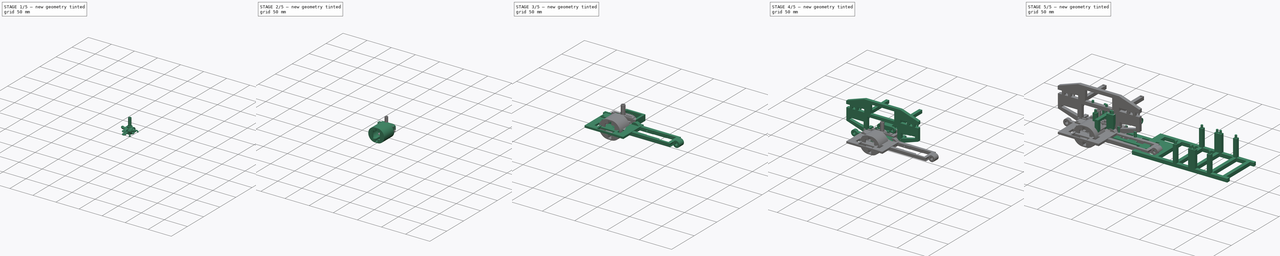
[diagram: build sequence overview — one tinted view per stage of 5, left to right]
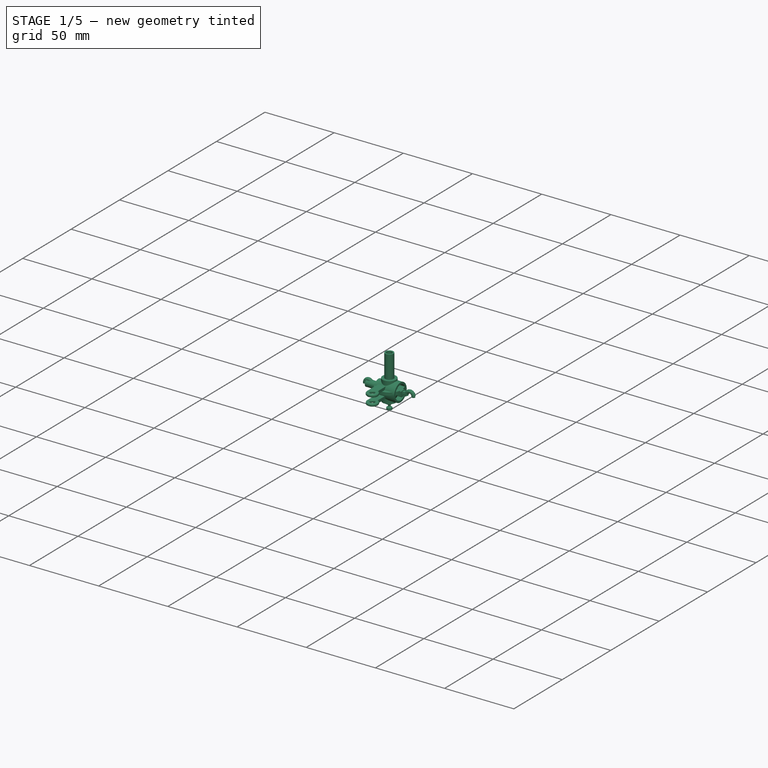
[diagram: stage 1 of 5 — iso view after this stage's code; geometry added in this stage tinted green]
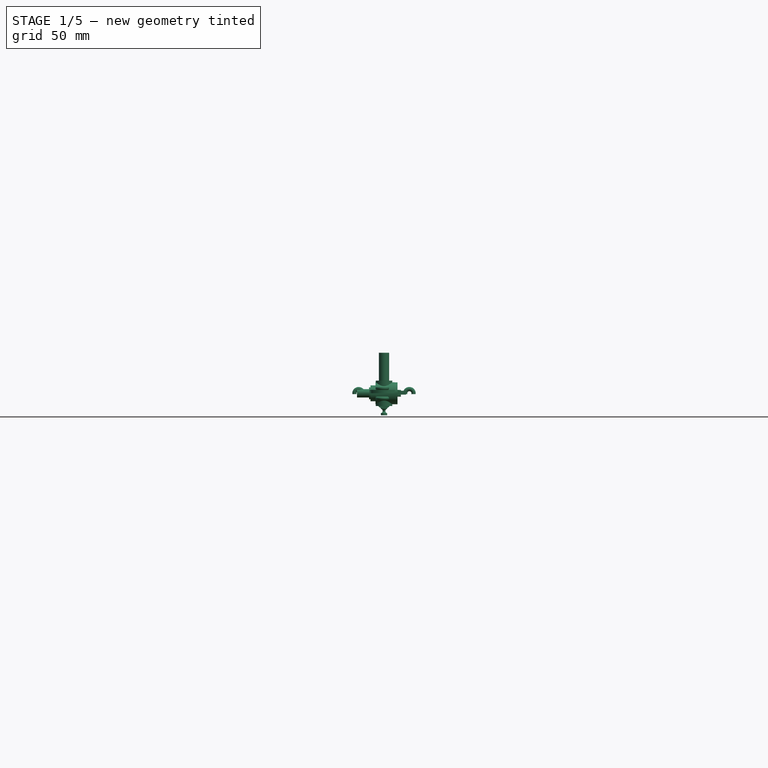
[diagram: stage 1 of 5 — front view after this stage's code; geometry added in this stage tinted green]
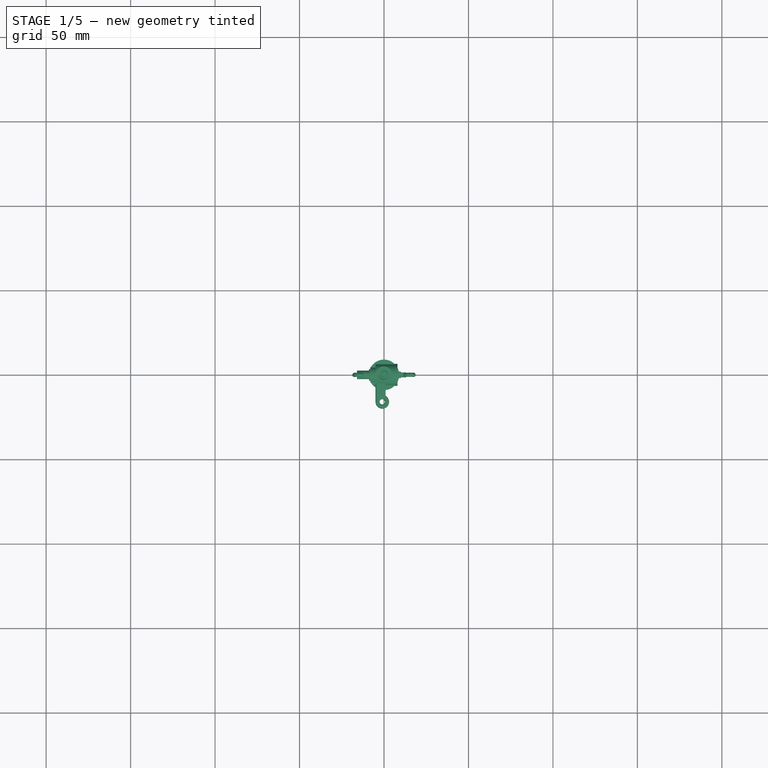
[diagram: stage 1 of 5 — top view after this stage's code; geometry added in this stage tinted green]
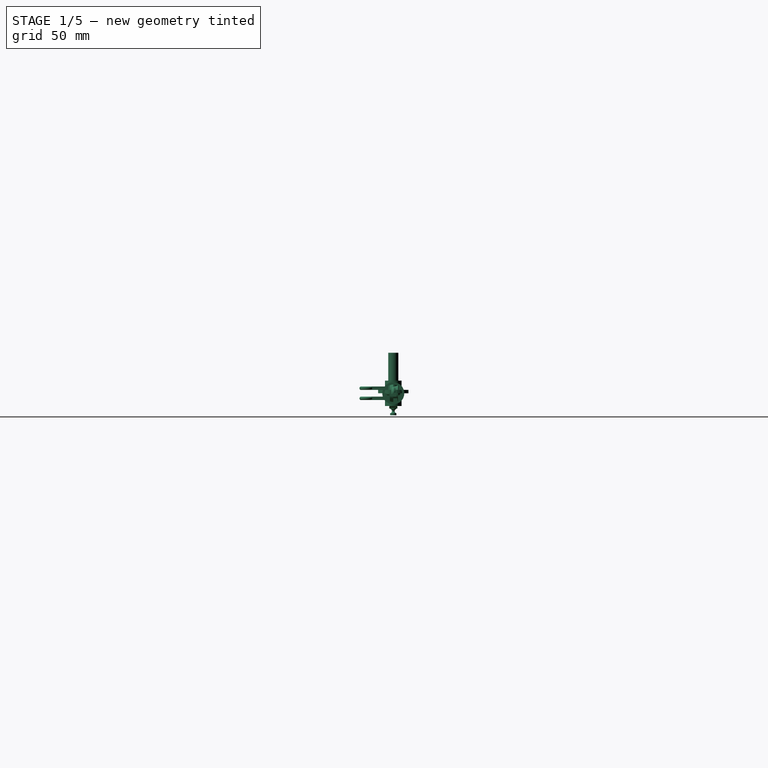
[diagram: stage 1 of 5 — right view after this stage's code; geometry added in this stage tinted green]
FCSTD DOCUMENT  (FreeCAD 0.19R24267 +99 (Git))
Label: RC_Body_Assy
License: All rights reserved
LicenseURL: http://en.wikipedia.org/wiki/All_rights_reserved
objects: Sketcher::SketchObject×391, PartDesign::Pad×195, PartDesign::Pocket×168, PartDesign::Body×62, PartDesign::Fillet×10, PartDesign::Revolution×10, Part::FeaturePython×9, PartDesign::FeatureBase×9, PartDesign::Chamfer×8, PartDesign::Groove×4
note: 1261 computed .brp shape members not serialized (recipe doc carries the construction recipe); baked Part::Feature solids carry a one-line shape summary decoded from their .brp

FEATURE [PartDesign::Body] Body001  label="Rack"
  BaseFeature = -> involuterack
  Group = -> [BaseFeature,Sketch082,Pocket020,Sketch083,Pocket021,Sketch084,Pocket019]
  Origin = -> Origin001
  Placement = pos=(46.8,-15.5,14) rot=(0,1,0;4.71239rad)
  Tip = -> Pocket019
FEATURE [Sketcher::SketchObject] Sketch085
  FullyConstrained = true
  MapMode = 5
  Support = -> [XY_Plane003]
  sketch-geometry (1):
    g0: Circle CenterX=0 CenterY=0 CenterZ=0 NormalX=0 NormalY=0 NormalZ=1 AngleXU=0 Radius=4.9
  constraints (2):
    c: Coincident(g0,g-1)
    c: Radius(g0) = 4.9
FEATURE [Sketcher::SketchObject] Sketch086
  FullyConstrained = true
  MapMode = 5
  Placement = pos=(0,0,0) rot=(0.57735,0.57735,0.57735;2.0944rad)
  Support = -> [YZ_Plane003]
  sketch-geometry (1):
    g0: Circle CenterX=2.1 CenterY=10.5 CenterZ=0 NormalX=0 NormalY=0 NormalZ=1 AngleXU=0 Radius=1.3
  constraints (3):
    c: Radius(g0) = 1.3
    c: DistanceX(g-1,g0) = 2.1
    c: DistanceY(g-1,g0) = 10.5
FEATURE [Sketcher::SketchObject] Sketch087
  AttachmentOffset = pos=(0,0,-5) rot=(0,0,1;0rad)
  FullyConstrained = true
  MapMode = 5
  Placement = pos=(-5,1.1e-15,-1.1e-15) rot=(0.57735,0.57735,0.57735;2.0944rad)
  Support = -> [YZ_Plane003]
  sketch-geometry (1):
    g0: Circle CenterX=0 CenterY=0 CenterZ=0 NormalX=0 NormalY=0 NormalZ=1 AngleXU=0 Radius=6.5
  constraints (2):
    c: Coincident(g0,g-1)
    c: Radius(g0) = 6.5
FEATURE [Sketcher::SketchObject] Sketch088
  FullyConstrained = true
  MapMode = 5
  Support = -> [XY_Plane003]
  sketch-geometry (1):
    g0: Circle CenterX=0 CenterY=0 CenterZ=0 NormalX=0 NormalY=0 NormalZ=1 AngleXU=0 Radius=1.85
  constraints (2):
    c: Coincident(g0,g-1)
    c: Radius(g0) = 1.85
FEATURE [Sketcher::SketchObject] Sketch089
  AttachmentOffset = pos=(0,0,-2) rot=(0,0,1;0rad)
  FullyConstrained = true
  MapMode = 5
  Placement = pos=(-2,4e-16,-4e-16) rot=(0.57735,0.57735,0.57735;2.0944rad)
  Support = -> [YZ_Plane003]
  sketch-geometry (1):
    g0: Circle CenterX=0 CenterY=0 CenterZ=0 NormalX=0 NormalY=0 NormalZ=1 AngleXU=0 Radius=5.15
  constraints (2):
    c: Coincident(g0,g-1)
    c: Radius(g0) = 5.15
FEATURE [Sketcher::SketchObject] Sketch090
  FullyConstrained = true
  MapMode = 5
  Placement = pos=(0,0,0) rot=(0.57735,0.57735,0.57735;2.0944rad)
  Support = -> [YZ_Plane003]
  sketch-geometry (1):
    g0: Circle CenterX=2.1 CenterY=-10.5 CenterZ=0 NormalX=0 NormalY=0 NormalZ=1 AngleXU=0 Radius=1.3
  constraints (3):
    c: Radius(g0) = 1.3
    c: DistanceY(g0,g-1) = 10.5
    c: DistanceX(g-1,g0) = 2.1
FEATURE [Sketcher::SketchObject] Sketch011
  FullyConstrained = true
  MapMode = 5
  Placement = pos=(0,0,0) rot=(0.57735,0.57735,0.57735;2.0944rad)
  Support = -> [YZ_Plane003]
  sketch-geometry (1):
    g0: Circle CenterX=0 CenterY=0 CenterZ=0 NormalX=0 NormalY=0 NormalZ=1 AngleXU=0 Radius=5.15
  constraints (2):
    c: Coincident(g0,g-1)
    c: Radius(g0) = 5.15
FEATURE [Sketcher::SketchObject] Sketch091
  FullyConstrained = true
  MapMode = 5
  Placement = pos=(0,0,0) rot=(0.57735,0.57735,0.57735;2.0944rad)
  Support = -> [YZ_Plane003]
  sketch-geometry (1):
    g0: Circle CenterX=0 CenterY=0 CenterZ=0 NormalX=0 NormalY=0 NormalZ=1 AngleXU=0 Radius=2.6
  constraints (2):
    c: Coincident(g0,g-1)
    c: Radius(g0) = 2.6
FEATURE [Sketcher::SketchObject] Sketch010  label="Knucle_Handle_Base"
  AttachmentOffset = pos=(0,0,-2) rot=(0,0,1;0rad)
  FullyConstrained = true
  MapMode = 5
  Placement = pos=(0,0,-2) rot=(0,0,1;0rad)
  Support = -> [XY_Plane003]
  sketch-geometry (5):
    g0: Circle CenterX=-1 CenterY=-16 CenterZ=0 NormalX=0 NormalY=0 NormalZ=1 AngleXU=0 Radius=1.6
    g1: ArcOfCircle CenterX=-1 CenterY=-16 CenterZ=0 NormalX=0 NormalY=0 NormalZ=1 AngleXU=0 Radius=4 StartAngle=3.14159 EndAngle=7.34862
    g2: LineSegment StartX=0.936492 StartY=-12.5 StartZ=0 EndX=0.936492 EndY=0 EndZ=0
    g3: LineSegment StartX=0.936492 StartY=0 StartZ=0 EndX=-5 EndY=0 EndZ=0
    g4: LineSegment StartX=-5 StartY=0 StartZ=0 EndX=-5 EndY=-16 EndZ=0
  constraints (15):
    c: Coincident(g1,g0)
    c: Coincident(g2,g3)
    c: Coincident(g3,g4)
    c: Horizontal(g3)
    c: Vertical(g2)
    c: Vertical(g4)
    c: PointOnObject(g2,g-1)
    c: DistanceY(g4,g4) = 16
    c: Radius(g1) = 4
    c: DistanceY(g0,g-1) = 16
    c: DistanceX(g0,g-1) = 1
    c: Radius(g0) = 1.6
    c: Coincident(g1,g4)
    c: Coincident(g1,g2)
    c: DistanceY(g2,g2) = 12.5
FEATURE [PartDesign::Pad] Pad059
  Direction = (1,1,1)
  Length = 26
  Length2 = 100
  Midplane = true
  Profile = -> Sketch088
  Refine = true
  Type = 0
FEATURE [PartDesign::Pad] Pad060
  BaseFeature = -> Pad059
  Direction = (1,1,1)
  Length = 15
  Length2 = 100
  Midplane = true
  Profile = -> Sketch085
  Refine = true
  Type = 0
FEATURE [PartDesign::Pad] Pad057
  BaseFeature = -> Pad060
  Direction = (1,1,1)
  Length = 13
  Length2 = 100
  Profile = -> Sketch087
  Refine = true
  Type = 0
FEATURE [Sketcher::SketchObject] Sketch013
  FullyConstrained = true
  MapMode = 5
  Placement = pos=(0,0,0) rot=(0.57735,0.57735,0.57735;2.0944rad)
  Support = -> [YZ_Plane003]
  sketch-geometry (1):
    g0: Circle CenterX=0 CenterY=0 CenterZ=0 NormalX=0 NormalY=0 NormalZ=1 AngleXU=0 Radius=2.6
  constraints (2):
    c: Coincident(g0,g-1)
    c: Radius(g0) = 2.6
FEATURE [Sketcher::SketchObject] Sketch093
  FullyConstrained = true
  MapMode = 5
  Placement = pos=(0,0,0) rot=(0.57735,0.57735,0.57735;2.0944rad)
  Support = -> [YZ_Plane003]
  sketch-geometry (1):
    g0: Circle CenterX=0 CenterY=0 CenterZ=0 NormalX=0 NormalY=0 NormalZ=1 AngleXU=0 Radius=5.15
  constraints (2):
    c: Coincident(g0,g-1)
    c: Radius(g0) = 5.15
FEATURE [PartDesign::Groove] Groove
  Angle = 360
  Axis = (-2e-16,3e-16,1)
  Base = (0,0,0)
  BaseFeature = -> Pad057
  Profile = -> Sketch086
  ReferenceAxis = -> Sketch086 [V_Axis]
  Refine = true
FEATURE [PartDesign::Groove] Groove001
  Angle = 360
  Axis = (-2e-16,3e-16,1)
  Base = (0,0,0)
  BaseFeature = -> Groove
  Profile = -> Sketch090
  ReferenceAxis = -> Sketch090 [V_Axis]
  Refine = true
FEATURE [PartDesign::Pocket] Pocket022  label="Pocket024"
  BaseFeature = -> Groove001
  Length = 29
  Length2 = 100
  Profile = -> Sketch089
  Refine = true
  Reversed = true
  Type = 0
FEATURE [PartDesign::Pocket] Pocket024  label="Pocket026"
  BaseFeature = -> Pocket022
  Length = 10
  Length2 = 100
  Profile = -> Sketch091
  Refine = true
  Type = 0
FEATURE [PartDesign::Pad] Pad058
  BaseFeature = -> Pocket024
  Direction = (1,1,1)
  Length = 2
  Length2 = 100
  Profile = -> Sketch010
  Refine = true
  Reversed = true
  Type = 0
FEATURE [PartDesign::Pocket] Pocket026  label="Pocket028"
  BaseFeature = -> Pad058
  Length = 200
  Length2 = 100
  Profile = -> Sketch011
  Refine = true
  Reversed = true
  Type = 0
FEATURE [PartDesign::Pocket] Pocket023  label="Pocket025"
  BaseFeature = -> Pocket026
  Length = 100
  Length2 = 100
  Profile = -> Sketch013
  Refine = true
  Type = 0
FEATURE [PartDesign::Pocket] Pocket025  label="Pocket027"
  BaseFeature = -> Pocket023
  Length = 3
  Length2 = 100
  Profile = -> Sketch093
  Refine = true
  Type = 0
FEATURE [Sketcher::SketchObject] Sketch096  label="Knucle_Base"
  AttachmentOffset = pos=(0,0,4) rot=(0,0,1;0rad)
  FullyConstrained = true
  MapMode = 5
  Placement = pos=(0,0,4) rot=(0,0,1;0rad)
  Support = -> [XY_Plane004]
  sketch-geometry (5):
    g0: Circle CenterX=-1 CenterY=-16 CenterZ=0 NormalX=0 NormalY=0 NormalZ=1 AngleXU=0 Radius=1.6
    g1: ArcOfCircle CenterX=-1 CenterY=-16 CenterZ=0 NormalX=0 NormalY=0 NormalZ=1 AngleXU=0 Radius=4 StartAngle=3.14159 EndAngle=7.34862
    g2: LineSegment StartX=0.936492 StartY=-12.5 StartZ=0 EndX=0.936492 EndY=0 EndZ=0
    g3: LineSegment StartX=0.936492 StartY=0 StartZ=0 EndX=-5 EndY=0 EndZ=0
    g4: LineSegment StartX=-5 StartY=0 StartZ=0 EndX=-5 EndY=-16 EndZ=0
  constraints (15):
    c: Coincident(g1,g0)
    c: DistanceX(g0,g-1) = 1
    c: DistanceY(g0,g-1) = 16
    c: Coincident(g2,g3)
    c: Coincident(g3,g4)
    c: Horizontal(g3)
    c: Vertical(g2)
    c: Vertical(g4)
    c: PointOnObject(g2,g-1)
    c: DistanceY(g4,g4) = 16
    c: Radius(g0) = 1.6
    c: Coincident(g1,g4)
    c: Coincident(g1,g2)
    c: DistanceY(g2,g2) = 12.5
    c: Radius(g1) = 4
FEATURE [Sketcher::SketchObject] Sketch097
  FullyConstrained = true
  MapMode = 5
  Placement = pos=(0,0,0) rot=(0.57735,0.57735,0.57735;2.0944rad)
  Support = -> [YZ_Plane004]
  sketch-geometry (1):
    g0: Circle CenterX=0 CenterY=0 CenterZ=0 NormalX=0 NormalY=0 NormalZ=1 AngleXU=0 Radius=5.15
  constraints (2):
    c: Coincident(g0,g-1)
    c: Radius(g0) = 5.15
FEATURE [Sketcher::SketchObject] Sketch098
  FullyConstrained = true
  MapMode = 5
  Placement = pos=(0,0,0) rot=(0.57735,0.57735,0.57735;2.0944rad)
  Support = -> [YZ_Plane004]
  sketch-geometry (1):
    g0: Circle CenterX=0 CenterY=0 CenterZ=0 NormalX=0 NormalY=0 NormalZ=1 AngleXU=0 Radius=2.6
  constraints (2):
    c: Coincident(g0,g-1)
    c: Radius(g0) = 2.6
FEATURE [Sketcher::SketchObject] Sketch099
  FullyConstrained = true
  MapMode = 5
  Placement = pos=(0,0,0) rot=(0.57735,0.57735,0.57735;2.0944rad)
  Support = -> [YZ_Plane004]
  sketch-geometry (1):
    g0: Circle CenterX=0 CenterY=0 CenterZ=0 NormalX=0 NormalY=0 NormalZ=1 AngleXU=0 Radius=5.15
  constraints (2):
    c: Coincident(g0,g-1)
    c: Radius(g0) = 5.15
FEATURE [Sketcher::SketchObject] Sketch100
  FullyConstrained = true
  MapMode = 5
  Placement = pos=(0,0,0) rot=(0.57735,0.57735,0.57735;2.0944rad)
  Support = -> [YZ_Plane004]
  sketch-geometry (1):
    g0: Circle CenterX=2.1 CenterY=10.5 CenterZ=0 NormalX=0 NormalY=0 NormalZ=1 AngleXU=0 Radius=1.3
  constraints (3):
    c: Radius(g0) = 1.3
    c: DistanceX(g-1,g0) = 2.1
    c: DistanceY(g-1,g0) = 10.5
FEATURE [Sketcher::SketchObject] Sketch101
  AttachmentOffset = pos=(0,0,-5) rot=(0,0,1;0rad)
  FullyConstrained = true
  MapMode = 5
  Placement = pos=(-5,1.1e-15,-1.1e-15) rot=(0.57735,0.57735,0.57735;2.0944rad)
  Support = -> [YZ_Plane004]
  sketch-geometry (1):
    g0: Circle CenterX=0 CenterY=0 CenterZ=0 NormalX=0 NormalY=0 NormalZ=1 AngleXU=0 Radius=6.5
  constraints (2):
    c: Coincident(g0,g-1)
    c: Radius(g0) = 6.5
FEATURE [Sketcher::SketchObject] Sketch102
  FullyConstrained = true
  MapMode = 5
  Support = -> [XY_Plane004]
  sketch-geometry (1):
    g0: Circle CenterX=0 CenterY=0 CenterZ=0 NormalX=0 NormalY=0 NormalZ=1 AngleXU=0 Radius=4.9
  constraints (2):
    c: Coincident(g0,g-1)
    c: Radius(g0) = 4.9
FEATURE [Sketcher::SketchObject] Sketch103
  AttachmentOffset = pos=(0,0,-2) rot=(0,0,1;0rad)
  FullyConstrained = true
  MapMode = 5
  Placement = pos=(-2,4e-16,-4e-16) rot=(0.57735,0.57735,0.57735;2.0944rad)
  Support = -> [YZ_Plane004]
  sketch-geometry (1):
    g0: Circle CenterX=0 CenterY=0 CenterZ=0 NormalX=0 NormalY=0 NormalZ=1 AngleXU=0 Radius=5.15
  constraints (2):
    c: Coincident(g0,g-1)
    c: Radius(g0) = 5.15
FEATURE [Sketcher::SketchObject] Sketch104
  FullyConstrained = true
  MapMode = 5
  Placement = pos=(0,0,0) rot=(0.57735,0.57735,0.57735;2.0944rad)
  Support = -> [YZ_Plane004]
  sketch-geometry (1):
    g0: Circle CenterX=2.1 CenterY=-10.5 CenterZ=0 NormalX=0 NormalY=0 NormalZ=1 AngleXU=0 Radius=1.3
  constraints (3):
    c: Radius(g0) = 1.3
    c: DistanceY(g0,g-1) = 10.5
    c: DistanceX(g-1,g0) = 2.1
FEATURE [Sketcher::SketchObject] Sketch105
  FullyConstrained = true
  MapMode = 5
  Support = -> [XY_Plane004]
  sketch-geometry (1):
    g0: Circle CenterX=0 CenterY=0 CenterZ=0 NormalX=0 NormalY=0 NormalZ=1 AngleXU=0 Radius=1.85
  constraints (2):
    c: Coincident(g0,g-1)
    c: Radius(g0) = 1.85
FEATURE [PartDesign::Pad] Pad061
  Direction = (1,1,1)
  Length = 26
  Length2 = 100
  Midplane = true
  Profile = -> Sketch105
  Refine = true
  Type = 0
FEATURE [PartDesign::Pad] Pad062
  BaseFeature = -> Pad061
  Direction = (1,1,1)
  Length = 15
  Length2 = 100
  Midplane = true
  Profile = -> Sketch102
  Refine = true
  Type = 0
FEATURE [PartDesign::Pad] Pad063
  BaseFeature = -> Pad062
  Direction = (1,1,1)
  Length = 13
  Length2 = 100
  Profile = -> Sketch101
  Refine = true
  Type = 0
FEATURE [PartDesign::Groove] Groove003
  Angle = 360
  Axis = (-2e-16,3e-16,1)
  Base = (0,0,0)
  BaseFeature = -> Pad063
  Profile = -> Sketch100
  ReferenceAxis = -> Sketch100 [V_Axis]
  Refine = true
FEATURE [PartDesign::Groove] Groove002
  Angle = 360
  Axis = (-2e-16,3e-16,1)
  Base = (0,0,0)
  BaseFeature = -> Groove003
  Profile = -> Sketch104
  ReferenceAxis = -> Sketch104 [V_Axis]
  Refine = true
FEATURE [Sketcher::SketchObject] Sketch106
  FullyConstrained = true
  MapMode = 5
  Placement = pos=(0,0,0) rot=(0.57735,0.57735,0.57735;2.0944rad)
  Support = -> [YZ_Plane004]
  sketch-geometry (1):
    g0: Circle CenterX=0 CenterY=0 CenterZ=0 NormalX=0 NormalY=0 NormalZ=1 AngleXU=0 Radius=2.6
  constraints (2):
    c: Coincident(g0,g-1)
    c: Radius(g0) = 2.6
FEATURE [PartDesign::Pocket] Pocket031  label="Pocket033"
  BaseFeature = -> Groove002
  Length = 29
  Length2 = 100
  Profile = -> Sketch103
  Refine = true
  Reversed = true
  Type = 0
FEATURE [PartDesign::Pocket] Pocket030  label="Pocket032"
  BaseFeature = -> Pocket031
  Length = 10
  Length2 = 100
  Profile = -> Sketch106
  Refine = true
  Type = 0
FEATURE [PartDesign::Pad] Pad064
  BaseFeature = -> Pocket030
  Direction = (1,1,1)
  Length = 2
  Length2 = 100
  Profile = -> Sketch096
  Refine = true
  Reversed = true
  Type = 0
FEATURE [PartDesign::Pocket] Pocket029  label="Pocket031"
  BaseFeature = -> Pad064
  Length = 200
  Length2 = 100
  Profile = -> Sketch097
  Refine = true
  Reversed = true
  Type = 0
FEATURE [PartDesign::Pocket] Pocket028  label="Pocket030"
  BaseFeature = -> Pocket029
  Length = 100
  Length2 = 100
  Profile = -> Sketch098
  Refine = true
  Type = 0
FEATURE [PartDesign::Pocket] Pocket027  label="Pocket029"
  BaseFeature = -> Pocket028
  Length = 3
  Length2 = 100
  Profile = -> Sketch099
  Refine = true
  Type = 0
FEATURE [Sketcher::SketchObject] Sketch393  label="Hook005"
  FullyConstrained = true
  MapMode = 5
  Placement = pos=(0,0,0) rot=(1,0,0;1.5708rad)
  Support = -> [XZ_Plane046]
  sketch-geometry (5):
    g0: LineSegment StartX=-4 StartY=0 StartZ=0 EndX=4 EndY=0 EndZ=0
    g1: LineSegment StartX=4 StartY=0 StartZ=0 EndX=4 EndY=-9 EndZ=0
    g2: LineSegment StartX=4 StartY=-9 StartZ=0 EndX=-4 EndY=-9 EndZ=0
    g3: LineSegment StartX=-4 StartY=-9 StartZ=0 EndX=-4 EndY=0 EndZ=0
    g4: Circle CenterX=0 CenterY=-5 CenterZ=0 NormalX=0 NormalY=0 NormalZ=1 AngleXU=0 Radius=2.2
  constraints (15):
    c: Coincident(g0,g1)
    c: Coincident(g1,g2)
    c: Coincident(g2,g3)
    c: Coincident(g3,g0)
    c: Horizontal(g0)
    c: Horizontal(g2)
    c: Vertical(g1)
    c: Vertical(g3)
    c: DistanceY(g-1,g0) = 0
    c: DistanceX(g0,g-1) = 4
    c: DistanceX(g0,g0) = 8
    c: DistanceY(g1,g-1) = 9
    c: PointOnObject(g4,g-2)
    c: Radius(g4) = 2.2
    c: DistanceY(g4) = -5
FEATURE [Sketcher::SketchObject] Sketch394  label="Bottom001"
  FullyConstrained = true
  MapMode = 5
  Support = -> [XY_Plane046]
  sketch-geometry (1):
    g0: Circle CenterX=0 CenterY=0 CenterZ=0 NormalX=0 NormalY=0 NormalZ=1 AngleXU=0 Radius=9
  constraints (2):
    c: Coincident(g0,g-1)
    c: Radius(g0) = 9
FEATURE [Sketcher::SketchObject] Sketch395  label="InnerRod001"
  FullyConstrained = true
  MapMode = 5
  Support = -> [XY_Plane046]
  sketch-geometry (1):
    g0: Circle CenterX=0 CenterY=0 CenterZ=0 NormalX=0 NormalY=0 NormalZ=1 AngleXU=0 Radius=1.6
  constraints (2):
    c: Coincident(g0,g-1)
    c: Radius(g0) = 1.6
FEATURE [PartDesign::Pad] Pad186
  Direction = (1,1,1)
  Length = 2
  Length2 = 100
  Profile = -> Sketch394
  Refine = true
  Type = 0
FEATURE [PartDesign::Body] Body046  label="Front_Right_Sus_Lower"
  Group = -> [Sketch394,Sketch395,Sketch393,Pad186,Pad188,Pad187,Fillet002]
  Origin = -> Origin046
  Placement = pos=(22,29.6452,13.355) rot=(-0.250563,-0.250563,0.935113;4.64535rad)
  Tip = -> Fillet002
FEATURE [Sketcher::SketchObject] Sketch402  label="OuterCase001"
  FullyConstrained = true
  MapMode = 5
  Support = -> [XY_Plane048]
  sketch-geometry (2):
    g0: Circle CenterX=0 CenterY=0 CenterZ=0 NormalX=0 NormalY=0 NormalZ=1 AngleXU=0 Radius=3
    g1: Circle CenterX=0 CenterY=0 CenterZ=0 NormalX=0 NormalY=0 NormalZ=1 AngleXU=0 Radius=2
  constraints (4):
    c: Coincident(g0,g-1)
    c: Radius(g0) = 3
    c: Coincident(g1,g0)
    c: Radius(g1) = 2
FEATURE [Sketcher::SketchObject] Sketch403  label="Bottom003"
  FullyConstrained = true
  MapMode = 5
  Support = -> [XY_Plane048]
  sketch-geometry (1):
    g0: Circle CenterX=0 CenterY=0 CenterZ=0 NormalX=0 NormalY=0 NormalZ=1 AngleXU=0 Radius=9
  constraints (2):
    c: Coincident(g0,g-1)
    c: Radius(g0) = 9
FEATURE [Sketcher::SketchObject] Sketch404  label="Hook007"
  FullyConstrained = true
  MapMode = 5
  Placement = pos=(0,0,0) rot=(1,0,0;1.5708rad)
  Support = -> [XZ_Plane048]
  sketch-geometry (5):
    g0: LineSegment StartX=-4 StartY=0 StartZ=0 EndX=4 EndY=0 EndZ=0
    g1: LineSegment StartX=4 StartY=0 StartZ=0 EndX=4 EndY=-9 EndZ=0
    g2: LineSegment StartX=4 StartY=-9 StartZ=0 EndX=-4 EndY=-9 EndZ=0
    g3: LineSegment StartX=-4 StartY=-9 StartZ=0 EndX=-4 EndY=0 EndZ=0
    g4: Circle CenterX=0 CenterY=-5 CenterZ=0 NormalX=0 NormalY=0 NormalZ=1 AngleXU=0 Radius=2.2
  constraints (15):
    c: Coincident(g0,g1)
    c: Coincident(g1,g2)
    c: Coincident(g2,g3)
    c: Coincident(g3,g0)
    c: Horizontal(g0)
    c: Horizontal(g2)
    c: Vertical(g1)
    c: Vertical(g3)
    c: DistanceY(g-1,g0) = 0
    c: DistanceX(g0,g-1) = 4
    c: DistanceX(g0,g0) = 8
    c: DistanceY(g1,g-1) = 9
    c: PointOnObject(g4,g-2)
    c: Radius(g4) = 2.2
    c: DistanceY(g4) = -5
FEATURE [PartDesign::Pad] Pad193
  Direction = (1,1,1)
  Length = 2
  Length2 = 100
  Profile = -> Sketch403
  Refine = true
  Type = 0
FEATURE [PartDesign::Pad] Pad192
  BaseFeature = -> Pad193
  Direction = (1,1,1)
  Length = 4.8
  Length2 = 100
  Midplane = true
  Profile = -> Sketch404
  Refine = true
  Type = 0
FEATURE [PartDesign::Pad] Pad194
  BaseFeature = -> Pad192
  Direction = (1,1,1)
  Length = 24
  Length2 = 100
  Profile = -> Sketch402
  Refine = true
  Type = 0
FEATURE [PartDesign::Fillet] Fillet003
  Base = -> Pad194 [Edge14,Edge20]
  BaseFeature = -> Pad194
  Radius = 3.5
  SupportTransform = false
FEATURE [PartDesign::Body] Body048  label="Front_Right_Sus_Upper"
  Group = -> [Sketch403,Sketch402,Sketch404,Pad193,Pad192,Pad194,Fillet003]
  Origin = -> Origin048
  Placement = pos=(22.2,12.2345,44.17) rot=(-0.698575,-0.698575,-0.15487;2.83429rad)
  Tip = -> Fillet003
FEATURE [Sketcher::SketchObject] Sketch405  label="Rod"
  FullyConstrained = true
  MapMode = 5
  Support = -> [XY_Plane049]
  sketch-geometry (4):
    g0: LineSegment StartX=-12.5 StartY=1.1 StartZ=0 EndX=12.5 EndY=1.1 EndZ=0
    g1: LineSegment StartX=12.5 StartY=1.1 StartZ=0 EndX=12.5 EndY=-1.1 EndZ=0
    g2: LineSegment StartX=12.5 StartY=-1.1 StartZ=0 EndX=-12.5 EndY=-1.1 EndZ=0
    g3: LineSegment StartX=-12.5 StartY=-1.1 StartZ=0 EndX=-12.5 EndY=1.1 EndZ=0
  constraints (12):
    c: Coincident(g0,g1)
    c: Coincident(g1,g2)
    c: Coincident(g2,g3)
    c: Coincident(g3,g0)
    c: Horizontal(g0)
    c: Horizontal(g2)
    c: Vertical(g1)
    c: Vertical(g3)
    c: DistanceX(g-1,g0) = 12.5
    c: DistanceX(g0,g0) = 25
    c: DistanceY(g1,g0) = 2.2
    c: DistanceY(g1,g-1) = 1.1
FEATURE [Sketcher::SketchObject] Sketch406  label="Pocket167"
  FullyConstrained = true
  MapMode = 5
  Placement = pos=(0,0,0) rot=(0.57735,0.57735,0.57735;2.0944rad)
  Support = -> [YZ_Plane049]
  sketch-geometry (6):
    g0: LineSegment StartX=-3 StartY=-0.5 StartZ=0 EndX=2.7e-15 EndY=-0.5 EndZ=0
    g1: LineSegment StartX=0 StartY=0.5 StartZ=0 EndX=3 EndY=0.5 EndZ=0
    g2: LineSegment StartX=3 StartY=0.5 StartZ=0 EndX=3 EndY=-6 EndZ=0
    g3: LineSegment StartX=3 StartY=-6 StartZ=0 EndX=-3 EndY=-6 EndZ=0
    g4: LineSegment StartX=-3 StartY=-6 StartZ=0 EndX=-3 EndY=-0.5 EndZ=0
    g5: LineSegment StartX=0 StartY=0.5 StartZ=0 EndX=2.7e-15 EndY=-0.5 EndZ=0
  constraints (18):
    c: Coincident(g2,g1)
    c: Coincident(g3,g2)
    c: Coincident(g4,g3)
    c: Coincident(g4,g0)
    c: Coincident(g5,g1)
    c: Coincident(g5,g0)
    c: DistanceX(g-1,g1) = 3
    c: DistanceX(g0,g-1) = 3
    c: DistanceY(g-1,g1) = 0.5
    c: DistanceY(g2,g-1) = 6
    c: DistanceX(g-1,g2) = 3
    c: DistanceX(g3,g-1) = 3
    c: DistanceY(g0,g-1) = 0.5
    c: DistanceY(g3,g-1) = 6
    c: DistanceX(g-1,g0) = 0
    c: DistanceY(g0,g-1) = 0.5
    c: DistanceY(g-1,g1) = 0.5
    c: DistanceX(g1,g-1) = 0
FEATURE [Sketcher::SketchObject] Sketch407
  AttachmentOffset = pos=(15,0,0) rot=(0,0,1;0rad)
  FullyConstrained = true
  MapMode = 5
  Placement = pos=(15,0,0) rot=(0,0,1;0rad)
  Support = -> [XY_Plane049]
  sketch-geometry (1):
    g0: Circle CenterX=2.5 CenterY=0 CenterZ=0 NormalX=0 NormalY=0 NormalZ=1 AngleXU=0 Radius=1.25
  constraints (3):
    c: PointOnObject(g0,g-1)
    c: Radius(g0) = 1.25
    c: DistanceX(g-1,g0) = 2.5
FEATURE [Sketcher::SketchObject] Sketch408
  AttachmentOffset = pos=(-15,0,0) rot=(0,0,1;0rad)
  FullyConstrained = true
  MapMode = 5
  Placement = pos=(-15,0,0) rot=(0,0,1;0rad)
  Support = -> [XY_Plane049]
  sketch-geometry (1):
    g0: Circle CenterX=-2.5 CenterY=0 CenterZ=0 NormalX=0 NormalY=0 NormalZ=1 AngleXU=0 Radius=1.25
  constraints (3):
    c: Radius(g0) = 1.25
    c: DistanceX(g0,g-1) = 2.5
    c: DistanceY(g0,g-1) = 0
FEATURE [PartDesign::Revolution] Revolution
  Angle = 360
  Axis = (0,1,0)
  Base = (-15,0,0)
  Profile = -> Sketch408
  ReferenceAxis = -> Sketch408 [V_Axis]
  Refine = true
FEATURE [PartDesign::Pad] Pad195
  BaseFeature = -> Revolution
  Direction = (1,1,1)
  Length = 3
  Length2 = 100
  Midplane = true
  Profile = -> Sketch405
  Refine = true
  Type = 0
FEATURE [PartDesign::Revolution] Revolution001
  Angle = 360
  Axis = (0,1,0)
  Base = (15,0,0)
  BaseFeature = -> Pad195
  Profile = -> Sketch407
  ReferenceAxis = -> Sketch407 [V_Axis]
  Refine = true
  Reversed = true
FEATURE [PartDesign::Pocket] Pocket162  label="Pocket168"
  BaseFeature = -> Revolution001
  Length = 50
  Length2 = 100
  Midplane = true
  Profile = -> Sketch406
  Refine = true
  Type = 0
FEATURE [PartDesign::Body] Body049  label="RightSteeringRod_1"
  Group = -> [Sketch405,Sketch408,Sketch407,Sketch406,Revolution,Pad195,Revolution001,Pocket162]
  Origin = -> Origin049
  Placement = pos=(37.465,40.4905,17.2) rot=(0,0,-1;1.5708rad)
  Tip = -> Pocket162
FEATURE [PartDesign::Fillet] Fillet005
  Base = -> Pocket025 [Edge30,Edge29,Edge33,Edge34]
  BaseFeature = -> Pocket025
  Radius = 0.9
  SupportTransform = false
FEATURE [PartDesign::Body] Body003  label="Left_Knucle"
  Group = -> [Sketch085,Sketch087,Sketch086,Sketch089,Sketch090,Sketch088,Pad059,Pad060,Pad057,Groove,Groove001,Pocket022,Sketch091,Pocket024,Sketch010,Pad058,Sketch011,Pocket026,Sketch013,Pocket023,Sketch093,Pocket025,Fillet005]
  Origin = -> Origin003
  Placement = pos=(22.8,-57.5,18.3) rot=(0,0,1;1.5708rad)
  Tip = -> Fillet005
FEATURE [PartDesign::Fillet] Fillet006
  Base = -> Pocket027 [Edge34,Edge33,Edge29,Edge30]
  BaseFeature = -> Pocket027
  Radius = 0.8
  SupportTransform = false
FEATURE [PartDesign::Body] Body004  label="Right_Knucle"
  Group = -> [Sketch102,Sketch101,Sketch100,Sketch103,Sketch104,Sketch105,Pad061,Pad062,Pad063,Groove003,Groove002,Pocket031,Sketch106,Pocket030,Sketch096,Pad064,Sketch097,Pocket029,Sketch098,Pocket028,Sketch099,Pocket027,Fillet006]
  Origin = -> Origin004
  Placement = pos=(21.7413,57.4784,20.1017) rot=(0.707107,-0.707107,0;3.14159rad)
  Tip = -> Fillet006
FEATURE [Sketcher::SketchObject] Sketch409  label="Rod001"
  FullyConstrained = true
  MapMode = 5
  Support = -> [XY_Plane050]
  sketch-geometry (4):
    g0: LineSegment StartX=-12.5 StartY=1.1 StartZ=0 EndX=12.5 EndY=1.1 EndZ=0
    g1: LineSegment StartX=12.5 StartY=1.1 StartZ=0 EndX=12.5 EndY=-1.1 EndZ=0
    g2: LineSegment StartX=12.5 StartY=-1.1 StartZ=0 EndX=-12.5 EndY=-1.1 EndZ=0
    g3: LineSegment StartX=-12.5 StartY=-1.1 StartZ=0 EndX=-12.5 EndY=1.1 EndZ=0
  constraints (12):
    c: Coincident(g0,g1)
    c: Coincident(g1,g2)
    c: Coincident(g2,g3)
    c: Coincident(g3,g0)
    c: Horizontal(g0)
    c: Horizontal(g2)
    c: Vertical(g1)
    c: Vertical(g3)
    c: DistanceX(g-1,g0) = 12.5
    c: DistanceX(g0,g0) = 25
    c: DistanceY(g1,g0) = 2.2
    c: DistanceY(g1,g-1) = 1.1
FEATURE [Sketcher::SketchObject] Sketch410  label="Pocket169"
  FullyConstrained = true
  MapMode = 5
  Placement = pos=(0,0,0) rot=(0.57735,0.57735,0.57735;2.0944rad)
  Support = -> [YZ_Plane050]
  sketch-geometry (6):
    g0: LineSegment StartX=-3 StartY=-0.5 StartZ=0 EndX=2.7e-15 EndY=-0.5 EndZ=0
    g1: LineSegment StartX=0 StartY=0.5 StartZ=0 EndX=3 EndY=0.5 EndZ=0
    g2: LineSegment StartX=3 StartY=0.5 StartZ=0 EndX=3 EndY=-6 EndZ=0
    g3: LineSegment StartX=3 StartY=-6 StartZ=0 EndX=-3 EndY=-6 EndZ=0
    g4: LineSegment StartX=-3 StartY=-6 StartZ=0 EndX=-3 EndY=-0.5 EndZ=0
    g5: LineSegment StartX=0 StartY=0.5 StartZ=0 EndX=2.7e-15 EndY=-0.5 EndZ=0
  constraints (18):
    c: Coincident(g2,g1)
    c: Coincident(g3,g2)
    c: Coincident(g4,g3)
    c: Coincident(g4,g0)
    c: Coincident(g5,g1)
    c: Coincident(g5,g0)
    c: DistanceX(g-1,g1) = 3
    c: DistanceX(g0,g-1) = 3
    c: DistanceY(g-1,g1) = 0.5
    c: DistanceY(g2,g-1) = 6
    c: DistanceX(g-1,g2) = 3
    c: DistanceX(g3,g-1) = 3
    c: DistanceY(g0,g-1) = 0.5
    c: DistanceY(g3,g-1) = 6
    c: DistanceX(g-1,g0) = 0
    c: DistanceY(g0,g-1) = 0.5
    c: DistanceY(g-1,g1) = 0.5
    c: DistanceX(g1,g-1) = 0
FEATURE [Sketcher::SketchObject] Sketch411
  AttachmentOffset = pos=(15,0,0) rot=(0,0,1;0rad)
  FullyConstrained = true
  MapMode = 5
  Placement = pos=(15,0,0) rot=(0,0,1;0rad)
  Support = -> [XY_Plane050]
  sketch-geometry (1):
    g0: Circle CenterX=2.5 CenterY=0 CenterZ=0 NormalX=0 NormalY=0 NormalZ=1 AngleXU=0 Radius=1.25
  constraints (3):
    c: PointOnObject(g0,g-1)
    c: Radius(g0) = 1.25
    c: DistanceX(g-1,g0) = 2.5
FEATURE [Sketcher::SketchObject] Sketch412
  AttachmentOffset = pos=(-15,0,0) rot=(0,0,1;0rad)
  FullyConstrained = true
  MapMode = 5
  Placement = pos=(-15,0,0) rot=(0,0,1;0rad)
  Support = -> [XY_Plane050]
  sketch-geometry (1):
    g0: Circle CenterX=-2.5 CenterY=0 CenterZ=0 NormalX=0 NormalY=0 NormalZ=1 AngleXU=0 Radius=1.25
  constraints (3):
    c: Radius(g0) = 1.25
    c: DistanceX(g0,g-1) = 2.5
    c: DistanceY(g0,g-1) = 0
FEATURE [PartDesign::Revolution] Revolution002
  Angle = 360
  Axis = (0,1,0)
  Base = (-15,0,0)
  Profile = -> Sketch412
  ReferenceAxis = -> Sketch412 [V_Axis]
  Refine = true
FEATURE [PartDesign::Pad] Pad196
  BaseFeature = -> Revolution002
  Direction = (1,1,1)
  Length = 3
  Length2 = 100
  Midplane = true
  Profile = -> Sketch409
  Refine = true
  Type = 0
FEATURE [PartDesign::Revolution] Revolution003
  Angle = 360
  Axis = (0,1,0)
  Base = (15,0,0)
  BaseFeature = -> Pad196
  Profile = -> Sketch411
  ReferenceAxis = -> Sketch411 [V_Axis]
  Refine = true
  Reversed = true
FEATURE [PartDesign::Pocket] Pocket163  label="Pocket170"
  BaseFeature = -> Revolution003
  Length = 50
  Length2 = 100
  Midplane = true
  Profile = -> Sketch410
  Refine = true
  Type = 0
FEATURE [PartDesign::Body] Body050  label="LeftSteeringRod_1"
  Group = -> [Sketch409,Sketch412,Sketch411,Sketch410,Revolution002,Pad196,Revolution003,Pocket163]
  Origin = -> Origin050
  Placement = pos=(39,-40.6,15.1) rot=(0,0,1;1.5708rad)
  Tip = -> Pocket163
FEATURE [Sketcher::SketchObject] Sketch413  label="Pocket171"
  FullyConstrained = true
  MapMode = 5
  Placement = pos=(0,0,0) rot=(0.57735,0.57735,0.57735;2.0944rad)
  Support = -> [YZ_Plane051]
  sketch-geometry (6):
    g0: LineSegment StartX=-3 StartY=-0.5 StartZ=0 EndX=2.7e-15 EndY=-0.5 EndZ=0
    g1: LineSegment StartX=0 StartY=0.5 StartZ=0 EndX=3 EndY=0.5 EndZ=0
    g2: LineSegment StartX=3 StartY=0.5 StartZ=0 EndX=3 EndY=-6 EndZ=0
    g3: LineSegment StartX=3 StartY=-6 StartZ=0 EndX=-3 EndY=-6 EndZ=0
    g4: LineSegment StartX=-3 StartY=-6 StartZ=0 EndX=-3 EndY=-0.5 EndZ=0
    g5: LineSegment StartX=0 StartY=0.5 StartZ=0 EndX=2.7e-15 EndY=-0.5 EndZ=0
  constraints (18):
    c: Coincident(g2,g1)
    c: Coincident(g3,g2)
    c: Coincident(g4,g3)
    c: Coincident(g4,g0)
    c: Coincident(g5,g1)
    c: Coincident(g5,g0)
    c: DistanceX(g-1,g1) = 3
    c: DistanceX(g0,g-1) = 3
    c: DistanceY(g-1,g1) = 0.5
    c: DistanceY(g2,g-1) = 6
    c: DistanceX(g-1,g2) = 3
    c: DistanceX(g3,g-1) = 3
    c: DistanceY(g0,g-1) = 0.5
    c: DistanceY(g3,g-1) = 6
    c: DistanceX(g-1,g0) = 0
    c: DistanceY(g0,g-1) = 0.5
    c: DistanceY(g-1,g1) = 0.5
    c: DistanceX(g1,g-1) = 0
FEATURE [Sketcher::SketchObject] Sketch414  label="Rod002"
  FullyConstrained = true
  MapMode = 5
  Support = -> [XY_Plane051]
  sketch-geometry (4):
    g0: LineSegment StartX=-12.5 StartY=1.1 StartZ=0 EndX=12.5 EndY=1.1 EndZ=0
    g1: LineSegment StartX=12.5 StartY=1.1 StartZ=0 EndX=12.5 EndY=-1.1 EndZ=0
    g2: LineSegment StartX=12.5 StartY=-1.1 StartZ=0 EndX=-12.5 EndY=-1.1 EndZ=0
    g3: LineSegment StartX=-12.5 StartY=-1.1 StartZ=0 EndX=-12.5 EndY=1.1 EndZ=0
  constraints (12):
    c: Coincident(g0,g1)
    c: Coincident(g1,g2)
    c: Coincident(g2,g3)
    c: Coincident(g3,g0)
    c: Horizontal(g0)
    c: Horizontal(g2)
    c: Vertical(g1)
    c: Vertical(g3)
    c: DistanceX(g-1,g0) = 12.5
    c: DistanceX(g0,g0) = 25
    c: DistanceY(g1,g0) = 2.2
    c: DistanceY(g1,g-1) = 1.1
FEATURE [Sketcher::SketchObject] Sketch415
  AttachmentOffset = pos=(15,0,0) rot=(0,0,1;0rad)
  FullyConstrained = true
  MapMode = 5
  Placement = pos=(15,0,0) rot=(0,0,1;0rad)
  Support = -> [XY_Plane051]
  sketch-geometry (1):
    g0: Circle CenterX=2.5 CenterY=0 CenterZ=0 NormalX=0 NormalY=0 NormalZ=1 AngleXU=0 Radius=1.25
  constraints (3):
    c: PointOnObject(g0,g-1)
    c: Radius(g0) = 1.25
    c: DistanceX(g-1,g0) = 2.5
FEATURE [Sketcher::SketchObject] Sketch416
  AttachmentOffset = pos=(-15,0,0) rot=(0,0,1;0rad)
  FullyConstrained = true
  MapMode = 5
  Placement = pos=(-15,0,0) rot=(0,0,1;0rad)
  Support = -> [XY_Plane051]
  sketch-geometry (1):
    g0: Circle CenterX=-2.5 CenterY=0 CenterZ=0 NormalX=0 NormalY=0 NormalZ=1 AngleXU=0 Radius=1.25
  constraints (3):
    c: Radius(g0) = 1.25
    c: DistanceX(g0,g-1) = 2.5
    c: DistanceY(g0,g-1) = 0
FEATURE [PartDesign::Revolution] Revolution004
  Angle = 360
  Axis = (0,1,0)
  Base = (-15,0,0)
  Profile = -> Sketch416
  ReferenceAxis = -> Sketch416 [V_Axis]
  Refine = true
FEATURE [PartDesign::Pad] Pad197
  BaseFeature = -> Revolution004
  Direction = (1,1,1)
  Length = 3
  Length2 = 100
  Midplane = true
  Profile = -> Sketch414
  Refine = true
  Type = 0
FEATURE [PartDesign::Revolution] Revolution005
  Angle = 360
  Axis = (0,1,0)
  Base = (15,0,0)
  BaseFeature = -> Pad197
  Profile = -> Sketch415
  ReferenceAxis = -> Sketch415 [V_Axis]
  Refine = true
  Reversed = true
FEATURE [PartDesign::Pocket] Pocket164  label="Pocket172"
  BaseFeature = -> Revolution005
  Length = 50
  Length2 = 100
  Midplane = true
  Profile = -> Sketch413
  Refine = true
  Type = 0
FEATURE [PartDesign::Body] Body051  label="RightSteeringRod_2"
  Group = -> [Sketch414,Sketch416,Sketch415,Sketch413,Revolution004,Pad197,Revolution005,Pocket164]
  Origin = -> Origin051
  Placement = pos=(37.465,40.4905,17) rot=(0.70677,-0.70677,0.030858;3.20329rad)
  Tip = -> Pocket164
FEATURE [Sketcher::SketchObject] Sketch417  label="Rod003"
  FullyConstrained = true
  MapMode = 5
  Support = -> [XY_Plane052]
  sketch-geometry (4):
    g0: LineSegment StartX=-12.5 StartY=1.1 StartZ=0 EndX=12.5 EndY=1.1 EndZ=0
    g1: LineSegment StartX=12.5 StartY=1.1 StartZ=0 EndX=12.5 EndY=-1.1 EndZ=0
    g2: LineSegment StartX=12.5 StartY=-1.1 StartZ=0 EndX=-12.5 EndY=-1.1 EndZ=0
    g3: LineSegment StartX=-12.5 StartY=-1.1 StartZ=0 EndX=-12.5 EndY=1.1 EndZ=0
  constraints (12):
    c: Coincident(g0,g1)
    c: Coincident(g1,g2)
    c: Coincident(g2,g3)
    c: Coincident(g3,g0)
    c: Horizontal(g0)
    c: Horizontal(g2)
    c: Vertical(g1)
    c: Vertical(g3)
    c: DistanceX(g-1,g0) = 12.5
    c: DistanceX(g0,g0) = 25
    c: DistanceY(g1,g0) = 2.2
    c: DistanceY(g1,g-1) = 1.1
FEATURE [Sketcher::SketchObject] Sketch418  label="Pocket173"
  FullyConstrained = true
  MapMode = 5
  Placement = pos=(0,0,0) rot=(0.57735,0.57735,0.57735;2.0944rad)
  Support = -> [YZ_Plane052]
  sketch-geometry (6):
    g0: LineSegment StartX=-3 StartY=-0.5 StartZ=0 EndX=2.7e-15 EndY=-0.5 EndZ=0
    g1: LineSegment StartX=0 StartY=0.5 StartZ=0 EndX=3 EndY=0.5 EndZ=0
    g2: LineSegment StartX=3 StartY=0.5 StartZ=0 EndX=3 EndY=-6 EndZ=0
    g3: LineSegment StartX=3 StartY=-6 StartZ=0 EndX=-3 EndY=-6 EndZ=0
    g4: LineSegment StartX=-3 StartY=-6 StartZ=0 EndX=-3 EndY=-0.5 EndZ=0
    g5: LineSegment StartX=0 StartY=0.5 StartZ=0 EndX=2.7e-15 EndY=-0.5 EndZ=0
  constraints (18):
    c: Coincident(g2,g1)
    c: Coincident(g3,g2)
    c: Coincident(g4,g3)
    c: Coincident(g4,g0)
    c: Coincident(g5,g1)
    c: Coincident(g5,g0)
    c: DistanceX(g-1,g1) = 3
    c: DistanceX(g0,g-1) = 3
    c: DistanceY(g-1,g1) = 0.5
    c: DistanceY(g2,g-1) = 6
    c: DistanceX(g-1,g2) = 3
    c: DistanceX(g3,g-1) = 3
    c: DistanceY(g0,g-1) = 0.5
    c: DistanceY(g3,g-1) = 6
    c: DistanceX(g-1,g0) = 0
    c: DistanceY(g0,g-1) = 0.5
    c: DistanceY(g-1,g1) = 0.5
    c: DistanceX(g1,g-1) = 0
FEATURE [Sketcher::SketchObject] Sketch419
  AttachmentOffset = pos=(15,0,0) rot=(0,0,1;0rad)
  FullyConstrained = true
  MapMode = 5
  Placement = pos=(15,0,0) rot=(0,0,1;0rad)
  Support = -> [XY_Plane052]
  sketch-geometry (1):
    g0: Circle CenterX=2.5 CenterY=0 CenterZ=0 NormalX=0 NormalY=0 NormalZ=1 AngleXU=0 Radius=1.25
  constraints (3):
    c: PointOnObject(g0,g-1)
    c: Radius(g0) = 1.25
    c: DistanceX(g-1,g0) = 2.5
FEATURE [Sketcher::SketchObject] Sketch420
  AttachmentOffset = pos=(-15,0,0) rot=(0,0,1;0rad)
  FullyConstrained = true
  MapMode = 5
  Placement = pos=(-15,0,0) rot=(0,0,1;0rad)
  Support = -> [XY_Plane052]
  sketch-geometry (1):
    g0: Circle CenterX=-2.5 CenterY=0 CenterZ=0 NormalX=0 NormalY=0 NormalZ=1 AngleXU=0 Radius=1.25
  constraints (3):
    c: Radius(g0) = 1.25
    c: DistanceX(g0,g-1) = 2.5
    c: DistanceY(g0,g-1) = 0
FEATURE [PartDesign::Revolution] Revolution006
  Angle = 360
  Axis = (0,1,0)
  Base = (-15,0,0)
  Profile = -> Sketch420
  ReferenceAxis = -> Sketch420 [V_Axis]
  Refine = true
FEATURE [PartDesign::Pad] Pad198
  BaseFeature = -> Revolution006
  Direction = (1,1,1)
  Length = 3
  Length2 = 100
  Midplane = true
  Profile = -> Sketch417
  Refine = true
  Type = 0
FEATURE [PartDesign::Revolution] Revolution007
  Angle = 360
  Axis = (0,1,0)
  Base = (15,0,0)
  BaseFeature = -> Pad198
  Profile = -> Sketch419
  ReferenceAxis = -> Sketch419 [V_Axis]
  Refine = true
  Reversed = true
FEATURE [PartDesign::Pocket] Pocket165  label="Pocket174"
  BaseFeature = -> Revolution007
  Length = 50
  Length2 = 100
  Midplane = true
  Profile = -> Sketch418
  Refine = true
  Type = 0
FEATURE [PartDesign::Body] Body052  label="LeftSteeringRod_2"
  Group = -> [Sketch417,Sketch420,Sketch419,Sketch418,Revolution006,Pad198,Revolution007,Pocket165]
  Origin = -> Origin052
  Placement = pos=(39,-40.6,15.1) rot=(0.70677,0.70677,0.030858;3.0799rad)
  Tip = -> Pocket165
FEATURE [Sketcher::SketchObject] Sketch421
  FullyConstrained = true
  MapMode = 5
  Support = -> [XY_Plane053]
  sketch-geometry (4):
    g0: LineSegment StartX=3 StartY=1.45 StartZ=0 EndX=13 EndY=1.45 EndZ=0
    g1: LineSegment StartX=13 StartY=1.45 StartZ=0 EndX=13 EndY=-1.45 EndZ=0
    g2: LineSegment StartX=13 StartY=-1.45 StartZ=0 EndX=3 EndY=-1.45 EndZ=0
    g3: LineSegment StartX=3 StartY=-1.45 StartZ=0 EndX=3 EndY=1.45 EndZ=0
  constraints (12):
    c: Coincident(g0,g1)
    c: Coincident(g1,g2)
    c: Coincident(g2,g3)
    c: Coincident(g3,g0)
    c: Horizontal(g0)
    c: Horizontal(g2)
    c: Vertical(g1)
    c: Vertical(g3)
    c: DistanceX(g0,g-1) = -3
    c: DistanceY(g-1,g0) = 1.45
    c: DistanceY(g2,g0) = 2.9
    c: DistanceX(g0,g0) = 10
FEATURE [Sketcher::SketchObject] Sketch422
  FullyConstrained = true
  MapMode = 5
  Placement = pos=(0,0,0) rot=(1,0,0;1.5708rad)
  Support = -> [XZ_Plane053]
  sketch-geometry (1):
    g0: Circle CenterX=-3 CenterY=0 CenterZ=0 NormalX=0 NormalY=0 NormalZ=1 AngleXU=0 Radius=1.25
  constraints (3):
    c: Radius(g0) = 1.25
    c: DistanceY(g-1,g0) = 0
    c: DistanceX(g0,g-1) = 3
FEATURE [PartDesign::Revolution] Revolution008
  Angle = 360
  Axis = (-3e-16,3e-16,1)
  Base = (0,0,0)
  Placement = pos=(0,0,0) rot=(1,0,0;1.5708rad)
  Profile = -> Sketch422
  ReferenceAxis = -> Z_Axis053
  Refine = true
FEATURE [PartDesign::Pad] Pad199
  BaseFeature = -> Revolution008
  Direction = (1,1,1)
  Length = 1.6
  Length2 = 100
  Midplane = true
  Placement = pos=(0,0,0) rot=(1,0,0;1.5708rad)
  Profile = -> Sketch421
  Refine = true
  Type = 0
FEATURE [PartDesign::Body] Body053  label="RackEnd_Right"
  Group = -> [Sketch421,Sketch422,Revolution008,Pad199]
  Origin = -> Origin053
  Placement = pos=(37.6977,22.6477,17.3) rot=(0,0,1;4.71239rad)
  Tip = -> Pad199
FEATURE [Sketcher::SketchObject] Sketch423
  FullyConstrained = true
  MapMode = 5
  Support = -> [XY_Plane054]
  sketch-geometry (4):
    g0: LineSegment StartX=3 StartY=1.45 StartZ=0 EndX=13 EndY=1.45 EndZ=0
    g1: LineSegment StartX=13 StartY=1.45 StartZ=0 EndX=13 EndY=-1.45 EndZ=0
    g2: LineSegment StartX=13 StartY=-1.45 StartZ=0 EndX=3 EndY=-1.45 EndZ=0
    g3: LineSegment StartX=3 StartY=-1.45 StartZ=0 EndX=3 EndY=1.45 EndZ=0
  constraints (12):
    c: Coincident(g0,g1)
    c: Coincident(g1,g2)
    c: Coincident(g2,g3)
    c: Coincident(g3,g0)
    c: Horizontal(g0)
    c: Horizontal(g2)
    c: Vertical(g1)
    c: Vertical(g3)
    c: DistanceX(g0,g-1) = -3
    c: DistanceY(g-1,g0) = 1.45
    c: DistanceY(g2,g0) = 2.9
    c: DistanceX(g0,g0) = 10
FEATURE [Sketcher::SketchObject] Sketch424
  FullyConstrained = true
  MapMode = 5
  Placement = pos=(0,0,0) rot=(1,0,0;1.5708rad)
  Support = -> [XZ_Plane054]
  sketch-geometry (1):
    g0: Circle CenterX=-3 CenterY=0 CenterZ=0 NormalX=0 NormalY=0 NormalZ=1 AngleXU=0 Radius=1.25
  constraints (3):
    c: Radius(g0) = 1.25
    c: DistanceY(g-1,g0) = 0
    c: DistanceX(g0,g-1) = 3
FEATURE [PartDesign::Revolution] Revolution009
  Angle = 360
  Axis = (-3e-16,3e-16,1)
  Base = (0,0,0)
  Placement = pos=(0,0,0) rot=(1,0,0;1.5708rad)
  Profile = -> Sketch424
  ReferenceAxis = -> Z_Axis054
  Refine = true
FEATURE [PartDesign::Pad] Pad200
  BaseFeature = -> Revolution009
  Direction = (1,1,1)
  Length = 1.6
  Length2 = 100
  Midplane = true
  Placement = pos=(0,0,0) rot=(1,0,0;1.5708rad)
  Profile = -> Sketch423
  Refine = true
  Type = 0
FEATURE [PartDesign::Body] Body054  label="RackEnd_Right001"
  Group = -> [Sketch423,Sketch424,Revolution009,Pad200]
  Origin = -> Origin054
  Placement = pos=(42.0977,-23.2523,4.1) rot=(0,0,1;1.5708rad)
  Tip = -> Pad200
FEATURE [Sketcher::SketchObject] Sketch425  label="Hook008"
  FullyConstrained = true
  MapMode = 5
  Placement = pos=(0,0,0) rot=(1,0,0;1.5708rad)
  Support = -> [XZ_Plane055]
  sketch-geometry (5):
    g0: LineSegment StartX=-4 StartY=0 StartZ=0 EndX=4 EndY=0 EndZ=0
    g1: LineSegment StartX=4 StartY=0 StartZ=0 EndX=4 EndY=-9 EndZ=0
    g2: LineSegment StartX=4 StartY=-9 StartZ=0 EndX=-4 EndY=-9 EndZ=0
    g3: LineSegment StartX=-4 StartY=-9 StartZ=0 EndX=-4 EndY=0 EndZ=0
    g4: Circle CenterX=0 CenterY=-5 CenterZ=0 NormalX=0 NormalY=0 NormalZ=1 AngleXU=0 Radius=2.2
  constraints (15):
    c: Coincident(g0,g1)
    c: Coincident(g1,g2)
    c: Coincident(g2,g3)
    c: Coincident(g3,g0)
    c: Horizontal(g0)
    c: Horizontal(g2)
    c: Vertical(g1)
    c: Vertical(g3)
    c: DistanceY(g-1,g0) = 0
    c: DistanceX(g0,g-1) = 4
    c: DistanceX(g0,g0) = 8
    c: DistanceY(g1,g-1) = 9
    c: PointOnObject(g4,g-2)
    c: Radius(g4) = 2.2
    c: DistanceY(g4) = -5
FEATURE [Sketcher::SketchObject] Sketch426  label="Bottom004"
  FullyConstrained = true
  MapMode = 5
  Support = -> [XY_Plane055]
  sketch-geometry (1):
    g0: Circle CenterX=0 CenterY=0 CenterZ=0 NormalX=0 NormalY=0 NormalZ=1 AngleXU=0 Radius=9
  constraints (2):
    c: Coincident(g0,g-1)
    c: Radius(g0) = 9
FEATURE [Sketcher::SketchObject] Sketch427  label="InnerRod002"
  FullyConstrained = true
  MapMode = 5
  Support = -> [XY_Plane055]
  sketch-geometry (1):
    g0: Circle CenterX=0 CenterY=0 CenterZ=0 NormalX=0 NormalY=0 NormalZ=1 AngleXU=0 Radius=1.6
  constraints (2):
    c: Coincident(g0,g-1)
    c: Radius(g0) = 1.6
FEATURE [PartDesign::Pad] Pad201
  Direction = (1,1,1)
  Length = 2
  Length2 = 100
  Profile = -> Sketch426
  Refine = true
  Type = 0
FEATURE [PartDesign::Pad] Pad203
  BaseFeature = -> Pad201
  Direction = (1,1,1)
  Length = 4.8
  Length2 = 100
  Midplane = true
  Profile = -> Sketch425
  Refine = true
  Type = 0
FEATURE [PartDesign::Pad] Pad202
  BaseFeature = -> Pad203
  Direction = (1,1,1)
  Length = 20
  Length2 = 100
  Profile = -> Sketch427
  Refine = true
  Type = 0
FEATURE [PartDesign::Fillet] Fillet007
  Base = -> Pad202 [Edge9,Edge15]
  BaseFeature = -> Pad202
  Radius = 3.5
  SupportTransform = false
FEATURE [PartDesign::Body] Body055  label="Rear_Right_Sus_Low"
  Group = -> [Sketch426,Sketch427,Sketch425,Pad201,Pad203,Pad202,Fillet007]
  Origin = -> Origin055
  Placement = pos=(210.003,48.3452,-1.12347) rot=(0.043619,0,-0.999048;3.14159rad)
  Tip = -> Fillet007
FEATURE [Sketcher::SketchObject] Sketch428  label="Bottom005"
  FullyConstrained = true
  MapMode = 5
  Support = -> [XY_Plane056]
  sketch-geometry (1):
    g0: Circle CenterX=0 CenterY=0 CenterZ=0 NormalX=0 NormalY=0 NormalZ=1 AngleXU=0 Radius=9
  constraints (2):
    c: Coincident(g0,g-1)
    c: Radius(g0) = 9
FEATURE [Sketcher::SketchObject] Sketch429  label="OuterCase002"
  FullyConstrained = true
  MapMode = 5
  Support = -> [XY_Plane056]
  sketch-geometry (2):
    g0: Circle CenterX=0 CenterY=0 CenterZ=0 NormalX=0 NormalY=0 NormalZ=1 AngleXU=0 Radius=3
    g1: Circle CenterX=0 CenterY=0 CenterZ=0 NormalX=0 NormalY=0 NormalZ=1 AngleXU=0 Radius=2
  constraints (4):
    c: Coincident(g0,g-1)
    c: Radius(g0) = 3
    c: Coincident(g1,g0)
    c: Radius(g1) = 2
FEATURE [Sketcher::SketchObject] Sketch430  label="Hook009"
  FullyConstrained = true
  MapMode = 5
  Placement = pos=(0,0,0) rot=(1,0,0;1.5708rad)
  Support = -> [XZ_Plane056]
  sketch-geometry (5):
    g0: LineSegment StartX=-4 StartY=0 StartZ=0 EndX=4 EndY=0 EndZ=0
    g1: LineSegment StartX=4 StartY=0 StartZ=0 EndX=4 EndY=-9 EndZ=0
    g2: LineSegment StartX=4 StartY=-9 StartZ=0 EndX=-4 EndY=-9 EndZ=0
    g3: LineSegment StartX=-4 StartY=-9 StartZ=0 EndX=-4 EndY=0 EndZ=0
    g4: Circle CenterX=0 CenterY=-5 CenterZ=0 NormalX=0 NormalY=0 NormalZ=1 AngleXU=0 Radius=2.2
  constraints (15):
    c: Coincident(g0,g1)
    c: Coincident(g1,g2)
    c: Coincident(g2,g3)
    c: Coincident(g3,g0)
    c: Horizontal(g0)
    c: Horizontal(g2)
    c: Vertical(g1)
    c: Vertical(g3)
    c: DistanceY(g-1,g0) = 0
    c: DistanceX(g0,g-1) = 4
    c: DistanceX(g0,g0) = 8
    c: DistanceY(g1,g-1) = 9
    c: PointOnObject(g4,g-2)
    c: Radius(g4) = 2.2
    c: DistanceY(g4) = -5
FEATURE [PartDesign::Pad] Pad204
  Direction = (1,1,1)
  Length = 2
  Length2 = 100
  Profile = -> Sketch428
  Refine = true
  Type = 0
FEATURE [PartDesign::Pad] Pad205
  BaseFeature = -> Pad204
  Direction = (1,1,1)
  Length = 4.8
  Length2 = 100
  Midplane = true
  Profile = -> Sketch430
  Refine = true
  Type = 0
FEATURE [PartDesign::Pad] Pad206
  BaseFeature = -> Pad205
  Direction = (1,1,1)
  Length = 24
  Length2 = 100
  Profile = -> Sketch429
  Refine = true
  Type = 0
FEATURE [PartDesign::Fillet] Fillet008
  Base = -> Pad206 [Edge14,Edge20]
  BaseFeature = -> Pad206
  Radius = 3.5
  SupportTransform = false
FEATURE [PartDesign::Body] Body056  label="Rear_Right_Sus_Upper"
  Group = -> [Sketch428,Sketch429,Sketch430,Pad204,Pad205,Pad206,Fillet008]
  Origin = -> Origin056
  Placement = pos=(204.8,47.2345,29.27) rot=(0,-1,0;3.22886rad)
  Tip = -> Fillet008
FEATURE [Sketcher::SketchObject] Sketch431  label="Hook010"
  FullyConstrained = true
  MapMode = 5
  Placement = pos=(0,0,0) rot=(1,0,0;1.5708rad)
  Support = -> [XZ_Plane057]
  sketch-geometry (5):
    g0: LineSegment StartX=-4 StartY=0 StartZ=0 EndX=4 EndY=0 EndZ=0
    g1: LineSegment StartX=4 StartY=0 StartZ=0 EndX=4 EndY=-9 EndZ=0
    g2: LineSegment StartX=4 StartY=-9 StartZ=0 EndX=-4 EndY=-9 EndZ=0
    g3: LineSegment StartX=-4 StartY=-9 StartZ=0 EndX=-4 EndY=0 EndZ=0
    g4: Circle CenterX=0 CenterY=-5 CenterZ=0 NormalX=0 NormalY=0 NormalZ=1 AngleXU=0 Radius=2.2
  constraints (15):
    c: Coincident(g0,g1)
    c: Coincident(g1,g2)
    c: Coincident(g2,g3)
    c: Coincident(g3,g0)
    c: Horizontal(g0)
    c: Horizontal(g2)
    c: Vertical(g1)
    c: Vertical(g3)
    c: DistanceY(g-1,g0) = 0
    c: DistanceX(g0,g-1) = 4
    c: DistanceX(g0,g0) = 8
    c: DistanceY(g1,g-1) = 9
    c: PointOnObject(g4,g-2)
    c: Radius(g4) = 2.2
    c: DistanceY(g4) = -5
FEATURE [Sketcher::SketchObject] Sketch432  label="Bottom006"
  FullyConstrained = true
  MapMode = 5
  Support = -> [XY_Plane057]
  sketch-geometry (1):
    g0: Circle CenterX=0 CenterY=0 CenterZ=0 NormalX=0 NormalY=0 NormalZ=1 AngleXU=0 Radius=9
  constraints (2):
    c: Coincident(g0,g-1)
    c: Radius(g0) = 9
FEATURE [PartDesign::Pad] Pad207
  Direction = (1,1,1)
  Length = 2
  Length2 = 100
  Profile = -> Sketch432
  Refine = true
  Type = 0
FEATURE [PartDesign::Pad] Pad209
  BaseFeature = -> Pad207
  Direction = (1,1,1)
  Length = 4.8
  Length2 = 100
  Midplane = true
  Profile = -> Sketch431
  Refine = true
  Type = 0
FEATURE [Sketcher::SketchObject] Sketch433  label="InnerRod003"
  FullyConstrained = true
  MapMode = 5
  Support = -> [XY_Plane057]
  sketch-geometry (1):
    g0: Circle CenterX=0 CenterY=0 CenterZ=0 NormalX=0 NormalY=0 NormalZ=1 AngleXU=0 Radius=1.6
  constraints (2):
    c: Coincident(g0,g-1)
    c: Radius(g0) = 1.6
FEATURE [PartDesign::Pad] Pad208
  BaseFeature = -> Pad209
  Direction = (1,1,1)
  Length = 20
  Length2 = 100
  Profile = -> Sketch433
  Refine = true
  Type = 0
FEATURE [PartDesign::Fillet] Fillet009
  Base = -> Pad208 [Edge9,Edge15]
  BaseFeature = -> Pad208
  Radius = 3.5
  SupportTransform = false
FEATURE [PartDesign::Body] Body057  label="Rear_Left_Sus_Low"
  Group = -> [Sketch432,Sketch433,Sketch431,Pad207,Pad209,Pad208,Fillet009]
  Origin = -> Origin057
  Placement = pos=(210.003,-47.1548,-1.12347) rot=(-0.043619,0,0.999048;3.14159rad)
  Tip = -> Fillet009
FEATURE [Sketcher::SketchObject] Sketch434  label="Bottom007"
  FullyConstrained = true
  MapMode = 5
  Support = -> [XY_Plane058]
  sketch-geometry (1):
    g0: Circle CenterX=0 CenterY=0 CenterZ=0 NormalX=0 NormalY=0 NormalZ=1 AngleXU=0 Radius=9
  constraints (2):
    c: Coincident(g0,g-1)
    c: Radius(g0) = 9
FEATURE [PartDesign::Pad] Pad210
  Direction = (1,1,1)
  Length = 2
  Length2 = 100
  Profile = -> Sketch434
  Refine = true
  Type = 0
FEATURE [Sketcher::SketchObject] Sketch435  label="OuterCase003"
  FullyConstrained = true
  MapMode = 5
  Support = -> [XY_Plane058]
  sketch-geometry (2):
    g0: Circle CenterX=0 CenterY=0 CenterZ=0 NormalX=0 NormalY=0 NormalZ=1 AngleXU=0 Radius=3
    g1: Circle CenterX=0 CenterY=0 CenterZ=0 NormalX=0 NormalY=0 NormalZ=1 AngleXU=0 Radius=2
  constraints (4):
    c: Coincident(g0,g-1)
    c: Radius(g0) = 3
    c: Coincident(g1,g0)
    c: Radius(g1) = 2
FEATURE [Sketcher::SketchObject] Sketch436  label="Hook011"
  FullyConstrained = true
  MapMode = 5
  Placement = pos=(0,0,0) rot=(1,0,0;1.5708rad)
  Support = -> [XZ_Plane058]
  sketch-geometry (5):
    g0: LineSegment StartX=-4 StartY=0 StartZ=0 EndX=4 EndY=0 EndZ=0
    g1: LineSegment StartX=4 StartY=0 StartZ=0 EndX=4 EndY=-9 EndZ=0
    g2: LineSegment StartX=4 StartY=-9 StartZ=0 EndX=-4 EndY=-9 EndZ=0
    g3: LineSegment StartX=-4 StartY=-9 StartZ=0 EndX=-4 EndY=0 EndZ=0
    g4: Circle CenterX=0 CenterY=-5 CenterZ=0 NormalX=0 NormalY=0 NormalZ=1 AngleXU=0 Radius=2.2
  constraints (15):
    c: Coincident(g0,g1)
    c: Coincident(g1,g2)
    c: Coincident(g2,g3)
    c: Coincident(g3,g0)
    c: Horizontal(g0)
    c: Horizontal(g2)
    c: Vertical(g1)
    c: Vertical(g3)
    c: DistanceY(g-1,g0) = 0
    c: DistanceX(g0,g-1) = 4
    c: DistanceX(g0,g0) = 8
    c: DistanceY(g1,g-1) = 9
    c: PointOnObject(g4,g-2)
    c: Radius(g4) = 2.2
    c: DistanceY(g4) = -5
FEATURE [PartDesign::Pad] Pad211
  BaseFeature = -> Pad210
  Direction = (1,1,1)
  Length = 4.8
  Length2 = 100
  Midplane = true
  Profile = -> Sketch436
  Refine = true
  Type = 0
FEATURE [PartDesign::Pad] Pad212
  BaseFeature = -> Pad211
  Direction = (1,1,1)
  Length = 24
  Length2 = 100
  Profile = -> Sketch435
  Refine = true
  Type = 0
FEATURE [PartDesign::Fillet] Fillet010
  Base = -> Pad212 [Edge14,Edge20]
  BaseFeature = -> Pad212
  Radius = 3.5
  SupportTransform = false
FEATURE [PartDesign::Body] Body058  label="Rear_Left_Sus_Upper"
  Group = -> [Sketch434,Sketch435,Sketch436,Pad210,Pad211,Pad212,Fillet010]
  Origin = -> Origin058
  Placement = pos=(205.088,-47.5655,25.9825) rot=(0,1,0;3.05433rad)
  Tip = -> Fillet010
FEATURE [Sketcher::SketchObject] Sketch437
  AttachmentOffset = pos=(0,0,-8) rot=(0,0,1;0rad)
  FullyConstrained = true
  MapMode = 5
  Placement = pos=(-8,1.8e-15,-1.8e-15) rot=(0.57735,0.57735,0.57735;2.0944rad)
  Support = -> [YZ_Plane059]
  sketch-geometry (1):
    g0: Circle CenterX=0 CenterY=0 CenterZ=0 NormalX=0 NormalY=0 NormalZ=1 AngleXU=0 Radius=4.7
  constraints (2):
    c: Coincident(g0,g-1)
    c: Radius(g0) = 4.7
FEATURE [Sketcher::SketchObject] Sketch438
  FullyConstrained = true
  MapMode = 5
  Placement = pos=(0,0,0) rot=(0.57735,0.57735,0.57735;2.0944rad)
  Support = -> [YZ_Plane059]
  sketch-geometry (1):
    g0: Circle CenterX=0 CenterY=0 CenterZ=0 NormalX=0 NormalY=0 NormalZ=1 AngleXU=0 Radius=2.5
  constraints (2):
    c: Coincident(g0,g-1)
    c: Radius(g0) = 2.5
FEATURE [Sketcher::SketchObject] Sketch439  label="MainRod"
  AttachmentOffset = pos=(0,0,-3.2) rot=(0,0,1;0rad)
  FullyConstrained = true
  MapMode = 5
  Placement = pos=(-3.2,7e-16,-7e-16) rot=(0.57735,0.57735,0.57735;2.0944rad)
  Support = -> [YZ_Plane059]
  sketch-geometry (1):
    g0: Circle CenterX=0 CenterY=0 CenterZ=0 NormalX=0 NormalY=0 NormalZ=1 AngleXU=0 Radius=3.5
  constraints (2):
    c: Coincident(g0,g-1)
    c: Radius(g0) = 3.5
FEATURE [Sketcher::SketchObject] Sketch440  label="Square002"
  FullyConstrained = true
  MapMode = 5
  Placement = pos=(0,0,0) rot=(0.57735,0.57735,0.57735;2.0944rad)
  Support = -> [YZ_Plane059]
  sketch-geometry (4):
    g0: LineSegment StartX=-1.9 StartY=2 StartZ=0 EndX=1.9 EndY=2 EndZ=0
    g1: LineSegment StartX=1.9 StartY=2 StartZ=0 EndX=1.9 EndY=-2 EndZ=0
    g2: LineSegment StartX=1.9 StartY=-2 StartZ=0 EndX=-1.9 EndY=-2 EndZ=0
    g3: LineSegment StartX=-1.9 StartY=-2 StartZ=0 EndX=-1.9 EndY=2 EndZ=0
  constraints (10):
    c: Coincident(g0,g1)
    c: Coincident(g1,g2)
    c: Coincident(g2,g3)
    c: Coincident(g3,g0)
    c: Horizontal(g2)
    c: Vertical(g3)
    c: Symmetric(g0,g1,g-1)
    c: Symmetric(g0,g0,g-2)
    c: DistanceX(g0,g0) = 3.8
    c: DistanceY(g1,g0) = 4
FEATURE [PartDesign::Pad] Pad213
  Direction = (1,1,1)
  Length = 10
  Length2 = 100
  Placement = pos=(0,0,0) rot=(0.57735,0.57735,0.57735;2.0944rad)
  Profile = -> Sketch440
  Refine = true
  Type = 0
FEATURE [PartDesign::Pad] Pad214
  BaseFeature = -> Pad213
  Direction = (1,1,1)
  Length = 16
  Length2 = 100
  Placement = pos=(0,0,0) rot=(0.57735,0.57735,0.57735;2.0944rad)
  Profile = -> Sketch438
  Refine = true
  Reversed = true
  Type = 0
FEATURE [PartDesign::Pad] Pad215
  BaseFeature = -> Pad214
  Direction = (1,1,1)
  Length = 5.7
  Length2 = 100
  Placement = pos=(0,0,0) rot=(0.57735,0.57735,0.57735;2.0944rad)
  Profile = -> Sketch439
  Refine = true
  Reversed = true
  Type = 0
FEATURE [PartDesign::Pad] Pad216
  BaseFeature = -> Pad215
  Direction = (1,1,1)
  Length = 3
  Length2 = 100
  Placement = pos=(0,0,0) rot=(0.57735,0.57735,0.57735;2.0944rad)
  Profile = -> Sketch437
  Refine = true
  Type = 0
FEATURE [Sketcher::SketchObject] Sketch441
  FullyConstrained = true
  MapMode = 5
  Placement = pos=(0,0,0) rot=(0.57735,0.57735,0.57735;2.0944rad)
  Support = -> [YZ_Plane059]
  sketch-geometry (2):
    g0: Circle CenterX=0 CenterY=0 CenterZ=0 NormalX=0 NormalY=0 NormalZ=1 AngleXU=0 Radius=2.5
    g1: Circle CenterX=0 CenterY=0 CenterZ=0 NormalX=0 NormalY=0 NormalZ=1 AngleXU=0 Radius=5
  constraints (4):
    c: Coincident(g0,g-1)
    c: Radius(g0) = 2.5
    c: Coincident(g1,g0)
    c: Radius(g1) = 5
FEATURE [PartDesign::Pocket] Pocket166  label="Pocket175"
  BaseFeature = -> Pad216
  Length = 15
  Length2 = 100
  Placement = pos=(0,0,0) rot=(0.57735,0.57735,0.57735;2.0944rad)
  Profile = -> Sketch441
  Refine = true
  Reversed = true
  Type = 0
FEATURE [Sketcher::SketchObject] Sketch442
  AttachmentOffset = pos=(0,0,-16) rot=(0,0,1;0rad)
  FullyConstrained = true
  MapMode = 5
  Placement = pos=(-16,3.6e-15,-3.6e-15) rot=(0.57735,0.57735,0.57735;2.0944rad)
  Support = -> [YZ_Plane059]
  sketch-geometry (1):
    g0: Circle CenterX=0 CenterY=0 CenterZ=0 NormalX=0 NormalY=0 NormalZ=1 AngleXU=0 Radius=1.2
  constraints (2):
    c: Coincident(g0,g-1)
    c: Radius(g0) = 1.2
FEATURE [PartDesign::Pocket] Pocket167  label="Pocket176"
  BaseFeature = -> Pocket166
  Length = 7
  Length2 = 100
  Placement = pos=(0,0,0) rot=(0.57735,0.57735,0.57735;2.0944rad)
  Profile = -> Sketch442
  Refine = true
  Reversed = true
  Type = 0
FEATURE [PartDesign::Body] Body059  label="Front_Right_WheelRod"
  Group = -> [Sketch439,Sketch437,Sketch438,Sketch440,Pad213,Pad214,Pad215,Pad216,Sketch441,Pocket166,Sketch442,Pocket167]
  Origin = -> Origin059
  Placement = pos=(21,61.6,19.2) rot=(0,0,-1;4.71239rad)
  Tip = -> Pocket167
FEATURE [Sketcher::SketchObject] Sketch443
  FullyConstrained = true
  MapMode = 5
  Placement = pos=(0,0,0) rot=(0.57735,0.57735,0.57735;2.0944rad)
  Support = -> [YZ_Plane060]
  sketch-geometry (2):
    g0: Circle CenterX=0 CenterY=0 CenterZ=0 NormalX=0 NormalY=0 NormalZ=1 AngleXU=0 Radius=2.5
    g1: Circle CenterX=0 CenterY=0 CenterZ=0 NormalX=0 NormalY=0 NormalZ=1 AngleXU=0 Radius=5
  constraints (4):
    c: Coincident(g0,g-1)
    c: Radius(g0) = 2.5
    c: Coincident(g1,g0)
    c: Radius(g1) = 5
FEATURE [Sketcher::SketchObject] Sketch444
  AttachmentOffset = pos=(0,0,-16) rot=(0,0,1;0rad)
  FullyConstrained = true
  MapMode = 5
  Placement = pos=(-16,3.6e-15,-3.6e-15) rot=(0.57735,0.57735,0.57735;2.0944rad)
  Support = -> [YZ_Plane060]
  sketch-geometry (1):
    g0: Circle CenterX=0 CenterY=0 CenterZ=0 NormalX=0 NormalY=0 NormalZ=1 AngleXU=0 Radius=1.2
  constraints (2):
    c: Coincident(g0,g-1)
    c: Radius(g0) = 1.2
FEATURE [Sketcher::SketchObject] Sketch445
  FullyConstrained = true
  MapMode = 5
  Placement = pos=(0,0,0) rot=(0.57735,0.57735,0.57735;2.0944rad)
  Support = -> [YZ_Plane060]
  sketch-geometry (1):
    g0: Circle CenterX=0 CenterY=0 CenterZ=0 NormalX=0 NormalY=0 NormalZ=1 AngleXU=0 Radius=2.5
  constraints (2):
    c: Coincident(g0,g-1)
    c: Radius(g0) = 2.5
FEATURE [Sketcher::SketchObject] Sketch446
  AttachmentOffset = pos=(0,0,-8) rot=(0,0,1;0rad)
  FullyConstrained = true
  MapMode = 5
  Placement = pos=(-8,1.8e-15,-1.8e-15) rot=(0.57735,0.57735,0.57735;2.0944rad)
  Support = -> [YZ_Plane060]
  sketch-geometry (1):
    g0: Circle CenterX=0 CenterY=0 CenterZ=0 NormalX=0 NormalY=0 NormalZ=1 AngleXU=0 Radius=4.7
  constraints (2):
    c: Coincident(g0,g-1)
    c: Radius(g0) = 4.7
FEATURE [Sketcher::SketchObject] Sketch447  label="MainRod001"
  AttachmentOffset = pos=(0,0,-3.2) rot=(0,0,1;0rad)
  FullyConstrained = true
  MapMode = 5
  Placement = pos=(-3.2,7e-16,-7e-16) rot=(0.57735,0.57735,0.57735;2.0944rad)
  Support = -> [YZ_Plane060]
  sketch-geometry (1):
    g0: Circle CenterX=0 CenterY=0 CenterZ=0 NormalX=0 NormalY=0 NormalZ=1 AngleXU=0 Radius=3.5
  constraints (2):
    c: Coincident(g0,g-1)
    c: Radius(g0) = 3.5
FEATURE [Sketcher::SketchObject] Sketch448  label="Square003"
  FullyConstrained = true
  MapMode = 5
  Placement = pos=(0,0,0) rot=(0.57735,0.57735,0.57735;2.0944rad)
  Support = -> [YZ_Plane060]
  sketch-geometry (4):
    g0: LineSegment StartX=-1.9 StartY=2 StartZ=0 EndX=1.9 EndY=2 EndZ=0
    g1: LineSegment StartX=1.9 StartY=2 StartZ=0 EndX=1.9 EndY=-2 EndZ=0
    g2: LineSegment StartX=1.9 StartY=-2 StartZ=0 EndX=-1.9 EndY=-2 EndZ=0
    g3: LineSegment StartX=-1.9 StartY=-2 StartZ=0 EndX=-1.9 EndY=2 EndZ=0
  constraints (10):
    c: Coincident(g0,g1)
    c: Coincident(g1,g2)
    c: Coincident(g2,g3)
    c: Coincident(g3,g0)
    c: Horizontal(g2)
    c: Vertical(g3)
    c: Symmetric(g0,g1,g-1)
    c: Symmetric(g0,g0,g-2)
    c: DistanceX(g0,g0) = 3.8
    c: DistanceY(g1,g0) = 4
FEATURE [PartDesign::Pad] Pad217
  Direction = (1,1,1)
  Length = 10
  Length2 = 100
  Placement = pos=(0,0,0) rot=(0.57735,0.57735,0.57735;2.0944rad)
  Profile = -> Sketch448
  Refine = true
  Type = 0
FEATURE [PartDesign::Pad] Pad218
  BaseFeature = -> Pad217
  Direction = (1,1,1)
  Length = 16
  Length2 = 100
  Placement = pos=(0,0,0) rot=(0.57735,0.57735,0.57735;2.0944rad)
  Profile = -> Sketch445
  Refine = true
  Reversed = true
  Type = 0
FEATURE [PartDesign::Pad] Pad219
  BaseFeature = -> Pad218
  Direction = (1,1,1)
  Length = 5.7
  Length2 = 100
  Placement = pos=(0,0,0) rot=(0.57735,0.57735,0.57735;2.0944rad)
  Profile = -> Sketch447
  Refine = true
  Reversed = true
  Type = 0
FEATURE [PartDesign::Pad] Pad220
  BaseFeature = -> Pad219
  Direction = (1,1,1)
  Length = 3
  Length2 = 100
  Placement = pos=(0,0,0) rot=(0.57735,0.57735,0.57735;2.0944rad)
  Profile = -> Sketch446
  Refine = true
  Type = 0
FEATURE [PartDesign::Pocket] Pocket169  label="Pocket178"
  BaseFeature = -> Pad220
  Length = 15
  Length2 = 100
  Placement = pos=(0,0,0) rot=(0.57735,0.57735,0.57735;2.0944rad)
  Profile = -> Sketch443
  Refine = true
  Reversed = true
  Type = 0
FEATURE [PartDesign::Pocket] Pocket168  label="Pocket177"
  BaseFeature = -> Pocket169
  Length = 7
  Length2 = 100
  Placement = pos=(0,0,0) rot=(0.57735,0.57735,0.57735;2.0944rad)
  Profile = -> Sketch444
  Refine = true
  Reversed = true
  Type = 0
FEATURE [PartDesign::Body] Body060  label="Front_Left_WheelRod"
  Group = -> [Sketch447,Sketch446,Sketch445,Sketch448,Pad217,Pad218,Pad219,Pad220,Sketch443,Pocket169,Sketch444,Pocket168]
  Origin = -> Origin060
  Placement = pos=(22.7,-62.3,17.6) rot=(-0.707107,0.707107,0;3.14159rad)
  Tip = -> Pocket168
FEATURE [Sketcher::SketchObject] Sketch449  label="BigRing"
  FullyConstrained = true
  MapMode = 5
  Placement = pos=(0,0,0) rot=(1,0,0;1.5708rad)
  Support = -> [XZ_Plane061]
  sketch-geometry (1):
    g0: Circle CenterX=0 CenterY=0 CenterZ=0 NormalX=0 NormalY=0 NormalZ=1 AngleXU=0 Radius=6.5
  constraints (2):
    c: Coincident(g0,g-1)
    c: Radius(g0) = 6.5
FEATURE [PartDesign::Pad] Pad221
  Direction = (1,1,1)
  Length = 2
  Length2 = 100
  Placement = pos=(0,0,0) rot=(1,0,0;1.5708rad)
  Profile = -> Sketch449
  Refine = true
  Type = 0
FEATURE [Sketcher::SketchObject] Sketch450  label="SmallRing"
  FullyConstrained = true
  MapMode = 5
  Placement = pos=(0,0,0) rot=(1,0,0;1.5708rad)
  Support = -> [XZ_Plane061]
  sketch-geometry (1):
    g0: Circle CenterX=0 CenterY=0 CenterZ=0 NormalX=0 NormalY=0 NormalZ=1 AngleXU=0 Radius=4.95
  constraints (2):
    c: Coincident(g0,g-1)
    c: Radius(g0) = 4.95
FEATURE [PartDesign::Pad] Pad222
  BaseFeature = -> Pad221
  Direction = (1,1,1)
  Length = 2.8
  Length2 = 100
  Placement = pos=(0,0,0) rot=(1,0,0;1.5708rad)
  Profile = -> Sketch450
  Refine = true
  Reversed = true
  Type = 0
FEATURE [Sketcher::SketchObject] Sketch451  label="Pocket180"
  FullyConstrained = true
  MapMode = 5
  Placement = pos=(0,0,0) rot=(1,0,0;1.5708rad)
  Support = -> [XZ_Plane061]
  sketch-geometry (1):
    g0: Circle CenterX=0 CenterY=0 CenterZ=0 NormalX=0 NormalY=0 NormalZ=1 AngleXU=0 Radius=2
  constraints (2):
    c: Coincident(g0,g-1)
    c: Radius(g0) = 2
FEATURE [PartDesign::Pocket] Pocket170  label="Pocket179"
  BaseFeature = -> Pad222
  Length = 100
  Length2 = 100
  Midplane = true
  Placement = pos=(0,0,0) rot=(1,0,0;1.5708rad)
  Profile = -> Sketch451
  Refine = true
  Type = 0
FEATURE [PartDesign::Body] Body061  label="Front_Right_Knucle_Cover"
  Group = -> [Sketch449,Sketch450,Sketch451,Pad221,Pad222,Pocket170]
  Origin = -> Origin061
  Placement = pos=(20.7,49.2,19.8) rot=(0,0,1;0rad)
  Tip = -> Pocket170
FEATURE [Sketcher::SketchObject] Sketch452  label="BigRing001"
  FullyConstrained = true
  MapMode = 5
  Placement = pos=(0,0,0) rot=(1,0,0;1.5708rad)
  Support = -> [XZ_Plane062]
  sketch-geometry (1):
    g0: Circle CenterX=0 CenterY=0 CenterZ=0 NormalX=0 NormalY=0 NormalZ=1 AngleXU=0 Radius=6.5
  constraints (2):
    c: Coincident(g0,g-1)
    c: Radius(g0) = 6.5
FEATURE [Sketcher::SketchObject] Sketch453  label="SmallRing001"
  FullyConstrained = true
  MapMode = 5
  Placement = pos=(0,0,0) rot=(1,0,0;1.5708rad)
  Support = -> [XZ_Plane062]
  sketch-geometry (1):
    g0: Circle CenterX=0 CenterY=0 CenterZ=0 NormalX=0 NormalY=0 NormalZ=1 AngleXU=0 Radius=4.95
  constraints (2):
    c: Coincident(g0,g-1)
    c: Radius(g0) = 4.95
FEATURE [Sketcher::SketchObject] Sketch454  label="Pocket181"
  FullyConstrained = true
  MapMode = 5
  Placement = pos=(0,0,0) rot=(1,0,0;1.5708rad)
  Support = -> [XZ_Plane062]
  sketch-geometry (1):
    g0: Circle CenterX=0 CenterY=0 CenterZ=0 NormalX=0 NormalY=0 NormalZ=1 AngleXU=0 Radius=2
  constraints (2):
    c: Coincident(g0,g-1)
    c: Radius(g0) = 2
FEATURE [PartDesign::Pad] Pad223
  Direction = (1,1,1)
  Length = 2
  Length2 = 100
  Placement = pos=(0,0,0) rot=(1,0,0;1.5708rad)
  Profile = -> Sketch452
  Refine = true
  Type = 0
FEATURE [PartDesign::Pad] Pad224
  BaseFeature = -> Pad223
  Direction = (1,1,1)
  Length = 2.8
  Length2 = 100
  Placement = pos=(0,0,0) rot=(1,0,0;1.5708rad)
  Profile = -> Sketch453
  Refine = true
  Reversed = true
  Type = 0
FEATURE [PartDesign::Pocket] Pocket171  label="Pocket182"
  BaseFeature = -> Pad224
  Length = 100
  Length2 = 100
  Midplane = true
  Placement = pos=(0,0,0) rot=(1,0,0;1.5708rad)
  Profile = -> Sketch454
  Refine = true
  Type = 0
FEATURE [PartDesign::Body] Body062  label="Front_Left_Knucle_Cover"
  Group = -> [Sketch452,Sketch453,Sketch454,Pad223,Pad224,Pocket171]
  Origin = -> Origin062
  Placement = pos=(22.9,-48.1,17.9) rot=(0,0,-1;3.14159rad)
  Tip = -> Pocket171
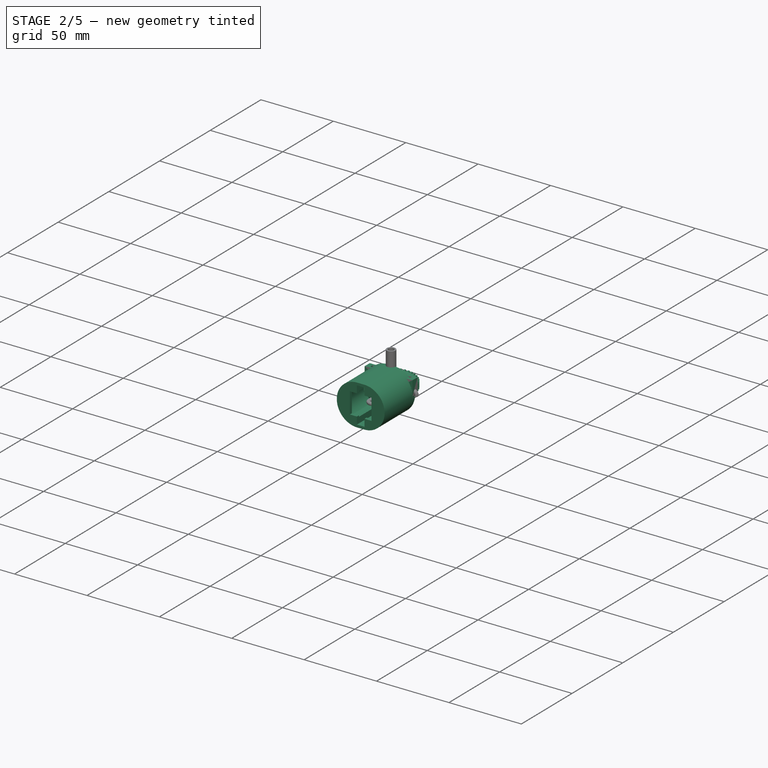
[diagram: stage 2 of 5 — iso view after this stage's code; geometry added in this stage tinted green]
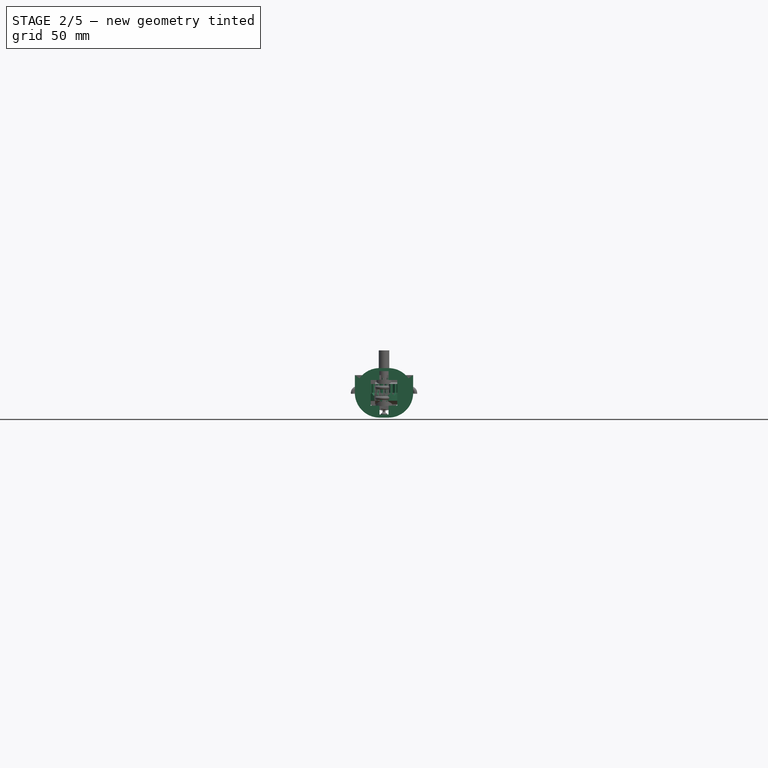
[diagram: stage 2 of 5 — front view after this stage's code; geometry added in this stage tinted green]
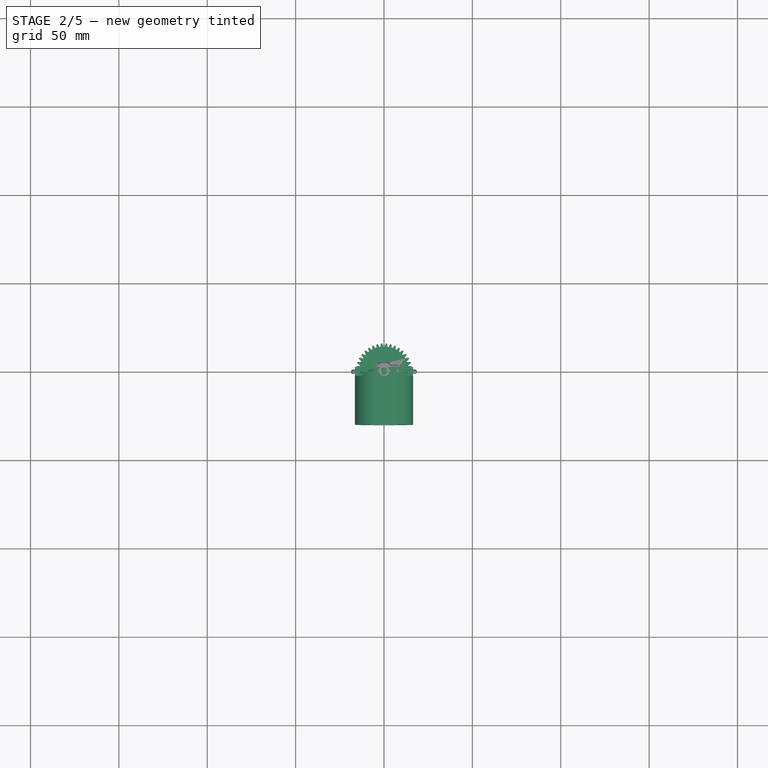
[diagram: stage 2 of 5 — top view after this stage's code; geometry added in this stage tinted green]
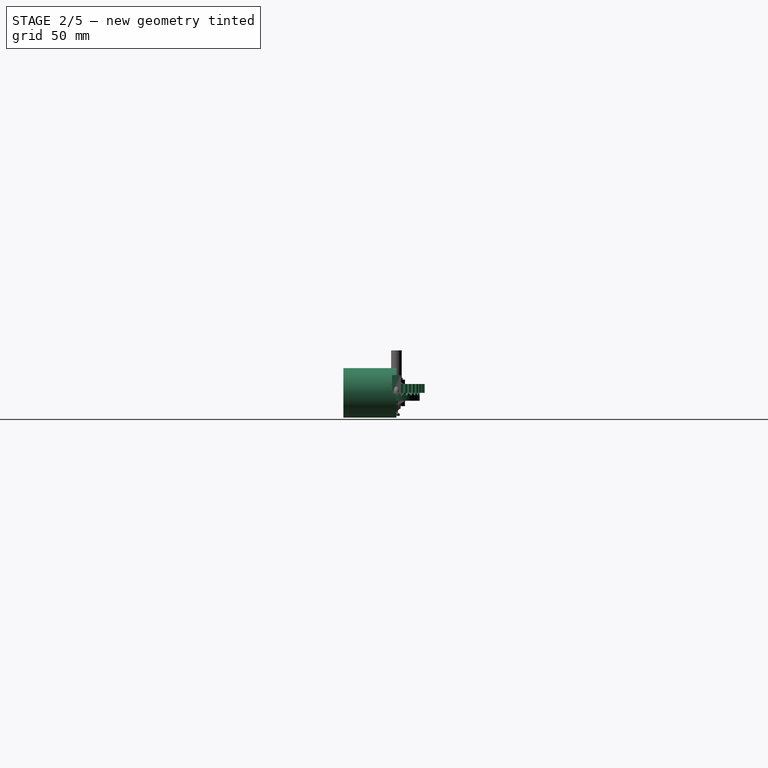
[diagram: stage 2 of 5 — right view after this stage's code; geometry added in this stage tinted green]
FEATURE [PartDesign::Body] Body028  label="Motor_Holder_Left"
  Group = -> [Sketch302,Sketch300,Sketch301,Pad155,Pocket127,Sketch305,Pocket128,Pocket129,Sketch307,Pocket131,Sketch314,Sketch313,Sketch312,Pocket130,Pocket010,Pocket011]
  Origin = -> Origin028
  Placement = pos=(120.405,48,18.3638) rot=(0.710565,-0.497543,0.497543;1.90603rad)
  Tip = -> Pocket011
FEATURE [Sketcher::SketchObject] Sketch315  label="Outer001"
  FullyConstrained = true
  MapMode = 5
  Placement = pos=(0,0,0) rot=(1,0,0;1.5708rad)
  Support = -> [XZ_Plane029]
  sketch-geometry (4):
    g0: ArcOfCircle CenterX=-2.5 CenterY=0 CenterZ=0 NormalX=0 NormalY=0 NormalZ=1 AngleXU=0 Radius=14 StartAngle=1.5708 EndAngle=4.71239
    g1: ArcOfCircle CenterX=2.5 CenterY=2e-16 CenterZ=0 NormalX=0 NormalY=0 NormalZ=1 AngleXU=0 Radius=14 StartAngle=4.71239 EndAngle=7.85398
    g2: LineSegment StartX=-2.5 StartY=-14 StartZ=0 EndX=2.5 EndY=-14 EndZ=0
    g3: LineSegment StartX=-2.5 StartY=14 StartZ=0 EndX=2.5 EndY=14 EndZ=0
  constraints (10):
    c: Tangent(g0,g3) = 1.5708
    c: Tangent(g0,g2) = -1.5708
    c: Tangent(g2,g1) = -1.5708
    c: Tangent(g3,g1) = 1.5708
    c: Horizontal(g2)
    c: Equal(g0,g1)
    c: Radius(g1) = 14
    c: DistanceX(g3,g3) = 5
    c: DistanceX(g0,g-1) = 2.5
    c: DistanceY(g-1,g0) = 0
FEATURE [PartDesign::Pad] Pad156
  Direction = (1,1,1)
  Length = 30
  Length2 = 100
  Placement = pos=(0,0,0) rot=(1,0,0;1.5708rad)
  Profile = -> Sketch315
  Refine = true
  Type = 0
FEATURE [Sketcher::SketchObject] Sketch317  label="Rod_Pocket001"
  FullyConstrained = true
  MapMode = 5
  Placement = pos=(0,0,0) rot=(1,0,0;1.5708rad)
  Support = -> [XZ_Plane029]
  sketch-geometry (4):
    g0: LineSegment StartX=-2.6 StartY=12.25 StartZ=0 EndX=2.6 EndY=12.25 EndZ=0
    g1: LineSegment StartX=2.6 StartY=12.25 StartZ=0 EndX=2.6 EndY=-12.25 EndZ=0
    g2: LineSegment StartX=2.6 StartY=-12.25 StartZ=0 EndX=-2.6 EndY=-12.25 EndZ=0
    g3: LineSegment StartX=-2.6 StartY=-12.25 StartZ=0 EndX=-2.6 EndY=12.25 EndZ=0
  constraints (12):
    c: Coincident(g0,g1)
    c: Coincident(g1,g2)
    c: Coincident(g2,g3)
    c: Coincident(g3,g0)
    c: Horizontal(g0)
    c: Horizontal(g2)
    c: Vertical(g1)
    c: Vertical(g3)
    c: DistanceX(g0,g0) = 5.2
    c: DistanceX(g0,g-1) = 2.6
    c: DistanceY(g1,g0) = 24.5
    c: DistanceY(g-1,g0) = 12.25
FEATURE [PartDesign::Pocket] Pocket133  label="Pocket138"
  BaseFeature = -> Pad156
  Length = 30
  Length2 = 100
  Placement = pos=(0,0,0) rot=(1,0,0;1.5708rad)
  Profile = -> Sketch317
  Refine = true
  Reversed = true
  Type = 0
FEATURE [Sketcher::SketchObject] Sketch318  label="MotorPocket001"
  FullyConstrained = true
  MapMode = 5
  Placement = pos=(0,0,0) rot=(1,0,0;1.5708rad)
  Support = -> [XZ_Plane029]
  sketch-geometry (4):
    g0: ArcOfCircle CenterX=0 CenterY=0 CenterZ=0 NormalX=0 NormalY=0 NormalZ=1 AngleXU=0 Radius=11 StartAngle=2.30869 EndAngle=3.9745
    g1: LineSegment StartX=-7.4 StartY=8.1388 StartZ=0 EndX=7.4 EndY=8.1388 EndZ=0
    g2: LineSegment StartX=7.4 StartY=-8.1388 StartZ=0 EndX=-7.4 EndY=-8.1388 EndZ=0
    g3: ArcOfCircle CenterX=0 CenterY=0 CenterZ=0 NormalX=0 NormalY=0 NormalZ=1 AngleXU=0 Radius=11 StartAngle=5.45028 EndAngle=7.11609
  constraints (12):
    c: Coincident(g0,g-1)
    c: Radius(g0) = 11
    c: Horizontal(g1)
    c: Horizontal(g2)
    c: Equal(g0,g3)
    c: Coincident(g0,g3)
    c: Coincident(g2,g0)
    c: Coincident(g1,g0)
    c: Coincident(g1,g3)
    c: Coincident(g2,g3)
    c: DistanceX(g0,g0) = 7.4
    c: DistanceX(g0,g0) = 7.4
FEATURE [Sketcher::SketchObject] Sketch320  label="Motor_Blocker_Pocket001"
  FullyConstrained = true
  MapMode = 5
  Placement = pos=(0,0,0) rot=(1,0,0;1.5708rad)
  Support = -> [XZ_Plane029]
  sketch-geometry (4):
    g0: LineSegment StartX=-7.5 StartY=7.25 StartZ=0 EndX=7.5 EndY=7.25 EndZ=0
    g1: LineSegment StartX=7.5 StartY=7.25 StartZ=0 EndX=7.5 EndY=-7.25 EndZ=0
    g2: LineSegment StartX=7.5 StartY=-7.25 StartZ=0 EndX=-7.5 EndY=-7.25 EndZ=0
    g3: LineSegment StartX=-7.5 StartY=-7.25 StartZ=0 EndX=-7.5 EndY=7.25 EndZ=0
  constraints (12):
    c: Coincident(g0,g1)
    c: Coincident(g1,g2)
    c: Coincident(g2,g3)
    c: Coincident(g3,g0)
    c: Horizontal(g0)
    c: Horizontal(g2)
    c: Vertical(g1)
    c: Vertical(g3)
    c: DistanceX(g0,g-1) = 7.5
    c: DistanceX(g0,g0) = 15
    c: DistanceY(g-1,g0) = 7.25
    c: DistanceY(g3,g3) = 14.5
FEATURE [PartDesign::Pocket] Pocket134  label="Pocket139"
  BaseFeature = -> Pocket133
  Length = 30
  Length2 = 100
  Placement = pos=(0,0,0) rot=(1,0,0;1.5708rad)
  Profile = -> Sketch320
  Refine = true
  Reversed = true
  Type = 0
FEATURE [PartDesign::Pocket] Pocket137  label="Pocket142"
  BaseFeature = -> Pocket134
  Length = 28
  Length2 = 100
  Placement = pos=(0,0,0) rot=(1,0,0;1.5708rad)
  Profile = -> Sketch318
  Refine = true
  Reversed = true
  Type = 0
FEATURE [PartDesign::Body] Body029  label="Motor_Holder_Right"
  Group = -> [Sketch318,Sketch317,Sketch315,Pad156,Pocket133,Sketch320,Pocket134,Pocket137,Sketch322,Pocket132,Sketch329,Sketch324,Sketch328,Pocket138,Pocket135,Pocket136]
  Origin = -> Origin029
  Placement = pos=(120.2,-47.5,17.8) rot=(-0.443713,0.633687,0.633687;2.30637rad)
  Tip = -> Pocket136
FEATURE [Sketcher::SketchObject] Sketch330
  FullyConstrained = true
  MapMode = 5
  Placement = pos=(0,0,0) rot=(1,0,0;1.5708rad)
  Support = -> [XZ_Plane030]
FEATURE [Sketcher::SketchObject] Sketch331  label="Outer002"
  FullyConstrained = true
  MapMode = 5
  Placement = pos=(0,0,0) rot=(1,0,0;1.5708rad)
  Support = -> [XZ_Plane030]
  sketch-geometry (4):
    g0: ArcOfCircle CenterX=-2.5 CenterY=0 CenterZ=0 NormalX=0 NormalY=0 NormalZ=1 AngleXU=0 Radius=14 StartAngle=1.5708 EndAngle=4.71239
    g1: ArcOfCircle CenterX=2.5 CenterY=2e-16 CenterZ=0 NormalX=0 NormalY=0 NormalZ=1 AngleXU=0 Radius=14 StartAngle=4.71239 EndAngle=7.85398
    g2: LineSegment StartX=-2.5 StartY=-14 StartZ=0 EndX=2.5 EndY=-14 EndZ=0
    g3: LineSegment StartX=-2.5 StartY=14 StartZ=0 EndX=2.5 EndY=14 EndZ=0
  constraints (10):
    c: Tangent(g0,g3) = 1.5708
    c: Tangent(g0,g2) = -1.5708
    c: Tangent(g2,g1) = -1.5708
    c: Tangent(g3,g1) = 1.5708
    c: Horizontal(g2)
    c: Equal(g0,g1)
    c: Radius(g1) = 14
    c: DistanceX(g3,g3) = 5
    c: DistanceX(g0,g-1) = 2.5
    c: DistanceY(g-1,g0) = 0
FEATURE [PartDesign::Pad] Pad158
  Direction = (1,1,1)
  Length = 3
  Length2 = 100
  Placement = pos=(0,0,0) rot=(1,0,0;1.5708rad)
  Profile = -> Sketch331
  Refine = true
  Type = 0
FEATURE [Sketcher::SketchObject] Sketch332  label="Hole003"
  FullyConstrained = true
  MapMode = 5
  Placement = pos=(0,0,0) rot=(1,0,0;1.5708rad)
  Support = -> [XZ_Plane030]
  sketch-geometry (1):
    g0: Circle CenterX=12 CenterY=-5 CenterZ=0 NormalX=0 NormalY=0 NormalZ=1 AngleXU=0 Radius=1.5
  constraints (3):
    c: Radius(g0) = 1.5
    c: DistanceX(g-1,g0) = 12
    c: DistanceY(g0,g-1) = 5
FEATURE [Sketcher::SketchObject] Sketch333  label="Holding_Pin2"
  FullyConstrained = true
  MapMode = 5
  Placement = pos=(0,0,0) rot=(1,0,0;1.5708rad)
  Support = -> [XZ_Plane030]
  sketch-geometry (4):
    g0: LineSegment StartX=-13 StartY=1.4 StartZ=0 EndX=-8 EndY=1.4 EndZ=0
    g1: LineSegment StartX=-8 StartY=-1.4 StartZ=0 EndX=-13 EndY=-1.4 EndZ=0
    g2: LineSegment StartX=-13 StartY=-1.4 StartZ=0 EndX=-13 EndY=1.4 EndZ=0
    g3: ArcOfCircle CenterX=-7.99999 CenterY=0 CenterZ=0 NormalX=0 NormalY=0 NormalZ=1 AngleXU=0 Radius=1.4 StartAngle=4.71238 EndAngle=7.85399
  constraints (13):
    c: Coincident(g1,g2)
    c: Coincident(g2,g0)
    c: Horizontal(g0)
    c: Horizontal(g1)
    c: Vertical(g2)
    c: DistanceX(g0,g0) = 5
    c: DistanceY(g2,g2) = 2.8
    c: DistanceY(g-1,g0) = 1.4
    c: PointOnObject(g3,g-1)
    c: Radius(g3) = 1.4
    c: DistanceX(g1,g1) = 5
    c: Coincident(g3,g1)
    c: Coincident(g3,g0)
FEATURE [Sketcher::SketchObject] Sketch334  label="Hole"
  FullyConstrained = true
  MapMode = 5
  Placement = pos=(0,0,0) rot=(1,0,0;1.5708rad)
  Support = -> [XZ_Plane030]
  sketch-geometry (1):
    g0: Circle CenterX=-12 CenterY=-5 CenterZ=0 NormalX=0 NormalY=0 NormalZ=1 AngleXU=0 Radius=1.5
  constraints (3):
    c: Radius(g0) = 1.5
    c: DistanceX(g0,g-1) = 12
    c: DistanceY(g0,g-1) = 5
FEATURE [Sketcher::SketchObject] Sketch335  label="MotorPocket002"
  FullyConstrained = true
  MapMode = 5
  Placement = pos=(0,0,0) rot=(1,0,0;1.5708rad)
  Support = -> [XZ_Plane030]
  sketch-geometry (4):
    g0: ArcOfCircle CenterX=0 CenterY=0 CenterZ=0 NormalX=0 NormalY=0 NormalZ=1 AngleXU=0 Radius=11 StartAngle=2.30869 EndAngle=3.9745
    g1: LineSegment StartX=-7.4 StartY=8.1388 StartZ=0 EndX=7.4 EndY=8.1388 EndZ=0
    g2: LineSegment StartX=7.4 StartY=-8.1388 StartZ=0 EndX=-7.4 EndY=-8.1388 EndZ=0
    g3: ArcOfCircle CenterX=0 CenterY=0 CenterZ=0 NormalX=0 NormalY=0 NormalZ=1 AngleXU=0 Radius=11 StartAngle=5.45028 EndAngle=7.11609
  constraints (12):
    c: Coincident(g0,g-1)
    c: Radius(g0) = 11
    c: Horizontal(g1)
    c: Horizontal(g2)
    c: Equal(g0,g3)
    c: Coincident(g0,g3)
    c: Coincident(g2,g0)
    c: Coincident(g1,g0)
    c: Coincident(g1,g3)
    c: Coincident(g2,g3)
    c: DistanceX(g0,g0) = 7.4
    c: DistanceX(g0,g0) = 7.4
FEATURE [Sketcher::SketchObject] Sketch336  label="Holding_Pin"
  FullyConstrained = true
  MapMode = 5
  Placement = pos=(0,0,0) rot=(1,0,0;1.5708rad)
  Support = -> [XZ_Plane030]
  sketch-geometry (4):
    g0: LineSegment StartX=8 StartY=1.4 StartZ=0 EndX=13 EndY=1.4 EndZ=0
    g1: LineSegment StartX=13 StartY=1.4 StartZ=0 EndX=13 EndY=-1.4 EndZ=0
    g2: LineSegment StartX=13 StartY=-1.4 StartZ=0 EndX=8 EndY=-1.4 EndZ=0
    g3: ArcOfCircle CenterX=8 CenterY=-1e-16 CenterZ=0 NormalX=0 NormalY=0 NormalZ=1 AngleXU=0 Radius=1.4 StartAngle=1.5708 EndAngle=4.71239
  constraints (13):
    c: Coincident(g0,g1)
    c: Coincident(g1,g2)
    c: Horizontal(g0)
    c: Horizontal(g2)
    c: Vertical(g1)
    c: DistanceX(g-1,g0) = 8
    c: DistanceX(g0,g0) = 5
    c: Radius(g3) = 1.4
    c: Coincident(g3,g0)
    c: Coincident(g3,g2)
    c: DistanceY(g3,g-1) = 0
    c: DistanceX(g2,g2) = 5
    c: DistanceX(g-1,g3) = 8
FEATURE [Sketcher::SketchObject] Sketch337  label="Final_pad"
  FullyConstrained = true
  MapMode = 5
  Placement = pos=(0,0,0) rot=(1,0,0;1.5708rad)
  Support = -> [XZ_Plane030]
  sketch-geometry (4):
    g0: LineSegment StartX=-25 StartY=25 StartZ=0 EndX=25 EndY=25 EndZ=0
    g1: LineSegment StartX=25 StartY=25 StartZ=0 EndX=25 EndY=5 EndZ=0
    g2: LineSegment StartX=25 StartY=5 StartZ=0 EndX=-25 EndY=5 EndZ=0
    g3: LineSegment StartX=-25 StartY=5 StartZ=0 EndX=-25 EndY=25 EndZ=0
  constraints (12):
    c: Coincident(g0,g1)
    c: Coincident(g1,g2)
    c: Coincident(g2,g3)
    c: Coincident(g3,g0)
    c: Horizontal(g0)
    c: Horizontal(g2)
    c: Vertical(g1)
    c: Vertical(g3)
    c: DistanceX(g0,g0) = 50
    c: DistanceY(g1,g1) = 20
    c: DistanceX(g2,g-1) = 25
    c: DistanceY(g-1,g2) = 5
FEATURE [Sketcher::SketchObject] Sketch338
  FullyConstrained = true
  MapMode = 5
  Placement = pos=(0,0,0) rot=(1,0,0;1.5708rad)
  Support = -> [XZ_Plane030]
  sketch-geometry (4):
    g0: LineSegment StartX=-2.525 StartY=12.5 StartZ=0 EndX=2.525 EndY=12.5 EndZ=0
    g1: LineSegment StartX=2.525 StartY=12.5 StartZ=0 EndX=2.525 EndY=-12.5 EndZ=0
    g2: LineSegment StartX=2.525 StartY=-12.5 StartZ=0 EndX=-2.525 EndY=-12.5 EndZ=0
    g3: LineSegment StartX=-2.525 StartY=-12.5 StartZ=0 EndX=-2.525 EndY=12.5 EndZ=0
  constraints (12):
    c: Coincident(g0,g1)
    c: Coincident(g1,g2)
    c: Coincident(g2,g3)
    c: Coincident(g3,g0)
    c: Horizontal(g0)
    c: Horizontal(g2)
    c: Vertical(g1)
    c: Vertical(g3)
    c: DistanceX(g0,g0) = 5.05
    c: DistanceX(g0,g-1) = 2.525
    c: DistanceY(g-1,g0) = 12.5
    c: DistanceY(g3,g3) = 25
FEATURE [PartDesign::Pocket] Pocket139  label="Pocket144"
  BaseFeature = -> Pad158
  Length = 6
  Length2 = 100
  Midplane = true
  Placement = pos=(0,0,0) rot=(1,0,0;1.5708rad)
  Profile = -> Sketch335
  Refine = true
  Type = 0
FEATURE [PartDesign::Pad] Pad159
  BaseFeature = -> Pocket139
  Direction = (1,1,1)
  Length = 3
  Length2 = 100
  Placement = pos=(0,0,0) rot=(1,0,0;1.5708rad)
  Profile = -> Sketch336
  Refine = true
  Type = 0
FEATURE [PartDesign::Pad] Pad160
  BaseFeature = -> Pad159
  Direction = (1,1,1)
  Length = 3
  Length2 = 100
  Placement = pos=(0,0,0) rot=(1,0,0;1.5708rad)
  Profile = -> Sketch333
  Refine = true
  Type = 0
FEATURE [PartDesign::Pad] Pad157
  BaseFeature = -> Pad160
  Direction = (1,1,1)
  Length = 6
  Length2 = 100
  Placement = pos=(0,0,0) rot=(1,0,0;1.5708rad)
  Profile = -> Sketch334
  Refine = true
  Type = 0
FEATURE [PartDesign::Pad] Pad161
  BaseFeature = -> Pad157
  Direction = (1,1,1)
  Length = 6
  Length2 = 100
  Placement = pos=(0,0,0) rot=(1,0,0;1.5708rad)
  Profile = -> Sketch332
  Refine = true
  Type = 0
FEATURE [PartDesign::Pocket] Pocket140  label="Pocket145"
  BaseFeature = -> Pad161
  Length = 6
  Length2 = 100
  Midplane = true
  Placement = pos=(0,0,0) rot=(1,0,0;1.5708rad)
  Profile = -> Sketch337
  Refine = true
  Type = 0
FEATURE [PartDesign::Pocket] Pocket141  label="Pocket146"
  BaseFeature = -> Pocket140
  Length = 10
  Length2 = 100
  Midplane = true
  Placement = pos=(0,0,0) rot=(1,0,0;1.5708rad)
  Profile = -> Sketch338
  Refine = true
  Type = 0
FEATURE [PartDesign::Body] Body030  label="Motor_HolderBraket_Left"
  Group = -> [Sketch330,Sketch335,Sketch331,Sketch336,Sketch333,Sketch334,Sketch332,Sketch337,Pad158,Pocket139,Pad159,Pad160,Pad157,Pad161,Pocket140,Sketch338,Pocket141]
  Origin = -> Origin030
  Placement = pos=(124.256,48.3999,17.0339) rot=(0.709366,-0.516573,0.479534;1.90772rad)
  Tip = -> Pocket141
FEATURE [Sketcher::SketchObject] Sketch339  label="Outer003"
  FullyConstrained = true
  MapMode = 5
  Placement = pos=(0,0,0) rot=(1,0,0;1.5708rad)
  Support = -> [XZ_Plane031]
  sketch-geometry (4):
    g0: ArcOfCircle CenterX=-2.5 CenterY=0 CenterZ=0 NormalX=0 NormalY=0 NormalZ=1 AngleXU=0 Radius=14 StartAngle=1.5708 EndAngle=4.71239
    g1: ArcOfCircle CenterX=2.5 CenterY=2e-16 CenterZ=0 NormalX=0 NormalY=0 NormalZ=1 AngleXU=0 Radius=14 StartAngle=4.71239 EndAngle=7.85398
    g2: LineSegment StartX=-2.5 StartY=-14 StartZ=0 EndX=2.5 EndY=-14 EndZ=0
    g3: LineSegment StartX=-2.5 StartY=14 StartZ=0 EndX=2.5 EndY=14 EndZ=0
  constraints (10):
    c: Tangent(g0,g3) = 1.5708
    c: Tangent(g0,g2) = -1.5708
    c: Tangent(g2,g1) = -1.5708
    c: Tangent(g3,g1) = 1.5708
    c: Horizontal(g2)
    c: Equal(g0,g1)
    c: Radius(g1) = 14
    c: DistanceX(g3,g3) = 5
    c: DistanceX(g0,g-1) = 2.5
    c: DistanceY(g-1,g0) = 0
FEATURE [PartDesign::Pad] Pad166
  Direction = (1,1,1)
  Length = 3
  Length2 = 100
  Placement = pos=(0,0,0) rot=(1,0,0;1.5708rad)
  Profile = -> Sketch339
  Refine = true
  Type = 0
FEATURE [Sketcher::SketchObject] Sketch340
  FullyConstrained = true
  MapMode = 5
  Placement = pos=(0,0,0) rot=(1,0,0;1.5708rad)
  Support = -> [XZ_Plane031]
FEATURE [Sketcher::SketchObject] Sketch341  label="Hole004"
  FullyConstrained = true
  MapMode = 5
  Placement = pos=(0,0,0) rot=(1,0,0;1.5708rad)
  Support = -> [XZ_Plane031]
  sketch-geometry (1):
    g0: Circle CenterX=12 CenterY=-5 CenterZ=0 NormalX=0 NormalY=0 NormalZ=1 AngleXU=0 Radius=1.5
  constraints (3):
    c: Radius(g0) = 1.5
    c: DistanceX(g-1,g0) = 12
    c: DistanceY(g0,g-1) = 5
FEATURE [Sketcher::SketchObject] Sketch342  label="Holding_Pin003"
  FullyConstrained = true
  MapMode = 5
  Placement = pos=(0,0,0) rot=(1,0,0;1.5708rad)
  Support = -> [XZ_Plane031]
  sketch-geometry (4):
    g0: LineSegment StartX=8 StartY=1.4 StartZ=0 EndX=13 EndY=1.4 EndZ=0
    g1: LineSegment StartX=13 StartY=1.4 StartZ=0 EndX=13 EndY=-1.4 EndZ=0
    g2: LineSegment StartX=13 StartY=-1.4 StartZ=0 EndX=8 EndY=-1.4 EndZ=0
    g3: ArcOfCircle CenterX=8 CenterY=-1e-16 CenterZ=0 NormalX=0 NormalY=0 NormalZ=1 AngleXU=0 Radius=1.4 StartAngle=1.5708 EndAngle=4.71239
  constraints (13):
    c: Coincident(g0,g1)
    c: Coincident(g1,g2)
    c: Horizontal(g0)
    c: Horizontal(g2)
    c: Vertical(g1)
    c: DistanceX(g-1,g0) = 8
    c: DistanceX(g0,g0) = 5
    c: Radius(g3) = 1.4
    c: Coincident(g3,g0)
    c: Coincident(g3,g2)
    c: DistanceY(g3,g-1) = 0
    c: DistanceX(g2,g2) = 5
    c: DistanceX(g-1,g3) = 8
FEATURE [Sketcher::SketchObject] Sketch343  label="Hole005"
  FullyConstrained = true
  MapMode = 5
  Placement = pos=(0,0,0) rot=(1,0,0;1.5708rad)
  Support = -> [XZ_Plane031]
  sketch-geometry (1):
    g0: Circle CenterX=-12 CenterY=-5 CenterZ=0 NormalX=0 NormalY=0 NormalZ=1 AngleXU=0 Radius=1.5
  constraints (3):
    c: Radius(g0) = 1.5
    c: DistanceX(g0,g-1) = 12
    c: DistanceY(g0,g-1) = 5
FEATURE [Sketcher::SketchObject] Sketch344  label="Holding_Pin004"
  FullyConstrained = true
  MapMode = 5
  Placement = pos=(0,0,0) rot=(1,0,0;1.5708rad)
  Support = -> [XZ_Plane031]
  sketch-geometry (4):
    g0: LineSegment StartX=-13 StartY=1.4 StartZ=0 EndX=-8 EndY=1.4 EndZ=0
    g1: LineSegment StartX=-8 StartY=-1.4 StartZ=0 EndX=-13 EndY=-1.4 EndZ=0
    g2: LineSegment StartX=-13 StartY=-1.4 StartZ=0 EndX=-13 EndY=1.4 EndZ=0
    g3: ArcOfCircle CenterX=-7.99999 CenterY=0 CenterZ=0 NormalX=0 NormalY=0 NormalZ=1 AngleXU=0 Radius=1.4 StartAngle=4.71238 EndAngle=7.85399
  constraints (13):
    c: Coincident(g1,g2)
    c: Coincident(g2,g0)
    c: Horizontal(g0)
    c: Horizontal(g1)
    c: Vertical(g2)
    c: DistanceX(g0,g0) = 5
    c: DistanceY(g2,g2) = 2.8
    c: DistanceY(g-1,g0) = 1.4
    c: PointOnObject(g3,g-1)
    c: Radius(g3) = 1.4
    c: DistanceX(g1,g1) = 5
    c: Coincident(g3,g1)
    c: Coincident(g3,g0)
FEATURE [Sketcher::SketchObject] Sketch345  label="MotorPocket003"
  FullyConstrained = true
  MapMode = 5
  Placement = pos=(0,0,0) rot=(1,0,0;1.5708rad)
  Support = -> [XZ_Plane031]
  sketch-geometry (4):
    g0: ArcOfCircle CenterX=0 CenterY=0 CenterZ=0 NormalX=0 NormalY=0 NormalZ=1 AngleXU=0 Radius=11 StartAngle=2.30869 EndAngle=3.9745
    g1: LineSegment StartX=-7.4 StartY=8.1388 StartZ=0 EndX=7.4 EndY=8.1388 EndZ=0
    g2: LineSegment StartX=7.4 StartY=-8.1388 StartZ=0 EndX=-7.4 EndY=-8.1388 EndZ=0
    g3: ArcOfCircle CenterX=0 CenterY=0 CenterZ=0 NormalX=0 NormalY=0 NormalZ=1 AngleXU=0 Radius=11 StartAngle=5.45028 EndAngle=7.11609
  constraints (12):
    c: Coincident(g0,g-1)
    c: Radius(g0) = 11
    c: Horizontal(g1)
    c: Horizontal(g2)
    c: Equal(g0,g3)
    c: Coincident(g0,g3)
    c: Coincident(g2,g0)
    c: Coincident(g1,g0)
    c: Coincident(g1,g3)
    c: Coincident(g2,g3)
    c: DistanceX(g0,g0) = 7.4
    c: DistanceX(g0,g0) = 7.4
FEATURE [Sketcher::SketchObject] Sketch346  label="Final_pad001"
  FullyConstrained = true
  MapMode = 5
  Placement = pos=(0,0,0) rot=(1,0,0;1.5708rad)
  Support = -> [XZ_Plane031]
  sketch-geometry (4):
    g0: LineSegment StartX=-25 StartY=25 StartZ=0 EndX=25 EndY=25 EndZ=0
    g1: LineSegment StartX=25 StartY=25 StartZ=0 EndX=25 EndY=5 EndZ=0
    g2: LineSegment StartX=25 StartY=5 StartZ=0 EndX=-25 EndY=5 EndZ=0
    g3: LineSegment StartX=-25 StartY=5 StartZ=0 EndX=-25 EndY=25 EndZ=0
  constraints (12):
    c: Coincident(g0,g1)
    c: Coincident(g1,g2)
    c: Coincident(g2,g3)
    c: Coincident(g3,g0)
    c: Horizontal(g0)
    c: Horizontal(g2)
    c: Vertical(g1)
    c: Vertical(g3)
    c: DistanceX(g0,g0) = 50
    c: DistanceY(g1,g1) = 20
    c: DistanceX(g2,g-1) = 25
    c: DistanceY(g-1,g2) = 5
FEATURE [Sketcher::SketchObject] Sketch347
  FullyConstrained = true
  MapMode = 5
  Placement = pos=(0,0,0) rot=(1,0,0;1.5708rad)
  Support = -> [XZ_Plane031]
  sketch-geometry (4):
    g0: LineSegment StartX=-2.525 StartY=12.5 StartZ=0 EndX=2.525 EndY=12.5 EndZ=0
    g1: LineSegment StartX=2.525 StartY=12.5 StartZ=0 EndX=2.525 EndY=-12.5 EndZ=0
    g2: LineSegment StartX=2.525 StartY=-12.5 StartZ=0 EndX=-2.525 EndY=-12.5 EndZ=0
    g3: LineSegment StartX=-2.525 StartY=-12.5 StartZ=0 EndX=-2.525 EndY=12.5 EndZ=0
  constraints (12):
    c: Coincident(g0,g1)
    c: Coincident(g1,g2)
    c: Coincident(g2,g3)
    c: Coincident(g3,g0)
    c: Horizontal(g0)
    c: Horizontal(g2)
    c: Vertical(g1)
    c: Vertical(g3)
    c: DistanceX(g0,g0) = 5.05
    c: DistanceX(g0,g-1) = 2.525
    c: DistanceY(g-1,g0) = 12.5
    c: DistanceY(g3,g3) = 25
FEATURE [PartDesign::Pocket] Pocket144  label="Pocket149"
  BaseFeature = -> Pad166
  Length = 6
  Length2 = 100
  Midplane = true
  Placement = pos=(0,0,0) rot=(1,0,0;1.5708rad)
  Profile = -> Sketch345
  Refine = true
  Type = 0
FEATURE [PartDesign::Pad] Pad163
  BaseFeature = -> Pocket144
  Direction = (1,1,1)
  Length = 3
  Length2 = 100
  Placement = pos=(0,0,0) rot=(1,0,0;1.5708rad)
  Profile = -> Sketch342
  Refine = true
  Type = 0
FEATURE [PartDesign::Pad] Pad164
  BaseFeature = -> Pad163
  Direction = (1,1,1)
  Length = 3
  Length2 = 100
  Placement = pos=(0,0,0) rot=(1,0,0;1.5708rad)
  Profile = -> Sketch344
  Refine = true
  Type = 0
FEATURE [PartDesign::Pad] Pad165
  BaseFeature = -> Pad164
  Direction = (1,1,1)
  Length = 6
  Length2 = 100
  Placement = pos=(0,0,0) rot=(1,0,0;1.5708rad)
  Profile = -> Sketch343
  Refine = true
  Type = 0
FEATURE [PartDesign::Pad] Pad162
  BaseFeature = -> Pad165
  Direction = (1,1,1)
  Length = 6
  Length2 = 100
  Placement = pos=(0,0,0) rot=(1,0,0;1.5708rad)
  Profile = -> Sketch341
  Refine = true
  Type = 0
FEATURE [PartDesign::Pocket] Pocket142  label="Pocket147"
  BaseFeature = -> Pad162
  Length = 6
  Length2 = 100
  Midplane = true
  Placement = pos=(0,0,0) rot=(1,0,0;1.5708rad)
  Profile = -> Sketch346
  Refine = true
  Type = 0
FEATURE [PartDesign::Pocket] Pocket143  label="Pocket148"
  BaseFeature = -> Pocket142
  Length = 10
  Length2 = 100
  Midplane = true
  Placement = pos=(0,0,0) rot=(1,0,0;1.5708rad)
  Profile = -> Sketch347
  Refine = true
  Type = 0
FEATURE [PartDesign::Body] Body031  label="Motor_HolderBraket_Right"
  Group = -> [Sketch340,Sketch345,Sketch339,Sketch342,Sketch344,Sketch343,Sketch341,Sketch346,Pad166,Pocket144,Pad163,Pad164,Pad165,Pad162,Pocket142,Sketch347,Pocket143]
  Origin = -> Origin031
  Placement = pos=(124.832,-47.7933,16.4355) rot=(-0.431286,0.637931,0.637994;2.27174rad)
  Tip = -> Pocket143
FEATURE [Sketcher::SketchObject] Sketch348  label="Big_Holder"
  FullyConstrained = true
  MapMode = 5
  Support = -> [XY_Plane032]
  sketch-geometry (4):
    g0: LineSegment StartX=-16.5 StartY=2.5 StartZ=0 EndX=16.5 EndY=2.5 EndZ=0
    g1: LineSegment StartX=16.5 StartY=2.5 StartZ=0 EndX=16.5 EndY=-2.5 EndZ=0
    g2: LineSegment StartX=16.5 StartY=-2.5 StartZ=0 EndX=-16.5 EndY=-2.5 EndZ=0
    g3: LineSegment StartX=-16.5 StartY=-2.5 StartZ=0 EndX=-16.5 EndY=2.5 EndZ=0
  constraints (12):
    c: Coincident(g0,g1)
    c: Coincident(g1,g2)
    c: Coincident(g2,g3)
    c: Coincident(g3,g0)
    c: Horizontal(g0)
    c: Horizontal(g2)
    c: Vertical(g1)
    c: Vertical(g3)
    c: DistanceX(g0,g0) = 33
    c: DistanceY(g1,g1) = 5
    c: DistanceY(g-1,g0) = 2.5
    c: DistanceX(g0,g-1) = 16.5
FEATURE [Sketcher::SketchObject] Sketch349  label="Circle"
  FullyConstrained = true
  MapMode = 5
  Support = -> [XY_Plane032]
  sketch-geometry (2):
    g0: Circle CenterX=0 CenterY=0 CenterZ=0 NormalX=0 NormalY=0 NormalZ=1 AngleXU=0 Radius=2.4
    g1: Circle CenterX=0 CenterY=0 CenterZ=0 NormalX=0 NormalY=0 NormalZ=1 AngleXU=0 Radius=5
  constraints (4):
    c: Coincident(g0,g-1)
    c: Radius(g0) = 2.4
    c: Coincident(g1,g0)
    c: Radius(g1) = 5
FEATURE [PartDesign::Pad] Pad168
  Direction = (1,1,1)
  Length = 5
  Length2 = 100
  Profile = -> Sketch349
  Refine = true
  Reversed = true
  Type = 0
FEATURE [PartDesign::Pad] Pad167
  BaseFeature = -> Pad168
  Direction = (1,1,1)
  Length = 10
  Length2 = 100
  Profile = -> Sketch348
  Refine = true
  Type = 0
FEATURE [Sketcher::SketchObject] Sketch350  label="Slot"
  AttachmentOffset = pos=(0,0,10) rot=(0,0,1;0rad)
  FullyConstrained = true
  MapMode = 5
  Placement = pos=(0,0,10) rot=(0,0,1;0rad)
  Support = -> [XY_Plane032]
  sketch-geometry (4):
    g0: LineSegment StartX=-13.6 StartY=1 StartZ=0 EndX=13.6 EndY=1 EndZ=0
    g1: LineSegment StartX=13.6 StartY=1 StartZ=0 EndX=13.6 EndY=-1 EndZ=0
    g2: LineSegment StartX=13.6 StartY=-1 StartZ=0 EndX=-13.6 EndY=-1 EndZ=0
    g3: LineSegment StartX=-13.6 StartY=-1 StartZ=0 EndX=-13.6 EndY=1 EndZ=0
  constraints (12):
    c: Coincident(g0,g1)
    c: Coincident(g1,g2)
    c: Coincident(g2,g3)
    c: Coincident(g3,g0)
    c: Horizontal(g0)
    c: Horizontal(g2)
    c: Vertical(g1)
    c: Vertical(g3)
    c: DistanceX(g0,g0) = 27.2
    c: DistanceX(g0,g-1) = 13.6
    c: DistanceY(g3,g3) = 2
    c: DistanceY(g-1,g0) = 1
FEATURE [PartDesign::Pocket] Pocket145  label="Pocket150"
  BaseFeature = -> Pad167
  Length = 8
  Length2 = 100
  Profile = -> Sketch350
  Refine = true
  Type = 0
FEATURE [PartDesign::Chamfer] Chamfer006
  Angle = 45
  Base = -> Pocket145 [Edge15]
  BaseFeature = -> Pocket145
  ChamferType = 0
  FlipDirection = false
  Refine = true
  Size = 2
  Size2 = 1
  SupportTransform = false
FEATURE [PartDesign::Chamfer] Chamfer007
  Angle = 45
  Base = -> Chamfer006 [Edge23]
  BaseFeature = -> Chamfer006
  ChamferType = 0
  FlipDirection = false
  Refine = true
  Size = 2
  Size2 = 1
  SupportTransform = false
FEATURE [PartDesign::Body] Body032  label="ESP_Holder"
  Group = -> [Sketch349,Sketch348,Sketch350,Pad168,Pad167,Pocket145,Chamfer006,Chamfer007]
  Origin = -> Origin032
  Placement = pos=(97.2,-2.16e-14,48.2) rot=(0,0,1;4.71239rad)
  Tip = -> Chamfer007
FEATURE [Part::FeaturePython] involutegear  # WARN: FeaturePython — macro-defined, semantics opaque (R4)
  AttacherType = Attacher::AttachEngine3D
  backlash = 0
  beta = 0
  clearance = 0.25
  da = 32
  df = 28.4
  double_helix = false
  dw = 30.4
  head = 0
  height = 5
  module = 0.8
  numpoints = 6
  pressure_angle = 20
  properties_from_tool = false
  reversed_backlash = false
  shift = 0
  simple = false
  teeth = 38
  transverse_pitch = 2.51327
  undercut = false
  version = 0.0.3
FEATURE [Sketcher::SketchObject] Sketch351  label="SupportRod"
  FullyConstrained = true
  MapMode = 5
  Support = -> [XY_Plane033]
  sketch-geometry (1):
    g0: Circle CenterX=0 CenterY=0 CenterZ=0 NormalX=0 NormalY=0 NormalZ=1 AngleXU=0 Radius=3
  constraints (2):
    c: Coincident(g0,g-1)
    c: Radius(g0) = 3
FEATURE [Sketcher::SketchObject] Sketch352  label="Hole006"
  FullyConstrained = true
  MapMode = 5
  Support = -> [XY_Plane033]
  sketch-geometry (1):
    g0: Circle CenterX=0 CenterY=0 CenterZ=0 NormalX=0 NormalY=0 NormalZ=1 AngleXU=0 Radius=1.15
  constraints (2):
    c: Coincident(g0,g-1)
    c: Radius(g0) = 1.15
FEATURE [Sketcher::SketchObject] Sketch353  label="Hex"
  AttachmentOffset = pos=(0,0,5) rot=(0,0,1;0rad)
  FullyConstrained = true
  MapMode = 5
  Placement = pos=(0,0,5) rot=(0,0,1;0rad)
  Support = -> [XY_Plane033]
  sketch-geometry (7):
    g0: LineSegment StartX=6.1 StartY=0 StartZ=0 EndX=3.05 EndY=5.28275 EndZ=0
    g1: LineSegment StartX=3.05 StartY=5.28275 StartZ=0 EndX=-3.05 EndY=5.28275 EndZ=0
    g2: LineSegment StartX=-3.05 StartY=5.28275 StartZ=0 EndX=-6.1 EndY=5.2305e-12 EndZ=0
    g3: LineSegment StartX=-6.1 StartY=5.2305e-12 StartZ=0 EndX=-3.05 EndY=-5.28275 EndZ=0
    g4: LineSegment StartX=-3.05 StartY=-5.28275 StartZ=0 EndX=3.05 EndY=-5.28275 EndZ=0
    g5: LineSegment StartX=3.05 StartY=-5.28275 StartZ=0 EndX=6.1 EndY=0 EndZ=0
    g6: Circle CenterX=-1e-16 CenterY=0 CenterZ=0 NormalX=0 NormalY=0 NormalZ=1 AngleXU=0 Radius=6.1
  constraints (16):
    c: Coincident(g0,g1)
    c: Coincident(g1,g2)
    c: Coincident(g2,g3)
    c: Coincident(g3,g4)
    c: Coincident(g4,g5)
    c: Coincident(g5,g0)
    c: Equal(g0, g1-g5) x5
    c: PointOnObject(g0,g6)
    c: PointOnObject(g1,g6)
    c: PointOnObject(g2,g6)
    c: PointOnObject(g3,g6)
    c: PointOnObject(g4,g6)
    c: PointOnObject(g5,g6)
    c: Coincident(g6,g-1)
    c: PointOnObject(g5,g-1)
    c: Radius(g6) = 6.1
FEATURE [Sketcher::SketchObject] Sketch354
  FullyConstrained = true
  MapMode = 5
  Support = -> [XY_Plane033]
  sketch-geometry (1):
    g0: Circle CenterX=0 CenterY=0 CenterZ=0 NormalX=0 NormalY=0 NormalZ=1 AngleXU=0 Radius=15
  constraints (2):
    c: Coincident(g0,g-1)
    c: Radius(g0) = 15
FEATURE [PartDesign::FeatureBase] BaseFeature001
  BaseFeature = -> involutegear
FEATURE [PartDesign::Pocket] Pocket146  label="Pocket151"
  BaseFeature = -> BaseFeature001
  Length = 3
  Length2 = 100
  Profile = -> Sketch353
  Refine = true
  Type = 0
FEATURE [PartDesign::Pad] Pad169
  BaseFeature = -> Pocket146
  Direction = (1,1,1)
  Length = 3
  Length2 = 100
  Profile = -> Sketch351
  Refine = true
  Reversed = true
  Type = 0
FEATURE [PartDesign::Pocket] Pocket147  label="Pocket152"
  BaseFeature = -> Pad169
  Length = 10
  Length2 = 100
  Midplane = true
  Profile = -> Sketch352
  Refine = true
  Type = 0
FEATURE [PartDesign::Body] Body033  label="Rear_Left_Spur"
  BaseFeature = -> involutegear
  Group = -> [BaseFeature001,Sketch351,Sketch352,Sketch353,Pocket146,Pad169,Pocket147,Sketch354]
  Origin = -> Origin033
  Placement = pos=(181.6,-46.5,-5.7) rot=(-1,0,0;4.71239rad)
  Tip = -> Pocket147
FEATURE [Part::FeaturePython] involutegear001  # WARN: FeaturePython — macro-defined, semantics opaque (R4)
  AttacherType = Attacher::AttachEngine3D
  backlash = 0
  beta = 0
  clearance = 0.25
  da = 32
  df = 28.4
  double_helix = false
  dw = 30.4
  head = 0
  height = 5
  module = 0.8
  numpoints = 6
  pressure_angle = 20
  properties_from_tool = false
  reversed_backlash = false
  shift = 0
  simple = false
  teeth = 38
  transverse_pitch = 2.51327
  undercut = false
  version = 0.0.3
FEATURE [Sketcher::SketchObject] Sketch355  label="Hex001"
  AttachmentOffset = pos=(0,0,5) rot=(0,0,1;0rad)
  FullyConstrained = true
  MapMode = 5
  Placement = pos=(0,0,5) rot=(0,0,1;0rad)
  Support = -> [XY_Plane034]
  sketch-geometry (7):
    g0: LineSegment StartX=6.1 StartY=0 StartZ=0 EndX=3.05 EndY=5.28275 EndZ=0
    g1: LineSegment StartX=3.05 StartY=5.28275 StartZ=0 EndX=-3.05 EndY=5.28275 EndZ=0
    g2: LineSegment StartX=-3.05 StartY=5.28275 StartZ=0 EndX=-6.1 EndY=5.2305e-12 EndZ=0
    g3: LineSegment StartX=-6.1 StartY=5.2305e-12 StartZ=0 EndX=-3.05 EndY=-5.28275 EndZ=0
    g4: LineSegment StartX=-3.05 StartY=-5.28275 StartZ=0 EndX=3.05 EndY=-5.28275 EndZ=0
    g5: LineSegment StartX=3.05 StartY=-5.28275 StartZ=0 EndX=6.1 EndY=0 EndZ=0
    g6: Circle CenterX=-1e-16 CenterY=0 CenterZ=0 NormalX=0 NormalY=0 NormalZ=1 AngleXU=0 Radius=6.1
  constraints (16):
    c: Coincident(g0,g1)
    c: Coincident(g1,g2)
    c: Coincident(g2,g3)
    c: Coincident(g3,g4)
    c: Coincident(g4,g5)
    c: Coincident(g5,g0)
    c: Equal(g0, g1-g5) x5
    c: PointOnObject(g0,g6)
    c: PointOnObject(g1,g6)
    c: PointOnObject(g2,g6)
    c: PointOnObject(g3,g6)
    c: PointOnObject(g4,g6)
    c: PointOnObject(g5,g6)
    c: Coincident(g6,g-1)
    c: PointOnObject(g5,g-1)
    c: Radius(g6) = 6.1
FEATURE [Sketcher::SketchObject] Sketch356
  FullyConstrained = true
  MapMode = 5
  Support = -> [XY_Plane034]
  sketch-geometry (1):
    g0: Circle CenterX=0 CenterY=0 CenterZ=0 NormalX=0 NormalY=0 NormalZ=1 AngleXU=0 Radius=15
  constraints (2):
    c: Coincident(g0,g-1)
    c: Radius(g0) = 15
FEATURE [Sketcher::SketchObject] Sketch357  label="SupportRod001"
  FullyConstrained = true
  MapMode = 5
  Support = -> [XY_Plane034]
  sketch-geometry (1):
    g0: Circle CenterX=0 CenterY=0 CenterZ=0 NormalX=0 NormalY=0 NormalZ=1 AngleXU=0 Radius=3
  constraints (2):
    c: Coincident(g0,g-1)
    c: Radius(g0) = 3
FEATURE [Sketcher::SketchObject] Sketch358  label="Hole007"
  FullyConstrained = true
  MapMode = 5
  Support = -> [XY_Plane034]
  sketch-geometry (1):
    g0: Circle CenterX=0 CenterY=0 CenterZ=0 NormalX=0 NormalY=0 NormalZ=1 AngleXU=0 Radius=1.15
  constraints (2):
    c: Coincident(g0,g-1)
    c: Radius(g0) = 1.15
FEATURE [PartDesign::FeatureBase] BaseFeature002
  BaseFeature = -> involutegear001
FEATURE [PartDesign::Pocket] Pocket149  label="Pocket154"
  BaseFeature = -> BaseFeature002
  Length = 3
  Length2 = 100
  Profile = -> Sketch355
  Refine = true
  Type = 0
FEATURE [PartDesign::Pad] Pad170
  BaseFeature = -> Pocket149
  Direction = (1,1,1)
  Length = 3
  Length2 = 100
  Profile = -> Sketch357
  Refine = true
  Reversed = true
  Type = 0
FEATURE [PartDesign::Pocket] Pocket148  label="Pocket153"
  BaseFeature = -> Pad170
  Length = 10
  Length2 = 100
  Midplane = true
  Profile = -> Sketch358
  Refine = true
  Type = 0
FEATURE [PartDesign::Body] Body034  label="Rear_Right_Spur"
  BaseFeature = -> involutegear001
  Group = -> [BaseFeature002,Sketch357,Sketch358,Sketch355,Pocket149,Pad170,Pocket148,Sketch356]
  Origin = -> Origin034
  Placement = pos=(181.844,47.9343,-5.7) rot=(0,0.707107,0.707107;3.14159rad)
  Tip = -> Pocket148
FEATURE [Part::FeaturePython] crowngear  # WARN: FeaturePython — macro-defined, semantics opaque (R4)
  AttacherType = Attacher::AttachEngine3D
  height = 2
  module = 0.8
  num_profiles = 4
  other_teeth = 7
  pressure_angle = 20
  preview_mode = false
  teeth = 28
  thickness = 4
  version = 0.0.3
FEATURE [Sketcher::SketchObject] Sketch359
  FullyConstrained = true
  MapMode = 5
  Support = -> [XY_Plane035]
  sketch-geometry (1):
    g0: Circle CenterX=0 CenterY=0 CenterZ=0 NormalX=0 NormalY=0 NormalZ=1 AngleXU=0 Radius=1.1
  constraints (2):
    c: Coincident(g0,g-1)
    c: Radius(g0) = 1.1
FEATURE [Sketcher::SketchObject] Sketch360  label="BigCircle"
  AttachmentOffset = pos=(0,0,-4.5) rot=(0,0,1;0rad)
  FullyConstrained = true
  MapMode = 5
  Placement = pos=(0,0,-4.5) rot=(0,0,1;0rad)
  Support = -> [XY_Plane035]
  sketch-geometry (1):
    g0: Circle CenterX=0 CenterY=0 CenterZ=0 NormalX=0 NormalY=0 NormalZ=1 AngleXU=0 Radius=13.2
  constraints (2):
    c: Coincident(g0,g-1)
    c: Radius(g0) = 13.2
FEATURE [Sketcher::SketchObject] Sketch361
  FullyConstrained = true
  MapMode = 5
  Support = -> [XY_Plane035]
  sketch-geometry (1):
    g0: Circle CenterX=0 CenterY=0 CenterZ=0 NormalX=0 NormalY=0 NormalZ=1 AngleXU=0 Radius=1.1
  constraints (2):
    c: Coincident(g0,g-1)
    c: Radius(g0) = 1.1
FEATURE [Sketcher::SketchObject] Sketch362  label="SmallRod"
  AttachmentOffset = pos=(0,0,-4.5) rot=(0,0,1;0rad)
  FullyConstrained = true
  MapMode = 5
  Placement = pos=(0,0,-4.5) rot=(0,0,1;0rad)
  Support = -> [XY_Plane035]
  sketch-geometry (1):
    g0: Circle CenterX=0 CenterY=0 CenterZ=0 NormalX=0 NormalY=0 NormalZ=1 AngleXU=0 Radius=2.1
  constraints (2):
    c: Coincident(g0,g-1)
    c: Radius(g0) = 2.1
FEATURE [PartDesign::FeatureBase] BaseFeature003
  BaseFeature = -> crowngear
FEATURE [PartDesign::Pad] Pad172
  BaseFeature = -> BaseFeature003
  Direction = (1,1,1)
  Length = 2.5
  Length2 = 100
  Profile = -> Sketch360
  Refine = true
  Type = 0
FEATURE [PartDesign::Pad] Pad171
  BaseFeature = -> Pad172
  Direction = (1,1,1)
  Length = 8
  Length2 = 100
  Profile = -> Sketch362
  Refine = true
  Type = 0
FEATURE [PartDesign::Pocket] Pocket150  label="Pocket155"
  BaseFeature = -> Pad171
  Length = 500
  Length2 = 100
  Midplane = true
  Profile = -> Sketch359
  Refine = true
  Type = 0
FEATURE [PartDesign::Pocket] Pocket151  label="Pocket156"
  BaseFeature = -> Pocket150
  Length = 100
  Length2 = 100
  Midplane = true
  Profile = -> Sketch361
  Refine = true
  Type = 0
FEATURE [PartDesign::Body] Body035  label="Rear_Left_Gear_Mid"
  BaseFeature = -> crowngear
  Group = -> [BaseFeature003,Sketch360,Sketch362,Sketch359,Pad172,Pad171,Pocket150,Sketch361,Pocket151]
  Origin = -> Origin035
  Placement = pos=(163,-45.5,-1.01e-14) rot=(1,0,0;1.5708rad)
  Tip = -> Pocket151
FEATURE [Part::FeaturePython] involutegear002  # WARN: FeaturePython — macro-defined, semantics opaque (R4)
  AttacherType = Attacher::AttachEngine3D
  backlash = 0
  beta = 0
  clearance = 0.25
  da = 7.2
  df = 3.6
  double_helix = false
  dw = 5.6
  head = 0
  height = 8.5
  module = 0.8
  numpoints = 6
  pressure_angle = 20
  properties_from_tool = false
  reversed_backlash = false
  shift = 0
  simple = false
  teeth = 7
  transverse_pitch = 2.51327
  undercut = false
  version = 0.0.3
FEATURE [Sketcher::SketchObject] Sketch363
  FullyConstrained = true
  MapMode = 5
  Support = -> [XY_Plane036]
  sketch-geometry (1):
    g0: Circle CenterX=0 CenterY=0 CenterZ=0 NormalX=0 NormalY=0 NormalZ=1 AngleXU=0 Radius=1.8
  constraints (2):
    c: Coincident(g0,g-1)
    c: Radius(g0) = 1.8
FEATURE [Sketcher::SketchObject] Sketch364
  FullyConstrained = true
  MapMode = 5
  Support = -> [XY_Plane036]
  sketch-geometry (1):
    g0: Circle CenterX=0 CenterY=0 CenterZ=0 NormalX=0 NormalY=0 NormalZ=1 AngleXU=0 Radius=1.1
  constraints (2):
    c: Coincident(g0,g-1)
    c: Radius(g0) = 1.1
FEATURE [Sketcher::SketchObject] Sketch365
  FullyConstrained = true
  MapMode = 5
  Support = -> [XY_Plane036]
  sketch-geometry (1):
    g0: Circle CenterX=0 CenterY=0 CenterZ=0 NormalX=0 NormalY=0 NormalZ=1 AngleXU=0 Radius=2.5
  constraints (2):
    c: Coincident(g0,g-1)
    c: Radius(g0) = 2.5
FEATURE [PartDesign::FeatureBase] BaseFeature004
  BaseFeature = -> involutegear002
FEATURE [PartDesign::Pocket] Pocket152  label="Pocket157"
  BaseFeature = -> BaseFeature004
  Length = 50
  Length2 = 100
  Midplane = true
  Profile = -> Sketch364
  Refine = true
  Type = 0
FEATURE [PartDesign::Body] Body036  label="Rear_Left_Gear_Mid_Small"
  BaseFeature = -> involutegear002
  Group = -> [BaseFeature004,Sketch364,Pocket152,Sketch363,Sketch365]
  Origin = -> Origin036
  Placement = pos=(163,-45.5,0) rot=(1,0,0;1.5708rad)
  Tip = -> Pocket152
FEATURE [Sketcher::SketchObject] Sketch366
  FullyConstrained = true
  MapMode = 5
  Support = -> [XY_Plane037]
  sketch-geometry (1):
    g0: Circle CenterX=0 CenterY=0 CenterZ=0 NormalX=0 NormalY=0 NormalZ=1 AngleXU=0 Radius=1.1
  constraints (2):
    c: Coincident(g0,g-1)
    c: Radius(g0) = 1.1
FEATURE [Sketcher::SketchObject] Sketch367
  FullyConstrained = true
  MapMode = 5
  Support = -> [XY_Plane037]
  sketch-geometry (1):
    g0: Circle CenterX=0 CenterY=0 CenterZ=0 NormalX=0 NormalY=0 NormalZ=1 AngleXU=0 Radius=1.1
  constraints (2):
    c: Coincident(g0,g-1)
    c: Radius(g0) = 1.1
FEATURE [Sketcher::SketchObject] Sketch368  label="BigCircle001"
  AttachmentOffset = pos=(0,0,-4.5) rot=(0,0,1;0rad)
  FullyConstrained = true
  MapMode = 5
  Placement = pos=(0,0,-4.5) rot=(0,0,1;0rad)
  Support = -> [XY_Plane037]
  sketch-geometry (1):
    g0: Circle CenterX=0 CenterY=0 CenterZ=0 NormalX=0 NormalY=0 NormalZ=1 AngleXU=0 Radius=13.2
  constraints (2):
    c: Coincident(g0,g-1)
    c: Radius(g0) = 13.2
FEATURE [Sketcher::SketchObject] Sketch369
  FullyConstrained = true
  MapMode = 5
  Support = -> [XY_Plane038]
  sketch-geometry (1):
    g0: Circle CenterX=0 CenterY=0 CenterZ=0 NormalX=0 NormalY=0 NormalZ=1 AngleXU=0 Radius=1.8
  constraints (2):
    c: Coincident(g0,g-1)
    c: Radius(g0) = 1.8
FEATURE [Sketcher::SketchObject] Sketch370
  FullyConstrained = true
  MapMode = 5
  Support = -> [XY_Plane038]
  sketch-geometry (1):
    g0: Circle CenterX=0 CenterY=0 CenterZ=0 NormalX=0 NormalY=0 NormalZ=1 AngleXU=0 Radius=2.5
  constraints (2):
    c: Coincident(g0,g-1)
    c: Radius(g0) = 2.5
FEATURE [Sketcher::SketchObject] Sketch371
  FullyConstrained = true
  MapMode = 5
  Support = -> [XY_Plane038]
  sketch-geometry (1):
    g0: Circle CenterX=0 CenterY=0 CenterZ=0 NormalX=0 NormalY=0 NormalZ=1 AngleXU=0 Radius=1.1
  constraints (2):
    c: Coincident(g0,g-1)
    c: Radius(g0) = 1.1
FEATURE [Sketcher::SketchObject] Sketch372  label="SmallRod001"
  AttachmentOffset = pos=(0,0,-4.5) rot=(0,0,1;0rad)
  FullyConstrained = true
  MapMode = 5
  Placement = pos=(0,0,-4.5) rot=(0,0,1;0rad)
  Support = -> [XY_Plane037]
  sketch-geometry (1):
    g0: Circle CenterX=0 CenterY=0 CenterZ=0 NormalX=0 NormalY=0 NormalZ=1 AngleXU=0 Radius=2.1
  constraints (2):
    c: Coincident(g0,g-1)
    c: Radius(g0) = 2.1
FEATURE [Part::FeaturePython] crowngear001  # WARN: FeaturePython — macro-defined, semantics opaque (R4)
  AttacherType = Attacher::AttachEngine3D
  height = 2
  module = 0.8
  num_profiles = 4
  other_teeth = 7
  pressure_angle = 20
  preview_mode = false
  teeth = 28
  thickness = 4
  version = 0.0.3
FEATURE [PartDesign::FeatureBase] BaseFeature006
  BaseFeature = -> crowngear001
FEATURE [PartDesign::Pad] Pad174
  BaseFeature = -> BaseFeature006
  Direction = (1,1,1)
  Length = 2.5
  Length2 = 100
  Profile = -> Sketch368
  Refine = true
  Type = 0
FEATURE [PartDesign::Pad] Pad173
  BaseFeature = -> Pad174
  Direction = (1,1,1)
  Length = 8
  Length2 = 100
  Profile = -> Sketch372
  Refine = true
  Type = 0
FEATURE [PartDesign::Pocket] Pocket153  label="Pocket158"
  BaseFeature = -> Pad173
  Length = 500
  Length2 = 100
  Midplane = true
  Profile = -> Sketch367
  Refine = true
  Type = 0
FEATURE [PartDesign::Pocket] Pocket154  label="Pocket159"
  BaseFeature = -> Pocket153
  Length = 100
  Length2 = 100
  Midplane = true
  Profile = -> Sketch366
  Refine = true
  Type = 0
FEATURE [PartDesign::Body] Body037  label="Rear_Right_Gear_Mid"
  BaseFeature = -> crowngear001
  Group = -> [BaseFeature006,Sketch368,Sketch372,Sketch367,Pad174,Pad173,Pocket153,Sketch366,Pocket154]
  Origin = -> Origin038
  Placement = pos=(163,45.5,0) rot=(1,0,0;4.71239rad)
  Tip = -> Pocket154
FEATURE [Part::FeaturePython] involutegear003  # WARN: FeaturePython — macro-defined, semantics opaque (R4)
  AttacherType = Attacher::AttachEngine3D
  backlash = 0
  beta = 0
  clearance = 0.25
  da = 7.2
  df = 3.6
  double_helix = false
  dw = 5.6
  head = 0
  height = 8.5
  module = 0.8
  numpoints = 6
  pressure_angle = 20
  properties_from_tool = false
  reversed_backlash = false
  shift = 0
  simple = false
  teeth = 7
  transverse_pitch = 2.51327
  undercut = false
  version = 0.0.3
FEATURE [PartDesign::FeatureBase] BaseFeature005
  BaseFeature = -> involutegear003
FEATURE [PartDesign::Pocket] Pocket155  label="Pocket160"
  BaseFeature = -> BaseFeature005
  Length = 50
  Length2 = 100
  Midplane = true
  Profile = -> Sketch371
  Refine = true
  Type = 0
FEATURE [PartDesign::Body] Body038  label="Rear_Right_Gear_Mid_Small"
  BaseFeature = -> involutegear003
  Group = -> [BaseFeature005,Sketch371,Pocket155,Sketch369,Sketch370]
  Origin = -> Origin037
  Placement = pos=(163,45.5,0) rot=(1,0,0;4.79965rad)
  Tip = -> Pocket155
FEATURE [Sketcher::SketchObject] Sketch373  label="Outer004"
  FullyConstrained = true
  MapMode = 5
  Support = -> [XY_Plane039]
  sketch-geometry (7):
    g0: LineSegment StartX=5.19615 StartY=3 StartZ=0 EndX=-9e-16 EndY=6 EndZ=0
    g1: LineSegment StartX=-9e-16 StartY=6 StartZ=0 EndX=-5.19615 EndY=3 EndZ=0
    g2: LineSegment StartX=-5.19615 StartY=3 StartZ=0 EndX=-5.19615 EndY=-3 EndZ=0
    g3: LineSegment StartX=-5.19615 StartY=-3 StartZ=0 EndX=0 EndY=-6 EndZ=0
    g4: LineSegment StartX=0 StartY=-6 StartZ=0 EndX=5.19615 EndY=-3 EndZ=0
    g5: LineSegment StartX=5.19615 StartY=-3 StartZ=0 EndX=5.19615 EndY=3 EndZ=0
    g6: Circle CenterX=0 CenterY=0 CenterZ=0 NormalX=0 NormalY=0 NormalZ=1 AngleXU=0 Radius=6
  constraints (16):
    c: Coincident(g0,g1)
    c: Coincident(g1,g2)
    c: Coincident(g2,g3)
    c: Coincident(g3,g4)
    c: Coincident(g4,g5)
    c: Coincident(g5,g0)
    c: Equal(g0, g1-g5) x5
    c: PointOnObject(g0,g6)
    c: PointOnObject(g1,g6)
    c: PointOnObject(g2,g6)
    c: PointOnObject(g3,g6)
    c: PointOnObject(g4,g6)
    c: PointOnObject(g5,g6)
    c: Coincident(g6,g-1)
    c: Vertical(g5)
    c: Radius(g6) = 6
FEATURE [Sketcher::SketchObject] Sketch374  label="Inner"
  FullyConstrained = true
  MapMode = 5
  Support = -> [XY_Plane039]
  sketch-geometry (1):
    g0: Circle CenterX=0 CenterY=0 CenterZ=0 NormalX=0 NormalY=0 NormalZ=1 AngleXU=0 Radius=2.4
  constraints (2):
    c: Coincident(g0,g-1)
    c: Radius(g0) = 2.4
FEATURE [Sketcher::SketchObject] Sketch375  label="Square"
  FullyConstrained = true
  MapMode = 5
  Support = -> [XY_Plane039]
  sketch-geometry (4):
    g0: LineSegment StartX=-1.9 StartY=2 StartZ=0 EndX=1.9 EndY=2 EndZ=0
    g1: LineSegment StartX=1.9 StartY=2 StartZ=0 EndX=1.9 EndY=-2 EndZ=0
    g2: LineSegment StartX=1.9 StartY=-2 StartZ=0 EndX=-1.9 EndY=-2 EndZ=0
    g3: LineSegment StartX=-1.9 StartY=-2 StartZ=0 EndX=-1.9 EndY=2 EndZ=0
  constraints (12):
    c: Coincident(g0,g1)
    c: Coincident(g1,g2)
    c: Coincident(g2,g3)
    c: Coincident(g3,g0)
    c: Horizontal(g0)
    c: Horizontal(g2)
    c: Vertical(g1)
    c: Vertical(g3)
    c: DistanceX(g0,g0) = 3.8
    c: DistanceY(g1,g0) = 4
    c: DistanceX(g0,g-1) = 1.9
    c: DistanceY(g-1,g0) = 2
FEATURE [Sketcher::SketchObject] Sketch376  label="RoundyMaker"
  FullyConstrained = true
  MapMode = 5
  Support = -> [XY_Plane039]
  sketch-geometry (5):
    g0: Circle CenterX=0 CenterY=0 CenterZ=0 NormalX=0 NormalY=0 NormalZ=1 AngleXU=0 Radius=2.4
    g1: LineSegment StartX=-10 StartY=10 StartZ=0 EndX=10 EndY=10 EndZ=0
    g2: LineSegment StartX=10 StartY=10 StartZ=0 EndX=10 EndY=-10 EndZ=0
    g3: LineSegment StartX=10 StartY=-10 StartZ=0 EndX=-10 EndY=-10 EndZ=0
    g4: LineSegment StartX=-10 StartY=-10 StartZ=0 EndX=-10 EndY=10 EndZ=0
  constraints (14):
    c: Coincident(g0,g-1)
    c: Radius(g0) = 2.4
    c: Coincident(g1,g2)
    c: Coincident(g2,g3)
    c: Coincident(g3,g4)
    c: Coincident(g4,g1)
    c: Horizontal(g1)
    c: Horizontal(g3)
    c: Vertical(g2)
    c: Vertical(g4)
    c: DistanceX(g1,g1) = 20
    c: DistanceY(g3,g1) = 20
    c: DistanceY(g0,g1) = 10
    c: DistanceX(g1,g0) = 10
FEATURE [Sketcher::SketchObject] Sketch377
  AttachmentOffset = pos=(0,0,-3) rot=(0,0,1;0rad)
  FullyConstrained = true
  MapMode = 5
  Placement = pos=(0,0,-3) rot=(0,0,1;0rad)
  Support = -> [XY_Plane039]
  sketch-geometry (1):
    g0: Circle CenterX=0 CenterY=0 CenterZ=0 NormalX=0 NormalY=0 NormalZ=1 AngleXU=0 Radius=1.2
  constraints (2):
    c: Coincident(g0,g-1)
    c: Radius(g0) = 1.2
FEATURE [PartDesign::Pad] Pad176
  Direction = (1,1,1)
  Length = 2.9
  Length2 = 100
  Profile = -> Sketch373
  Refine = true
  Reversed = true
  Type = 0
FEATURE [PartDesign::Pad] Pad177
  BaseFeature = -> Pad176
  Direction = (1,1,1)
  Length = 10
  Length2 = 100
  Profile = -> Sketch374
  Refine = true
  Type = 0
FEATURE [PartDesign::Pad] Pad175
  BaseFeature = -> Pad177
  Direction = (1,1,1)
  Length = 22
  Length2 = 100
  Profile = -> Sketch375
  Refine = true
  Type = 0
FEATURE [PartDesign::Pocket] Pocket157  label="Pocket162"
  BaseFeature = -> Pad175
  Length = 23
  Length2 = 100
  Profile = -> Sketch376
  Refine = true
  Reversed = true
  Type = 0
FEATURE [PartDesign::Pocket] Pocket156  label="Pocket161"
  BaseFeature = -> Pocket157
  Length = 8
  Length2 = 100
  Profile = -> Sketch377
  Refine = true
  Reversed = true
  Type = 0
FEATURE [PartDesign::Body] Body039  label="Rear_Right_Wheel_Con"
  Group = -> [Sketch373,Sketch374,Sketch375,Sketch376,Sketch377,Pad176,Pad177,Pad175,Pocket157,Pocket156]
  Origin = -> Origin039
  Placement = pos=(183.1,53.9,-3.9) rot=(1,0,0;4.71239rad)
  Tip = -> Pocket156
FEATURE [Sketcher::SketchObject] Sketch378  label="Inner001"
  FullyConstrained = true
  MapMode = 5
  Support = -> [XY_Plane040]
  sketch-geometry (1):
    g0: Circle CenterX=0 CenterY=0 CenterZ=0 NormalX=0 NormalY=0 NormalZ=1 AngleXU=0 Radius=2.4
  constraints (2):
    c: Coincident(g0,g-1)
    c: Radius(g0) = 2.4
FEATURE [Sketcher::SketchObject] Sketch379  label="Outer005"
  FullyConstrained = true
  MapMode = 5
  Support = -> [XY_Plane040]
  sketch-geometry (7):
    g0: LineSegment StartX=5.19615 StartY=3 StartZ=0 EndX=-9e-16 EndY=6 EndZ=0
    g1: LineSegment StartX=-9e-16 StartY=6 StartZ=0 EndX=-5.19615 EndY=3 EndZ=0
    g2: LineSegment StartX=-5.19615 StartY=3 StartZ=0 EndX=-5.19615 EndY=-3 EndZ=0
    g3: LineSegment StartX=-5.19615 StartY=-3 StartZ=0 EndX=0 EndY=-6 EndZ=0
    g4: LineSegment StartX=0 StartY=-6 StartZ=0 EndX=5.19615 EndY=-3 EndZ=0
    g5: LineSegment StartX=5.19615 StartY=-3 StartZ=0 EndX=5.19615 EndY=3 EndZ=0
    g6: Circle CenterX=0 CenterY=0 CenterZ=0 NormalX=0 NormalY=0 NormalZ=1 AngleXU=0 Radius=6
  constraints (16):
    c: Coincident(g0,g1)
    c: Coincident(g1,g2)
    c: Coincident(g2,g3)
    c: Coincident(g3,g4)
    c: Coincident(g4,g5)
    c: Coincident(g5,g0)
    c: Equal(g0, g1-g5) x5
    c: PointOnObject(g0,g6)
    c: PointOnObject(g1,g6)
    c: PointOnObject(g2,g6)
    c: PointOnObject(g3,g6)
    c: PointOnObject(g4,g6)
    c: PointOnObject(g5,g6)
    c: Coincident(g6,g-1)
    c: Vertical(g5)
    c: Radius(g6) = 6
FEATURE [Sketcher::SketchObject] Sketch380  label="Square001"
  FullyConstrained = true
  MapMode = 5
  Support = -> [XY_Plane040]
  sketch-geometry (4):
    g0: LineSegment StartX=-1.9 StartY=2 StartZ=0 EndX=1.9 EndY=2 EndZ=0
    g1: LineSegment StartX=1.9 StartY=2 StartZ=0 EndX=1.9 EndY=-2 EndZ=0
    g2: LineSegment StartX=1.9 StartY=-2 StartZ=0 EndX=-1.9 EndY=-2 EndZ=0
    g3: LineSegment StartX=-1.9 StartY=-2 StartZ=0 EndX=-1.9 EndY=2 EndZ=0
  constraints (12):
    c: Coincident(g0,g1)
    c: Coincident(g1,g2)
    c: Coincident(g2,g3)
    c: Coincident(g3,g0)
    c: Horizontal(g0)
    c: Horizontal(g2)
    c: Vertical(g1)
    c: Vertical(g3)
    c: DistanceX(g0,g0) = 3.8
    c: DistanceY(g1,g0) = 4
    c: DistanceX(g0,g-1) = 1.9
    c: DistanceY(g-1,g0) = 2
FEATURE [Sketcher::SketchObject] Sketch381
  AttachmentOffset = pos=(0,0,-3) rot=(0,0,1;0rad)
  FullyConstrained = true
  MapMode = 5
  Placement = pos=(0,0,-3) rot=(0,0,1;0rad)
  Support = -> [XY_Plane040]
  sketch-geometry (1):
    g0: Circle CenterX=0 CenterY=0 CenterZ=0 NormalX=0 NormalY=0 NormalZ=1 AngleXU=0 Radius=1.2
  constraints (2):
    c: Coincident(g0,g-1)
    c: Radius(g0) = 1.2
FEATURE [Sketcher::SketchObject] Sketch382  label="RoundyMaker001"
  FullyConstrained = true
  MapMode = 5
  Support = -> [XY_Plane040]
  sketch-geometry (5):
    g0: Circle CenterX=0 CenterY=0 CenterZ=0 NormalX=0 NormalY=0 NormalZ=1 AngleXU=0 Radius=2.4
    g1: LineSegment StartX=-10 StartY=10 StartZ=0 EndX=10 EndY=10 EndZ=0
    g2: LineSegment StartX=10 StartY=10 StartZ=0 EndX=10 EndY=-10 EndZ=0
    g3: LineSegment StartX=10 StartY=-10 StartZ=0 EndX=-10 EndY=-10 EndZ=0
    g4: LineSegment StartX=-10 StartY=-10 StartZ=0 EndX=-10 EndY=10 EndZ=0
  constraints (14):
    c: Coincident(g0,g-1)
    c: Radius(g0) = 2.4
    c: Coincident(g1,g2)
    c: Coincident(g2,g3)
    c: Coincident(g3,g4)
    c: Coincident(g4,g1)
    c: Horizontal(g1)
    c: Horizontal(g3)
    c: Vertical(g2)
    c: Vertical(g4)
    c: DistanceX(g1,g1) = 20
    c: DistanceY(g3,g1) = 20
    c: DistanceY(g0,g1) = 10
    c: DistanceX(g1,g0) = 10
FEATURE [PartDesign::Pad] Pad180
  Direction = (1,1,1)
  Length = 2.9
  Length2 = 100
  Profile = -> Sketch379
  Refine = true
  Reversed = true
  Type = 0
FEATURE [PartDesign::Pad] Pad178
  BaseFeature = -> Pad180
  Direction = (1,1,1)
  Length = 10
  Length2 = 100
  Profile = -> Sketch378
  Refine = true
  Type = 0
FEATURE [PartDesign::Pad] Pad179
  BaseFeature = -> Pad178
  Direction = (1,1,1)
  Length = 22
  Length2 = 100
  Profile = -> Sketch380
  Refine = true
  Type = 0
FEATURE [PartDesign::Pocket] Pocket159  label="Pocket164"
  BaseFeature = -> Pad179
  Length = 23
  Length2 = 100
  Profile = -> Sketch382
  Refine = true
  Reversed = true
  Type = 0
FEATURE [PartDesign::Pocket] Pocket158  label="Pocket163"
  BaseFeature = -> Pocket159
  Length = 8
  Length2 = 100
  Profile = -> Sketch381
  Refine = true
  Reversed = true
  Type = 0
FEATURE [PartDesign::Body] Body040  label="Rear_Left_Wheel_Con"
  Group = -> [Sketch379,Sketch378,Sketch380,Sketch382,Sketch381,Pad180,Pad178,Pad179,Pocket159,Pocket158]
  Origin = -> Origin040
  Placement = pos=(183.1,-52,-3.9) rot=(0,0.707107,-0.707107;3.14159rad)
  Tip = -> Pocket158
FEATURE [Sketcher::SketchObject] Sketch383
  FullyConstrained = true
  MapMode = 5
  Placement = pos=(0,0,0) rot=(1,0,0;1.5708rad)
  Support = -> [XZ_Plane041]
  sketch-geometry (2):
    g0: Circle CenterX=0 CenterY=0 CenterZ=0 NormalX=0 NormalY=0 NormalZ=1 AngleXU=0 Radius=10
    g1: Circle CenterX=0 CenterY=0 CenterZ=0 NormalX=0 NormalY=0 NormalZ=1 AngleXU=0 Radius=3
  constraints (4):
    c: Coincident(g0,g-1)
    c: Radius(g0) = 10
    c: Coincident(g1,g0)
    c: Radius(g1) = 3
FEATURE [PartDesign::Pad] Pad181
  Direction = (1,1,1)
  Length = 2
  Length2 = 100
  Midplane = true
  Placement = pos=(0,0,0) rot=(1,0,0;1.5708rad)
  Profile = -> Sketch383
  Refine = true
  Type = 0
FEATURE [PartDesign::Body] Body041  label="Rear_Right_Wheel_Gap"
  Group = -> [Sketch383,Pad181]
  Origin = -> Origin041
  Placement = pos=(182.337,-53.3097,-4) rot=(0,0,-1;3.14159rad)
  Tip = -> Pad181
FEATURE [Sketcher::SketchObject] Sketch384
  FullyConstrained = true
  MapMode = 5
  Placement = pos=(0,0,0) rot=(1,0,0;1.5708rad)
  Support = -> [XZ_Plane042]
  sketch-geometry (2):
    g0: Circle CenterX=0 CenterY=0 CenterZ=0 NormalX=0 NormalY=0 NormalZ=1 AngleXU=0 Radius=10
    g1: Circle CenterX=0 CenterY=0 CenterZ=0 NormalX=0 NormalY=0 NormalZ=1 AngleXU=0 Radius=3
  constraints (4):
    c: Coincident(g0,g-1)
    c: Radius(g0) = 10
    c: Coincident(g1,g0)
    c: Radius(g1) = 3
FEATURE [PartDesign::Pad] Pad182
  Direction = (1,1,1)
  Length = 2
  Length2 = 100
  Midplane = true
  Placement = pos=(0,0,0) rot=(1,0,0;1.5708rad)
  Profile = -> Sketch384
  Refine = true
  Type = 0
FEATURE [PartDesign::Body] Body042  label="Rear_Left_Wheel_Gap"
  Group = -> [Sketch384,Pad182]
  Origin = -> Origin042
  Placement = pos=(182.337,53.8903,-4) rot=(0,0,1;3.14159rad)
  Tip = -> Pad182
FEATURE [Part::FeaturePython] involutegear004  # WARN: FeaturePython — macro-defined, semantics opaque (R4)
  AttacherType = Attacher::AttachEngine3D
  backlash = 0
  beta = 0
  clearance = 0.25
  da = 7.2
  df = 3.6
  double_helix = false
  dw = 5.6
  head = 0
  height = 5
  module = 0.8
  numpoints = 6
  pressure_angle = 20
  properties_from_tool = false
  reversed_backlash = false
  shift = 0
  simple = false
  teeth = 7
  transverse_pitch = 2.51327
  undercut = false
  version = 0.0.3
FEATURE [PartDesign::FeatureBase] BaseFeature007
  BaseFeature = -> involutegear004
FEATURE [Sketcher::SketchObject] Sketch385
  FullyConstrained = true
  MapMode = 5
  Support = -> [XY_Plane043]
  sketch-geometry (1):
    g0: Circle CenterX=0 CenterY=0 CenterZ=0 NormalX=0 NormalY=0 NormalZ=1 AngleXU=0 Radius=1.09
  constraints (2):
    c: Coincident(g0,g-1)
    c: Radius(g0) = 1.09
FEATURE [PartDesign::Pocket] Pocket160  label="Pocket165"
  BaseFeature = -> BaseFeature007
  Length = 20
  Length2 = 100
  Midplane = true
  Profile = -> Sketch385
  Refine = true
  Type = 0
FEATURE [PartDesign::Body] Body043  label="Rear_Left_Motor_Gear"
  BaseFeature = -> involutegear004
  Group = -> [BaseFeature007,Sketch385,Pocket160]
  Origin = -> Origin043
  Placement = pos=(150.004,-48.4,7.15277) rot=(0,1,0;1.91986rad)
  Tip = -> Pocket160
FEATURE [Part::FeaturePython] involutegear005  # WARN: FeaturePython — macro-defined, semantics opaque (R4)
  AttacherType = Attacher::AttachEngine3D
  backlash = 0
  beta = 0
  clearance = 0.25
  da = 7.2
  df = 3.6
  double_helix = false
  dw = 5.6
  head = 0
  height = 5
  module = 0.8
  numpoints = 6
  pressure_angle = 20
  properties_from_tool = false
  reversed_backlash = false
  shift = 0
  simple = false
  teeth = 7
  transverse_pitch = 2.51327
  undercut = false
  version = 0.0.3
FEATURE [PartDesign::FeatureBase] BaseFeature008
  BaseFeature = -> involutegear005
FEATURE [Sketcher::SketchObject] Sketch386
  FullyConstrained = true
  MapMode = 5
  Support = -> [XY_Plane044]
  sketch-geometry (1):
    g0: Circle CenterX=0 CenterY=0 CenterZ=0 NormalX=0 NormalY=0 NormalZ=1 AngleXU=0 Radius=1.09
  constraints (2):
    c: Coincident(g0,g-1)
    c: Radius(g0) = 1.09
FEATURE [PartDesign::Pocket] Pocket161  label="Pocket166"
  BaseFeature = -> BaseFeature008
  Length = 20
  Length2 = 100
  Midplane = true
  Profile = -> Sketch386
  Refine = true
  Type = 0
FEATURE [PartDesign::Body] Body044  label="Rear_Right_Motor_Gear"
  BaseFeature = -> involutegear005
  Group = -> [BaseFeature008,Sketch386,Pocket161]
  Origin = -> Origin044
  Placement = pos=(150.004,48.6,7.15277) rot=(0,1,0;1.91986rad)
  Tip = -> Pocket161
FEATURE [Sketcher::SketchObject] Sketch388  label="Bottom"
  FullyConstrained = true
  MapMode = 5
  Support = -> [XY_Plane045]
  sketch-geometry (1):
    g0: Circle CenterX=0 CenterY=0 CenterZ=0 NormalX=0 NormalY=0 NormalZ=1 AngleXU=0 Radius=9
  constraints (2):
    c: Coincident(g0,g-1)
    c: Radius(g0) = 9
FEATURE [Sketcher::SketchObject] Sketch390  label="InnerRod"
  FullyConstrained = true
  MapMode = 5
  Support = -> [XY_Plane045]
  sketch-geometry (1):
    g0: Circle CenterX=0 CenterY=0 CenterZ=0 NormalX=0 NormalY=0 NormalZ=1 AngleXU=0 Radius=1.6
  constraints (2):
    c: Coincident(g0,g-1)
    c: Radius(g0) = 1.6
FEATURE [Sketcher::SketchObject] Sketch392  label="Hook004"
  FullyConstrained = true
  MapMode = 5
  Placement = pos=(0,0,0) rot=(1,0,0;1.5708rad)
  Support = -> [XZ_Plane045]
  sketch-geometry (5):
    g0: LineSegment StartX=-4 StartY=0 StartZ=0 EndX=4 EndY=0 EndZ=0
    g1: LineSegment StartX=4 StartY=0 StartZ=0 EndX=4 EndY=-9 EndZ=0
    g2: LineSegment StartX=4 StartY=-9 StartZ=0 EndX=-4 EndY=-9 EndZ=0
    g3: LineSegment StartX=-4 StartY=-9 StartZ=0 EndX=-4 EndY=0 EndZ=0
    g4: Circle CenterX=0 CenterY=-5 CenterZ=0 NormalX=0 NormalY=0 NormalZ=1 AngleXU=0 Radius=2.2
  constraints (15):
    c: Coincident(g0,g1)
    c: Coincident(g1,g2)
    c: Coincident(g2,g3)
    c: Coincident(g3,g0)
    c: Horizontal(g0)
    c: Horizontal(g2)
    c: Vertical(g1)
    c: Vertical(g3)
    c: DistanceY(g-1,g0) = 0
    c: DistanceX(g0,g-1) = 4
    c: DistanceX(g0,g0) = 8
    c: DistanceY(g1,g-1) = 9
    c: PointOnObject(g4,g-2)
    c: Radius(g4) = 2.2
    c: DistanceY(g4) = -5
FEATURE [PartDesign::Pad] Pad185
  Direction = (1,1,1)
  Length = 2
  Length2 = 100
  Profile = -> Sketch388
  Refine = true
  Type = 0
FEATURE [PartDesign::Pad] Pad184
  BaseFeature = -> Pad185
  Direction = (1,1,1)
  Length = 4.8
  Length2 = 100
  Midplane = true
  Profile = -> Sketch392
  Refine = true
  Type = 0
FEATURE [PartDesign::Pad] Pad183
  BaseFeature = -> Pad184
  Direction = (1,1,1)
  Length = 20
  Length2 = 100
  Profile = -> Sketch390
  Refine = true
  Type = 0
FEATURE [PartDesign::Pad] Pad188
  BaseFeature = -> Pad186
  Direction = (1,1,1)
  Length = 4.8
  Length2 = 100
  Midplane = true
  Profile = -> Sketch393
  Refine = true
  Type = 0
FEATURE [PartDesign::Pad] Pad187
  BaseFeature = -> Pad188
  Direction = (1,1,1)
  Length = 20
  Length2 = 100
  Profile = -> Sketch395
  Refine = true
  Type = 0
FEATURE [Sketcher::SketchObject] Sketch396  label="OuterCase"
  FullyConstrained = true
  MapMode = 5
  Support = -> [XY_Plane047]
  sketch-geometry (2):
    g0: Circle CenterX=0 CenterY=0 CenterZ=0 NormalX=0 NormalY=0 NormalZ=1 AngleXU=0 Radius=3
    g1: Circle CenterX=0 CenterY=0 CenterZ=0 NormalX=0 NormalY=0 NormalZ=1 AngleXU=0 Radius=2
  constraints (4):
    c: Coincident(g0,g-1)
    c: Radius(g0) = 3
    c: Coincident(g1,g0)
    c: Radius(g1) = 2
FEATURE [Sketcher::SketchObject] Sketch399  label="Bottom002"
  FullyConstrained = true
  MapMode = 5
  Support = -> [XY_Plane047]
  sketch-geometry (1):
    g0: Circle CenterX=0 CenterY=0 CenterZ=0 NormalX=0 NormalY=0 NormalZ=1 AngleXU=0 Radius=9
  constraints (2):
    c: Coincident(g0,g-1)
    c: Radius(g0) = 9
FEATURE [Sketcher::SketchObject] Sketch401  label="Hook006"
  FullyConstrained = true
  MapMode = 5
  Placement = pos=(0,0,0) rot=(1,0,0;1.5708rad)
  Support = -> [XZ_Plane047]
  sketch-geometry (5):
    g0: LineSegment StartX=-4 StartY=0 StartZ=0 EndX=4 EndY=0 EndZ=0
    g1: LineSegment StartX=4 StartY=0 StartZ=0 EndX=4 EndY=-9 EndZ=0
    g2: LineSegment StartX=4 StartY=-9 StartZ=0 EndX=-4 EndY=-9 EndZ=0
    g3: LineSegment StartX=-4 StartY=-9 StartZ=0 EndX=-4 EndY=0 EndZ=0
    g4: Circle CenterX=0 CenterY=-5 CenterZ=0 NormalX=0 NormalY=0 NormalZ=1 AngleXU=0 Radius=2.2
  constraints (15):
    c: Coincident(g0,g1)
    c: Coincident(g1,g2)
    c: Coincident(g2,g3)
    c: Coincident(g3,g0)
    c: Horizontal(g0)
    c: Horizontal(g2)
    c: Vertical(g1)
    c: Vertical(g3)
    c: DistanceY(g-1,g0) = 0
    c: DistanceX(g0,g-1) = 4
    c: DistanceX(g0,g0) = 8
    c: DistanceY(g1,g-1) = 9
    c: PointOnObject(g4,g-2)
    c: Radius(g4) = 2.2
    c: DistanceY(g4) = -5
FEATURE [PartDesign::Pad] Pad189
  Direction = (1,1,1)
  Length = 2
  Length2 = 100
  Profile = -> Sketch399
  Refine = true
  Type = 0
FEATURE [PartDesign::Pad] Pad191
  BaseFeature = -> Pad189
  Direction = (1,1,1)
  Length = 4.8
  Length2 = 100
  Midplane = true
  Profile = -> Sketch401
  Refine = true
  Type = 0
FEATURE [PartDesign::Pad] Pad190
  BaseFeature = -> Pad191
  Direction = (1,1,1)
  Length = 24
  Length2 = 100
  Profile = -> Sketch396
  Refine = true
  Type = 0
FEATURE [PartDesign::Fillet] Fillet
  Base = -> Pad190 [Edge14,Edge20]
  BaseFeature = -> Pad190
  Radius = 3.5
  SupportTransform = false
FEATURE [PartDesign::Body] Body047  label="Front_Left_Sus_Upper"
  Group = -> [Sketch399,Sketch396,Sketch401,Pad189,Pad191,Pad190,Fillet]
  Origin = -> Origin047
  Placement = pos=(23.5,-12.5946,44.4546) rot=(-0.694747,-0.694747,0.186157;3.50969rad)
  Tip = -> Fillet
FEATURE [PartDesign::Fillet] Fillet001
  Base = -> Pad183 [Edge15,Edge9]
  BaseFeature = -> Pad183
  Radius = 3.5
  SupportTransform = false
FEATURE [PartDesign::Body] Body045  label="Front_Left_Sus_Lower"
  Group = -> [Sketch388,Sketch390,Sketch392,Pad185,Pad184,Pad183,Fillet001]
  Origin = -> Origin045
  Placement = pos=(23.1,-29.3577,13.3366) rot=(0.250563,0.250563,0.935113;4.64535rad)
  Tip = -> Fillet001
FEATURE [PartDesign::Fillet] Fillet002
  Base = -> Pad187 [Edge9,Edge15]
  BaseFeature = -> Pad187
  Radius = 3.5
  SupportTransform = false
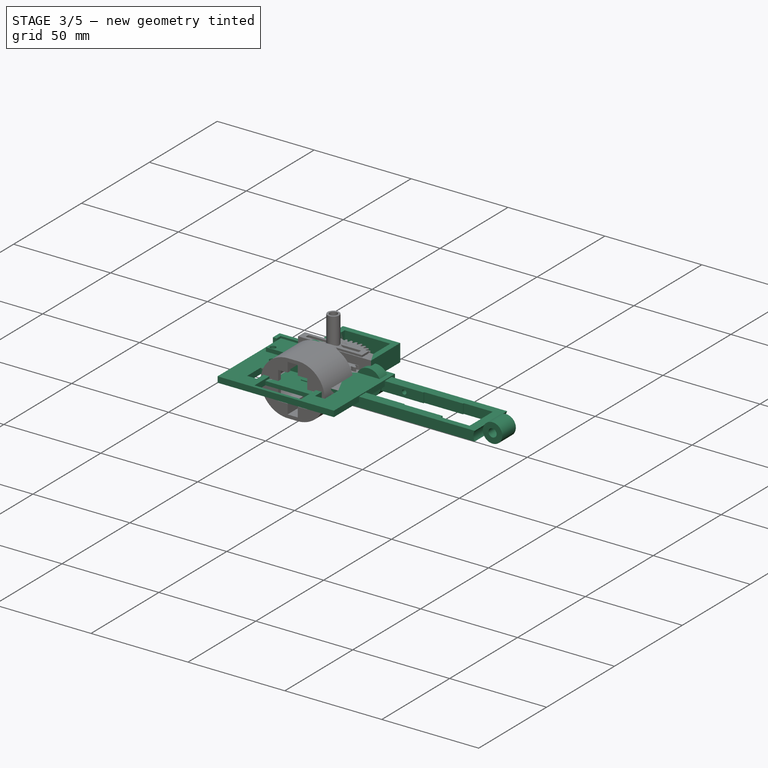
[diagram: stage 3 of 5 — iso view after this stage's code; geometry added in this stage tinted green]
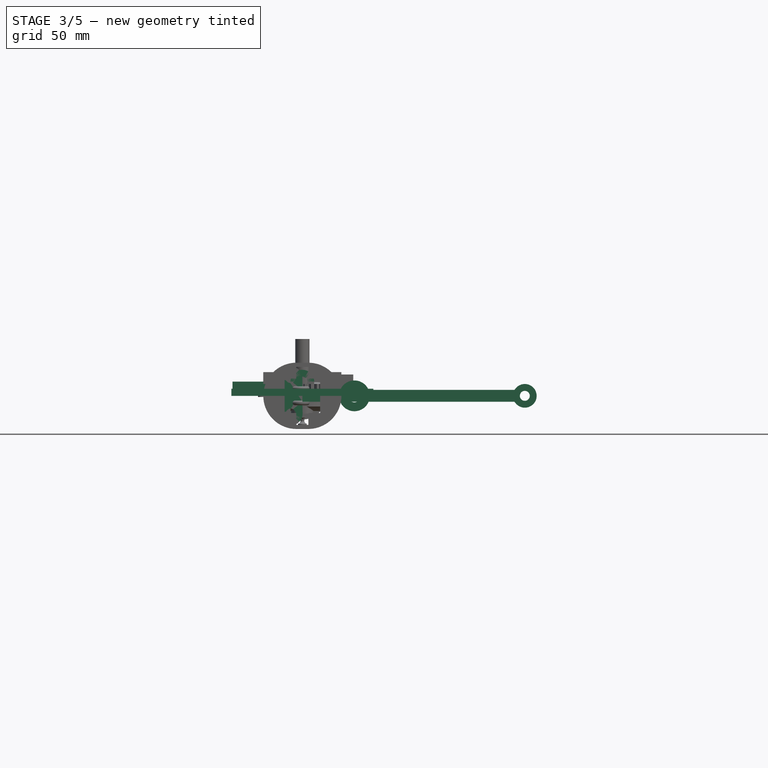
[diagram: stage 3 of 5 — front view after this stage's code; geometry added in this stage tinted green]
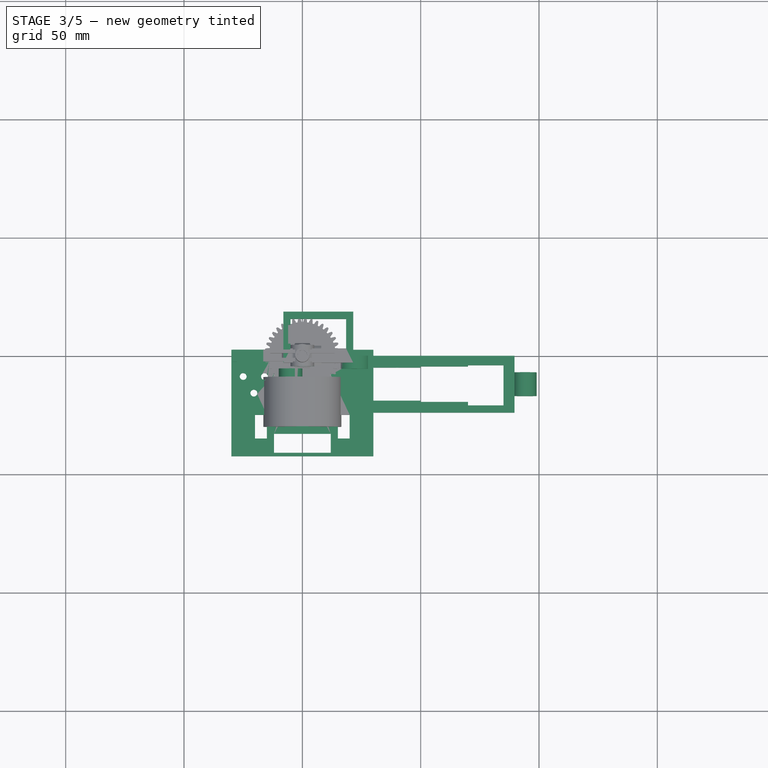
[diagram: stage 3 of 5 — top view after this stage's code; geometry added in this stage tinted green]
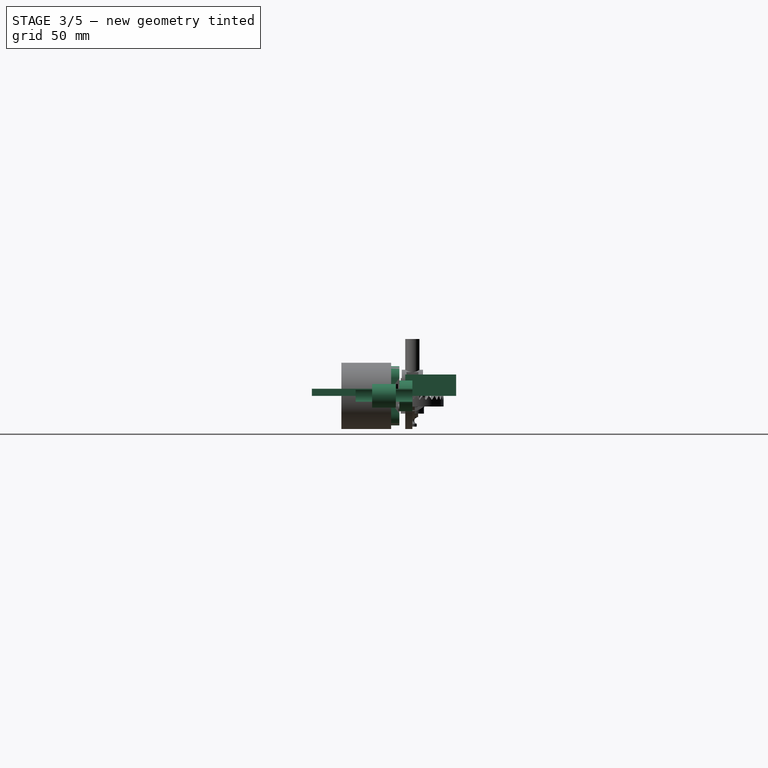
[diagram: stage 3 of 5 — right view after this stage's code; geometry added in this stage tinted green]
FEATURE [PartDesign::Body] Body018  label="Body_Rear"
  Group = -> [Sketch211,Sketch213,Sketch210,Sketch212,Sketch215,Sketch214,Sketch217,Sketch216,Sketch220,Sketch219,Sketch218,Sketch222,Sketch223,Pad123,Pad124,Pad122,Pocket078,Pocket079,Pocket074,Pocket077,Pad129,Pad125,Pocket075,Pad127,Pad128,Pocket076,Chamfer001,Chamfer002,Chamfer004,Chamfer003,Sketch224,Sketch221,Pad130,Pad126]
  Origin = -> Origin018
  Placement = pos=(210.2,1.07e-14,0) rot=(0,0,1;1.5708rad)
  Tip = -> Pad126
FEATURE [Sketcher::SketchObject] Sketch225  label="Main003"
  FullyConstrained = true
  MapMode = 5
  Support = -> [XY_Plane019]
  sketch-geometry (6):
    g0: Circle CenterX=-10 CenterY=0 CenterZ=0 NormalX=0 NormalY=0 NormalZ=1 AngleXU=0 Radius=1.52
    g1: Circle CenterX=10 CenterY=0 CenterZ=0 NormalX=0 NormalY=0 NormalZ=1 AngleXU=0 Radius=1.52
    g2: LineSegment StartX=-30 StartY=2.5 StartZ=0 EndX=30 EndY=2.5 EndZ=0
    g3: LineSegment StartX=30 StartY=2.5 StartZ=0 EndX=30 EndY=-42.5 EndZ=0
    g4: LineSegment StartX=30 StartY=-42.5 StartZ=0 EndX=-30 EndY=-42.5 EndZ=0
    g5: LineSegment StartX=-30 StartY=-42.5 StartZ=0 EndX=-30 EndY=2.5 EndZ=0
  constraints (18):
    c: PointOnObject(g0,g-1)
    c: Radius(g0) = 1.52
    c: DistanceX(g0,g-1) = 10
    c: PointOnObject(g1,g-1)
    c: DistanceX(g-1,g1) = 10
    c: Radius(g1) = 1.52
    c: Coincident(g2,g3)
    c: Coincident(g3,g4)
    c: Coincident(g4,g5)
    c: Coincident(g5,g2)
    c: Horizontal(g2)
    c: Horizontal(g4)
    c: Vertical(g3)
    c: Vertical(g5)
    c: DistanceX(g2,g-1) = 30
    c: DistanceX(g2,g2) = 60
    c: DistanceY(g5,g5) = 45
    c: DistanceY(g-1,g2) = 2.5
FEATURE [PartDesign::Pad] Pad131
  Direction = (1,1,1)
  Length = 3
  Length2 = 100
  Profile = -> Sketch225
  Refine = true
  Type = 0
FEATURE [Sketcher::SketchObject] Sketch226  label="MotorDriverPlacer"
  AttachmentOffset = pos=(0,0,3) rot=(0,0,1;0rad)
  FullyConstrained = true
  MapMode = 5
  Placement = pos=(0,0,3) rot=(0,0,1;0rad)
  Support = -> [XY_Plane019]
  sketch-geometry (4):
    g0: LineSegment StartX=-12 StartY=-8 StartZ=0 EndX=12 EndY=-8 EndZ=0
    g1: LineSegment StartX=12 StartY=-8 StartZ=0 EndX=12 EndY=-41 EndZ=0
    g2: LineSegment StartX=12 StartY=-41 StartZ=0 EndX=-12 EndY=-41 EndZ=0
    g3: LineSegment StartX=-12 StartY=-41 StartZ=0 EndX=-12 EndY=-8 EndZ=0
  constraints (12):
    c: Coincident(g0,g1)
    c: Coincident(g1,g2)
    c: Coincident(g2,g3)
    c: Coincident(g3,g0)
    c: Horizontal(g0)
    c: Horizontal(g2)
    c: Vertical(g1)
    c: Vertical(g3)
    c: DistanceX(g0,g0) = 24
    c: DistanceY(g3,g3) = 33
    c: DistanceX(g-1,g0) = 12
    c: DistanceY(g0,g-1) = 8
FEATURE [Sketcher::SketchObject] Sketch227  label="ConnectorHole"
  FullyConstrained = true
  MapMode = 5
  Support = -> [XY_Plane019]
  sketch-geometry (8):
    g0: LineSegment StartX=-15 StartY=-25 StartZ=0 EndX=-20 EndY=-25 EndZ=0
    g1: LineSegment StartX=-20 StartY=-25 StartZ=0 EndX=-20 EndY=-35 EndZ=0
    g2: LineSegment StartX=-20 StartY=-35 StartZ=0 EndX=-15 EndY=-35 EndZ=0
    g3: LineSegment StartX=-15 StartY=-35 StartZ=0 EndX=-15 EndY=-25 EndZ=0
    g4: LineSegment StartX=20 StartY=-25 StartZ=0 EndX=15 EndY=-25 EndZ=0
    g5: LineSegment StartX=15 StartY=-25 StartZ=0 EndX=15 EndY=-35 EndZ=0
    g6: LineSegment StartX=15 StartY=-35 StartZ=0 EndX=20 EndY=-35 EndZ=0
    g7: LineSegment StartX=20 StartY=-35 StartZ=0 EndX=20 EndY=-25 EndZ=0
  constraints (24):
    c: Coincident(g0,g1)
    c: Coincident(g1,g2)
    c: Coincident(g2,g3)
    c: Coincident(g3,g0)
    c: Horizontal(g0)
    c: Horizontal(g2)
    c: Vertical(g1)
    c: Vertical(g3)
    c: Coincident(g4,g5)
    c: Coincident(g5,g6)
    c: Coincident(g6,g7)
    c: Coincident(g7,g4)
    c: Horizontal(g4)
    c: Horizontal(g6)
    c: Vertical(g5)
    c: Vertical(g7)
    c: DistanceX(g4,g4) = 5
    c: DistanceX(g0,g0) = 5
    c: DistanceY(g7,g7) = 10
    c: DistanceY(g1,g1) = 10
    c: DistanceX(g0,g-1) = 15
    c: DistanceX(g-1,g4) = 15
    c: DistanceY(g3,g-1) = 25
    c: DistanceY(g4,g-1) = 25
FEATURE [Sketcher::SketchObject] Sketch228  label="Servo_Bracket"
  FullyConstrained = true
  MapMode = 5
  Support = -> [XY_Plane019]
  sketch-geometry (8):
    g0: LineSegment StartX=-5 StartY=15.5 StartZ=0 EndX=18.5 EndY=15.5 EndZ=0
    g1: LineSegment StartX=18.5 StartY=15.5 StartZ=0 EndX=18.5 EndY=3 EndZ=0
    g2: LineSegment StartX=18.5 StartY=3 StartZ=0 EndX=-5 EndY=3 EndZ=0
    g3: LineSegment StartX=-5 StartY=3 StartZ=0 EndX=-5 EndY=15.5 EndZ=0
    g4: LineSegment StartX=-8 StartY=18.5 StartZ=0 EndX=21.5 EndY=18.5 EndZ=0
    g5: LineSegment StartX=21.5 StartY=18.5 StartZ=0 EndX=21.5 EndY=-3 EndZ=0
    g6: LineSegment StartX=21.5 StartY=-3 StartZ=0 EndX=-8 EndY=-3 EndZ=0
    g7: LineSegment StartX=-8 StartY=-3 StartZ=0 EndX=-8 EndY=18.5 EndZ=0
  constraints (24):
    c: Coincident(g0,g1)
    c: Coincident(g1,g2)
    c: Coincident(g2,g3)
    c: Coincident(g3,g0)
    c: Horizontal(g0)
    c: Horizontal(g2)
    c: Vertical(g1)
    c: Vertical(g3)
    c: Coincident(g4,g5)
    c: Coincident(g5,g6)
    c: Coincident(g6,g7)
    c: Coincident(g7,g4)
    c: Horizontal(g4)
    c: Horizontal(g6)
    c: Vertical(g5)
    c: Vertical(g7)
    c: DistanceX(g0,g0) = 23.5
    c: DistanceY(g1,g1) = 12.5
    c: DistanceY(g-1,g2) = 3
    c: DistanceX(g2,g-1) = 5
    c: DistanceX(g4,g4) = 29.5
    c: DistanceY(g5,g5) = 21.5
    c: DistanceY(g0,g4) = 3
    c: DistanceX(g0,g4) = 3
FEATURE [PartDesign::Pad] Pad132
  BaseFeature = -> Pad131
  Direction = (1,1,1)
  Length = 9
  Length2 = 100
  Profile = -> Sketch228
  Refine = true
  Type = 0
FEATURE [Sketcher::SketchObject] Sketch229  label="Hole2"
  FullyConstrained = true
  MapMode = 5
  Support = -> [XY_Plane019]
  sketch-geometry (2):
    g0: Circle CenterX=10 CenterY=0 CenterZ=0 NormalX=0 NormalY=0 NormalZ=1 AngleXU=0 Radius=1.65
    g1: Circle CenterX=-10 CenterY=0 CenterZ=0 NormalX=0 NormalY=0 NormalZ=1 AngleXU=0 Radius=1.65
  constraints (6):
    c: PointOnObject(g0,g-1)
    c: DistanceX(g-1,g0) = 10
    c: Radius(g0) = 1.65
    c: PointOnObject(g1,g-1)
    c: DistanceX(g1,g-1) = 10
    c: Radius(g1) = 1.65
FEATURE [PartDesign::Pocket] Pocket081  label="Pocket086"
  BaseFeature = -> Pad132
  Length = 5
  Length2 = 100
  Profile = -> Sketch229
  Refine = true
  Reversed = true
  Type = 0
FEATURE [PartDesign::Pocket] Pocket080  label="Pocket085"
  BaseFeature = -> Pocket081
  Length = 6
  Length2 = 100
  Midplane = true
  Profile = -> Sketch227
  Refine = true
  Type = 0
FEATURE [PartDesign::Pocket] Pocket085  label="Pocket090"
  BaseFeature = -> Pocket080
  Length = 1
  Length2 = 100
  Profile = -> Sketch226
  Refine = true
  Type = 0
FEATURE [Sketcher::SketchObject] Sketch230
  FullyConstrained = true
  MapMode = 5
  Support = -> [XY_Plane019]
  sketch-geometry (4):
    g0: LineSegment StartX=2 StartY=13 StartZ=0 EndX=-6 EndY=13 EndZ=0
    g1: LineSegment StartX=-6 StartY=13 StartZ=0 EndX=-6 EndY=5 EndZ=0
    g2: LineSegment StartX=-6 StartY=5 StartZ=0 EndX=2 EndY=5 EndZ=0
    g3: LineSegment StartX=2 StartY=5 StartZ=0 EndX=2 EndY=13 EndZ=0
  constraints (12):
    c: Coincident(g0,g1)
    c: Coincident(g1,g2)
    c: Coincident(g2,g3)
    c: Coincident(g3,g0)
    c: Horizontal(g0)
    c: Horizontal(g2)
    c: Vertical(g1)
    c: Vertical(g3)
    c: DistanceX(g0,g0) = 8
    c: DistanceY(g3,g3) = 8
    c: DistanceX(g-1,g2) = 2
    c: DistanceY(g-1,g2) = 5
FEATURE [PartDesign::Pocket] Pocket086  label="Pocket091"
  BaseFeature = -> Pocket085
  Length = 100
  Length2 = 100
  Profile = -> Sketch230
  Refine = true
  Reversed = true
  Type = 0
FEATURE [Sketcher::SketchObject] Sketch231  label="ConnectorMount"
  AttachmentOffset = pos=(0,0,3) rot=(0,0,1;0rad)
  FullyConstrained = true
  MapMode = 5
  Placement = pos=(0,0,3) rot=(0,0,1;0rad)
  Support = -> [XY_Plane019]
  sketch-geometry (4):
    g0: LineSegment StartX=-14 StartY=0.5 StartZ=0 EndX=-27.5 EndY=0.5 EndZ=0
    g1: LineSegment StartX=-27.5 StartY=0.5 StartZ=0 EndX=-27.5 EndY=-10.5 EndZ=0
    g2: LineSegment StartX=-27.5 StartY=-10.5 StartZ=0 EndX=-14 EndY=-10.5 EndZ=0
    g3: LineSegment StartX=-14 StartY=-10.5 StartZ=0 EndX=-14 EndY=0.5 EndZ=0
  constraints (12):
    c: Coincident(g0,g1)
    c: Coincident(g1,g2)
    c: Coincident(g2,g3)
    c: Coincident(g3,g0)
    c: Horizontal(g0)
    c: Horizontal(g2)
    c: Vertical(g1)
    c: Vertical(g3)
    c: DistanceX(g2,g2) = 13.5
    c: DistanceY(g1,g1) = 11
    c: DistanceX(g0,g-1) = 14
    c: DistanceY(g0,g-1) = -0.5
FEATURE [Sketcher::SketchObject] Sketch232  label="Driver_Holder"
  AttachmentOffset = pos=(0,0,2) rot=(0,0,1;0rad)
  FullyConstrained = true
  MapMode = 5
  Placement = pos=(0,0,2) rot=(0,0,1;0rad)
  Support = -> [XY_Plane019]
  sketch-geometry (4):
    g0: Circle CenterX=-9.25 CenterY=-15 CenterZ=0 NormalX=0 NormalY=0 NormalZ=1 AngleXU=0 Radius=1.2
    g1: Circle CenterX=9.25 CenterY=-15 CenterZ=0 NormalX=0 NormalY=0 NormalZ=1 AngleXU=0 Radius=1.2
    g2: Circle CenterX=9.25 CenterY=-28.5 CenterZ=0 NormalX=0 NormalY=0 NormalZ=1 AngleXU=0 Radius=1.2
    g3: Circle CenterX=-9.25 CenterY=-28.5 CenterZ=0 NormalX=0 NormalY=0 NormalZ=1 AngleXU=0 Radius=1.2
  constraints (12):
    c: Radius(g0) = 1.2
    c: Radius(g1) = 1.2
    c: Radius(g2) = 1.2
    c: Radius(g3) = 1.2
    c: DistanceX(g0,g-1) = 9.25
    c: DistanceX(g0,g1) = 18.5
    c: DistanceX(g3,g2) = 18.5
    c: DistanceY(g3,g2) = 0
    c: DistanceY(g0,g1) = 0
    c: DistanceY(g3,g0) = 13.5
    c: DistanceY(g0,g-1) = 15
    c: DistanceX(g0,g3) = 0
FEATURE [PartDesign::Pocket] Pocket084  label="Pocket089"
  BaseFeature = -> Pocket086
  Length = 5
  Length2 = 100
  Profile = -> Sketch232
  Refine = true
  Type = 0
FEATURE [PartDesign::Pad] Pad134
  BaseFeature = -> Pocket084
  Direction = (1,1,1)
  Length = 2
  Length2 = 100
  Profile = -> Sketch231
  Refine = true
  Type = 0
FEATURE [Sketcher::SketchObject] Sketch233
  AttachmentOffset = pos=(0,0,3) rot=(0,0,1;0rad)
  FullyConstrained = true
  MapMode = 5
  Placement = pos=(0,0,3) rot=(0,0,1;0rad)
  Support = -> [XY_Plane019]
  sketch-geometry (8):
    g0: LineSegment StartX=-29.5 StartY=2.5 StartZ=0 EndX=-12 EndY=2.5 EndZ=0
    g1: LineSegment StartX=-12 StartY=2.5 StartZ=0 EndX=-12 EndY=-2.5 EndZ=0
    g2: LineSegment StartX=-12 StartY=-2.5 StartZ=0 EndX=-14 EndY=-2.5 EndZ=0
    g3: LineSegment StartX=-29.5 StartY=-2.5 StartZ=0 EndX=-29.5 EndY=2.5 EndZ=0
    g4: LineSegment StartX=-14 StartY=-2.5 StartZ=0 EndX=-14 EndY=0.5 EndZ=0
    g5: LineSegment StartX=-14 StartY=0.5 StartZ=0 EndX=-27.5 EndY=0.5 EndZ=0
    g6: LineSegment StartX=-27.5 StartY=0.5 StartZ=0 EndX=-27.5 EndY=-2.5 EndZ=0
    g7: LineSegment StartX=-27.5 StartY=-2.5 StartZ=0 EndX=-29.5 EndY=-2.5 EndZ=0
  constraints (23):
    c: Coincident(g0,g1)
    c: Coincident(g1,g2)
    c: Coincident(g7,g3)
    c: Coincident(g3,g0)
    c: Horizontal(g0)
    c: Horizontal(g2)
    c: Vertical(g1)
    c: Vertical(g3)
    c: Coincident(g4,g5)
    c: Coincident(g5,g6)
    c: Horizontal(g5)
    c: Vertical(g4)
    c: Vertical(g6)
    c: Tangent(g2,g7)
    c: Coincident(g6,g7)
    c: Coincident(g4,g2)
    c: DistanceX(g2,g2) = 2
    c: DistanceX(g7,g7) = 2
    c: DistanceY(g1,g1) = 5
    c: DistanceY(g4,g0) = 2
    c: DistanceX(g0,g-1) = 12
    c: DistanceX(g5,g5) = 13.5
    c: DistanceY(g-1,g0) = 2.5
FEATURE [PartDesign::Pad] Pad133
  BaseFeature = -> Pad134
  Direction = (1,1,1)
  Length = 3
  Length2 = 100
  Profile = -> Sketch233
  Refine = true
  Type = 0
FEATURE [Sketcher::SketchObject] Sketch234  label="ConnectorHole001"
  AttachmentOffset = pos=(0,0,3) rot=(0,0,1;0rad)
  FullyConstrained = true
  MapMode = 5
  Placement = pos=(0,0,3) rot=(0,0,1;0rad)
  Support = -> [XY_Plane019]
  sketch-geometry (3):
    g0: Circle CenterX=-25 CenterY=-8.8 CenterZ=0 NormalX=0 NormalY=0 NormalZ=1 AngleXU=0 Radius=1.45
    g1: Circle CenterX=-16 CenterY=-8.8 CenterZ=0 NormalX=0 NormalY=0 NormalZ=1 AngleXU=0 Radius=1.45
    g2: Circle CenterX=-20.5 CenterY=-15.8 CenterZ=0 NormalX=0 NormalY=0 NormalZ=1 AngleXU=0 Radius=1.45
  constraints (9):
    c: Radius(g1) = 1.45
    c: Radius(g0) = 1.45
    c: DistanceX(g0,g1) = 9
    c: DistanceX(g1,g-1) = 16
    c: DistanceY(g1,g-1) = 8.8
    c: DistanceY(g1,g0) = 0
    c: Radius(g2) = 1.45
    c: DistanceY(g2,g1) = 7
    c: DistanceX(g2,g1) = 4.5
FEATURE [PartDesign::Pocket] Pocket082  label="Pocket087"
  BaseFeature = -> Pad133
  Length = 10
  Length2 = 100
  Midplane = true
  Profile = -> Sketch234
  Refine = true
  Type = 0
FEATURE [Sketcher::SketchObject] Sketch235  label="Pin"
  AttachmentOffset = pos=(0,0,3) rot=(0,0,1;0rad)
  FullyConstrained = true
  MapMode = 5
  Placement = pos=(0,0,3) rot=(0,0,1;0rad)
  Support = -> [XY_Plane019]
  sketch-geometry (8):
    g0: LineSegment StartX=-12 StartY=-33 StartZ=0 EndX=12 EndY=-33 EndZ=0
    g1: LineSegment StartX=12 StartY=-33 StartZ=0 EndX=12 EndY=-41 EndZ=0
    g2: LineSegment StartX=12 StartY=-41 StartZ=0 EndX=-12 EndY=-41 EndZ=0
    g3: LineSegment StartX=-12 StartY=-41 StartZ=0 EndX=-12 EndY=-33 EndZ=0
    g4: LineSegment StartX=-12 StartY=-8 StartZ=0 EndX=12 EndY=-8 EndZ=0
    g5: LineSegment StartX=12 StartY=-8 StartZ=0 EndX=12 EndY=-12 EndZ=0
    g6: LineSegment StartX=12 StartY=-12 StartZ=0 EndX=-12 EndY=-12 EndZ=0
    g7: LineSegment StartX=-12 StartY=-12 StartZ=0 EndX=-12 EndY=-8 EndZ=0
  constraints (24):
    c: Coincident(g0,g1)
    c: Coincident(g1,g2)
    c: Coincident(g2,g3)
    c: Coincident(g3,g0)
    c: Horizontal(g0)
    c: Horizontal(g2)
    c: Vertical(g1)
    c: Vertical(g3)
    c: DistanceX(g0,g0) = 24
    c: DistanceY(g1,g1) = 8
    c: DistanceX(g0,g-1) = 12
    c: DistanceY(g0,g-1) = 33
    c: Coincident(g4,g5)
    c: Coincident(g5,g6)
    c: Coincident(g6,g7)
    c: Coincident(g7,g4)
    c: Horizontal(g4)
    c: Horizontal(g6)
    c: Vertical(g5)
    c: Vertical(g7)
    c: DistanceX(g4,g4) = 24
    c: DistanceY(g5,g5) = 4
    c: DistanceX(g4,g-1) = 12
    c: DistanceY(g4,g-1) = 8
FEATURE [PartDesign::Pocket] Pocket083  label="Pocket088"
  BaseFeature = -> Pocket082
  Length = 5
  Length2 = 100
  Profile = -> Sketch235
  Refine = true
  Type = 0
FEATURE [PartDesign::Body] Body019  label="Body_PCD_Holder"
  Group = -> [Sketch225,Sketch229,Sketch228,Pad131,Pad132,Pocket081,Sketch226,Sketch227,Pocket080,Pocket085,Sketch232,Sketch230,Pocket086,Pocket084,Sketch231,Sketch234,Sketch233,Pad134,Pad133,Pocket082,Sketch235,Pocket083,Chamfer005]
  Origin = -> Origin019
  Placement = pos=(107.6,2.39e-14,29.9) rot=(0,0,1;1.5708rad)
  Tip = -> Chamfer005
FEATURE [Sketcher::SketchObject] Sketch236
  AttachmentOffset = pos=(0,0,30) rot=(0,0,1;0rad)
  FullyConstrained = true
  MapMode = 5
  Placement = pos=(0,0,30) rot=(0,0,1;0rad)
  Support = -> [XY_Plane020]
  sketch-geometry (4):
    g0: LineSegment StartX=-30 StartY=-12 StartZ=0 EndX=70 EndY=-12 EndZ=0
    g1: LineSegment StartX=70 StartY=-12 StartZ=0 EndX=90 EndY=-24 EndZ=0
    g2: LineSegment StartX=90 StartY=-24 StartZ=0 EndX=-30 EndY=-24 EndZ=0
    g3: LineSegment StartX=-30 StartY=-24 StartZ=0 EndX=-30 EndY=-12 EndZ=0
  constraints (12):
    c: Horizontal(g0)
    c: Coincident(g0,g1)
    c: Coincident(g1,g2)
    c: Horizontal(g2)
    c: Coincident(g2,g3)
    c: Coincident(g3,g0)
    c: Vertical(g3)
    c: DistanceY(g0,g-1) = 12
    c: DistanceX(g0,g-1) = 30
    c: DistanceX(g0,g0) = 100
    c: DistanceY(g3,g3) = 12
    c: DistanceX(g0,g1) = 20
FEATURE [Sketcher::SketchObject] Sketch237  label="Main004"
  FullyConstrained = true
  MapMode = 5
  Support = -> [XY_Plane020]
  sketch-geometry (8):
    g0: LineSegment StartX=0 StartY=0 StartZ=0 EndX=90 EndY=0 EndZ=0
    g1: LineSegment StartX=90 StartY=0 StartZ=0 EndX=90 EndY=-24 EndZ=0
    g2: LineSegment StartX=90 StartY=-24 StartZ=0 EndX=0 EndY=-24 EndZ=0
    g3: LineSegment StartX=0 StartY=-24 StartZ=0 EndX=0 EndY=0 EndZ=0
    g4: LineSegment StartX=5 StartY=-5 StartZ=0 EndX=85 EndY=-5 EndZ=0
    g5: LineSegment StartX=85 StartY=-5 StartZ=0 EndX=85 EndY=-19 EndZ=0
    g6: LineSegment StartX=85 StartY=-19 StartZ=0 EndX=5 EndY=-19 EndZ=0
    g7: LineSegment StartX=5 StartY=-19 StartZ=0 EndX=5 EndY=-5 EndZ=0
  constraints (24):
    c: Coincident(g0,g1)
    c: Coincident(g1,g2)
    c: Coincident(g2,g3)
    c: Coincident(g3,g0)
    c: Horizontal(g0)
    c: Horizontal(g2)
    c: Vertical(g1)
    c: Vertical(g3)
    c: PointOnObject(g0,g-2)
    c: DistanceY(g-1,g0) = 0
    c: DistanceY(g2,g0) = 24
    c: DistanceX(g0,g0) = 90
    c: Coincident(g4,g5)
    c: Coincident(g5,g6)
    c: Coincident(g6,g7)
    c: Coincident(g7,g4)
    c: Horizontal(g4)
    c: Horizontal(g6)
    c: Vertical(g5)
    c: Vertical(g7)
    c: DistanceX(g0,g4) = 5
    c: DistanceY(g4,g0) = 5
    c: DistanceY(g2,g6) = 5
    c: DistanceX(g5,g1) = 5
FEATURE [Sketcher::SketchObject] Sketch238  label="Hook"
  AttachmentOffset = pos=(-1,0,12) rot=(0,0,1;0rad)
  FullyConstrained = true
  MapMode = 5
  Placement = pos=(-1,-12,-2.7e-15) rot=(1,0,0;1.5708rad)
  Support = -> [XZ_Plane020]
  sketch-geometry (2):
    g0: Circle CenterX=95 CenterY=0 CenterZ=0 NormalX=0 NormalY=0 NormalZ=1 AngleXU=0 Radius=2.1
    g1: Circle CenterX=95 CenterY=0 CenterZ=0 NormalX=0 NormalY=0 NormalZ=1 AngleXU=0 Radius=5
  constraints (5):
    c: PointOnObject(g0,g-1)
    c: Radius(g0) = 2.1
    c: DistanceX(g-1,g0) = 95
    c: Coincident(g1,g0)
    c: Radius(g1) = 5
FEATURE [Sketcher::SketchObject] Sketch239  label="SuspensionHook"
  AttachmentOffset = pos=(-9.9,0,12) rot=(0,0,1;0rad)
  FullyConstrained = true
  MapMode = 5
  Placement = pos=(-9.9,-12,-2.7e-15) rot=(1,0,0;1.5708rad)
  Support = -> [XZ_Plane020]
  sketch-geometry (5):
    g0: LineSegment StartX=0 StartY=2.5 StartZ=0 EndX=10 EndY=2.5 EndZ=0
    g1: LineSegment StartX=10 StartY=2.5 StartZ=0 EndX=10 EndY=-7.5 EndZ=0
    g2: LineSegment StartX=0 StartY=-7.5 StartZ=0 EndX=0 EndY=2.5 EndZ=0
    g3: Circle CenterX=5 CenterY=-7.5 CenterZ=0 NormalX=0 NormalY=0 NormalZ=1 AngleXU=0 Radius=2.1
    g4: ArcOfCircle CenterX=5 CenterY=-7.5 CenterZ=0 NormalX=0 NormalY=0 NormalZ=1 AngleXU=0 Radius=5 StartAngle=3.14159 EndAngle=6.28319
  constraints (16):
    c: Coincident(g0,g1)
    c: Coincident(g2,g0)
    c: Horizontal(g0)
    c: Vertical(g1)
    c: Vertical(g2)
    c: Radius(g3) = 2.1
    c: DistanceY(g0,g2) = -10
    c: DistanceX(g-1,g0) = 0
    c: DistanceY(g0,g-1) = -2.5
    c: DistanceY(g1,g1) = 10
    c: DistanceY(g3,g0) = 10
    c: Coincident(g4,g3)
    c: PointOnObject(g4,g2)
    c: Coincident(g4,g1)
    c: DistanceX(g0,g0) = 10
    c: DistanceX(g0,g3) = 5
FEATURE [Sketcher::SketchObject] Sketch240  label="WheelConnector"
  FullyConstrained = true
  MapMode = 5
  Placement = pos=(0,0,0) rot=(1,0,0;1.5708rad)
  Support = -> [XZ_Plane020]
  sketch-geometry (2):
    g0: Circle CenterX=22 CenterY=0 CenterZ=0 NormalX=0 NormalY=0 NormalZ=1 AngleXU=0 Radius=6.5
    g1: Circle CenterX=22 CenterY=0 CenterZ=0 NormalX=0 NormalY=0 NormalZ=1 AngleXU=0 Radius=2.75
  constraints (5):
    c: PointOnObject(g0,g-1)
    c: Radius(g0) = 6.5
    c: Coincident(g1,g0)
    c: Radius(g1) = 2.75
    c: DistanceX(g-1,g0) = 22
FEATURE [Sketcher::SketchObject] Sketch241  label="Wheel_Pocket"
  FullyConstrained = true
  MapMode = 5
  Placement = pos=(0,0,0) rot=(1,0,0;1.5708rad)
  Support = -> [XZ_Plane020]
  sketch-geometry (1):
    g0: Circle CenterX=22 CenterY=0 CenterZ=0 NormalX=0 NormalY=0 NormalZ=1 AngleXU=0 Radius=2.75
  constraints (3):
    c: PointOnObject(g0,g-1)
    c: Radius(g0) = 2.75
    c: DistanceX(g-1,g0) = 22
FEATURE [Sketcher::SketchObject] Sketch242
  FullyConstrained = true
  MapMode = 5
  Placement = pos=(0,0,0) rot=(0.57735,0.57735,0.57735;2.0944rad)
  Support = -> [YZ_Plane020]
  sketch-geometry (4):
    g0: LineSegment StartX=-9.4 StartY=-20 StartZ=0 EndX=-14.5 EndY=-20 EndZ=0
    g1: LineSegment StartX=-14.5 StartY=-20 StartZ=0 EndX=-14.5 EndY=-2.5 EndZ=0
    g2: LineSegment StartX=-14.5 StartY=-2.5 StartZ=0 EndX=-9.4 EndY=-2.5 EndZ=0
    g3: LineSegment StartX=-9.4 StartY=-2.5 StartZ=0 EndX=-9.4 EndY=-20 EndZ=0
  constraints (12):
    c: Coincident(g0,g1)
    c: Coincident(g1,g2)
    c: Coincident(g2,g3)
    c: Coincident(g3,g0)
    c: Horizontal(g0)
    c: Horizontal(g2)
    c: Vertical(g1)
    c: Vertical(g3)
    c: DistanceX(g0,g0) = 5.1
    c: DistanceY(g-1,g0) = -20
    c: DistanceY(g-1,g1) = -2.5
    c: DistanceX(g1,g-1) = 14.5
FEATURE [Sketcher::SketchObject] Sketch243
  FullyConstrained = true
  MapMode = 5
  Placement = pos=(0,0,0) rot=(1,0,0;1.5708rad)
  Support = -> [XZ_Plane020]
  sketch-geometry (1):
    g0: Circle CenterX=94 CenterY=0 CenterZ=0 NormalX=0 NormalY=0 NormalZ=1 AngleXU=0 Radius=5
  constraints (3):
    c: PointOnObject(g0,g-1)
    c: Radius(g0) = 5
    c: DistanceX(g-1,g0) = 94
FEATURE [Sketcher::SketchObject] Sketch244  label="Rod_Placer"
  AttachmentOffset = pos=(0,0,-1) rot=(0,0,1;0rad)
  FullyConstrained = true
  MapMode = 5
  Placement = pos=(0,0,-1) rot=(0,0,1;0rad)
  Support = -> [XY_Plane020]
  sketch-geometry (4):
    g0: LineSegment StartX=29 StartY=-10 StartZ=0 EndX=31 EndY=-10 EndZ=0
    g1: LineSegment StartX=31 StartY=-10 StartZ=0 EndX=31 EndY=-22 EndZ=0
    g2: LineSegment StartX=31 StartY=-22 StartZ=0 EndX=29 EndY=-22 EndZ=0
    g3: LineSegment StartX=29 StartY=-22 StartZ=0 EndX=29 EndY=-10 EndZ=0
  constraints (12):
    c: Coincident(g0,g1)
    c: Coincident(g1,g2)
    c: Coincident(g2,g3)
    c: Coincident(g3,g0)
    c: Horizontal(g0)
    c: Horizontal(g2)
    c: Vertical(g1)
    c: Vertical(g3)
    c: DistanceX(g-1,g0) = 29
    c: DistanceX(g0,g0) = 2
    c: DistanceY(g0,g-1) = 10
    c: DistanceY(g2,g0) = 12
FEATURE [Sketcher::SketchObject] Sketch245  label="Rod_Placer_wheel"
  FullyConstrained = true
  MapMode = 5
  Placement = pos=(0,0,0) rot=(1,0,0;1.5708rad)
  Support = -> [XZ_Plane020]
  sketch-geometry (1):
    g0: Circle CenterX=22 CenterY=0 CenterZ=0 NormalX=0 NormalY=0 NormalZ=1 AngleXU=0 Radius=1.2
  constraints (3):
    c: DistanceX(g-1,g0) = 22
    c: Radius(g0) = 1.2
    c: DistanceY(g-1,g0) = 0
FEATURE [Sketcher::SketchObject] Sketch246  label="Motor_Pocket"
  FullyConstrained = true
  MapMode = 5
  Support = -> [XY_Plane020]
  sketch-geometry (4):
    g0: LineSegment StartX=50 StartY=-4.5 StartZ=0 EndX=85 EndY=-4.5 EndZ=0
    g1: LineSegment StartX=85 StartY=-4.5 StartZ=0 EndX=85 EndY=-19.5 EndZ=0
    g2: LineSegment StartX=85 StartY=-19.5 StartZ=0 EndX=50 EndY=-19.5 EndZ=0
    g3: LineSegment StartX=50 StartY=-19.5 StartZ=0 EndX=50 EndY=-4.5 EndZ=0
  constraints (12):
    c: Coincident(g0,g1)
    c: Coincident(g1,g2)
    c: Coincident(g2,g3)
    c: Coincident(g3,g0)
    c: Horizontal(g0)
    c: Horizontal(g2)
    c: Vertical(g1)
    c: Vertical(g3)
    c: DistanceX(g-1,g0) = 50
    c: DistanceX(g0,g0) = 35
    c: DistanceY(g-1,g0) = -4.5
    c: DistanceY(g2,g0) = 15
FEATURE [Sketcher::SketchObject] Sketch247
  AttachmentOffset = pos=(0,0,12) rot=(0,0,1;0rad)
  FullyConstrained = true
  MapMode = 5
  Placement = pos=(0,-12,-2.7e-15) rot=(1,0,0;1.5708rad)
  Support = -> [XZ_Plane020]
  sketch-geometry (1):
    g0: Circle CenterX=40 CenterY=0 CenterZ=0 NormalX=0 NormalY=0 NormalZ=1 AngleXU=0 Radius=1.15
  constraints (3):
    c: Radius(g0) = 1.15
    c: DistanceX(g-1,g0) = 40
    c: DistanceY(g-1,g0) = 0
FEATURE [Sketcher::SketchObject] Sketch248  label="MotorPlacer"
  FullyConstrained = true
  MapMode = 5
  Support = -> [XY_Plane020]
  sketch-geometry (4):
    g0: LineSegment StartX=70 StartY=-21 StartZ=0 EndX=85 EndY=-21 EndZ=0
    g1: LineSegment StartX=85 StartY=-21 StartZ=0 EndX=85 EndY=-4 EndZ=0
    g2: LineSegment StartX=85 StartY=-4 StartZ=0 EndX=70 EndY=-4 EndZ=0
    g3: LineSegment StartX=70 StartY=-4 StartZ=0 EndX=70 EndY=-21 EndZ=0
  constraints (12):
    c: Coincident(g0,g1)
    c: Coincident(g1,g2)
    c: Coincident(g2,g3)
    c: Coincident(g3,g0)
    c: Horizontal(g0)
    c: Horizontal(g2)
    c: Vertical(g1)
    c: Vertical(g3)
    c: DistanceX(g-1,g0) = 70
    c: DistanceX(g0,g0) = 15
    c: DistanceY(g-1,g0) = -21
    c: DistanceY(g0,g1) = 17
FEATURE [PartDesign::Pad] Pad135
  Direction = (1,1,1)
  Length = 5
  Length2 = 100
  Midplane = true
  Profile = -> Sketch237
  Refine = true
  Type = 0
FEATURE [PartDesign::Pad] Pad136
  BaseFeature = -> Pad135
  Direction = (1,1,1)
  Length = 5.5
  Length2 = 100
  Profile = -> Sketch240
  Refine = true
  Type = 0
FEATURE [PartDesign::Pocket] Pocket091  label="Pocket096"
  BaseFeature = -> Pad136
  Length = 10
  Length2 = 100
  Midplane = true
  Profile = -> Sketch241
  Refine = true
  Type = 0
FEATURE [PartDesign::Pocket] Pocket089  label="Pocket094"
  BaseFeature = -> Pocket091
  Length = 100
  Length2 = 100
  Midplane = true
  Profile = -> Sketch243
  Refine = true
  Type = 0
FEATURE [PartDesign::Pad] Pad137
  BaseFeature = -> Pocket089
  Direction = (1,1,1)
  Length = 10
  Length2 = 100
  Midplane = true
  Profile = -> Sketch238
  Refine = true
  Type = 0
FEATURE [PartDesign::Pocket] Pocket090  label="Pocket095"
  BaseFeature = -> Pad137
  Length = 5
  Length2 = 100
  Midplane = true
  Profile = -> Sketch248
  Refine = true
  Type = 0
FEATURE [PartDesign::Pocket] Pocket092  label="Pocket097"
  BaseFeature = -> Pocket090
  Length = 21
  Length2 = 100
  Profile = -> Sketch245
  Refine = true
  Reversed = true
  Type = 0
FEATURE [PartDesign::Pocket] Pocket087  label="Pocket092"
  BaseFeature = -> Pocket092
  Length = 19
  Length2 = 100
  Midplane = true
  Profile = -> Sketch247
  Refine = true
  Type = 0
FEATURE [PartDesign::Pocket] Pocket093  label="Pocket098"
  BaseFeature = -> Pocket087
  Length = 20
  Length2 = 100
  Midplane = true
  Profile = -> Sketch246
  Refine = true
  Type = 0
FEATURE [PartDesign::Pad] Pad138
  BaseFeature = -> Pocket093
  Direction = (1,1,1)
  Length = 13
  Length2 = 100
  Midplane = true
  Profile = -> Sketch239
  Refine = true
  Type = 0
FEATURE [PartDesign::Pocket] Pocket088  label="Pocket093"
  BaseFeature = -> Pad138
  Length = 50
  Length2 = 100
  Midplane = true
  Profile = -> Sketch242
  Refine = true
  Type = 0
FEATURE [PartDesign::Pocket] Pocket094  label="Pocket099"
  BaseFeature = -> Pocket088
  Length = 100
  Length2 = 100
  Profile = -> Sketch236
  Refine = true
  Type = 0
FEATURE [PartDesign::Body] Body020  label="Rear_Right_Arm1"
  Group = -> [Sketch237,Sketch239,Sketch238,Sketch240,Sketch241,Pad135,Sketch242,Pad136,Pocket091,Sketch243,Pocket089,Pad137,Sketch244,Sketch248,Pocket090,Sketch246,Sketch245,Pocket092,Sketch247,Pocket087,Pocket093,Sketch236,Pad138,Pocket088,Pocket094]
  Origin = -> Origin020
  Placement = pos=(203.419,60.3,-11.7879) rot=(0,1,0;3.49066rad)
  Tip = -> Pocket094
FEATURE [Sketcher::SketchObject] Sketch249  label="Main005"
  FullyConstrained = true
  MapMode = 5
  Support = -> [XY_Plane021]
  sketch-geometry (8):
    g0: LineSegment StartX=0 StartY=0 StartZ=0 EndX=90 EndY=0 EndZ=0
    g1: LineSegment StartX=90 StartY=0 StartZ=0 EndX=90 EndY=-24 EndZ=0
    g2: LineSegment StartX=90 StartY=-24 StartZ=0 EndX=0 EndY=-24 EndZ=0
    g3: LineSegment StartX=0 StartY=-24 StartZ=0 EndX=0 EndY=0 EndZ=0
    g4: LineSegment StartX=5 StartY=-5 StartZ=0 EndX=85 EndY=-5 EndZ=0
    g5: LineSegment StartX=85 StartY=-5 StartZ=0 EndX=85 EndY=-19 EndZ=0
    g6: LineSegment StartX=85 StartY=-19 StartZ=0 EndX=5 EndY=-19 EndZ=0
    g7: LineSegment StartX=5 StartY=-19 StartZ=0 EndX=5 EndY=-5 EndZ=0
  constraints (24):
    c: Coincident(g0,g1)
    c: Coincident(g1,g2)
    c: Coincident(g2,g3)
    c: Coincident(g3,g0)
    c: Horizontal(g0)
    c: Horizontal(g2)
    c: Vertical(g1)
    c: Vertical(g3)
    c: PointOnObject(g0,g-2)
    c: DistanceY(g-1,g0) = 0
    c: DistanceY(g2,g0) = 24
    c: DistanceX(g0,g0) = 90
    c: Coincident(g4,g5)
    c: Coincident(g5,g6)
    c: Coincident(g6,g7)
    c: Coincident(g7,g4)
    c: Horizontal(g4)
    c: Horizontal(g6)
    c: Vertical(g5)
    c: Vertical(g7)
    c: DistanceX(g0,g4) = 5
    c: DistanceY(g4,g0) = 5
    c: DistanceY(g2,g6) = 5
    c: DistanceX(g5,g1) = 5
FEATURE [Sketcher::SketchObject] Sketch250  label="WheelConnector001"
  FullyConstrained = true
  MapMode = 5
  Placement = pos=(0,0,0) rot=(1,0,0;1.5708rad)
  Support = -> [XZ_Plane021]
  sketch-geometry (2):
    g0: Circle CenterX=25 CenterY=0 CenterZ=0 NormalX=0 NormalY=0 NormalZ=1 AngleXU=0 Radius=6.5
    g1: Circle CenterX=25 CenterY=0 CenterZ=0 NormalX=0 NormalY=0 NormalZ=1 AngleXU=0 Radius=2.75
  constraints (5):
    c: PointOnObject(g0,g-1)
    c: Radius(g0) = 6.5
    c: Coincident(g1,g0)
    c: Radius(g1) = 2.75
    c: DistanceX(g-1,g0) = 25
FEATURE [Sketcher::SketchObject] Sketch251  label="Hook001"
  AttachmentOffset = pos=(-1,0,12) rot=(0,0,1;0rad)
  FullyConstrained = true
  MapMode = 5
  Placement = pos=(-1,-12,-2.7e-15) rot=(1,0,0;1.5708rad)
  Support = -> [XZ_Plane021]
  sketch-geometry (2):
    g0: Circle CenterX=95 CenterY=0 CenterZ=0 NormalX=0 NormalY=0 NormalZ=1 AngleXU=0 Radius=2.1
    g1: Circle CenterX=95 CenterY=0 CenterZ=0 NormalX=0 NormalY=0 NormalZ=1 AngleXU=0 Radius=5
  constraints (5):
    c: PointOnObject(g0,g-1)
    c: Radius(g0) = 2.1
    c: DistanceX(g-1,g0) = 95
    c: Coincident(g1,g0)
    c: Radius(g1) = 5
FEATURE [Sketcher::SketchObject] Sketch252  label="SuspensionHook001"
  AttachmentOffset = pos=(-9.9,0,12) rot=(0,0,1;0rad)
  FullyConstrained = true
  MapMode = 5
  Placement = pos=(-9.9,-12,-2.7e-15) rot=(1,0,0;1.5708rad)
  Support = -> [XZ_Plane021]
  sketch-geometry (5):
    g0: LineSegment StartX=0 StartY=2.5 StartZ=0 EndX=10 EndY=2.5 EndZ=0
    g1: LineSegment StartX=10 StartY=2.5 StartZ=0 EndX=10 EndY=-7.5 EndZ=0
    g2: LineSegment StartX=0 StartY=-7.5 StartZ=0 EndX=0 EndY=2.5 EndZ=0
    g3: Circle CenterX=5 CenterY=-7.5 CenterZ=0 NormalX=0 NormalY=0 NormalZ=1 AngleXU=0 Radius=2.1
    g4: ArcOfCircle CenterX=5 CenterY=-7.5 CenterZ=0 NormalX=0 NormalY=0 NormalZ=1 AngleXU=0 Radius=5 StartAngle=3.14159 EndAngle=6.28319
  constraints (16):
    c: Coincident(g0,g1)
    c: Coincident(g2,g0)
    c: Horizontal(g0)
    c: Vertical(g1)
    c: Vertical(g2)
    c: Radius(g3) = 2.1
    c: DistanceY(g0,g2) = -10
    c: DistanceX(g-1,g0) = 0
    c: DistanceY(g0,g-1) = -2.5
    c: DistanceY(g1,g1) = 10
    c: DistanceY(g3,g0) = 10
    c: Coincident(g4,g3)
    c: PointOnObject(g4,g2)
    c: Coincident(g4,g1)
    c: DistanceX(g0,g0) = 10
    c: DistanceX(g0,g3) = 5
FEATURE [Sketcher::SketchObject] Sketch253  label="Wheel_Pocket001"
  FullyConstrained = true
  MapMode = 5
  Placement = pos=(0,0,0) rot=(1,0,0;1.5708rad)
  Support = -> [XZ_Plane021]
  sketch-geometry (1):
    g0: Circle CenterX=22 CenterY=0 CenterZ=0 NormalX=0 NormalY=0 NormalZ=1 AngleXU=0 Radius=2.75
  constraints (3):
    c: PointOnObject(g0,g-1)
    c: Radius(g0) = 2.75
    c: DistanceX(g-1,g0) = 22
FEATURE [Sketcher::SketchObject] Sketch254  label="MotorPlacer001"
  FullyConstrained = true
  MapMode = 5
  Support = -> [XY_Plane021]
  sketch-geometry (4):
    g0: LineSegment StartX=70 StartY=-21 StartZ=0 EndX=85 EndY=-21 EndZ=0
    g1: LineSegment StartX=85 StartY=-21 StartZ=0 EndX=85 EndY=-4 EndZ=0
    g2: LineSegment StartX=85 StartY=-4 StartZ=0 EndX=70 EndY=-4 EndZ=0
    g3: LineSegment StartX=70 StartY=-4 StartZ=0 EndX=70 EndY=-21 EndZ=0
  constraints (12):
    c: Coincident(g0,g1)
    c: Coincident(g1,g2)
    c: Coincident(g2,g3)
    c: Coincident(g3,g0)
    c: Horizontal(g0)
    c: Horizontal(g2)
    c: Vertical(g1)
    c: Vertical(g3)
    c: DistanceX(g-1,g0) = 70
    c: DistanceX(g0,g0) = 15
    c: DistanceY(g-1,g0) = -21
    c: DistanceY(g0,g1) = 17
FEATURE [Sketcher::SketchObject] Sketch255
  FullyConstrained = true
  MapMode = 5
  Placement = pos=(0,0,0) rot=(0.57735,0.57735,0.57735;2.0944rad)
  Support = -> [YZ_Plane021]
  sketch-geometry (4):
    g0: LineSegment StartX=-9.4 StartY=-20 StartZ=0 EndX=-14.5 EndY=-20 EndZ=0
    g1: LineSegment StartX=-14.5 StartY=-20 StartZ=0 EndX=-14.5 EndY=-2.5 EndZ=0
    g2: LineSegment StartX=-14.5 StartY=-2.5 StartZ=0 EndX=-9.4 EndY=-2.5 EndZ=0
    g3: LineSegment StartX=-9.4 StartY=-2.5 StartZ=0 EndX=-9.4 EndY=-20 EndZ=0
  constraints (12):
    c: Coincident(g0,g1)
    c: Coincident(g1,g2)
    c: Coincident(g2,g3)
    c: Coincident(g3,g0)
    c: Horizontal(g0)
    c: Horizontal(g2)
    c: Vertical(g1)
    c: Vertical(g3)
    c: DistanceX(g0,g0) = 5.1
    c: DistanceY(g-1,g0) = -20
    c: DistanceY(g-1,g1) = -2.5
    c: DistanceX(g1,g-1) = 14.5
FEATURE [Sketcher::SketchObject] Sketch256
  FullyConstrained = true
  MapMode = 5
  Placement = pos=(0,0,0) rot=(1,0,0;1.5708rad)
  Support = -> [XZ_Plane021]
  sketch-geometry (1):
    g0: Circle CenterX=94 CenterY=0 CenterZ=0 NormalX=0 NormalY=0 NormalZ=1 AngleXU=0 Radius=5
  constraints (3):
    c: PointOnObject(g0,g-1)
    c: Radius(g0) = 5
    c: DistanceX(g-1,g0) = 94
FEATURE [Sketcher::SketchObject] Sketch257  label="Rod_Placer001"
  AttachmentOffset = pos=(0,0,-1) rot=(0,0,1;0rad)
  FullyConstrained = true
  MapMode = 5
  Placement = pos=(0,0,-1) rot=(0,0,1;0rad)
  Support = -> [XY_Plane021]
  sketch-geometry (4):
    g0: LineSegment StartX=29 StartY=-10 StartZ=0 EndX=31 EndY=-10 EndZ=0
    g1: LineSegment StartX=31 StartY=-10 StartZ=0 EndX=31 EndY=-22 EndZ=0
    g2: LineSegment StartX=31 StartY=-22 StartZ=0 EndX=29 EndY=-22 EndZ=0
    g3: LineSegment StartX=29 StartY=-22 StartZ=0 EndX=29 EndY=-10 EndZ=0
  constraints (12):
    c: Coincident(g0,g1)
    c: Coincident(g1,g2)
    c: Coincident(g2,g3)
    c: Coincident(g3,g0)
    c: Horizontal(g0)
    c: Horizontal(g2)
    c: Vertical(g1)
    c: Vertical(g3)
    c: DistanceX(g-1,g0) = 29
    c: DistanceX(g0,g0) = 2
    c: DistanceY(g0,g-1) = 10
    c: DistanceY(g2,g0) = 12
FEATURE [Sketcher::SketchObject] Sketch258  label="Motor_Pocket001"
  FullyConstrained = true
  MapMode = 5
  Support = -> [XY_Plane021]
  sketch-geometry (4):
    g0: LineSegment StartX=50 StartY=-4.5 StartZ=0 EndX=85 EndY=-4.5 EndZ=0
    g1: LineSegment StartX=85 StartY=-4.5 StartZ=0 EndX=85 EndY=-19.5 EndZ=0
    g2: LineSegment StartX=85 StartY=-19.5 StartZ=0 EndX=50 EndY=-19.5 EndZ=0
    g3: LineSegment StartX=50 StartY=-19.5 StartZ=0 EndX=50 EndY=-4.5 EndZ=0
  constraints (12):
    c: Coincident(g0,g1)
    c: Coincident(g1,g2)
    c: Coincident(g2,g3)
    c: Coincident(g3,g0)
    c: Horizontal(g0)
    c: Horizontal(g2)
    c: Vertical(g1)
    c: Vertical(g3)
    c: DistanceX(g-1,g0) = 50
    c: DistanceX(g0,g0) = 35
    c: DistanceY(g-1,g0) = -4.5
    c: DistanceY(g2,g0) = 15
FEATURE [Sketcher::SketchObject] Sketch259  label="Rod_Placer_wheel001"
  FullyConstrained = true
  MapMode = 5
  Placement = pos=(0,0,0) rot=(1,0,0;1.5708rad)
  Support = -> [XZ_Plane021]
  sketch-geometry (1):
    g0: Circle CenterX=22 CenterY=0 CenterZ=0 NormalX=0 NormalY=0 NormalZ=1 AngleXU=0 Radius=1.2
  constraints (3):
    c: DistanceX(g-1,g0) = 22
    c: Radius(g0) = 1.2
    c: DistanceY(g-1,g0) = 0
FEATURE [Sketcher::SketchObject] Sketch260
  AttachmentOffset = pos=(0,0,12) rot=(0,0,1;0rad)
  FullyConstrained = true
  MapMode = 5
  Placement = pos=(0,-12,-2.7e-15) rot=(1,0,0;1.5708rad)
  Support = -> [XZ_Plane021]
  sketch-geometry (1):
    g0: Circle CenterX=40 CenterY=0 CenterZ=0 NormalX=0 NormalY=0 NormalZ=1 AngleXU=0 Radius=1.15
  constraints (3):
    c: Radius(g0) = 1.15
    c: DistanceX(g-1,g0) = 40
    c: DistanceY(g-1,g0) = 0
FEATURE [Sketcher::SketchObject] Sketch261
  AttachmentOffset = pos=(0,0,30) rot=(0,0,1;0rad)
  FullyConstrained = true
  MapMode = 5
  Placement = pos=(0,0,30) rot=(0,0,1;0rad)
  Support = -> [XY_Plane021]
  sketch-geometry (6):
    g0: LineSegment StartX=-30 StartY=-12 StartZ=0 EndX=70 EndY=-12 EndZ=0
    g1: LineSegment StartX=70 StartY=-12 StartZ=0 EndX=90 EndY=-24 EndZ=0
    g2: LineSegment StartX=-30 StartY=-12 StartZ=0 EndX=-30 EndY=26 EndZ=0
    g3: LineSegment StartX=-30 StartY=26 StartZ=0 EndX=110 EndY=26 EndZ=0
    g4: LineSegment StartX=110 StartY=26 StartZ=0 EndX=110 EndY=-24 EndZ=0
    g5: LineSegment StartX=110 StartY=-24 StartZ=0 EndX=90 EndY=-24 EndZ=0
  constraints (18):
    c: Horizontal(g0)
    c: Coincident(g0,g1)
    c: DistanceY(g0,g-1) = 12
    c: DistanceX(g0,g-1) = 30
    c: DistanceX(g0,g0) = 100
    c: DistanceX(g0,g1) = 20
    c: Coincident(g0,g2)
    c: Vertical(g2)
    c: Coincident(g2,g3)
    c: Horizontal(g3)
    c: Coincident(g3,g4)
    c: Vertical(g4)
    c: Coincident(g4,g5)
    c: Coincident(g5,g1)
    c: Horizontal(g5)
    c: DistanceX(g3,g3) = 140
    c: DistanceY(g4,g4) = 50
    c: DistanceY(g2,g2) = 38
FEATURE [PartDesign::Pad] Pad142
  Direction = (1,1,1)
  Length = 5
  Length2 = 100
  Midplane = true
  Profile = -> Sketch249
  Refine = true
  Type = 0
FEATURE [PartDesign::Pad] Pad141
  BaseFeature = -> Pad142
  Direction = (1,1,1)
  Length = 5.5
  Length2 = 100
  Profile = -> Sketch250
  Refine = true
  Type = 0
FEATURE [PartDesign::Pocket] Pocket098  label="Pocket103"
  BaseFeature = -> Pad141
  Length = 10
  Length2 = 100
  Midplane = true
  Profile = -> Sketch253
  Refine = true
  Type = 0
FEATURE [PartDesign::Pocket] Pocket100  label="Pocket105"
  BaseFeature = -> Pocket098
  Length = 100
  Length2 = 100
  Midplane = true
  Profile = -> Sketch256
  Refine = true
  Type = 0
FEATURE [PartDesign::Pad] Pad140
  BaseFeature = -> Pocket100
  Direction = (1,1,1)
  Length = 10
  Length2 = 100
  Midplane = true
  Profile = -> Sketch251
  Refine = true
  Type = 0
FEATURE [PartDesign::Pocket] Pocket102  label="Pocket107"
  BaseFeature = -> Pad140
  Length = 5
  Length2 = 100
  Midplane = true
  Profile = -> Sketch254
  Refine = true
  Type = 0
FEATURE [PartDesign::Pocket] Pocket095  label="Pocket100"
  BaseFeature = -> Pocket102
  Length = 21
  Length2 = 100
  Profile = -> Sketch259
  Refine = true
  Reversed = true
  Type = 0
FEATURE [PartDesign::Pocket] Pocket099  label="Pocket104"
  BaseFeature = -> Pocket095
  Length = 19
  Length2 = 100
  Midplane = true
  Profile = -> Sketch260
  Refine = true
  Type = 0
FEATURE [PartDesign::Pocket] Pocket101  label="Pocket106"
  BaseFeature = -> Pocket099
  Length = 20
  Length2 = 100
  Midplane = true
  Profile = -> Sketch258
  Refine = true
  Type = 0
FEATURE [PartDesign::Pad] Pad139
  BaseFeature = -> Pocket101
  Direction = (1,1,1)
  Length = 13
  Length2 = 100
  Midplane = true
  Profile = -> Sketch252
  Refine = true
  Type = 0
FEATURE [PartDesign::Pocket] Pocket096  label="Pocket101"
  BaseFeature = -> Pad139
  Length = 50
  Length2 = 100
  Midplane = true
  Profile = -> Sketch255
  Refine = true
  Type = 0
FEATURE [PartDesign::Pocket] Pocket097  label="Pocket102"
  BaseFeature = -> Pocket096
  Length = 100
  Length2 = 100
  Profile = -> Sketch261
  Refine = true
  Type = 0
FEATURE [PartDesign::Body] Body021  label="Rear_Right_Arm2"
  Group = -> [Sketch249,Sketch252,Sketch251,Sketch250,Sketch253,Pad142,Sketch255,Pad141,Pocket098,Sketch256,Pocket100,Pad140,Sketch257,Sketch254,Pocket102,Sketch258,Sketch259,Pocket095,Sketch260,Pocket099,Pocket101,Sketch261,Pad139,Pocket096,Pocket097]
  Origin = -> Origin021
  Placement = pos=(203.383,60.1,-11.2651) rot=(0,-1,0;2.79253rad)
  Tip = -> Pocket097
FEATURE [Sketcher::SketchObject] Sketch262  label="Wheel_Pocket002"
  FullyConstrained = true
  MapMode = 5
  Placement = pos=(0,0,0) rot=(1,0,0;1.5708rad)
  Support = -> [XZ_Plane022]
  sketch-geometry (1):
    g0: Circle CenterX=22 CenterY=0 CenterZ=0 NormalX=0 NormalY=0 NormalZ=1 AngleXU=0 Radius=2.75
  constraints (3):
    c: PointOnObject(g0,g-1)
    c: Radius(g0) = 2.75
    c: DistanceX(g-1,g0) = 22
FEATURE [Sketcher::SketchObject] Sketch263  label="MotorPlacer002"
  FullyConstrained = true
  MapMode = 5
  Support = -> [XY_Plane022]
  sketch-geometry (4):
    g0: LineSegment StartX=70 StartY=-21 StartZ=0 EndX=85 EndY=-21 EndZ=0
    g1: LineSegment StartX=85 StartY=-21 StartZ=0 EndX=85 EndY=-4 EndZ=0
    g2: LineSegment StartX=85 StartY=-4 StartZ=0 EndX=70 EndY=-4 EndZ=0
    g3: LineSegment StartX=70 StartY=-4 StartZ=0 EndX=70 EndY=-21 EndZ=0
  constraints (12):
    c: Coincident(g0,g1)
    c: Coincident(g1,g2)
    c: Coincident(g2,g3)
    c: Coincident(g3,g0)
    c: Horizontal(g0)
    c: Horizontal(g2)
    c: Vertical(g1)
    c: Vertical(g3)
    c: DistanceX(g-1,g0) = 70
    c: DistanceX(g0,g0) = 15
    c: DistanceY(g-1,g0) = -21
    c: DistanceY(g0,g1) = 17
FEATURE [Sketcher::SketchObject] Sketch264
  FullyConstrained = true
  MapMode = 5
  Placement = pos=(0,0,0) rot=(0.57735,0.57735,0.57735;2.0944rad)
  Support = -> [YZ_Plane022]
  sketch-geometry (4):
    g0: LineSegment StartX=-9.4 StartY=20 StartZ=0 EndX=-14.5 EndY=20 EndZ=0
    g1: LineSegment StartX=-14.5 StartY=20 StartZ=0 EndX=-14.5 EndY=2.5 EndZ=0
    g2: LineSegment StartX=-14.5 StartY=2.5 StartZ=0 EndX=-9.4 EndY=2.5 EndZ=0
    g3: LineSegment StartX=-9.4 StartY=2.5 StartZ=0 EndX=-9.4 EndY=20 EndZ=0
  constraints (12):
    c: Coincident(g0,g1)
    c: Coincident(g1,g2)
    c: Coincident(g2,g3)
    c: Coincident(g3,g0)
    c: Horizontal(g0)
    c: Horizontal(g2)
    c: Vertical(g1)
    c: Vertical(g3)
    c: DistanceX(g0,g0) = 5.1
    c: DistanceY(g-1,g0) = 20
    c: DistanceY(g-1,g1) = 2.5
    c: DistanceX(g1,g-1) = 14.5
FEATURE [Sketcher::SketchObject] Sketch265  label="Rod_Placer002"
  AttachmentOffset = pos=(0,0,-1) rot=(0,0,1;0rad)
  FullyConstrained = true
  MapMode = 5
  Placement = pos=(0,0,-1) rot=(0,0,1;0rad)
  Support = -> [XY_Plane022]
  sketch-geometry (4):
    g0: LineSegment StartX=29 StartY=-10 StartZ=0 EndX=31 EndY=-10 EndZ=0
    g1: LineSegment StartX=31 StartY=-10 StartZ=0 EndX=31 EndY=-22 EndZ=0
    g2: LineSegment StartX=31 StartY=-22 StartZ=0 EndX=29 EndY=-22 EndZ=0
    g3: LineSegment StartX=29 StartY=-22 StartZ=0 EndX=29 EndY=-10 EndZ=0
  constraints (12):
    c: Coincident(g0,g1)
    c: Coincident(g1,g2)
    c: Coincident(g2,g3)
    c: Coincident(g3,g0)
    c: Horizontal(g0)
    c: Horizontal(g2)
    c: Vertical(g1)
    c: Vertical(g3)
    c: DistanceX(g-1,g0) = 29
    c: DistanceX(g0,g0) = 2
    c: DistanceY(g0,g-1) = 10
    c: DistanceY(g2,g0) = 12
FEATURE [Sketcher::SketchObject] Sketch266
  FullyConstrained = true
  MapMode = 5
  Placement = pos=(0,0,0) rot=(1,0,0;1.5708rad)
  Support = -> [XZ_Plane022]
  sketch-geometry (1):
    g0: Circle CenterX=94 CenterY=0 CenterZ=0 NormalX=0 NormalY=0 NormalZ=1 AngleXU=0 Radius=5
  constraints (3):
    c: PointOnObject(g0,g-1)
    c: Radius(g0) = 5
    c: DistanceX(g-1,g0) = 94
FEATURE [Sketcher::SketchObject] Sketch267  label="Motor_Pocket002"
  FullyConstrained = true
  MapMode = 5
  Support = -> [XY_Plane022]
  sketch-geometry (4):
    g0: LineSegment StartX=50 StartY=-4.5 StartZ=0 EndX=85 EndY=-4.5 EndZ=0
    g1: LineSegment StartX=85 StartY=-4.5 StartZ=0 EndX=85 EndY=-19.5 EndZ=0
    g2: LineSegment StartX=85 StartY=-19.5 StartZ=0 EndX=50 EndY=-19.5 EndZ=0
    g3: LineSegment StartX=50 StartY=-19.5 StartZ=0 EndX=50 EndY=-4.5 EndZ=0
  constraints (12):
    c: Coincident(g0,g1)
    c: Coincident(g1,g2)
    c: Coincident(g2,g3)
    c: Coincident(g3,g0)
    c: Horizontal(g0)
    c: Horizontal(g2)
    c: Vertical(g1)
    c: Vertical(g3)
    c: DistanceX(g-1,g0) = 50
    c: DistanceX(g0,g0) = 35
    c: DistanceY(g-1,g0) = -4.5
    c: DistanceY(g2,g0) = 15
FEATURE [Sketcher::SketchObject] Sketch268  label="Rod_Placer_wheel002"
  FullyConstrained = true
  MapMode = 5
  Placement = pos=(0,0,0) rot=(1,0,0;1.5708rad)
  Support = -> [XZ_Plane022]
  sketch-geometry (1):
    g0: Circle CenterX=22 CenterY=0 CenterZ=0 NormalX=0 NormalY=0 NormalZ=1 AngleXU=0 Radius=1.2
  constraints (3):
    c: DistanceX(g-1,g0) = 22
    c: Radius(g0) = 1.2
    c: DistanceY(g-1,g0) = 0
FEATURE [Sketcher::SketchObject] Sketch269
  AttachmentOffset = pos=(0,0,12) rot=(0,0,1;0rad)
  FullyConstrained = true
  MapMode = 5
  Placement = pos=(0,-12,-2.7e-15) rot=(1,0,0;1.5708rad)
  Support = -> [XZ_Plane022]
  sketch-geometry (1):
    g0: Circle CenterX=40 CenterY=0 CenterZ=0 NormalX=0 NormalY=0 NormalZ=1 AngleXU=0 Radius=1.15
  constraints (3):
    c: Radius(g0) = 1.15
    c: DistanceX(g-1,g0) = 40
    c: DistanceY(g-1,g0) = 0
FEATURE [Sketcher::SketchObject] Sketch270  label="Half_Slicer"
  AttachmentOffset = pos=(0,0,20) rot=(0,0,1;0rad)
  FullyConstrained = true
  MapMode = 5
  Placement = pos=(0,0,20) rot=(0,0,1;0rad)
  Support = -> [XY_Plane022]
  sketch-geometry (6):
    g0: LineSegment StartX=-30 StartY=-12 StartZ=0 EndX=70 EndY=-12 EndZ=0
    g1: LineSegment StartX=70 StartY=-12 StartZ=0 EndX=90 EndY=-24 EndZ=0
    g2: LineSegment StartX=-30 StartY=-12 StartZ=0 EndX=-30 EndY=38 EndZ=0
    g3: LineSegment StartX=-30 StartY=38 StartZ=0 EndX=120 EndY=38 EndZ=0
    g4: LineSegment StartX=120 StartY=38 StartZ=0 EndX=120 EndY=-24 EndZ=0
    g5: LineSegment StartX=120 StartY=-24 StartZ=0 EndX=90 EndY=-24 EndZ=0
  constraints (18):
    c: Horizontal(g0)
    c: Coincident(g0,g1)
    c: DistanceY(g0,g-1) = 12
    c: DistanceX(g0,g-1) = 30
    c: DistanceX(g0,g0) = 100
    c: DistanceX(g0,g1) = 20
    c: Coincident(g0,g2)
    c: Vertical(g2)
    c: Coincident(g2,g3)
    c: Horizontal(g3)
    c: DistanceY(g2,g2) = 50
    c: DistanceY(g1,g3) = 62
    c: DistanceX(g3,g3) = 150
    c: Coincident(g3,g4)
    c: Vertical(g4)
    c: Coincident(g4,g5)
    c: Coincident(g5,g1)
    c: Horizontal(g5)
FEATURE [Sketcher::SketchObject] Sketch271  label="SuspensionHook002"
  AttachmentOffset = pos=(-10,0,12) rot=(0,0,1;0rad)
  FullyConstrained = true
  MapMode = 5
  Placement = pos=(-10,-12,-2.7e-15) rot=(1,0,0;1.5708rad)
  Support = -> [XZ_Plane023]
  sketch-geometry (5):
    g0: LineSegment StartX=0 StartY=-2.5 StartZ=0 EndX=10 EndY=-2.5 EndZ=0
    g1: LineSegment StartX=10 StartY=-2.5 StartZ=0 EndX=10 EndY=7.5 EndZ=0
    g2: LineSegment StartX=0 StartY=7.5 StartZ=0 EndX=0 EndY=-2.5 EndZ=0
    g3: Circle CenterX=5 CenterY=7.5 CenterZ=0 NormalX=0 NormalY=0 NormalZ=1 AngleXU=0 Radius=2.1
    g4: ArcOfCircle CenterX=5 CenterY=7.5 CenterZ=0 NormalX=0 NormalY=0 NormalZ=1 AngleXU=0 Radius=5 StartAngle=0 EndAngle=3.14159
  constraints (15):
    c: Coincident(g0,g1)
    c: Coincident(g2,g0)
    c: Horizontal(g0)
    c: Vertical(g1)
    c: Vertical(g2)
    c: Radius(g3) = 2.1
    c: DistanceY(g0,g3) = 10
    c: Coincident(g4,g3)
    c: Radius(g4) = 5
    c: Coincident(g1,g4)
    c: Coincident(g2,g4)
    c: DistanceY(g0,g2) = 10
    c: DistanceX(g-1,g0) = 0
    c: DistanceY(g0,g-1) = 2.5
    c: DistanceY(g0,g1) = 10
FEATURE [Sketcher::SketchObject] Sketch272  label="Main006"
  FullyConstrained = true
  MapMode = 5
  Support = -> [XY_Plane023]
  sketch-geometry (8):
    g0: LineSegment StartX=0 StartY=0 StartZ=0 EndX=90 EndY=0 EndZ=0
    g1: LineSegment StartX=90 StartY=0 StartZ=0 EndX=90 EndY=-24 EndZ=0
    g2: LineSegment StartX=90 StartY=-24 StartZ=0 EndX=0 EndY=-24 EndZ=0
    g3: LineSegment StartX=0 StartY=-24 StartZ=0 EndX=0 EndY=0 EndZ=0
    g4: LineSegment StartX=5 StartY=-5 StartZ=0 EndX=85 EndY=-5 EndZ=0
    g5: LineSegment StartX=85 StartY=-5 StartZ=0 EndX=85 EndY=-19 EndZ=0
    g6: LineSegment StartX=85 StartY=-19 StartZ=0 EndX=5 EndY=-19 EndZ=0
    g7: LineSegment StartX=5 StartY=-19 StartZ=0 EndX=5 EndY=-5 EndZ=0
  constraints (24):
    c: Coincident(g0,g1)
    c: Coincident(g1,g2)
    c: Coincident(g2,g3)
    c: Coincident(g3,g0)
    c: Horizontal(g0)
    c: Horizontal(g2)
    c: Vertical(g1)
    c: Vertical(g3)
    c: PointOnObject(g0,g-2)
    c: DistanceY(g-1,g0) = 0
    c: DistanceY(g2,g0) = 24
    c: DistanceX(g0,g0) = 90
    c: Coincident(g4,g5)
    c: Coincident(g5,g6)
    c: Coincident(g6,g7)
    c: Coincident(g7,g4)
    c: Horizontal(g4)
    c: Horizontal(g6)
    c: Vertical(g5)
    c: Vertical(g7)
    c: DistanceX(g0,g4) = 5
    c: DistanceY(g4,g0) = 5
    c: DistanceY(g2,g6) = 5
    c: DistanceX(g5,g1) = 5
FEATURE [Sketcher::SketchObject] Sketch273  label="WheelConnector002"
  FullyConstrained = true
  MapMode = 5
  Placement = pos=(0,0,0) rot=(1,0,0;1.5708rad)
  Support = -> [XZ_Plane023]
  sketch-geometry (2):
    g0: Circle CenterX=22 CenterY=0 CenterZ=0 NormalX=0 NormalY=0 NormalZ=1 AngleXU=0 Radius=6.5
    g1: Circle CenterX=22 CenterY=0 CenterZ=0 NormalX=0 NormalY=0 NormalZ=1 AngleXU=0 Radius=2.75
  constraints (5):
    c: PointOnObject(g0,g-1)
    c: Radius(g0) = 6.5
    c: Coincident(g1,g0)
    c: Radius(g1) = 2.75
    c: DistanceX(g-1,g0) = 22
FEATURE [Sketcher::SketchObject] Sketch274  label="Hook002"
  AttachmentOffset = pos=(-1,0,12) rot=(0,0,1;0rad)
  FullyConstrained = true
  MapMode = 5
  Placement = pos=(-1,-12,-2.7e-15) rot=(1,0,0;1.5708rad)
  Support = -> [XZ_Plane023]
  sketch-geometry (2):
    g0: Circle CenterX=95 CenterY=0 CenterZ=0 NormalX=0 NormalY=0 NormalZ=1 AngleXU=0 Radius=2.1
    g1: Circle CenterX=95 CenterY=0 CenterZ=0 NormalX=0 NormalY=0 NormalZ=1 AngleXU=0 Radius=5
  constraints (5):
    c: PointOnObject(g0,g-1)
    c: Radius(g0) = 2.1
    c: DistanceX(g-1,g0) = 95
    c: Coincident(g1,g0)
    c: Radius(g1) = 5
FEATURE [Sketcher::SketchObject] Sketch275
  FullyConstrained = true
  MapMode = 5
  Placement = pos=(0,0,0) rot=(0.57735,0.57735,0.57735;2.0944rad)
  Support = -> [YZ_Plane023]
  sketch-geometry (4):
    g0: LineSegment StartX=-9.4 StartY=20 StartZ=0 EndX=-14.5 EndY=20 EndZ=0
    g1: LineSegment StartX=-14.5 StartY=20 StartZ=0 EndX=-14.5 EndY=2.5 EndZ=0
    g2: LineSegment StartX=-14.5 StartY=2.5 StartZ=0 EndX=-9.4 EndY=2.5 EndZ=0
    g3: LineSegment StartX=-9.4 StartY=2.5 StartZ=0 EndX=-9.4 EndY=20 EndZ=0
  constraints (12):
    c: Coincident(g0,g1)
    c: Coincident(g1,g2)
    c: Coincident(g2,g3)
    c: Coincident(g3,g0)
    c: Horizontal(g0)
    c: Horizontal(g2)
    c: Vertical(g1)
    c: Vertical(g3)
    c: DistanceX(g0,g0) = 5.1
    c: DistanceY(g-1,g0) = 20
    c: DistanceY(g-1,g1) = 2.5
    c: DistanceX(g1,g-1) = 14.5
FEATURE [Sketcher::SketchObject] Sketch276  label="Motor_Pocket003"
  FullyConstrained = true
  MapMode = 5
  Support = -> [XY_Plane023]
  sketch-geometry (4):
    g0: LineSegment StartX=50 StartY=-4.5 StartZ=0 EndX=85 EndY=-4.5 EndZ=0
    g1: LineSegment StartX=85 StartY=-4.5 StartZ=0 EndX=85 EndY=-19.5 EndZ=0
    g2: LineSegment StartX=85 StartY=-19.5 StartZ=0 EndX=50 EndY=-19.5 EndZ=0
    g3: LineSegment StartX=50 StartY=-19.5 StartZ=0 EndX=50 EndY=-4.5 EndZ=0
  constraints (12):
    c: Coincident(g0,g1)
    c: Coincident(g1,g2)
    c: Coincident(g2,g3)
    c: Coincident(g3,g0)
    c: Horizontal(g0)
    c: Horizontal(g2)
    c: Vertical(g1)
    c: Vertical(g3)
    c: DistanceX(g-1,g0) = 50
    c: DistanceX(g0,g0) = 35
    c: DistanceY(g-1,g0) = -4.5
    c: DistanceY(g2,g0) = 15
FEATURE [Sketcher::SketchObject] Sketch277  label="Wheel_Pocket003"
  FullyConstrained = true
  MapMode = 5
  Placement = pos=(0,0,0) rot=(1,0,0;1.5708rad)
  Support = -> [XZ_Plane023]
  sketch-geometry (1):
    g0: Circle CenterX=22 CenterY=0 CenterZ=0 NormalX=0 NormalY=0 NormalZ=1 AngleXU=0 Radius=2.75
  constraints (3):
    c: PointOnObject(g0,g-1)
    c: Radius(g0) = 2.75
    c: DistanceX(g-1,g0) = 22
FEATURE [Sketcher::SketchObject] Sketch278
  FullyConstrained = true
  MapMode = 5
  Placement = pos=(0,0,0) rot=(1,0,0;1.5708rad)
  Support = -> [XZ_Plane023]
  sketch-geometry (1):
    g0: Circle CenterX=94 CenterY=0 CenterZ=0 NormalX=0 NormalY=0 NormalZ=1 AngleXU=0 Radius=5
  constraints (3):
    c: PointOnObject(g0,g-1)
    c: Radius(g0) = 5
    c: DistanceX(g-1,g0) = 94
FEATURE [Sketcher::SketchObject] Sketch279  label="Rod_Placer003"
  AttachmentOffset = pos=(0,0,-1) rot=(0,0,1;0rad)
  FullyConstrained = true
  MapMode = 5
  Placement = pos=(0,0,-1) rot=(0,0,1;0rad)
  Support = -> [XY_Plane023]
  sketch-geometry (4):
    g0: LineSegment StartX=29 StartY=-10 StartZ=0 EndX=31 EndY=-10 EndZ=0
    g1: LineSegment StartX=31 StartY=-10 StartZ=0 EndX=31 EndY=-22 EndZ=0
    g2: LineSegment StartX=31 StartY=-22 StartZ=0 EndX=29 EndY=-22 EndZ=0
    g3: LineSegment StartX=29 StartY=-22 StartZ=0 EndX=29 EndY=-10 EndZ=0
  constraints (12):
    c: Coincident(g0,g1)
    c: Coincident(g1,g2)
    c: Coincident(g2,g3)
    c: Coincident(g3,g0)
    c: Horizontal(g0)
    c: Horizontal(g2)
    c: Vertical(g1)
    c: Vertical(g3)
    c: DistanceX(g-1,g0) = 29
    c: DistanceX(g0,g0) = 2
    c: DistanceY(g0,g-1) = 10
    c: DistanceY(g2,g0) = 12
FEATURE [Sketcher::SketchObject] Sketch280  label="MotorPlacer003"
  FullyConstrained = true
  MapMode = 5
  Support = -> [XY_Plane023]
  sketch-geometry (4):
    g0: LineSegment StartX=70 StartY=-21 StartZ=0 EndX=85 EndY=-21 EndZ=0
    g1: LineSegment StartX=85 StartY=-21 StartZ=0 EndX=85 EndY=-4 EndZ=0
    g2: LineSegment StartX=85 StartY=-4 StartZ=0 EndX=70 EndY=-4 EndZ=0
    g3: LineSegment StartX=70 StartY=-4 StartZ=0 EndX=70 EndY=-21 EndZ=0
  constraints (12):
    c: Coincident(g0,g1)
    c: Coincident(g1,g2)
    c: Coincident(g2,g3)
    c: Coincident(g3,g0)
    c: Horizontal(g0)
    c: Horizontal(g2)
    c: Vertical(g1)
    c: Vertical(g3)
    c: DistanceX(g-1,g0) = 70
    c: DistanceX(g0,g0) = 15
    c: DistanceY(g-1,g0) = -21
    c: DistanceY(g0,g1) = 17
FEATURE [Sketcher::SketchObject] Sketch281  label="Rod_Placer_wheel003"
  FullyConstrained = true
  MapMode = 5
  Placement = pos=(0,0,0) rot=(1,0,0;1.5708rad)
  Support = -> [XZ_Plane023]
  sketch-geometry (1):
    g0: Circle CenterX=22 CenterY=0 CenterZ=0 NormalX=0 NormalY=0 NormalZ=1 AngleXU=0 Radius=1.2
  constraints (3):
    c: DistanceX(g-1,g0) = 22
    c: Radius(g0) = 1.2
    c: DistanceY(g-1,g0) = 0
FEATURE [Sketcher::SketchObject] Sketch282
  AttachmentOffset = pos=(0,0,12) rot=(0,0,1;0rad)
  FullyConstrained = true
  MapMode = 5
  Placement = pos=(0,-12,-2.7e-15) rot=(1,0,0;1.5708rad)
  Support = -> [XZ_Plane023]
  sketch-geometry (1):
    g0: Circle CenterX=40 CenterY=0 CenterZ=0 NormalX=0 NormalY=0 NormalZ=1 AngleXU=0 Radius=1.15
  constraints (3):
    c: Radius(g0) = 1.15
    c: DistanceX(g-1,g0) = 40
    c: DistanceY(g-1,g0) = 0
FEATURE [Sketcher::SketchObject] Sketch283  label="Half_Slicer001"
  FullyConstrained = true
  MapMode = 5
  Support = -> [XY_Plane023]
  sketch-geometry (4):
    g0: LineSegment StartX=-30 StartY=-12 StartZ=0 EndX=70 EndY=-12 EndZ=0
    g1: LineSegment StartX=70 StartY=-12 StartZ=0 EndX=90 EndY=-24 EndZ=0
    g2: LineSegment StartX=90 StartY=-24 StartZ=0 EndX=-30 EndY=-24 EndZ=0
    g3: LineSegment StartX=-30 StartY=-24 StartZ=0 EndX=-30 EndY=-12 EndZ=0
  constraints (12):
    c: Horizontal(g0)
    c: Coincident(g0,g1)
    c: Coincident(g1,g2)
    c: Horizontal(g2)
    c: Coincident(g2,g3)
    c: Coincident(g3,g0)
    c: Vertical(g3)
    c: DistanceY(g0,g-1) = 12
    c: DistanceX(g0,g-1) = 30
    c: DistanceX(g0,g0) = 100
    c: DistanceY(g3,g3) = 12
    c: DistanceX(g0,g1) = 20
FEATURE [Sketcher::SketchObject] Sketch284  label="Main007"
  FullyConstrained = true
  MapMode = 5
  Support = -> [XY_Plane022]
  sketch-geometry (8):
    g0: LineSegment StartX=0 StartY=0 StartZ=0 EndX=90 EndY=0 EndZ=0
    g1: LineSegment StartX=90 StartY=0 StartZ=0 EndX=90 EndY=-24 EndZ=0
    g2: LineSegment StartX=90 StartY=-24 StartZ=0 EndX=0 EndY=-24 EndZ=0
    g3: LineSegment StartX=0 StartY=-24 StartZ=0 EndX=0 EndY=0 EndZ=0
    g4: LineSegment StartX=5 StartY=-5 StartZ=0 EndX=85 EndY=-5 EndZ=0
    g5: LineSegment StartX=85 StartY=-5 StartZ=0 EndX=85 EndY=-19 EndZ=0
    g6: LineSegment StartX=85 StartY=-19 StartZ=0 EndX=5 EndY=-19 EndZ=0
    g7: LineSegment StartX=5 StartY=-19 StartZ=0 EndX=5 EndY=-5 EndZ=0
  constraints (24):
    c: Coincident(g0,g1)
    c: Coincident(g1,g2)
    c: Coincident(g2,g3)
    c: Coincident(g3,g0)
    c: Horizontal(g0)
    c: Horizontal(g2)
    c: Vertical(g1)
    c: Vertical(g3)
    c: PointOnObject(g0,g-2)
    c: DistanceY(g-1,g0) = 0
    c: DistanceY(g2,g0) = 24
    c: DistanceX(g0,g0) = 90
    c: Coincident(g4,g5)
    c: Coincident(g5,g6)
    c: Coincident(g6,g7)
    c: Coincident(g7,g4)
    c: Horizontal(g4)
    c: Horizontal(g6)
    c: Vertical(g5)
    c: Vertical(g7)
    c: DistanceX(g0,g4) = 5
    c: DistanceY(g4,g0) = 5
    c: DistanceY(g2,g6) = 5
    c: DistanceX(g5,g1) = 5
FEATURE [Sketcher::SketchObject] Sketch285  label="Hook003"
  AttachmentOffset = pos=(-1,0,12) rot=(0,0,1;0rad)
  FullyConstrained = true
  MapMode = 5
  Placement = pos=(-1,-12,-2.7e-15) rot=(1,0,0;1.5708rad)
  Support = -> [XZ_Plane022]
  sketch-geometry (2):
    g0: Circle CenterX=95 CenterY=0 CenterZ=0 NormalX=0 NormalY=0 NormalZ=1 AngleXU=0 Radius=2.1
    g1: Circle CenterX=95 CenterY=0 CenterZ=0 NormalX=0 NormalY=0 NormalZ=1 AngleXU=0 Radius=5
  constraints (5):
    c: PointOnObject(g0,g-1)
    c: Radius(g0) = 2.1
    c: DistanceX(g-1,g0) = 95
    c: Coincident(g1,g0)
    c: Radius(g1) = 5
FEATURE [Sketcher::SketchObject] Sketch286  label="SuspensionHook003"
  AttachmentOffset = pos=(-10,0,12) rot=(0,0,1;0rad)
  FullyConstrained = true
  MapMode = 5
  Placement = pos=(-10,-12,-2.7e-15) rot=(1,0,0;1.5708rad)
  Support = -> [XZ_Plane022]
  sketch-geometry (5):
    g0: LineSegment StartX=0 StartY=-2.5 StartZ=0 EndX=10 EndY=-2.5 EndZ=0
    g1: LineSegment StartX=10 StartY=-2.5 StartZ=0 EndX=10 EndY=7.5 EndZ=0
    g2: LineSegment StartX=0 StartY=7.5 StartZ=0 EndX=0 EndY=-2.5 EndZ=0
    g3: Circle CenterX=5 CenterY=7.5 CenterZ=0 NormalX=0 NormalY=0 NormalZ=1 AngleXU=0 Radius=2.1
    g4: ArcOfCircle CenterX=5 CenterY=7.5 CenterZ=0 NormalX=0 NormalY=0 NormalZ=1 AngleXU=0 Radius=5 StartAngle=0 EndAngle=3.14159
  constraints (15):
    c: Coincident(g0,g1)
    c: Coincident(g2,g0)
    c: Horizontal(g0)
    c: Vertical(g1)
    c: Vertical(g2)
    c: Radius(g3) = 2.1
    c: DistanceY(g0,g3) = 10
    c: Coincident(g4,g3)
    c: Radius(g4) = 5
    c: Coincident(g1,g4)
    c: Coincident(g2,g4)
    c: DistanceY(g0,g2) = 10
    c: DistanceX(g-1,g0) = 0
    c: DistanceY(g0,g-1) = 2.5
    c: DistanceY(g0,g1) = 10
FEATURE [Sketcher::SketchObject] Sketch287  label="WheelConnector003"
  FullyConstrained = true
  MapMode = 5
  Placement = pos=(0,0,0) rot=(1,0,0;1.5708rad)
  Support = -> [XZ_Plane022]
  sketch-geometry (2):
    g0: Circle CenterX=22 CenterY=0 CenterZ=0 NormalX=0 NormalY=0 NormalZ=1 AngleXU=0 Radius=6.5
    g1: Circle CenterX=22 CenterY=0 CenterZ=0 NormalX=0 NormalY=0 NormalZ=1 AngleXU=0 Radius=2.75
  constraints (5):
    c: PointOnObject(g0,g-1)
    c: Radius(g0) = 6.5
    c: Coincident(g1,g0)
    c: Radius(g1) = 2.75
    c: DistanceX(g-1,g0) = 22
FEATURE [PartDesign::Pad] Pad146
  Direction = (1,1,1)
  Length = 5
  Length2 = 100
  Midplane = true
  Profile = -> Sketch272
  Refine = true
  Type = 0
FEATURE [PartDesign::Pad] Pad143
  BaseFeature = -> Pad146
  Direction = (1,1,1)
  Length = 13
  Length2 = 100
  Midplane = true
  Profile = -> Sketch271
  Refine = true
  Reversed = true
  Type = 0
FEATURE [PartDesign::Pocket] Pocket105  label="Pocket110"
  BaseFeature = -> Pad143
  Length = 20
  Length2 = 100
  Profile = -> Sketch275
  Refine = true
  Type = 0
FEATURE [PartDesign::Pad] Pad144
  BaseFeature = -> Pocket105
  Direction = (1,1,1)
  Length = 5.5
  Length2 = 100
  Profile = -> Sketch273
  Refine = true
  Type = 0
FEATURE [PartDesign::Pocket] Pocket110  label="Pocket115"
  BaseFeature = -> Pad144
  Length = 10
  Length2 = 100
  Midplane = true
  Profile = -> Sketch277
  Refine = true
  Type = 0
FEATURE [PartDesign::Pocket] Pocket103  label="Pocket108"
  BaseFeature = -> Pocket110
  Length = 100
  Length2 = 100
  Midplane = true
  Profile = -> Sketch278
  Refine = true
  Type = 0
FEATURE [PartDesign::Pad] Pad145
  BaseFeature = -> Pocket103
  Direction = (1,1,1)
  Length = 10
  Length2 = 100
  Midplane = true
  Profile = -> Sketch274
  Refine = true
  Type = 0
FEATURE [PartDesign::Pocket] Pocket106  label="Pocket111"
  BaseFeature = -> Pad145
  Length = 5
  Length2 = 100
  Midplane = true
  Profile = -> Sketch280
  Refine = true
  Type = 0
FEATURE [PartDesign::Pocket] Pocket107  label="Pocket112"
  BaseFeature = -> Pocket106
  Length = 21
  Length2 = 100
  Profile = -> Sketch281
  Refine = true
  Reversed = true
  Type = 0
FEATURE [PartDesign::Pocket] Pocket108  label="Pocket113"
  BaseFeature = -> Pocket107
  Length = 19
  Length2 = 100
  Midplane = true
  Profile = -> Sketch282
  Refine = true
  Type = 0
FEATURE [PartDesign::Pocket] Pocket111  label="Pocket116"
  BaseFeature = -> Pocket108
  Length = 20
  Length2 = 100
  Midplane = true
  Profile = -> Sketch276
  Refine = true
  Type = 0
FEATURE [PartDesign::Pocket] Pocket109  label="Pocket114"
  BaseFeature = -> Pocket111
  Length = 200
  Length2 = 100
  Midplane = true
  Profile = -> Sketch283
  Refine = true
  Type = 0
FEATURE [PartDesign::Body] Body022  label="Rear_Left_Arm1"
  Group = -> [Sketch272,Sketch271,Sketch274,Sketch273,Sketch277,Pad146,Pad143,Sketch275,Pocket105,Pad144,Pocket110,Sketch278,Pocket103,Pad145,Sketch279,Sketch280,Pocket106,Sketch276,Sketch281,Pocket107,Sketch282,Pocket108,Pocket111,Sketch283,Pocket109]
  Origin = -> Origin022
  Placement = pos=(202.546,-59.3646,-12.8193) rot=(0.173648,0,0.984808;3.14159rad)
  Tip = -> Pocket109
FEATURE [PartDesign::Pad] Pad148
  Direction = (1,1,1)
  Length = 5
  Length2 = 100
  Midplane = true
  Profile = -> Sketch284
  Refine = true
  Type = 0
FEATURE [PartDesign::Pad] Pad150
  BaseFeature = -> Pad148
  Direction = (1,1,1)
  Length = 13
  Length2 = 100
  Midplane = true
  Profile = -> Sketch286
  Refine = true
  Reversed = true
  Type = 0
FEATURE [PartDesign::Pocket] Pocket104  label="Pocket109"
  BaseFeature = -> Pad150
  Length = 20
  Length2 = 100
  Profile = -> Sketch264
  Refine = true
  Type = 0
FEATURE [PartDesign::Pad] Pad149
  BaseFeature = -> Pocket104
  Direction = (1,1,1)
  Length = 5.5
  Length2 = 100
  Profile = -> Sketch287
  Refine = true
  Type = 0
FEATURE [PartDesign::Pocket] Pocket112  label="Pocket117"
  BaseFeature = -> Pad149
  Length = 10
  Length2 = 100
  Midplane = true
  Profile = -> Sketch262
  Refine = true
  Type = 0
FEATURE [PartDesign::Pocket] Pocket113  label="Pocket118"
  BaseFeature = -> Pocket112
  Length = 100
  Length2 = 100
  Midplane = true
  Profile = -> Sketch266
  Refine = true
  Type = 0
FEATURE [PartDesign::Pad] Pad147
  BaseFeature = -> Pocket113
  Direction = (1,1,1)
  Length = 10
  Length2 = 100
  Midplane = true
  Profile = -> Sketch285
  Refine = true
  Type = 0
FEATURE [PartDesign::Pocket] Pocket114  label="Pocket119"
  BaseFeature = -> Pad147
  Length = 5
  Length2 = 100
  Midplane = true
  Profile = -> Sketch263
  Refine = true
  Type = 0
FEATURE [PartDesign::Pocket] Pocket115  label="Pocket120"
  BaseFeature = -> Pocket114
  Length = 21
  Length2 = 100
  Profile = -> Sketch268
  Refine = true
  Reversed = true
  Type = 0
FEATURE [PartDesign::Pocket] Pocket116  label="Pocket121"
  BaseFeature = -> Pocket115
  Length = 19
  Length2 = 100
  Midplane = true
  Profile = -> Sketch269
  Refine = true
  Type = 0
FEATURE [PartDesign::Pocket] Pocket118  label="Pocket123"
  BaseFeature = -> Pocket116
  Length = 20
  Length2 = 100
  Midplane = true
  Profile = -> Sketch267
  Refine = true
  Type = 0
FEATURE [PartDesign::Pocket] Pocket117  label="Pocket122"
  BaseFeature = -> Pocket118
  Length = 50
  Length2 = 100
  Profile = -> Sketch270
  Refine = true
  Type = 0
FEATURE [PartDesign::Body] Body023  label="Rear_Left_Arm2"
  Group = -> [Sketch284,Sketch286,Sketch285,Sketch287,Sketch262,Pad148,Pad150,Sketch264,Pocket104,Pad149,Pocket112,Sketch266,Pocket113,Pad147,Sketch265,Sketch263,Pocket114,Sketch267,Sketch268,Pocket115,Sketch269,Pocket116,Pocket118,Sketch270,Pocket117]
  Origin = -> Origin023
  Placement = pos=(202.311,-59,-13.0985) rot=(0.173648,0,0.984808;3.14159rad)
  Tip = -> Pocket117
FEATURE [Sketcher::SketchObject] Sketch288
  FullyConstrained = true
  MapMode = 5
  Placement = pos=(0,0,0) rot=(1,0,0;1.5708rad)
  Support = -> [XZ_Plane024]
  sketch-geometry (5):
    g0: LineSegment StartX=-5 StartY=0 StartZ=0 EndX=5 EndY=0 EndZ=0
    g1: Circle CenterX=0 CenterY=6 CenterZ=0 NormalX=0 NormalY=0 NormalZ=1 AngleXU=0 Radius=2.1
    g2: ArcOfCircle CenterX=0 CenterY=6 CenterZ=0 NormalX=0 NormalY=0 NormalZ=1 AngleXU=0 Radius=5 StartAngle=3.39478e-06 EndAngle=3.14159
    g3: LineSegment StartX=5 StartY=6.00002 StartZ=0 EndX=5 EndY=0 EndZ=0
    g4: LineSegment StartX=-5 StartY=6.00002 StartZ=0 EndX=-5 EndY=0 EndZ=0
  constraints (15):
    c: Horizontal(g0)
    c: PointOnObject(g0,g-1)
    c: DistanceX(g0,g0) = 10
    c: DistanceX(g-1,g0) = 5
    c: PointOnObject(g1,g-2)
    c: Radius(g1) = 2.1
    c: DistanceY(g-1,g1) = 6
    c: Coincident(g2,g1)
    c: Radius(g2) = 5
    c: Coincident(g3,g2)
    c: Coincident(g3,g0)
    c: Vertical(g3)
    c: Coincident(g4,g2)
    c: Coincident(g4,g0)
    c: Vertical(g4)
FEATURE [Sketcher::SketchObject] Sketch289
  FullyConstrained = true
  MapMode = 5
  Placement = pos=(0,0,0) rot=(0.57735,0.57735,0.57735;2.0944rad)
  Support = -> [YZ_Plane024]
  sketch-geometry (1):
    g0: Circle CenterX=2 CenterY=2 CenterZ=0 NormalX=0 NormalY=0 NormalZ=1 AngleXU=0 Radius=1.2
  constraints (3):
    c: Radius(g0) = 1.2
    c: DistanceY(g-1,g0) = 2
    c: DistanceX(g-1,g0) = 2
FEATURE [Sketcher::SketchObject] Sketch290
  FullyConstrained = true
  MapMode = 5
  Support = -> [XY_Plane024]
  sketch-geometry (1):
    g0: Circle CenterX=0 CenterY=0 CenterZ=0 NormalX=0 NormalY=0 NormalZ=1 AngleXU=0 Radius=2.1
  constraints (3):
    c: PointOnObject(g0,g-2)
    c: Radius(g0) = 2.1
    c: DistanceY(g0,g-1) = 0
FEATURE [PartDesign::Pad] Pad151
  Direction = (1,1,1)
  Length = 9
  Length2 = 100
  Midplane = true
  Placement = pos=(0,0,0) rot=(1,0,0;1.5708rad)
  Profile = -> Sketch288
  Refine = true
  Type = 0
FEATURE [PartDesign::Pocket] Pocket120  label="Pocket125"
  BaseFeature = -> Pad151
  Length = 11
  Length2 = 100
  Midplane = true
  Placement = pos=(0,0,0) rot=(1,0,0;1.5708rad)
  Profile = -> Sketch290
  Refine = true
  Type = 0
FEATURE [PartDesign::Pocket] Pocket119  label="Pocket124"
  BaseFeature = -> Pocket120
  Length = 20
  Length2 = 100
  Midplane = true
  Placement = pos=(0,0,0) rot=(1,0,0;1.5708rad)
  Profile = -> Sketch289
  Refine = true
  Type = 0
FEATURE [PartDesign::Body] Body024  label="Front_Right_Upper_KnucleConnector"
  Group = -> [Sketch288,Sketch290,Sketch289,Pad151,Pocket120,Pocket119]
  Origin = -> Origin024
  Placement = pos=(22.7,58.2,29.9) rot=(0,0,1;4.71239rad)
  Tip = -> Pocket119
FEATURE [Sketcher::SketchObject] Sketch291
  FullyConstrained = true
  MapMode = 5
  Placement = pos=(0,0,0) rot=(1,0,0;1.5708rad)
  Support = -> [XZ_Plane025]
  sketch-geometry (5):
    g0: LineSegment StartX=-5 StartY=0 StartZ=0 EndX=5 EndY=0 EndZ=0
    g1: Circle CenterX=0 CenterY=6 CenterZ=0 NormalX=0 NormalY=0 NormalZ=1 AngleXU=0 Radius=2.1
    g2: ArcOfCircle CenterX=0 CenterY=6 CenterZ=0 NormalX=0 NormalY=0 NormalZ=1 AngleXU=0 Radius=5 StartAngle=3.39478e-06 EndAngle=3.14159
    g3: LineSegment StartX=5 StartY=6.00002 StartZ=0 EndX=5 EndY=0 EndZ=0
    g4: LineSegment StartX=-5 StartY=6.00002 StartZ=0 EndX=-5 EndY=0 EndZ=0
  constraints (15):
    c: Horizontal(g0)
    c: PointOnObject(g0,g-1)
    c: DistanceX(g0,g0) = 10
    c: DistanceX(g-1,g0) = 5
    c: PointOnObject(g1,g-2)
    c: Radius(g1) = 2.1
    c: DistanceY(g-1,g1) = 6
    c: Coincident(g2,g1)
    c: Radius(g2) = 5
    c: Coincident(g3,g2)
    c: Coincident(g3,g0)
    c: Vertical(g3)
    c: Coincident(g4,g2)
    c: Coincident(g4,g0)
    c: Vertical(g4)
FEATURE [Sketcher::SketchObject] Sketch292
  FullyConstrained = true
  MapMode = 5
  Placement = pos=(0,0,0) rot=(0.57735,0.57735,0.57735;2.0944rad)
  Support = -> [YZ_Plane025]
  sketch-geometry (1):
    g0: Circle CenterX=2 CenterY=2 CenterZ=0 NormalX=0 NormalY=0 NormalZ=1 AngleXU=0 Radius=1.2
  constraints (3):
    c: Radius(g0) = 1.2
    c: DistanceY(g-1,g0) = 2
    c: DistanceX(g-1,g0) = 2
FEATURE [Sketcher::SketchObject] Sketch293
  FullyConstrained = true
  MapMode = 5
  Support = -> [XY_Plane025]
  sketch-geometry (1):
    g0: Circle CenterX=0 CenterY=0 CenterZ=0 NormalX=0 NormalY=0 NormalZ=1 AngleXU=0 Radius=2.1
  constraints (3):
    c: PointOnObject(g0,g-2)
    c: Radius(g0) = 2.1
    c: DistanceY(g0,g-1) = 0
FEATURE [PartDesign::Pad] Pad152
  Direction = (1,1,1)
  Length = 9
  Length2 = 100
  Midplane = true
  Placement = pos=(0,0,0) rot=(1,0,0;1.5708rad)
  Profile = -> Sketch291
  Refine = true
  Type = 0
FEATURE [PartDesign::Pocket] Pocket122  label="Pocket127"
  BaseFeature = -> Pad152
  Length = 11
  Length2 = 100
  Midplane = true
  Placement = pos=(0,0,0) rot=(1,0,0;1.5708rad)
  Profile = -> Sketch293
  Refine = true
  Type = 0
FEATURE [PartDesign::Pocket] Pocket121  label="Pocket126"
  BaseFeature = -> Pocket122
  Length = 20
  Length2 = 100
  Midplane = true
  Placement = pos=(0,0,0) rot=(1,0,0;1.5708rad)
  Profile = -> Sketch292
  Refine = true
  Type = 0
FEATURE [PartDesign::Body] Body025  label="Front_Right_Lower_KnucleConnector"
  Group = -> [Sketch291,Sketch293,Sketch292,Pad152,Pocket122,Pocket121]
  Origin = -> Origin025
  Placement = pos=(21.5,57,5.4) rot=(0.707107,0.707107,0;3.14159rad)
  Tip = -> Pocket121
FEATURE [Sketcher::SketchObject] Sketch294
  FullyConstrained = true
  MapMode = 5
  Placement = pos=(0,0,0) rot=(1,0,0;1.5708rad)
  Support = -> [XZ_Plane027]
  sketch-geometry (5):
    g0: LineSegment StartX=-5 StartY=0 StartZ=0 EndX=5 EndY=0 EndZ=0
    g1: Circle CenterX=0 CenterY=6 CenterZ=0 NormalX=0 NormalY=0 NormalZ=1 AngleXU=0 Radius=2.1
    g2: ArcOfCircle CenterX=0 CenterY=6 CenterZ=0 NormalX=0 NormalY=0 NormalZ=1 AngleXU=0 Radius=5 StartAngle=3.39478e-06 EndAngle=3.14159
    g3: LineSegment StartX=5 StartY=6.00002 StartZ=0 EndX=5 EndY=0 EndZ=0
    g4: LineSegment StartX=-5 StartY=6.00002 StartZ=0 EndX=-5 EndY=0 EndZ=0
  constraints (15):
    c: Horizontal(g0)
    c: PointOnObject(g0,g-1)
    c: DistanceX(g0,g0) = 10
    c: DistanceX(g-1,g0) = 5
    c: PointOnObject(g1,g-2)
    c: Radius(g1) = 2.1
    c: DistanceY(g-1,g1) = 6
    c: Coincident(g2,g1)
    c: Radius(g2) = 5
    c: Coincident(g3,g2)
    c: Coincident(g3,g0)
    c: Vertical(g3)
    c: Coincident(g4,g2)
    c: Coincident(g4,g0)
    c: Vertical(g4)
FEATURE [Sketcher::SketchObject] Sketch295
  FullyConstrained = true
  MapMode = 5
  Support = -> [XY_Plane027]
  sketch-geometry (1):
    g0: Circle CenterX=0 CenterY=0 CenterZ=0 NormalX=0 NormalY=0 NormalZ=1 AngleXU=0 Radius=2.1
  constraints (3):
    c: PointOnObject(g0,g-2)
    c: Radius(g0) = 2.1
    c: DistanceY(g0,g-1) = 0
FEATURE [Sketcher::SketchObject] Sketch296
  FullyConstrained = true
  MapMode = 5
  Support = -> [XY_Plane026]
  sketch-geometry (1):
    g0: Circle CenterX=0 CenterY=0 CenterZ=0 NormalX=0 NormalY=0 NormalZ=1 AngleXU=0 Radius=2.1
  constraints (3):
    c: PointOnObject(g0,g-2)
    c: Radius(g0) = 2.1
    c: DistanceY(g0,g-1) = 0
FEATURE [Sketcher::SketchObject] Sketch297
  FullyConstrained = true
  MapMode = 5
  Placement = pos=(0,0,0) rot=(0.57735,0.57735,0.57735;2.0944rad)
  Support = -> [YZ_Plane027]
  sketch-geometry (1):
    g0: Circle CenterX=2 CenterY=2 CenterZ=0 NormalX=0 NormalY=0 NormalZ=1 AngleXU=0 Radius=1.2
  constraints (3):
    c: Radius(g0) = 1.2
    c: DistanceY(g-1,g0) = 2
    c: DistanceX(g-1,g0) = 2
FEATURE [Sketcher::SketchObject] Sketch298
  FullyConstrained = true
  MapMode = 5
  Placement = pos=(0,0,0) rot=(1,0,0;1.5708rad)
  Support = -> [XZ_Plane026]
  sketch-geometry (5):
    g0: LineSegment StartX=-5 StartY=0 StartZ=0 EndX=5 EndY=0 EndZ=0
    g1: Circle CenterX=0 CenterY=6 CenterZ=0 NormalX=0 NormalY=0 NormalZ=1 AngleXU=0 Radius=2.1
    g2: ArcOfCircle CenterX=0 CenterY=6 CenterZ=0 NormalX=0 NormalY=0 NormalZ=1 AngleXU=0 Radius=5 StartAngle=3.39478e-06 EndAngle=3.14159
    g3: LineSegment StartX=5 StartY=6.00002 StartZ=0 EndX=5 EndY=0 EndZ=0
    g4: LineSegment StartX=-5 StartY=6.00002 StartZ=0 EndX=-5 EndY=0 EndZ=0
  constraints (15):
    c: Horizontal(g0)
    c: PointOnObject(g0,g-1)
    c: DistanceX(g0,g0) = 10
    c: DistanceX(g-1,g0) = 5
    c: PointOnObject(g1,g-2)
    c: Radius(g1) = 2.1
    c: DistanceY(g-1,g1) = 6
    c: Coincident(g2,g1)
    c: Radius(g2) = 5
    c: Coincident(g3,g2)
    c: Coincident(g3,g0)
    c: Vertical(g3)
    c: Coincident(g4,g2)
    c: Coincident(g4,g0)
    c: Vertical(g4)
FEATURE [Sketcher::SketchObject] Sketch299
  FullyConstrained = true
  MapMode = 5
  Placement = pos=(0,0,0) rot=(0.57735,0.57735,0.57735;2.0944rad)
  Support = -> [YZ_Plane026]
  sketch-geometry (1):
    g0: Circle CenterX=2 CenterY=2 CenterZ=0 NormalX=0 NormalY=0 NormalZ=1 AngleXU=0 Radius=1.2
  constraints (3):
    c: Radius(g0) = 1.2
    c: DistanceY(g-1,g0) = 2
    c: DistanceX(g-1,g0) = 2
FEATURE [PartDesign::Pad] Pad153
  Direction = (1,1,1)
  Length = 9
  Length2 = 100
  Midplane = true
  Placement = pos=(0,0,0) rot=(1,0,0;1.5708rad)
  Profile = -> Sketch294
  Refine = true
  Type = 0
FEATURE [PartDesign::Pad] Pad154
  Direction = (1,1,1)
  Length = 9
  Length2 = 100
  Midplane = true
  Placement = pos=(0,0,0) rot=(1,0,0;1.5708rad)
  Profile = -> Sketch298
  Refine = true
  Type = 0
FEATURE [PartDesign::Pocket] Pocket124  label="Pocket129"
  BaseFeature = -> Pad153
  Length = 11
  Length2 = 100
  Midplane = true
  Placement = pos=(0,0,0) rot=(1,0,0;1.5708rad)
  Profile = -> Sketch295
  Refine = true
  Type = 0
FEATURE [PartDesign::Pocket] Pocket123  label="Pocket128"
  BaseFeature = -> Pocket124
  Length = 20
  Length2 = 100
  Midplane = true
  Placement = pos=(0,0,0) rot=(1,0,0;1.5708rad)
  Profile = -> Sketch297
  Refine = true
  Type = 0
FEATURE [PartDesign::Body] Body026  label="Front_Left_Upper_KnucleConnector"
  Group = -> [Sketch294,Sketch295,Sketch297,Pad153,Pocket124,Pocket123]
  Origin = -> Origin026
  Placement = pos=(22.7,-58.8,29.9) rot=(0,0,-1;1.5708rad)
  Tip = -> Pocket123
FEATURE [PartDesign::Pocket] Pocket126  label="Pocket131"
  BaseFeature = -> Pad154
  Length = 11
  Length2 = 100
  Midplane = true
  Placement = pos=(0,0,0) rot=(1,0,0;1.5708rad)
  Profile = -> Sketch296
  Refine = true
  Type = 0
FEATURE [PartDesign::Pocket] Pocket125  label="Pocket130"
  BaseFeature = -> Pocket126
  Length = 20
  Length2 = 100
  Midplane = true
  Placement = pos=(0,0,0) rot=(1,0,0;1.5708rad)
  Profile = -> Sketch299
  Refine = true
  Type = 0
FEATURE [PartDesign::Body] Body027  label="Front_Left_Lower_KnucleConnector"
  Group = -> [Sketch298,Sketch296,Sketch299,Pad154,Pocket126,Pocket125]
  Origin = -> Origin027
  Placement = pos=(22.7,-57.8,5.4) rot=(0.707107,0.707107,0;3.14159rad)
  Tip = -> Pocket125
FEATURE [Sketcher::SketchObject] Sketch300  label="Rod_Pocket"
  FullyConstrained = true
  MapMode = 5
  Placement = pos=(0,0,0) rot=(1,0,0;1.5708rad)
  Support = -> [XZ_Plane028]
  sketch-geometry (4):
    g0: LineSegment StartX=-2.6 StartY=12.25 StartZ=0 EndX=2.6 EndY=12.25 EndZ=0
    g1: LineSegment StartX=2.6 StartY=12.25 StartZ=0 EndX=2.6 EndY=-12.25 EndZ=0
    g2: LineSegment StartX=2.6 StartY=-12.25 StartZ=0 EndX=-2.6 EndY=-12.25 EndZ=0
    g3: LineSegment StartX=-2.6 StartY=-12.25 StartZ=0 EndX=-2.6 EndY=12.25 EndZ=0
  constraints (12):
    c: Coincident(g0,g1)
    c: Coincident(g1,g2)
    c: Coincident(g2,g3)
    c: Coincident(g3,g0)
    c: Horizontal(g0)
    c: Horizontal(g2)
    c: Vertical(g1)
    c: Vertical(g3)
    c: DistanceX(g0,g0) = 5.2
    c: DistanceX(g0,g-1) = 2.6
    c: DistanceY(g1,g0) = 24.5
    c: DistanceY(g-1,g0) = 12.25
FEATURE [Sketcher::SketchObject] Sketch301  label="Outer"
  FullyConstrained = true
  MapMode = 5
  Placement = pos=(0,0,0) rot=(1,0,0;1.5708rad)
  Support = -> [XZ_Plane028]
  sketch-geometry (4):
    g0: ArcOfCircle CenterX=-2.5 CenterY=0 CenterZ=0 NormalX=0 NormalY=0 NormalZ=1 AngleXU=0 Radius=14 StartAngle=1.5708 EndAngle=4.71239
    g1: ArcOfCircle CenterX=2.5 CenterY=2e-16 CenterZ=0 NormalX=0 NormalY=0 NormalZ=1 AngleXU=0 Radius=14 StartAngle=4.71239 EndAngle=7.85398
    g2: LineSegment StartX=-2.5 StartY=-14 StartZ=0 EndX=2.5 EndY=-14 EndZ=0
    g3: LineSegment StartX=-2.5 StartY=14 StartZ=0 EndX=2.5 EndY=14 EndZ=0
  constraints (10):
    c: Tangent(g0,g3) = 1.5708
    c: Tangent(g0,g2) = -1.5708
    c: Tangent(g2,g1) = -1.5708
    c: Tangent(g3,g1) = 1.5708
    c: Horizontal(g2)
    c: Equal(g0,g1)
    c: Radius(g1) = 14
    c: DistanceX(g3,g3) = 5
    c: DistanceX(g0,g-1) = 2.5
    c: DistanceY(g-1,g0) = 0
FEATURE [PartDesign::Pad] Pad155
  Direction = (1,1,1)
  Length = 30
  Length2 = 100
  Placement = pos=(0,0,0) rot=(1,0,0;1.5708rad)
  Profile = -> Sketch301
  Refine = true
  Type = 0
FEATURE [PartDesign::Pocket] Pocket127  label="Pocket132"
  BaseFeature = -> Pad155
  Length = 30
  Length2 = 100
  Placement = pos=(0,0,0) rot=(1,0,0;1.5708rad)
  Profile = -> Sketch300
  Refine = true
  Reversed = true
  Type = 0
FEATURE [Sketcher::SketchObject] Sketch302  label="MotorPocket"
  FullyConstrained = true
  MapMode = 5
  Placement = pos=(0,0,0) rot=(1,0,0;1.5708rad)
  Support = -> [XZ_Plane028]
  sketch-geometry (4):
    g0: ArcOfCircle CenterX=0 CenterY=0 CenterZ=0 NormalX=0 NormalY=0 NormalZ=1 AngleXU=0 Radius=11 StartAngle=2.30869 EndAngle=3.9745
    g1: LineSegment StartX=-7.4 StartY=8.1388 StartZ=0 EndX=7.4 EndY=8.1388 EndZ=0
    g2: LineSegment StartX=7.4 StartY=-8.1388 StartZ=0 EndX=-7.4 EndY=-8.1388 EndZ=0
    g3: ArcOfCircle CenterX=0 CenterY=0 CenterZ=0 NormalX=0 NormalY=0 NormalZ=1 AngleXU=0 Radius=11 StartAngle=5.45028 EndAngle=7.11609
  constraints (12):
    c: Coincident(g0,g-1)
    c: Radius(g0) = 11
    c: Horizontal(g1)
    c: Horizontal(g2)
    c: Equal(g0,g3)
    c: Coincident(g0,g3)
    c: Coincident(g2,g0)
    c: Coincident(g1,g0)
    c: Coincident(g1,g3)
    c: Coincident(g2,g3)
    c: DistanceX(g0,g0) = 7.4
    c: DistanceX(g0,g0) = 7.4
FEATURE [Sketcher::SketchObject] Sketch305  label="Motor_Blocker_Pocket"
  FullyConstrained = true
  MapMode = 5
  Placement = pos=(0,0,0) rot=(1,0,0;1.5708rad)
  Support = -> [XZ_Plane028]
  sketch-geometry (4):
    g0: LineSegment StartX=-7.5 StartY=7.25 StartZ=0 EndX=7.5 EndY=7.25 EndZ=0
    g1: LineSegment StartX=7.5 StartY=7.25 StartZ=0 EndX=7.5 EndY=-7.25 EndZ=0
    g2: LineSegment StartX=7.5 StartY=-7.25 StartZ=0 EndX=-7.5 EndY=-7.25 EndZ=0
    g3: LineSegment StartX=-7.5 StartY=-7.25 StartZ=0 EndX=-7.5 EndY=7.25 EndZ=0
  constraints (12):
    c: Coincident(g0,g1)
    c: Coincident(g1,g2)
    c: Coincident(g2,g3)
    c: Coincident(g3,g0)
    c: Horizontal(g0)
    c: Horizontal(g2)
    c: Vertical(g1)
    c: Vertical(g3)
    c: DistanceX(g0,g-1) = 7.5
    c: DistanceX(g0,g0) = 15
    c: DistanceY(g-1,g0) = 7.25
    c: DistanceY(g3,g3) = 14.5
FEATURE [PartDesign::Pocket] Pocket128  label="Pocket133"
  BaseFeature = -> Pocket127
  Length = 30
  Length2 = 100
  Placement = pos=(0,0,0) rot=(1,0,0;1.5708rad)
  Profile = -> Sketch305
  Refine = true
  Reversed = true
  Type = 0
FEATURE [PartDesign::Pocket] Pocket129  label="Pocket134"
  BaseFeature = -> Pocket128
  Length = 28
  Length2 = 100
  Placement = pos=(0,0,0) rot=(1,0,0;1.5708rad)
  Profile = -> Sketch302
  Refine = true
  Reversed = true
  Type = 0
FEATURE [Sketcher::SketchObject] Sketch307
  FullyConstrained = true
  MapMode = 5
  Placement = pos=(0,0,0) rot=(0.57735,0.57735,0.57735;2.0944rad)
  Support = -> [YZ_Plane028]
  sketch-geometry (1):
    g0: Circle CenterX=-15 CenterY=0 CenterZ=0 NormalX=0 NormalY=0 NormalZ=1 AngleXU=0 Radius=2
  constraints (3):
    c: Radius(g0) = 2
    c: DistanceX(g0,g-1) = 15
    c: DistanceY(g-1,g0) = 0
FEATURE [PartDesign::Pocket] Pocket131  label="Pocket136"
  BaseFeature = -> Pocket129
  Length = 500
  Length2 = 100
  Midplane = true
  Placement = pos=(0,0,0) rot=(1,0,0;1.5708rad)
  Profile = -> Sketch307
  Refine = true
  Type = 0
FEATURE [Sketcher::SketchObject] Sketch312  label="Big_Hole"
  FullyConstrained = true
  MapMode = 5
  Placement = pos=(0,0,0) rot=(1,0,0;1.5708rad)
  Support = -> [XZ_Plane028]
  sketch-geometry (1):
    g0: Circle CenterX=0 CenterY=0 CenterZ=0 NormalX=0 NormalY=0 NormalZ=1 AngleXU=0 Radius=30
  constraints (2):
    c: Coincident(g0,g-1)
    c: Radius(g0) = 30
FEATURE [PartDesign::Pocket] Pocket130  label="Pocket135"
  BaseFeature = -> Pocket131
  Length = 9
  Length2 = 100
  Placement = pos=(0,0,0) rot=(1,0,0;1.5708rad)
  Profile = -> Sketch312
  Refine = true
  Reversed = true
  Type = 0
FEATURE [Sketcher::SketchObject] Sketch313  label="Holder_Hole2"
  FullyConstrained = true
  MapMode = 5
  Placement = pos=(0,0,0) rot=(1,0,0;1.5708rad)
  Support = -> [XZ_Plane028]
  sketch-geometry (1):
    g0: Circle CenterX=12 CenterY=-5 CenterZ=0 NormalX=0 NormalY=0 NormalZ=1 AngleXU=0 Radius=1.55
  constraints (3):
    c: Radius(g0) = 1.55
    c: DistanceY(g-1,g0) = -5
    c: DistanceX(g0,g-1) = -12
FEATURE [PartDesign::Pocket] Pocket010
  BaseFeature = -> Pocket130
  Length = 12
  Length2 = 100
  Placement = pos=(0,0,0) rot=(1,0,0;1.5708rad)
  Profile = -> Sketch313
  Refine = true
  Reversed = true
  Type = 0
FEATURE [Sketcher::SketchObject] Sketch314  label="Holder_Hole"
  FullyConstrained = true
  MapMode = 5
  Placement = pos=(0,0,0) rot=(1,0,0;1.5708rad)
  Support = -> [XZ_Plane028]
  sketch-geometry (1):
    g0: Circle CenterX=-12 CenterY=-5 CenterZ=0 NormalX=0 NormalY=0 NormalZ=1 AngleXU=0 Radius=1.55
  constraints (3):
    c: DistanceX(g0,g-1) = 12
    c: DistanceY(g0,g-1) = 5
    c: Radius(g0) = 1.55
FEATURE [PartDesign::Pocket] Pocket011
  BaseFeature = -> Pocket010
  Length = 12
  Length2 = 100
  Placement = pos=(0,0,0) rot=(1,0,0;1.5708rad)
  Profile = -> Sketch314
  Refine = true
  Reversed = true
  Type = 0
FEATURE [Sketcher::SketchObject] Sketch322
  FullyConstrained = true
  MapMode = 5
  Placement = pos=(0,0,0) rot=(0.57735,0.57735,0.57735;2.0944rad)
  Support = -> [YZ_Plane029]
  sketch-geometry (1):
    g0: Circle CenterX=-15 CenterY=0 CenterZ=0 NormalX=0 NormalY=0 NormalZ=1 AngleXU=0 Radius=2
  constraints (3):
    c: Radius(g0) = 2
    c: DistanceX(g0,g-1) = 15
    c: DistanceY(g-1,g0) = 0
FEATURE [PartDesign::Pocket] Pocket132  label="Pocket137"
  BaseFeature = -> Pocket137
  Length = 500
  Length2 = 100
  Midplane = true
  Placement = pos=(0,0,0) rot=(1,0,0;1.5708rad)
  Profile = -> Sketch322
  Refine = true
  Type = 0
FEATURE [Sketcher::SketchObject] Sketch324  label="Holder_Hole003"
  FullyConstrained = true
  MapMode = 5
  Placement = pos=(0,0,0) rot=(1,0,0;1.5708rad)
  Support = -> [XZ_Plane029]
  sketch-geometry (1):
    g0: Circle CenterX=12 CenterY=-5 CenterZ=0 NormalX=0 NormalY=0 NormalZ=1 AngleXU=0 Radius=1.55
  constraints (3):
    c: Radius(g0) = 1.55
    c: DistanceY(g-1,g0) = -5
    c: DistanceX(g0,g-1) = -12
FEATURE [Sketcher::SketchObject] Sketch328  label="Big_Hole001"
  FullyConstrained = true
  MapMode = 5
  Placement = pos=(0,0,0) rot=(1,0,0;1.5708rad)
  Support = -> [XZ_Plane029]
  sketch-geometry (1):
    g0: Circle CenterX=0 CenterY=0 CenterZ=0 NormalX=0 NormalY=0 NormalZ=1 AngleXU=0 Radius=30
  constraints (2):
    c: Coincident(g0,g-1)
    c: Radius(g0) = 30
FEATURE [PartDesign::Pocket] Pocket138  label="Pocket143"
  BaseFeature = -> Pocket132
  Length = 9
  Length2 = 100
  Placement = pos=(0,0,0) rot=(1,0,0;1.5708rad)
  Profile = -> Sketch328
  Refine = true
  Reversed = true
  Type = 0
FEATURE [PartDesign::Pocket] Pocket135  label="Pocket140"
  BaseFeature = -> Pocket138
  Length = 12
  Length2 = 100
  Placement = pos=(0,0,0) rot=(1,0,0;1.5708rad)
  Profile = -> Sketch324
  Refine = true
  Reversed = true
  Type = 0
FEATURE [Sketcher::SketchObject] Sketch329  label="Holder_Hole004"
  FullyConstrained = true
  MapMode = 5
  Placement = pos=(0,0,0) rot=(1,0,0;1.5708rad)
  Support = -> [XZ_Plane029]
  sketch-geometry (1):
    g0: Circle CenterX=-12 CenterY=-5 CenterZ=0 NormalX=0 NormalY=0 NormalZ=1 AngleXU=0 Radius=1.55
  constraints (3):
    c: DistanceX(g0,g-1) = 12
    c: DistanceY(g0,g-1) = 5
    c: Radius(g0) = 1.55
FEATURE [PartDesign::Pocket] Pocket136  label="Pocket141"
  BaseFeature = -> Pocket135
  Length = 12
  Length2 = 100
  Placement = pos=(0,0,0) rot=(1,0,0;1.5708rad)
  Profile = -> Sketch329
  Refine = true
  Reversed = true
  Type = 0
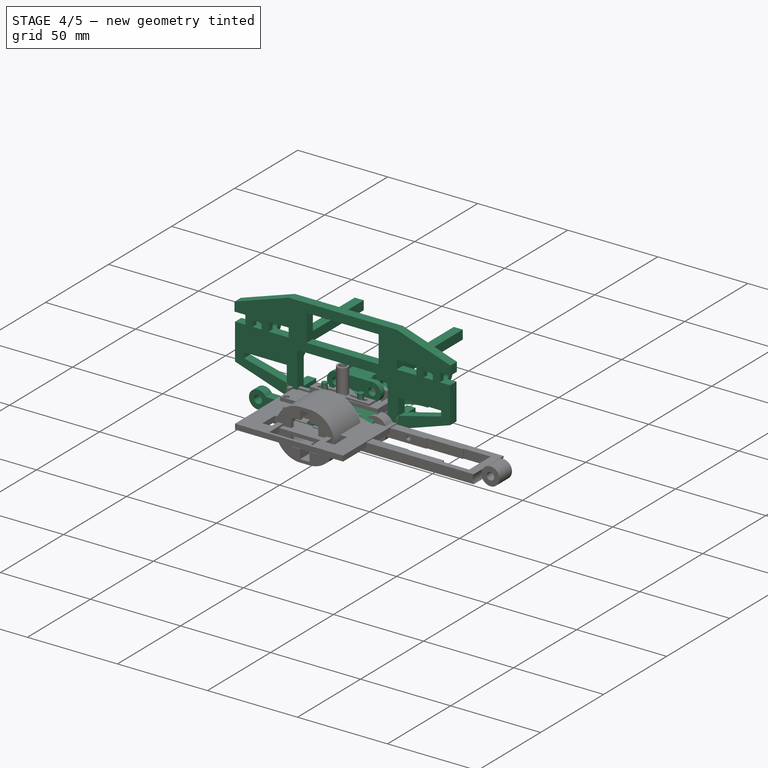
[diagram: stage 4 of 5 — iso view after this stage's code; geometry added in this stage tinted green]
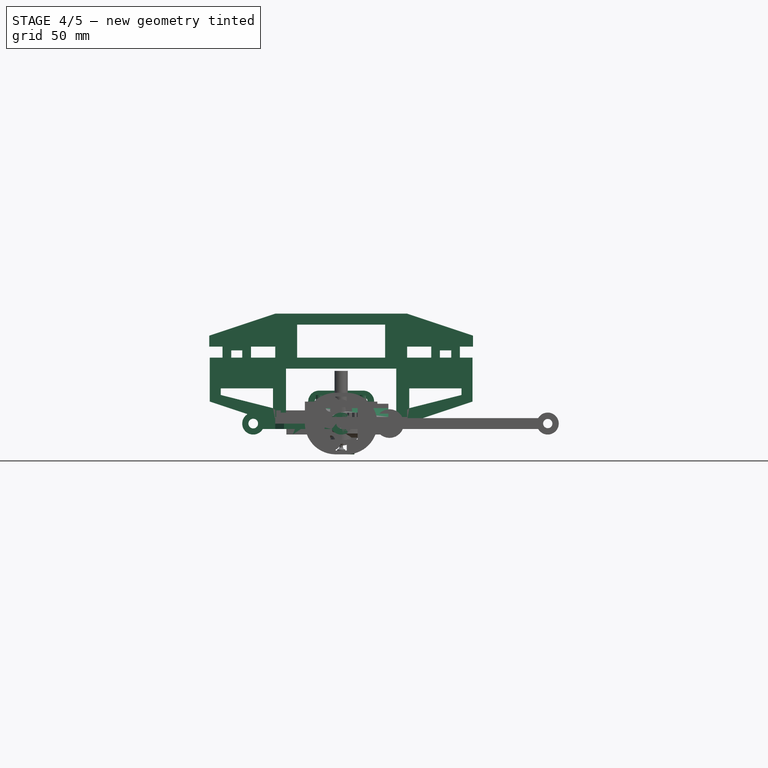
[diagram: stage 4 of 5 — front view after this stage's code; geometry added in this stage tinted green]
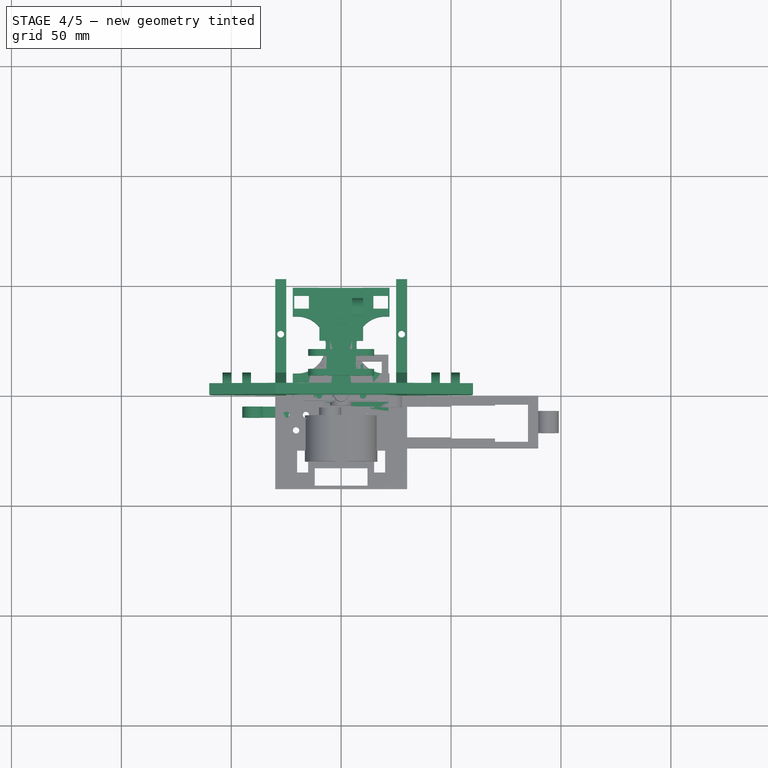
[diagram: stage 4 of 5 — top view after this stage's code; geometry added in this stage tinted green]
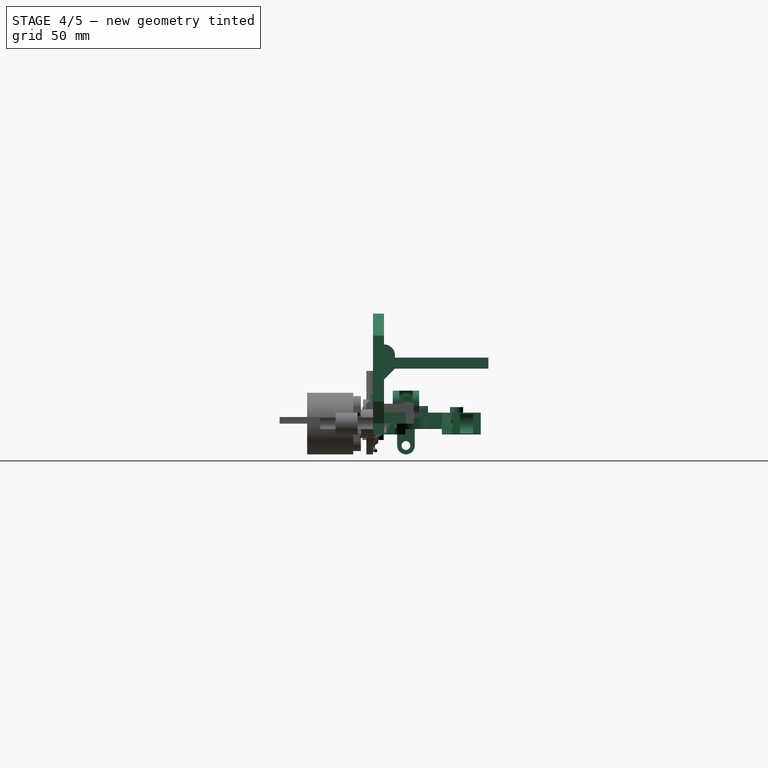
[diagram: stage 4 of 5 — right view after this stage's code; geometry added in this stage tinted green]
FEATURE [PartDesign::Body] Body009  label="FrontArm_Upper2_Left"
  Group = -> [Sketch133,Sketch137,Sketch134,Sketch136,Sketch135,Pad082,Pad083,Pad081,Pad084,Sketch138,Pocket043,Pocket042]
  Origin = -> Origin009
  Placement = pos=(22.9919,-18.17,35.9) rot=(-0.707107,-0.707107,0;3.14159rad)
  Tip = -> Pocket042
FEATURE [Sketcher::SketchObject] Sketch139
  FullyConstrained = true
  MapMode = 5
  Placement = pos=(0,0,0) rot=(1,0,0;1.5708rad)
  Support = -> [XZ_Plane010]
  sketch-geometry (22):
    g0: LineSegment StartX=-59.75 StartY=10 StartZ=0 EndX=-29.75 EndY=0 EndZ=0
    g1: LineSegment StartX=-29.75 StartY=0 StartZ=0 EndX=-24.75 EndY=0 EndZ=0
    g2: LineSegment StartX=-24.75 StartY=0 StartZ=0 EndX=-24.75 EndY=-5 EndZ=0
    g3: LineSegment StartX=-24.75 StartY=-5 StartZ=0 EndX=24.75 EndY=-5 EndZ=0
    g4: LineSegment StartX=24.75 StartY=-5 StartZ=0 EndX=24.75 EndY=0 EndZ=0
    g5: LineSegment StartX=24.75 StartY=0 StartZ=0 EndX=29.75 EndY=0 EndZ=0
    g6: LineSegment StartX=29.75 StartY=0 StartZ=0 EndX=59.75 EndY=10 EndZ=0
    g7: LineSegment StartX=59.75 StartY=10 StartZ=0 EndX=59.75 EndY=30 EndZ=0
    g8: LineSegment StartX=59.75 StartY=30 StartZ=0 EndX=-59.75 EndY=30 EndZ=0
    g9: LineSegment StartX=-59.75 StartY=30 StartZ=0 EndX=-59.75 EndY=10 EndZ=0
    g10: LineSegment StartX=-26 StartY=25 StartZ=0 EndX=26 EndY=25 EndZ=0
    g11: LineSegment StartX=26 StartY=25 StartZ=0 EndX=26 EndY=3 EndZ=0
    g12: LineSegment StartX=26 StartY=3 StartZ=0 EndX=-26 EndY=3 EndZ=0
    g13: LineSegment StartX=-26 StartY=3 StartZ=0 EndX=-26 EndY=25 EndZ=0
    g14: LineSegment StartX=-54.75 StartY=25 StartZ=0 EndX=-31 EndY=25 EndZ=0
    g15: LineSegment StartX=-31 StartY=25 StartZ=0 EndX=-31 EndY=7 EndZ=0
    g16: LineSegment StartX=31 StartY=25 StartZ=0 EndX=31 EndY=7 EndZ=0
    g17: LineSegment StartX=54.75 StartY=25 StartZ=0 EndX=31 EndY=25 EndZ=0
    g18: LineSegment StartX=-54.75 StartY=25 StartZ=0 EndX=-54.75 EndY=13 EndZ=0
    g19: LineSegment StartX=-54.75 StartY=13 StartZ=0 EndX=-31 EndY=7 EndZ=0
    g20: LineSegment StartX=54.75 StartY=25 StartZ=0 EndX=54.75 EndY=13 EndZ=0
    g21: LineSegment StartX=54.75 StartY=13 StartZ=0 EndX=31 EndY=7 EndZ=0
  constraints (66):
    c: PointOnObject(g0,g-1)
    c: Coincident(g0,g1)
    c: PointOnObject(g1,g-1)
    c: Coincident(g1,g2)
    c: Vertical(g2)
    c: Coincident(g2,g3)
    c: Horizontal(g3)
    c: Coincident(g3,g4)
    c: PointOnObject(g4,g-1)
    c: Coincident(g4,g5)
    c: Horizontal(g5)
    c: Coincident(g5,g6)
    c: Coincident(g6,g7)
    c: Vertical(g7)
    c: Coincident(g7,g8)
    c: Horizontal(g8)
    c: Coincident(g8,g9)
    c: Coincident(g9,g0)
    c: Vertical(g9)
    c: DistanceX(g2,g3) = 49.5
    c: Vertical(g4)
    c: DistanceX(g0,g1) = 5
    c: DistanceX(g4,g5) = 5
    c: DistanceY(g0,g0) = 10
    c: DistanceY(g9,g9) = 20
    c: DistanceX(g0,g0) = 30
    c: DistanceX(g5,g6) = 30
    c: DistanceY(g5,g6) = 10
    c: DistanceX(g2,g-1) = 24.75
    c: DistanceY(g2,g-1) = 5
    c: Coincident(g10,g11)
    c: Coincident(g11,g12)
    c: Coincident(g12,g13)
    c: Coincident(g13,g10)
    c: Horizontal(g10)
    c: Horizontal(g12)
    c: Vertical(g11)
    c: Vertical(g13)
    c: DistanceY(g-1,g12) = 3
    c: DistanceX(g12,g-1) = 26
    c: DistanceX(g12,g11) = 52
    c: DistanceY(g11,g10) = 22
    c: Horizontal(g14)
    c: Coincident(g14,g15)
    c: Vertical(g15)
    c: DistanceY(g14,g8) = 5
    c: DistanceY(g0,g15) = 7
    c: DistanceX(g14,g10) = 5
    c: DistanceX(g0,g14) = 5
    c: Vertical(g16)
    c: Coincident(g17,g16)
    c: Horizontal(g17)
    c: DistanceX(g17,g6) = 5
    c: DistanceX(g10,g16) = 5
    c: DistanceY(g5,g16) = 7
    c: DistanceY(g17,g7) = 5
    c: Coincident(g14,g18)
    c: Vertical(g18)
    c: Coincident(g18,g19)
    c: Coincident(g19,g15)
    c: Coincident(g17,g20)
    c: Vertical(g20)
    c: Coincident(g20,g21)
    c: Coincident(g21,g16)
    c: DistanceY(g20,g20) = 12
    c: DistanceY(g18,g18) = 12
FEATURE [Sketcher::SketchObject] Sketch140
  FullyConstrained = true
  MapMode = 5
  Placement = pos=(0,0,0) rot=(1,0,0;1.5708rad)
  Support = -> [XZ_Plane010]
  sketch-geometry (4):
    g0: LineSegment StartX=25 StartY=30 StartZ=0 EndX=30 EndY=30 EndZ=0
    g1: LineSegment StartX=30 StartY=30 StartZ=0 EndX=30 EndY=25 EndZ=0
    g2: LineSegment StartX=30 StartY=25 StartZ=0 EndX=25 EndY=25 EndZ=0
    g3: LineSegment StartX=25 StartY=25 StartZ=0 EndX=25 EndY=30 EndZ=0
  constraints (12):
    c: Coincident(g0,g1)
    c: Coincident(g1,g2)
    c: Coincident(g2,g3)
    c: Coincident(g3,g0)
    c: Horizontal(g0)
    c: Horizontal(g2)
    c: Vertical(g1)
    c: Vertical(g3)
    c: DistanceY(g1,g0) = 5
    c: DistanceX(g2,g2) = 5
    c: DistanceX(g-1,g2) = 25
    c: DistanceY(g-1,g2) = 25
FEATURE [Sketcher::SketchObject] Sketch141  label="Right_Rod"
  FullyConstrained = true
  MapMode = 5
  Placement = pos=(0,0,0) rot=(1,0,0;1.5708rad)
  Support = -> [XZ_Plane010]
  sketch-geometry (4):
    g0: LineSegment StartX=-30 StartY=25 StartZ=0 EndX=-25 EndY=25 EndZ=0
    g1: LineSegment StartX=-25 StartY=25 StartZ=0 EndX=-25 EndY=30 EndZ=0
    g2: LineSegment StartX=-25 StartY=30 StartZ=0 EndX=-30 EndY=30 EndZ=0
    g3: LineSegment StartX=-30 StartY=30 StartZ=0 EndX=-30 EndY=25 EndZ=0
  constraints (12):
    c: Coincident(g0,g1)
    c: Coincident(g1,g2)
    c: Coincident(g2,g3)
    c: Coincident(g3,g0)
    c: Horizontal(g0)
    c: Horizontal(g2)
    c: Vertical(g1)
    c: Vertical(g3)
    c: DistanceX(g0,g0) = 5
    c: DistanceY(g0,g1) = 5
    c: DistanceY(g-1,g0) = 25
    c: DistanceX(g0,g-1) = 25
FEATURE [Sketcher::SketchObject] Sketch142  label="Left_Hole1"
  FullyConstrained = true
  MapMode = 5
  Support = -> [XY_Plane010]
  sketch-geometry (1):
    g0: Circle CenterX=-27.5 CenterY=27.5 CenterZ=0 NormalX=0 NormalY=0 NormalZ=1 AngleXU=0 Radius=1.6
  constraints (3):
    c: Radius(g0) = 1.6
    c: DistanceX(g0,g-1) = 27.5
    c: DistanceY(g-1,g0) = 27.5
FEATURE [Sketcher::SketchObject] Sketch143  label="Left_hole2"
  FullyConstrained = true
  MapMode = 5
  Support = -> [XY_Plane010]
  sketch-geometry (1):
    g0: Circle CenterX=-27.5 CenterY=50 CenterZ=0 NormalX=0 NormalY=0 NormalZ=1 AngleXU=0 Radius=1.6
  constraints (3):
    c: Radius(g0) = 1.6
    c: DistanceX(g0,g-1) = 27.5
    c: DistanceY(g-1,g0) = 50
FEATURE [Sketcher::SketchObject] Sketch144  label="Right_Hole1"
  FullyConstrained = true
  MapMode = 5
  Support = -> [XY_Plane010]
  sketch-geometry (1):
    g0: Circle CenterX=27.5 CenterY=27.5 CenterZ=0 NormalX=0 NormalY=0 NormalZ=1 AngleXU=0 Radius=1.6
  constraints (3):
    c: Radius(g0) = 1.6
    c: DistanceX(g-1,g0) = 27.5
    c: DistanceY(g-1,g0) = 27.5
FEATURE [Sketcher::SketchObject] Sketch145  label="Left_Connector001"
  FullyConstrained = true
  MapMode = 5
  Placement = pos=(0,0,0) rot=(1,0,0;1.5708rad)
  Support = -> [XZ_Plane010]
  sketch-geometry (4):
    g0: LineSegment StartX=-58 StartY=27 StartZ=0 EndX=-28 EndY=27 EndZ=0
    g1: LineSegment StartX=-28 StartY=27 StartZ=0 EndX=-28 EndY=16 EndZ=0
    g2: LineSegment StartX=-28 StartY=16 StartZ=0 EndX=-58 EndY=16 EndZ=0
    g3: LineSegment StartX=-58 StartY=16 StartZ=0 EndX=-58 EndY=27 EndZ=0
  constraints (12):
    c: Coincident(g0,g1)
    c: Coincident(g1,g2)
    c: Coincident(g2,g3)
    c: Coincident(g3,g0)
    c: Horizontal(g0)
    c: Horizontal(g2)
    c: Vertical(g1)
    c: Vertical(g3)
    c: DistanceY(g-1,g2) = 16
    c: DistanceY(g3,g3) = 11
    c: DistanceX(g2,g-1) = 58
    c: DistanceX(g2,g2) = 30
FEATURE [Sketcher::SketchObject] Sketch146  label="Right_Hole2"
  FullyConstrained = true
  MapMode = 5
  Support = -> [XY_Plane010]
  sketch-geometry (1):
    g0: Circle CenterX=27.5 CenterY=50 CenterZ=0 NormalX=0 NormalY=0 NormalZ=1 AngleXU=0 Radius=1.6
  constraints (3):
    c: Radius(g0) = 1.6
    c: DistanceX(g-1,g0) = 27.5
    c: DistanceY(g-1,g0) = 50
FEATURE [Sketcher::SketchObject] Sketch147  label="Right_Connector001"
  FullyConstrained = true
  MapMode = 5
  Placement = pos=(0,0,0) rot=(1,0,0;1.5708rad)
  Support = -> [XZ_Plane010]
  sketch-geometry (4):
    g0: LineSegment StartX=30 StartY=26 StartZ=0 EndX=55 EndY=26 EndZ=0
    g1: LineSegment StartX=55 StartY=26 StartZ=0 EndX=55 EndY=16 EndZ=0
    g2: LineSegment StartX=55 StartY=16 StartZ=0 EndX=30 EndY=16 EndZ=0
    g3: LineSegment StartX=30 StartY=16 StartZ=0 EndX=30 EndY=26 EndZ=0
  constraints (12):
    c: Coincident(g0,g1)
    c: Coincident(g1,g2)
    c: Coincident(g2,g3)
    c: Coincident(g3,g0)
    c: Horizontal(g0)
    c: Horizontal(g2)
    c: Vertical(g1)
    c: Vertical(g3)
    c: DistanceX(g0,g0) = 25
    c: DistanceY(g1,g0) = 10
    c: DistanceX(g-1,g2) = 30
    c: DistanceY(g-1,g2) = 16
FEATURE [Sketcher::SketchObject] Sketch148  label="Right_Wheel_Con"
  AttachmentOffset = pos=(0,0,47.5) rot=(0,0,1;0rad)
  FullyConstrained = true
  MapMode = 5
  Placement = pos=(47.5,-1.05e-14,1.05e-14) rot=(0.57735,0.57735,0.57735;2.0944rad)
  Support = -> [YZ_Plane010]
  sketch-geometry (5):
    g0: LineSegment StartX=0 StartY=24 StartZ=0 EndX=10 EndY=24 EndZ=0
    g1: LineSegment StartX=10 StartY=16 StartZ=0 EndX=0 EndY=16 EndZ=0
    g2: LineSegment StartX=0 StartY=16 StartZ=0 EndX=0 EndY=24 EndZ=0
    g3: Circle CenterX=10 CenterY=20 CenterZ=0 NormalX=0 NormalY=0 NormalZ=1 AngleXU=0 Radius=2
    g4: ArcOfCircle CenterX=10 CenterY=20 CenterZ=0 NormalX=0 NormalY=0 NormalZ=1 AngleXU=0 Radius=4 StartAngle=4.71239 EndAngle=7.85398
  constraints (14):
    c: Coincident(g1,g2)
    c: Coincident(g2,g0)
    c: Horizontal(g0)
    c: Horizontal(g1)
    c: Vertical(g2)
    c: DistanceX(g-1,g0) = 0
    c: DistanceY(g1,g0) = 8
    c: DistanceY(g-1,g1) = 16
    c: Radius(g3) = 2
    c: DistanceX(g1,g3) = 10
    c: Coincident(g4,g3)
    c: Coincident(g4,g1)
    c: Tangent(g4,g0) = 1.5708
    c: DistanceX(g1,g1) = 10
FEATURE [Sketcher::SketchObject] Sketch149  label="Left_Wheel_Con"
  AttachmentOffset = pos=(0,0,-47.5) rot=(0,0,1;0rad)
  FullyConstrained = true
  MapMode = 5
  Placement = pos=(-47.5,1.05e-14,-1.05e-14) rot=(0.57735,0.57735,0.57735;2.0944rad)
  Support = -> [YZ_Plane010]
  sketch-geometry (5):
    g0: LineSegment StartX=0 StartY=24 StartZ=0 EndX=10 EndY=24 EndZ=0
    g1: LineSegment StartX=10 StartY=16 StartZ=0 EndX=0 EndY=16 EndZ=0
    g2: LineSegment StartX=0 StartY=16 StartZ=0 EndX=0 EndY=24 EndZ=0
    g3: Circle CenterX=10 CenterY=20 CenterZ=0 NormalX=0 NormalY=0 NormalZ=1 AngleXU=0 Radius=2
    g4: ArcOfCircle CenterX=10 CenterY=20 CenterZ=0 NormalX=0 NormalY=0 NormalZ=1 AngleXU=0 Radius=4 StartAngle=4.71239 EndAngle=7.85398
  constraints (15):
    c: Coincident(g1,g2)
    c: Coincident(g2,g0)
    c: Horizontal(g0)
    c: Horizontal(g1)
    c: Vertical(g2)
    c: DistanceX(g-1,g1) = 0
    c: DistanceY(g-1,g1) = 16
    c: DistanceX(g1,g3) = 10
    c: Radius(g3) = 2
    c: DistanceY(g1,g3) = 4
    c: Coincident(g4,g3)
    c: Coincident(g4,g1)
    c: Coincident(g4,g0)
    c: DistanceX(g0,g0) = 10
    c: DistanceX(g1,g1) = 10
FEATURE [Sketcher::SketchObject] Sketch150  label="Left_Con_Pocket"
  AttachmentOffset = pos=(0,0,-47.5) rot=(0,0,1;0rad)
  FullyConstrained = true
  MapMode = 5
  Placement = pos=(-47.5,1.05e-14,-1.05e-14) rot=(0.57735,0.57735,0.57735;2.0944rad)
  Support = -> [YZ_Plane010]
  sketch-geometry (4):
    g0: ArcOfCircle CenterX=10 CenterY=20 CenterZ=0 NormalX=0 NormalY=0 NormalZ=1 AngleXU=0 Radius=6 StartAngle=1.5708 EndAngle=4.71239
    g1: LineSegment StartX=10 StartY=26 StartZ=0 EndX=30 EndY=26 EndZ=0
    g2: LineSegment StartX=30 StartY=26 StartZ=0 EndX=30 EndY=14 EndZ=0
    g3: LineSegment StartX=30 StartY=14 StartZ=0 EndX=10 EndY=14 EndZ=0
  constraints (12):
    c: DistanceY(g-1,g0) = 20
    c: DistanceX(g-1,g0) = 10
    c: Radius(g0) = 6
    c: Horizontal(g1)
    c: Coincident(g1,g2)
    c: Vertical(g2)
    c: Coincident(g2,g3)
    c: Horizontal(g3)
    c: DistanceX(g1,g1) = 20
    c: Tangent(g0,g1) = 1.5708
    c: Coincident(g0,g3)
    c: DistanceX(g3,g3) = 20
FEATURE [Sketcher::SketchObject] Sketch151  label="Right_Con_Pocket"
  AttachmentOffset = pos=(0,0,47.5) rot=(0,0,1;0rad)
  FullyConstrained = true
  MapMode = 5
  Placement = pos=(47.5,-1.05e-14,1.05e-14) rot=(0.57735,0.57735,0.57735;2.0944rad)
  Support = -> [YZ_Plane010]
  sketch-geometry (4):
    g0: ArcOfCircle CenterX=10 CenterY=20 CenterZ=0 NormalX=0 NormalY=0 NormalZ=1 AngleXU=0 Radius=6 StartAngle=1.5708 EndAngle=4.71239
    g1: LineSegment StartX=10 StartY=26 StartZ=0 EndX=20 EndY=26 EndZ=0
    g2: LineSegment StartX=20 StartY=26 StartZ=0 EndX=20 EndY=14 EndZ=0
    g3: LineSegment StartX=20 StartY=14 StartZ=0 EndX=10 EndY=14 EndZ=0
  constraints (12):
    c: Radius(g0) = 6
    c: DistanceX(g-1,g0) = 10
    c: DistanceY(g-1,g0) = 20
    c: Horizontal(g1)
    c: Coincident(g1,g2)
    c: Vertical(g2)
    c: Coincident(g2,g3)
    c: Horizontal(g3)
    c: DistanceX(g1,g1) = 10
    c: DistanceY(g2,g2) = 12
    c: Tangent(g0,g1) = 1.5708
    c: Coincident(g0,g3)
FEATURE [Sketcher::SketchObject] Sketch152  label="Mount1"
  AttachmentOffset = pos=(0,0,30) rot=(0,0,1;0rad)
  FullyConstrained = true
  MapMode = 5
  Placement = pos=(0,0,30) rot=(0,0,1;0rad)
  Support = -> [XY_Plane010]
  sketch-geometry (1):
    g0: Circle CenterX=-10 CenterY=2.5 CenterZ=0 NormalX=0 NormalY=0 NormalZ=1 AngleXU=0 Radius=1.5
  constraints (3):
    c: Radius(g0) = 1.5
    c: DistanceX(g0,g-1) = 10
    c: DistanceY(g-1,g0) = 2.5
FEATURE [Sketcher::SketchObject] Sketch153  label="Mount2"
  AttachmentOffset = pos=(0,0,30) rot=(0,0,1;0rad)
  FullyConstrained = true
  MapMode = 5
  Placement = pos=(0,0,30) rot=(0,0,1;0rad)
  Support = -> [XY_Plane010]
  sketch-geometry (1):
    g0: Circle CenterX=10 CenterY=2.5 CenterZ=0 NormalX=0 NormalY=0 NormalZ=1 AngleXU=0 Radius=1.5
  constraints (3):
    c: Radius(g0) = 1.5
    c: DistanceX(g-1,g0) = 10
    c: DistanceY(g0) = 2.5
FEATURE [PartDesign::Pad] Pad086
  Direction = (1,1,1)
  Length = 5
  Length2 = 100
  Placement = pos=(0,0,0) rot=(1,0,0;1.5708rad)
  Profile = -> Sketch139
  Refine = true
  Reversed = true
  Type = 0
FEATURE [PartDesign::Pad] Pad085
  BaseFeature = -> Pad086
  Direction = (1,1,1)
  Length = 52.5
  Length2 = 100
  Placement = pos=(0,0,0) rot=(1,0,0;1.5708rad)
  Profile = -> Sketch141
  Refine = true
  Reversed = true
  Type = 0
FEATURE [PartDesign::Pad] Pad087
  BaseFeature = -> Pad085
  Direction = (1,1,1)
  Length = 52.5
  Length2 = 100
  Placement = pos=(0,0,0) rot=(1,0,0;1.5708rad)
  Profile = -> Sketch140
  Refine = true
  Reversed = true
  Type = 0
FEATURE [PartDesign::Pad] Pad093
  BaseFeature = -> Pad087
  Direction = (1,1,1)
  Length = 5
  Length2 = 100
  Placement = pos=(0,0,0) rot=(1,0,0;1.5708rad)
  Profile = -> Sketch145
  Refine = true
  Reversed = true
  Type = 0
FEATURE [PartDesign::Pad] Pad088
  BaseFeature = -> Pad093
  Direction = (1,1,1)
  Length = 5
  Length2 = 100
  Placement = pos=(0,0,0) rot=(1,0,0;1.5708rad)
  Profile = -> Sketch147
  Refine = true
  Reversed = true
  Type = 0
FEATURE [PartDesign::Pocket] Pocket046  label="Pocket048"
  BaseFeature = -> Pad088
  Length = 500
  Length2 = 100
  Placement = pos=(0,0,0) rot=(1,0,0;1.5708rad)
  Profile = -> Sketch142
  Refine = true
  Reversed = true
  Type = 0
FEATURE [PartDesign::Pocket] Pocket049  label="Pocket051"
  BaseFeature = -> Pocket046
  Length = 50
  Length2 = 100
  Placement = pos=(0,0,0) rot=(1,0,0;1.5708rad)
  Profile = -> Sketch144
  Refine = true
  Reversed = true
  Type = 0
FEATURE [PartDesign::Body] Body010  label="Body_Middle"
  Group = -> [Sketch139,Sketch141,Sketch140,Sketch142,Sketch143,Sketch144,Sketch146,Sketch145,Sketch147,Sketch149,Sketch148,Pad086,Pad085,Pad087,Sketch150,Sketch151,Pad093,Pad088,Pocket046,Pocket049,Pocket047,Pocket048,Sketch152,Sketch153,Pad089,Pad091,Pad092,Pad090,Pocket044,Pocket045]
  Origin = -> Origin010
  Placement = pos=(105,-2.33e-14,0) rot=(0,0,1;4.71239rad)
  Tip = -> Pocket045
FEATURE [Sketcher::SketchObject] Sketch154
  FullyConstrained = true
  MapMode = 5
  Support = -> [XY_Plane011]
  sketch-geometry (8):
    g0: LineSegment StartX=12.4 StartY=2.5 StartZ=0 EndX=12.4 EndY=-2.5 EndZ=0
    g1: LineSegment StartX=12.4 StartY=-2.5 StartZ=0 EndX=-12.4 EndY=-2.5 EndZ=0
    g2: LineSegment StartX=-12.4 StartY=-2.5 StartZ=0 EndX=-12.4 EndY=2.3 EndZ=0
    g3: LineSegment StartX=-12.4 StartY=2.3 StartZ=0 EndX=-5 EndY=2.3 EndZ=0
    g4: LineSegment StartX=-5 StartY=2.3 StartZ=0 EndX=-5 EndY=25 EndZ=0
    g5: LineSegment StartX=-5 StartY=25 StartZ=0 EndX=5 EndY=25 EndZ=0
    g6: LineSegment StartX=5 StartY=25 StartZ=0 EndX=5 EndY=2.5 EndZ=0
    g7: LineSegment StartX=5 StartY=2.5 StartZ=0 EndX=12.4 EndY=2.5 EndZ=0
  constraints (24):
    c: Coincident(g0,g1)
    c: Coincident(g1,g2)
    c: Horizontal(g1)
    c: Vertical(g0)
    c: Vertical(g2)
    c: DistanceX(g2,g-1) = 12.4
    c: DistanceY(g0,g0) = 5
    c: DistanceY(g-1,g0) = 2.5
    c: Coincident(g2,g3)
    c: Horizontal(g3)
    c: Coincident(g3,g4)
    c: Vertical(g4)
    c: Coincident(g4,g5)
    c: Horizontal(g5)
    c: Coincident(g5,g6)
    c: Vertical(g6)
    c: Coincident(g6,g7)
    c: Coincident(g7,g0)
    c: Horizontal(g7)
    c: DistanceY(g1,g2) = 4.8
    c: DistanceX(g4,g-1) = 5
    c: DistanceX(g5,g5) = 10
    c: DistanceY(g-1,g4) = 25
    c: DistanceX(g1,g1) = 24.8
FEATURE [Sketcher::SketchObject] Sketch155  label="Right_Pocket"
  FullyConstrained = true
  MapMode = 5
  Support = -> [XY_Plane011]
  sketch-geometry (1):
    g0: Circle CenterX=-10 CenterY=0 CenterZ=0 NormalX=0 NormalY=0 NormalZ=1 AngleXU=0 Radius=1.6
  constraints (3):
    c: Radius(g0) = 1.6
    c: DistanceX(g0,g-1) = 10
    c: DistanceY(g-1,g0) = 0
FEATURE [Sketcher::SketchObject] Sketch156  label="Left_Pocket"
  FullyConstrained = true
  MapMode = 5
  Support = -> [XY_Plane011]
  sketch-geometry (1):
    g0: Circle CenterX=10 CenterY=0 CenterZ=0 NormalX=0 NormalY=0 NormalZ=1 AngleXU=0 Radius=1.6
  constraints (3):
    c: Radius(g0) = 1.6
    c: DistanceX(g-1,g0) = 10
    c: DistanceY(g-1,g0) = 0
FEATURE [Sketcher::SketchObject] Sketch157  label="Left_pillar"
  AttachmentOffset = pos=(0,0,8) rot=(0,0,1;0rad)
  FullyConstrained = true
  MapMode = 5
  Placement = pos=(0,0,8) rot=(0,0,1;0rad)
  Support = -> [XY_Plane011]
  sketch-geometry (1):
    g0: Circle CenterX=10 CenterY=0 CenterZ=0 NormalX=0 NormalY=0 NormalZ=1 AngleXU=0 Radius=1.5
  constraints (3):
    c: PointOnObject(g0,g-1)
    c: Radius(g0) = 1.5
    c: DistanceX(g-1,g0) = 10
FEATURE [Sketcher::SketchObject] Sketch158  label="Middle_Pillar"
  AttachmentOffset = pos=(0,0,8) rot=(0,0,1;0rad)
  FullyConstrained = true
  MapMode = 5
  Placement = pos=(0,0,8) rot=(0,0,1;0rad)
  Support = -> [XY_Plane011]
  sketch-geometry (1):
    g0: Circle CenterX=0 CenterY=17.5 CenterZ=0 NormalX=0 NormalY=0 NormalZ=1 AngleXU=0 Radius=3
  constraints (3):
    c: PointOnObject(g0,g-2)
    c: Radius(g0) = 3
    c: DistanceY(g-1,g0) = 17.5
FEATURE [Sketcher::SketchObject] Sketch159  label="Right_Pillar"
  AttachmentOffset = pos=(0,0,8) rot=(0,0,1;0rad)
  FullyConstrained = true
  MapMode = 5
  Placement = pos=(0,0,8) rot=(0,0,1;0rad)
  Support = -> [XY_Plane011]
  sketch-geometry (1):
    g0: Circle CenterX=-10 CenterY=0 CenterZ=0 NormalX=0 NormalY=0 NormalZ=1 AngleXU=0 Radius=1.5
  constraints (3):
    c: PointOnObject(g0,g-1)
    c: Radius(g0) = 1.5
    c: DistanceX(g0,g-1) = 10
FEATURE [Sketcher::SketchObject] Sketch160  label="Middle_Pocket"
  FullyConstrained = true
  MapMode = 5
  Support = -> [XY_Plane011]
  sketch-geometry (1):
    g0: Circle CenterX=0 CenterY=17.5 CenterZ=0 NormalX=0 NormalY=0 NormalZ=1 AngleXU=0 Radius=3.1
  constraints (3):
    c: PointOnObject(g0,g-2)
    c: Radius(g0) = 3.1
    c: DistanceY(g-1,g0) = 17.5
FEATURE [PartDesign::Pad] Pad094
  Direction = (1,1,1)
  Length = 8
  Length2 = 100
  Profile = -> Sketch154
  Refine = true
  Type = 0
FEATURE [PartDesign::Pad] Pad096
  BaseFeature = -> Pad094
  Direction = (1,1,1)
  Length = 5
  Length2 = 100
  Profile = -> Sketch159
  Refine = true
  Type = 0
FEATURE [PartDesign::Pad] Pad097
  BaseFeature = -> Pad096
  Direction = (1,1,1)
  Length = 5
  Length2 = 100
  Profile = -> Sketch157
  Refine = true
  Type = 0
FEATURE [PartDesign::Pad] Pad095
  BaseFeature = -> Pad097
  Direction = (1,1,1)
  Length = 5
  Length2 = 100
  Profile = -> Sketch158
  Refine = true
  Type = 0
FEATURE [PartDesign::Pocket] Pocket050  label="Pocket052"
  BaseFeature = -> Pad095
  Length = 6
  Length2 = 100
  Profile = -> Sketch155
  Refine = true
  Reversed = true
  Type = 0
FEATURE [PartDesign::Pocket] Pocket052  label="Pocket054"
  BaseFeature = -> Pocket050
  Length = 6
  Length2 = 100
  Profile = -> Sketch156
  Refine = true
  Reversed = true
  Type = 0
FEATURE [PartDesign::Pocket] Pocket051  label="Pocket053"
  BaseFeature = -> Pocket052
  Length = 6
  Length2 = 100
  Profile = -> Sketch160
  Refine = true
  Reversed = true
  Type = 0
FEATURE [PartDesign::Body] Body011  label="Front_Body_Adapter"
  Group = -> [Sketch154,Sketch155,Sketch156,Sketch160,Sketch159,Sketch157,Sketch158,Pad094,Pad096,Pad097,Pad095,Pocket050,Pocket052,Pocket051]
  Origin = -> Origin011
  Placement = pos=(2.7,-1.4e-15,25.1) rot=(0,0,-1;1.5708rad)
  Tip = -> Pocket051
FEATURE [Sketcher::SketchObject] Sketch161  label="Right_Rear_Pocket"
  AttachmentOffset = pos=(0,0,-42.5) rot=(0,0,1;0rad)
  FullyConstrained = true
  MapMode = 5
  Placement = pos=(0,42.5,9.4e-15) rot=(1,0,0;1.5708rad)
  Support = -> [XZ_Plane012]
  sketch-geometry (1):
    g0: Circle CenterX=-18 CenterY=0 CenterZ=0 NormalX=0 NormalY=0 NormalZ=1 AngleXU=0 Radius=6
  constraints (3):
    c: Radius(g0) = 6
    c: DistanceX(g0,g-1) = 18
    c: DistanceY(g-1,g0) = 0
FEATURE [Sketcher::SketchObject] Sketch162  label="Main001"
  FullyConstrained = true
  MapMode = 5
  Support = -> [XY_Plane012]
  sketch-geometry (5):
    g0: LineSegment StartX=-12.5 StartY=49 StartZ=0 EndX=12.5 EndY=49 EndZ=0
    g1: LineSegment StartX=12.5 StartY=49 StartZ=0 EndX=12.5 EndY=-3 EndZ=0
    g2: LineSegment StartX=12.5 StartY=-3 StartZ=0 EndX=-12.5 EndY=-3 EndZ=0
    g3: LineSegment StartX=-12.5 StartY=-3 StartZ=0 EndX=-12.5 EndY=49 EndZ=0
    g4: Circle CenterX=0 CenterY=20 CenterZ=0 NormalX=0 NormalY=0 NormalZ=1 AngleXU=0 Radius=3.1
  constraints (15):
    c: Coincident(g0,g1)
    c: Coincident(g1,g2)
    c: Coincident(g2,g3)
    c: Coincident(g3,g0)
    c: Horizontal(g0)
    c: Horizontal(g2)
    c: Vertical(g1)
    c: Vertical(g3)
    c: DistanceX(g2,g2) = 25
    c: DistanceY(g-1,g2) = -3
    c: DistanceY(g2,g0) = 52
    c: DistanceX(g2,g-1) = 12.5
    c: Radius(g4) = 3.1
    c: DistanceY(g-1,g4) = 20
    c: DistanceX(g4,g-1) = 0
FEATURE [Sketcher::SketchObject] Sketch163  label="Right_MainPad"
  AttachmentOffset = pos=(0,0,3) rot=(0,0,1;0rad)
  FullyConstrained = true
  MapMode = 5
  Placement = pos=(0,-3,-7e-16) rot=(1,0,0;1.5708rad)
  Support = -> [XZ_Plane012]
  sketch-geometry (5):
    g0: LineSegment StartX=-22 StartY=5 StartZ=0 EndX=-10 EndY=5 EndZ=0
    g1: LineSegment StartX=-10 StartY=5 StartZ=0 EndX=-10 EndY=-5 EndZ=0
    g2: LineSegment StartX=-10 StartY=-5 StartZ=0 EndX=-22 EndY=-5 EndZ=0
    g3: LineSegment StartX=-22 StartY=-5 StartZ=0 EndX=-22 EndY=5 EndZ=0
    g4: Circle CenterX=-18 CenterY=0 CenterZ=0 NormalX=0 NormalY=0 NormalZ=1 AngleXU=0 Radius=2
  constraints (15):
    c: Coincident(g0,g1)
    c: Coincident(g1,g2)
    c: Coincident(g2,g3)
    c: Coincident(g3,g0)
    c: Horizontal(g0)
    c: Horizontal(g2)
    c: Vertical(g1)
    c: Vertical(g3)
    c: DistanceX(g1,g-1) = 10
    c: DistanceX(g2,g1) = 12
    c: DistanceX(g4,g-1) = 18
    c: Radius(g4) = 2
    c: DistanceY(g-1,g4) = 0
    c: DistanceY(g-1,g0) = 5
    c: DistanceY(g1,g0) = 10
FEATURE [Sketcher::SketchObject] Sketch164  label="Left_MainPad"
  AttachmentOffset = pos=(0,0,3) rot=(0,0,1;0rad)
  FullyConstrained = true
  MapMode = 5
  Placement = pos=(0,-3,-7e-16) rot=(1,0,0;1.5708rad)
  Support = -> [XZ_Plane012]
  sketch-geometry (5):
    g0: LineSegment StartX=10 StartY=5 StartZ=0 EndX=22 EndY=5 EndZ=0
    g1: LineSegment StartX=22 StartY=5 StartZ=0 EndX=22 EndY=-5 EndZ=0
    g2: LineSegment StartX=22 StartY=-5 StartZ=0 EndX=10 EndY=-5 EndZ=0
    g3: LineSegment StartX=10 StartY=-5 StartZ=0 EndX=10 EndY=5 EndZ=0
    g4: Circle CenterX=18 CenterY=0 CenterZ=0 NormalX=0 NormalY=0 NormalZ=1 AngleXU=0 Radius=2
  constraints (15):
    c: Coincident(g0,g1)
    c: Coincident(g1,g2)
    c: Coincident(g2,g3)
    c: Coincident(g3,g0)
    c: Horizontal(g0)
    c: Horizontal(g2)
    c: Vertical(g1)
    c: Vertical(g3)
    c: DistanceX(g0,g0) = 12
    c: DistanceY(g2,g0) = 10
    c: DistanceX(g-1,g0) = 10
    c: DistanceY(g-1,g0) = 5
    c: Radius(g4) = 2
    c: DistanceX(g-1,g4) = 18
    c: DistanceY(g-1,g4) = 0
FEATURE [Sketcher::SketchObject] Sketch165  label="Right_Front_Pocket"
  AttachmentOffset = pos=(0,0,-3) rot=(0,0,1;0rad)
  FullyConstrained = true
  MapMode = 5
  Placement = pos=(0,3,7e-16) rot=(1,0,0;1.5708rad)
  Support = -> [XZ_Plane012]
  sketch-geometry (1):
    g0: Circle CenterX=-18 CenterY=0 CenterZ=0 NormalX=0 NormalY=0 NormalZ=1 AngleXU=0 Radius=6
  constraints (3):
    c: Radius(g0) = 6
    c: DistanceX(g0,g-1) = 18
    c: DistanceY(g-1,g0) = 0
FEATURE [Sketcher::SketchObject] Sketch166  label="Left_Rear_Pocket"
  AttachmentOffset = pos=(0,0,-42.5) rot=(0,0,1;0rad)
  FullyConstrained = true
  MapMode = 5
  Placement = pos=(0,42.5,9.4e-15) rot=(1,0,0;1.5708rad)
  Support = -> [XZ_Plane012]
  sketch-geometry (1):
    g0: Circle CenterX=18 CenterY=0 CenterZ=0 NormalX=0 NormalY=0 NormalZ=1 AngleXU=0 Radius=6
  constraints (3):
    c: Radius(g0) = 6
    c: DistanceX(g-1,g0) = 18
    c: DistanceY(g-1,g0) = 0
FEATURE [Sketcher::SketchObject] Sketch167  label="Left_Middle_Pocket"
  FullyConstrained = true
  MapMode = 5
  Support = -> [XY_Plane012]
  sketch-geometry (4):
    g0: ArcOfCircle CenterX=20 CenterY=23 CenterZ=0 NormalX=0 NormalY=0 NormalZ=1 AngleXU=0 Radius=13 StartAngle=1.5708 EndAngle=4.71239
    g1: LineSegment StartX=20 StartY=36 StartZ=0 EndX=40 EndY=36 EndZ=0
    g2: LineSegment StartX=40 StartY=36 StartZ=0 EndX=40 EndY=10 EndZ=0
    g3: LineSegment StartX=40 StartY=10 StartZ=0 EndX=20 EndY=10 EndZ=0
  constraints (11):
    c: Radius(g0) = 13
    c: DistanceY(g-1,g0) = 23
    c: DistanceX(g-1,g0) = 20
    c: Horizontal(g1)
    c: Coincident(g1,g2)
    c: Vertical(g2)
    c: Coincident(g2,g3)
    c: Horizontal(g3)
    c: DistanceX(g1,g1) = 20
    c: Tangent(g0,g1) = 1.5708
    c: Tangent(g0,g3) = 1.5708
FEATURE [Sketcher::SketchObject] Sketch168  label="Right_Middle_Pocket"
  FullyConstrained = true
  MapMode = 5
  Support = -> [XY_Plane012]
  sketch-geometry (4):
    g0: ArcOfCircle CenterX=-20 CenterY=23 CenterZ=0 NormalX=0 NormalY=0 NormalZ=1 AngleXU=0 Radius=13 StartAngle=4.71239 EndAngle=7.85398
    g1: LineSegment StartX=-20 StartY=36 StartZ=0 EndX=-40 EndY=36 EndZ=0
    g2: LineSegment StartX=-40 StartY=36 StartZ=0 EndX=-40 EndY=10 EndZ=0
    g3: LineSegment StartX=-40 StartY=10 StartZ=0 EndX=-20 EndY=10 EndZ=0
  constraints (11):
    c: DistanceY(g-1,g0) = 23
    c: Radius(g0) = 13
    c: DistanceX(g0,g-1) = 20
    c: Horizontal(g1)
    c: Coincident(g1,g2)
    c: Vertical(g2)
    c: Coincident(g2,g3)
    c: Horizontal(g3)
    c: DistanceX(g1,g1) = 20
    c: Tangent(g0,g3) = -1.5708
    c: Tangent(g0,g1) = -1.5708
FEATURE [Sketcher::SketchObject] Sketch169  label="Left_Rod_Connector"
  FullyConstrained = true
  MapMode = 5
  Support = -> [XY_Plane012]
  sketch-geometry (1):
    g0: Circle CenterX=10 CenterY=2.5 CenterZ=0 NormalX=0 NormalY=0 NormalZ=1 AngleXU=0 Radius=1.7
  constraints (3):
    c: Radius(g0) = 1.7
    c: DistanceX(g-1,g0) = 10
    c: DistanceY(g-1,g0) = 2.5
FEATURE [Sketcher::SketchObject] Sketch170  label="Right_Rod_Connector"
  FullyConstrained = true
  MapMode = 5
  Support = -> [XY_Plane012]
  sketch-geometry (1):
    g0: Circle CenterX=-10 CenterY=2.5 CenterZ=0 NormalX=0 NormalY=0 NormalZ=1 AngleXU=0 Radius=1.7
  constraints (3):
    c: Radius(g0) = 1.7
    c: DistanceX(g0,g-1) = 10
    c: DistanceY(g-1,g0) = 2.5
FEATURE [Sketcher::SketchObject] Sketch171
  AttachmentOffset = pos=(0,-0.1,-2.5) rot=(0,0,1;0rad)
  FullyConstrained = true
  MapMode = 5
  Placement = pos=(0,-0.1,-2.5) rot=(0,0,1;0rad)
  Support = -> [XY_Plane012]
  sketch-geometry (4):
    g0: LineSegment StartX=7.3 StartY=5.2 StartZ=0 EndX=12.5 EndY=5.2 EndZ=0
    g1: LineSegment StartX=12.5 StartY=5.2 StartZ=0 EndX=12.5 EndY=0 EndZ=0
    g2: LineSegment StartX=12.5 StartY=0 StartZ=0 EndX=7.3 EndY=0 EndZ=0
    g3: LineSegment StartX=7.3 StartY=0 StartZ=0 EndX=7.3 EndY=5.2 EndZ=0
  constraints (12):
    c: Coincident(g0,g1)
    c: Coincident(g1,g2)
    c: Coincident(g2,g3)
    c: Coincident(g3,g0)
    c: Horizontal(g0)
    c: Horizontal(g2)
    c: Vertical(g1)
    c: Vertical(g3)
    c: DistanceX(g0,g0) = 5.2
    c: DistanceY(g1,g1) = 5.2
    c: DistanceX(g-1,g2) = 7.3
    c: DistanceY(g-1,g2) = 0
FEATURE [Sketcher::SketchObject] Sketch172
  AttachmentOffset = pos=(0,-0.1,-2.5) rot=(0,0,1;0rad)
  FullyConstrained = true
  MapMode = 5
  Placement = pos=(0,-0.1,-2.5) rot=(0,0,1;0rad)
  Support = -> [XY_Plane012]
  sketch-geometry (4):
    g0: LineSegment StartX=-7.3 StartY=0 StartZ=0 EndX=-12.5 EndY=0 EndZ=0
    g1: LineSegment StartX=-12.5 StartY=0 StartZ=0 EndX=-12.5 EndY=5.2 EndZ=0
    g2: LineSegment StartX=-12.5 StartY=5.2 StartZ=0 EndX=-7.3 EndY=5.2 EndZ=0
    g3: LineSegment StartX=-7.3 StartY=5.2 StartZ=0 EndX=-7.3 EndY=0 EndZ=0
  constraints (12):
    c: Coincident(g0,g1)
    c: Coincident(g1,g2)
    c: Coincident(g2,g3)
    c: Coincident(g3,g0)
    c: Horizontal(g0)
    c: Horizontal(g2)
    c: Vertical(g1)
    c: Vertical(g3)
    c: DistanceX(g0,g0) = 5.2
    c: DistanceY(g1,g1) = 5.2
    c: DistanceX(g0,g-1) = 7.3
    c: DistanceY(g-1,g0) = 0
FEATURE [Sketcher::SketchObject] Sketch173  label="SuspensionHole_F"
  FullyConstrained = true
  MapMode = 5
  Support = -> [XY_Plane012]
  sketch-geometry (1):
    g0: Circle CenterX=0 CenterY=8 CenterZ=0 NormalX=0 NormalY=0 NormalZ=1 AngleXU=0 Radius=3
  constraints (3):
    c: Radius(g0) = 3
    c: DistanceX(g-1,g0) = 0
    c: DistanceY(g-1,g0) = 8
FEATURE [Sketcher::SketchObject] Sketch174  label="SuspensionHole_R"
  FullyConstrained = true
  MapMode = 5
  Support = -> [XY_Plane012]
  sketch-geometry (1):
    g0: Circle CenterX=0 CenterY=38 CenterZ=0 NormalX=0 NormalY=0 NormalZ=1 AngleXU=0 Radius=3
  constraints (3):
    c: Radius(g0) = 3
    c: DistanceX(g-1,g0) = 0
    c: DistanceY(g-1,g0) = 38
FEATURE [PartDesign::Pad] Pad102
  Direction = (1,1,1)
  Length = 5
  Length2 = 100
  Midplane = true
  Profile = -> Sketch162
  Refine = true
  Type = 0
FEATURE [PartDesign::Pad] Pad098
  BaseFeature = -> Pad102
  Direction = (1,1,1)
  Length = 52
  Length2 = 100
  Profile = -> Sketch163
  Refine = true
  Reversed = true
  Type = 0
FEATURE [PartDesign::Pad] Pad099
  BaseFeature = -> Pad098
  Direction = (1,1,1)
  Length = 52
  Length2 = 100
  Profile = -> Sketch164
  Refine = true
  Reversed = true
  Type = 0
FEATURE [PartDesign::Pocket] Pocket054  label="Pocket056"
  BaseFeature = -> Pad099
  Length = 6
  Length2 = 100
  Midplane = true
  Profile = -> Sketch165
  Refine = true
  Type = 0
FEATURE [Sketcher::SketchObject] Sketch175  label="Left_Front_pocket"
  FullyConstrained = true
  MapMode = 5
  Placement = pos=(0,0,0) rot=(1,0,0;1.5708rad)
  Support = -> [XZ_Plane012]
  sketch-geometry (1):
    g0: Circle CenterX=18 CenterY=0 CenterZ=0 NormalX=0 NormalY=0 NormalZ=1 AngleXU=0 Radius=6
  constraints (3):
    c: Radius(g0) = 6
    c: DistanceX(g-1,g0) = 18
    c: DistanceY(g-1,g0) = 0
FEATURE [PartDesign::Pocket] Pocket055  label="Pocket057"
  BaseFeature = -> Pocket054
  Length = 6
  Length2 = 100
  Profile = -> Sketch175
  Refine = true
  Type = 0
FEATURE [PartDesign::Pocket] Pocket056  label="Pocket058"
  BaseFeature = -> Pocket055
  Length = 6
  Length2 = 100
  Midplane = true
  Profile = -> Sketch161
  Refine = true
  Type = 0
FEATURE [PartDesign::Pocket] Pocket057  label="Pocket059"
  BaseFeature = -> Pocket056
  Length = 6
  Length2 = 100
  Midplane = true
  Profile = -> Sketch166
  Refine = true
  Type = 0
FEATURE [PartDesign::Pocket] Pocket058  label="Pocket060"
  BaseFeature = -> Pocket057
  Length = 100
  Length2 = 100
  Midplane = true
  Profile = -> Sketch168
  Refine = true
  Reversed = true
  Type = 0
FEATURE [PartDesign::Pocket] Pocket059  label="Pocket061"
  BaseFeature = -> Pocket058
  Length = 20
  Length2 = 100
  Midplane = true
  Profile = -> Sketch167
  Refine = true
  Type = 0
FEATURE [PartDesign::Pocket] Pocket053  label="Pocket055"
  BaseFeature = -> Pocket059
  Length = 100
  Length2 = 100
  Midplane = true
  Profile = -> Sketch170
  Refine = true
  Type = 0
FEATURE [PartDesign::Pocket] Pocket007  label="Pocket062"
  BaseFeature = -> Pocket053
  Length = 100
  Length2 = 100
  Midplane = true
  Profile = -> Sketch169
  Refine = true
  Type = 0
FEATURE [PartDesign::Pocket] Pocket008
  BaseFeature = -> Pocket007
  Length = 5
  Length2 = 100
  Profile = -> Sketch172
  Refine = true
  Type = 0
FEATURE [PartDesign::Pocket] Pocket009
  BaseFeature = -> Pocket008
  Length = 5
  Length2 = 100
  Profile = -> Sketch171
  Refine = true
  Type = 0
FEATURE [PartDesign::Pad] Pad100
  BaseFeature = -> Pocket009
  Direction = (1,1,1)
  Length = 7.5
  Length2 = 100
  Profile = -> Sketch173
  Refine = true
  Type = 0
FEATURE [PartDesign::Pad] Pad101
  BaseFeature = -> Pad100
  Direction = (1,1,1)
  Length = 7.5
  Length2 = 100
  Profile = -> Sketch174
  Refine = true
  Type = 0
FEATURE [PartDesign::Body] Body012  label="Front_Body_Mid"
  Group = -> [Sketch162,Sketch163,Sketch164,Sketch165,Sketch175,Sketch161,Sketch166,Sketch168,Sketch167,Sketch170,Sketch169,Pad102,Pad098,Pad099,Pocket054,Pocket055,Pocket056,Pocket057,Pocket058,Pocket059,Pocket053,Pocket007,Sketch172,Pocket008,Sketch171,Pocket009,Sketch173,Sketch174,Pad100,Pad101]
  Origin = -> Origin012
  Placement = pos=(0.2,0,35.8) rot=(0,0,1;4.71239rad)
  Tip = -> Pad101
FEATURE [Sketcher::SketchObject] Sketch176  label="Main_Sketch"
  FullyConstrained = true
  MapMode = 5
  Support = -> [XY_Plane013]
  sketch-geometry (6):
    g0: Circle CenterX=0 CenterY=0 CenterZ=0 NormalX=0 NormalY=0 NormalZ=1 AngleXU=0 Radius=3.1
    g1: Circle CenterX=0 CenterY=30 CenterZ=0 NormalX=0 NormalY=0 NormalZ=1 AngleXU=0 Radius=3.1
    g2: LineSegment StartX=-9.9 StartY=36 StartZ=0 EndX=9.9 EndY=36 EndZ=0
    g3: LineSegment StartX=9.9 StartY=36 StartZ=0 EndX=9.9 EndY=-6 EndZ=0
    g4: LineSegment StartX=9.9 StartY=-6 StartZ=0 EndX=-9.9 EndY=-6 EndZ=0
    g5: LineSegment StartX=-9.9 StartY=-6 StartZ=0 EndX=-9.9 EndY=36 EndZ=0
  constraints (17):
    c: Coincident(g0,g-1)
    c: Radius(g0) = 3.1
    c: Radius(g1) = 3.1
    c: DistanceY(g0,g1) = 30
    c: DistanceX(g1,g0) = 0
    c: Coincident(g2,g3)
    c: Coincident(g3,g4)
    c: Coincident(g4,g5)
    c: Coincident(g5,g2)
    c: Horizontal(g2)
    c: Horizontal(g4)
    c: Vertical(g3)
    c: Vertical(g5)
    c: DistanceX(g2,g2) = 19.8
    c: DistanceX(g2,g1) = 9.9
    c: DistanceY(g4,g2) = 42
    c: DistanceY(g4,g0) = 6
FEATURE [Sketcher::SketchObject] Sketch177  label="Pillar001"
  FullyConstrained = true
  MapMode = 5
  Support = -> [XY_Plane013]
  sketch-geometry (4):
    g0: LineSegment StartX=-2.5 StartY=20 StartZ=0 EndX=2.5 EndY=20 EndZ=0
    g1: LineSegment StartX=2.5 StartY=20 StartZ=0 EndX=2.5 EndY=10 EndZ=0
    g2: LineSegment StartX=2.5 StartY=10 StartZ=0 EndX=-2.5 EndY=10 EndZ=0
    g3: LineSegment StartX=-2.5 StartY=10 StartZ=0 EndX=-2.5 EndY=20 EndZ=0
  constraints (12):
    c: Coincident(g0,g1)
    c: Coincident(g1,g2)
    c: Coincident(g2,g3)
    c: Coincident(g3,g0)
    c: Horizontal(g0)
    c: Horizontal(g2)
    c: Vertical(g1)
    c: Vertical(g3)
    c: DistanceX(g0,g0) = 5
    c: DistanceY(g3,g3) = 10
    c: DistanceX(g2,g-1) = 2.5
    c: DistanceY(g-1,g2) = 10
FEATURE [Sketcher::SketchObject] Sketch178  label="Left_Pocket001"
  FullyConstrained = true
  MapMode = 5
  Support = -> [XY_Plane013]
  sketch-geometry (4):
    g0: LineSegment StartX=-25 StartY=25 StartZ=0 EndX=-5 EndY=25 EndZ=0
    g1: LineSegment StartX=-5 StartY=25 StartZ=0 EndX=-5 EndY=5 EndZ=0
    g2: LineSegment StartX=-5 StartY=5 StartZ=0 EndX=-25 EndY=5 EndZ=0
    g3: LineSegment StartX=-25 StartY=5 StartZ=0 EndX=-25 EndY=25 EndZ=0
  constraints (12):
    c: Coincident(g0,g1)
    c: Coincident(g1,g2)
    c: Coincident(g2,g3)
    c: Coincident(g3,g0)
    c: Horizontal(g0)
    c: Horizontal(g2)
    c: Vertical(g1)
    c: Vertical(g3)
    c: DistanceX(g1,g-1) = 5
    c: DistanceY(g-1,g1) = 5
    c: DistanceY(g3,g3) = 20
    c: DistanceX(g0,g0) = 20
FEATURE [Sketcher::SketchObject] Sketch179  label="Right_Pad"
  AttachmentOffset = pos=(0,0,-15) rot=(0,0,1;0rad)
  FullyConstrained = true
  MapMode = 5
  Placement = pos=(0,15,3.3e-15) rot=(1,0,0;1.5708rad)
  Support = -> [XZ_Plane013]
  sketch-geometry (1):
    g0: Circle CenterX=-10 CenterY=10 CenterZ=0 NormalX=0 NormalY=0 NormalZ=1 AngleXU=0 Radius=6
  constraints (3):
    c: Radius(g0) = 6
    c: DistanceX(g0,g-1) = 10
    c: DistanceY(g-1,g0) = 10
FEATURE [Sketcher::SketchObject] Sketch180  label="Suspension_Conn"
  AttachmentOffset = pos=(0,0,-15) rot=(0,0,1;0rad)
  FullyConstrained = true
  MapMode = 5
  Placement = pos=(0,15,3.3e-15) rot=(1,0,0;1.5708rad)
  Support = -> [XZ_Plane013]
  sketch-geometry (6):
    g0: ArcOfCircle CenterX=-10 CenterY=10 CenterZ=0 NormalX=0 NormalY=0 NormalZ=1 AngleXU=0 Radius=5 StartAngle=1.5708 EndAngle=4.71239
    g1: ArcOfCircle CenterX=10 CenterY=10 CenterZ=0 NormalX=0 NormalY=0 NormalZ=1 AngleXU=0 Radius=5 StartAngle=4.71239 EndAngle=7.85398
    g2: LineSegment StartX=-10 StartY=5 StartZ=0 EndX=10 EndY=5 EndZ=0
    g3: LineSegment StartX=-10 StartY=15 StartZ=0 EndX=10 EndY=15 EndZ=0
    g4: Circle CenterX=10 CenterY=10 CenterZ=0 NormalX=0 NormalY=0 NormalZ=1 AngleXU=0 Radius=2.05
    g5: Circle CenterX=-10 CenterY=10 CenterZ=0 NormalX=0 NormalY=0 NormalZ=1 AngleXU=0 Radius=2.05
  constraints (14):
    c: Tangent(g0,g3) = 1.5708
    c: Tangent(g0,g2) = -1.5708
    c: Tangent(g2,g1) = -1.5708
    c: Tangent(g3,g1) = 1.5708
    c: Horizontal(g2)
    c: Equal(g0,g1)
    c: DistanceX(g0,g1) = 20
    c: Radius(g0) = 5
    c: DistanceY(g-1,g0) = 10
    c: DistanceX(g-1,g0) = -10
    c: Coincident(g4,g1)
    c: Radius(g4) = 2.05
    c: Coincident(g5,g0)
    c: Radius(g5) = 2.05
FEATURE [Sketcher::SketchObject] Sketch181  label="Right_pocket"
  FullyConstrained = true
  MapMode = 5
  Support = -> [XY_Plane013]
  sketch-geometry (4):
    g0: LineSegment StartX=5 StartY=25 StartZ=0 EndX=15 EndY=25 EndZ=0
    g1: LineSegment StartX=15 StartY=25 StartZ=0 EndX=15 EndY=5 EndZ=0
    g2: LineSegment StartX=15 StartY=5 StartZ=0 EndX=5 EndY=5 EndZ=0
    g3: LineSegment StartX=5 StartY=5 StartZ=0 EndX=5 EndY=25 EndZ=0
  constraints (12):
    c: Coincident(g0,g1)
    c: Coincident(g1,g2)
    c: Coincident(g2,g3)
    c: Coincident(g3,g0)
    c: Horizontal(g0)
    c: Horizontal(g2)
    c: Vertical(g1)
    c: Vertical(g3)
    c: DistanceX(g0,g0) = 10
    c: DistanceY(g1,g1) = 20
    c: DistanceY(g-1,g2) = 5
    c: DistanceX(g-1,g2) = 5
FEATURE [Sketcher::SketchObject] Sketch182
  FullyConstrained = true
  MapMode = 5
  Placement = pos=(0,0,0) rot=(1,0,0;1.5708rad)
  Support = -> [XZ_Plane013]
FEATURE [Sketcher::SketchObject] Sketch183  label="Left_Pad"
  AttachmentOffset = pos=(0,0,-15) rot=(0,0,1;0rad)
  FullyConstrained = true
  MapMode = 5
  Placement = pos=(0,15,3.3e-15) rot=(1,0,0;1.5708rad)
  Support = -> [XZ_Plane013]
  sketch-geometry (1):
    g0: Circle CenterX=10 CenterY=10 CenterZ=0 NormalX=0 NormalY=0 NormalZ=1 AngleXU=0 Radius=6
  constraints (3):
    c: Radius(g0) = 6
    c: DistanceX(g-1,g0) = 10
    c: DistanceY(g-1,g0) = 10
FEATURE [PartDesign::Pad] Pad104
  Direction = (1,1,1)
  Length = 5
  Length2 = 100
  Profile = -> Sketch176
  Refine = true
  Type = 0
FEATURE [PartDesign::Pad] Pad103
  BaseFeature = -> Pad104
  Direction = (1,1,1)
  Length = 15
  Length2 = 100
  Profile = -> Sketch177
  Refine = true
  Type = 0
FEATURE [PartDesign::Pad] Pad105
  BaseFeature = -> Pad103
  Direction = (1,1,1)
  Length = 12
  Length2 = 100
  Midplane = true
  Profile = -> Sketch180
  Refine = true
  Type = 0
FEATURE [PartDesign::Pocket] Pocket063  label="Pocket066"
  BaseFeature = -> Pad105
  Length = 5
  Length2 = 100
  Profile = -> Sketch178
  Refine = true
  Reversed = true
  Type = 0
FEATURE [PartDesign::Pocket] Pocket060  label="Pocket063"
  BaseFeature = -> Pocket063
  Length = 5
  Length2 = 100
  Profile = -> Sketch181
  Refine = true
  Reversed = true
  Type = 0
FEATURE [PartDesign::Pocket] Pocket061  label="Pocket064"
  BaseFeature = -> Pocket060
  Length = 6
  Length2 = 100
  Midplane = true
  Profile = -> Sketch179
  Refine = true
  Type = 0
FEATURE [PartDesign::Pocket] Pocket062  label="Pocket065"
  BaseFeature = -> Pocket061
  Length = 6
  Length2 = 100
  Midplane = true
  Profile = -> Sketch183
  Refine = true
  Type = 0
FEATURE [PartDesign::Body] Body013  label="Front_Body_Upper"
  Group = -> [Sketch176,Sketch177,Sketch180,Sketch178,Sketch181,Sketch182,Sketch179,Sketch183,Pad104,Pad103,Pad105,Pocket063,Pocket060,Pocket061,Pocket062]
  Origin = -> Origin013
  Placement = pos=(38.1,8.5e-15,38.6) rot=(0,0,1;1.5708rad)
  Tip = -> Pocket062
FEATURE [Sketcher::SketchObject] Sketch184
  AttachmentOffset = pos=(0,-2.5,3) rot=(0,0,1;0rad)
  FullyConstrained = true
  MapMode = 5
  Placement = pos=(3,-1.2e-15,-2.5) rot=(0.57735,0.57735,0.57735;2.0944rad)
  Support = -> [YZ_Plane016]
  sketch-geometry (5):
    g0: ArcOfCircle CenterX=15 CenterY=12.5 CenterZ=0 NormalX=0 NormalY=0 NormalZ=1 AngleXU=0 Radius=4 StartAngle=0 EndAngle=3.14159
    g1: LineSegment StartX=19 StartY=12.5 StartZ=0 EndX=19 EndY=0 EndZ=0
    g2: LineSegment StartX=11 StartY=12.5 StartZ=0 EndX=11 EndY=0 EndZ=0
    g3: Circle CenterX=15 CenterY=12.5 CenterZ=0 NormalX=0 NormalY=0 NormalZ=1 AngleXU=0 Radius=2
    g4: LineSegment StartX=19 StartY=0 StartZ=0 EndX=11 EndY=0 EndZ=0
  constraints (16):
    c: PointOnObject(g1,g-1)
    c: PointOnObject(g2,g-1)
    c: Vertical(g2)
    c: Tangent(g0,g1) = 1.5708
    c: Coincident(g0,g2)
    c: Radius(g0) = 4
    c: Vertical(g1)
    c: Coincident(g3,g0)
    c: Radius(g3) = 2
    c: DistanceY(g2,g2) = 12.5
    c: DistanceY(g1,g1) = 12.5
    c: PointOnObject(g4,g1)
    c: PointOnObject(g4,g-1)
    c: Horizontal(g4)
    c: DistanceX(g4,g4) = 8
    c: DistanceX(g-1,g0) = 15
FEATURE [Sketcher::SketchObject] Sketch185  label="KnucleRing005"
  AttachmentOffset = pos=(0,0,7.5) rot=(0,0,1;0rad)
  FullyConstrained = true
  MapMode = 5
  Placement = pos=(7.5,-1.7e-15,1.7e-15) rot=(0.57735,0.57735,0.57735;2.0944rad)
  Support = -> [YZ_Plane016]
  sketch-geometry (2):
    g0: Circle CenterX=40 CenterY=0 CenterZ=0 NormalX=0 NormalY=0 NormalZ=1 AngleXU=0 Radius=5
    g1: Circle CenterX=40 CenterY=0 CenterZ=0 NormalX=0 NormalY=0 NormalZ=1 AngleXU=0 Radius=2
  constraints (5):
    c: PointOnObject(g0,g-1)
    c: Coincident(g1,g0)
    c: Radius(g0) = 5
    c: Radius(g1) = 2
    c: DistanceX(g-1,g0) = 40
FEATURE [Sketcher::SketchObject] Sketch186  label="BodyPocket002"
  FullyConstrained = true
  MapMode = 5
  Placement = pos=(0,0,0) rot=(0.57735,0.57735,0.57735;2.0944rad)
  Support = -> [YZ_Plane017]
  sketch-geometry (1):
    g0: Circle CenterX=0 CenterY=0 CenterZ=0 NormalX=0 NormalY=0 NormalZ=1 AngleXU=0 Radius=2
  constraints (2):
    c: Coincident(g0,g-1)
    c: Radius(g0) = 2
FEATURE [Sketcher::SketchObject] Sketch187  label="BodyRing005"
  FullyConstrained = true
  MapMode = 5
  Placement = pos=(0,0,0) rot=(0.57735,0.57735,0.57735;2.0944rad)
  Support = -> [YZ_Plane017]
  sketch-geometry (2):
    g0: Circle CenterX=0 CenterY=0 CenterZ=0 NormalX=0 NormalY=0 NormalZ=1 AngleXU=0 Radius=5
    g1: Circle CenterX=0 CenterY=0 CenterZ=0 NormalX=0 NormalY=0 NormalZ=1 AngleXU=0 Radius=2
  constraints (4):
    c: Coincident(g0,g-1)
    c: Radius(g0) = 5
    c: Coincident(g1,g0)
    c: Radius(g1) = 2
FEATURE [Sketcher::SketchObject] Sketch188  label="Pocket070"
  FullyConstrained = true
  MapMode = 5
  Placement = pos=(0,0,0) rot=(1,0,0;1.5708rad)
  Support = -> [XZ_Plane017]
  sketch-geometry (4):
    g0: LineSegment StartX=0 StartY=0 StartZ=0 EndX=1 EndY=0 EndZ=0
    g1: LineSegment StartX=1 StartY=0 StartZ=0 EndX=1 EndY=5 EndZ=0
    g2: LineSegment StartX=1 StartY=5 StartZ=0 EndX=0 EndY=5 EndZ=0
    g3: LineSegment StartX=0 StartY=5 StartZ=0 EndX=0 EndY=0 EndZ=0
  constraints (12):
    c: Coincident(g0,g1)
    c: Coincident(g1,g2)
    c: Coincident(g2,g3)
    c: Coincident(g3,g0)
    c: Horizontal(g0)
    c: Horizontal(g2)
    c: Vertical(g1)
    c: Vertical(g3)
    c: PointOnObject(g0,g-2)
    c: DistanceX(g2,g1) = 1
    c: DistanceY(g-1,g0) = 0
    c: DistanceY(g0,g1) = 5
FEATURE [Sketcher::SketchObject] Sketch189  label="MainBody005"
  FullyConstrained = true
  MapMode = 5
  Support = -> [XY_Plane015]
  sketch-geometry (8):
    g0: LineSegment StartX=0 StartY=0 StartZ=0 EndX=3 EndY=0 EndZ=0
    g1: LineSegment StartX=3 StartY=0 StartZ=0 EndX=3 EndY=25 EndZ=0
    g2: LineSegment StartX=3 StartY=25 StartZ=0 EndX=10 EndY=25 EndZ=0
    g3: LineSegment StartX=10 StartY=25 StartZ=0 EndX=10 EndY=40 EndZ=0
    g4: LineSegment StartX=10 StartY=40 StartZ=0 EndX=5 EndY=40 EndZ=0
    g5: LineSegment StartX=5 StartY=40 StartZ=0 EndX=5 EndY=30 EndZ=0
    g6: LineSegment StartX=5 StartY=30 StartZ=0 EndX=0 EndY=30 EndZ=0
    g7: LineSegment StartX=0 StartY=30 StartZ=0 EndX=0 EndY=0 EndZ=0
  constraints (23):
    c: Coincident(g0,g-1)
    c: PointOnObject(g0,g-1)
    c: Coincident(g1,g0)
    c: Vertical(g1)
    c: Coincident(g2,g1)
    c: Horizontal(g2)
    c: Coincident(g3,g2)
    c: Vertical(g3)
    c: Coincident(g4,g3)
    c: Horizontal(g4)
    c: Coincident(g5,g4)
    c: Vertical(g5)
    c: Coincident(g6,g5)
    c: PointOnObject(g6,g-2)
    c: Horizontal(g6)
    c: Coincident(g7,g6)
    c: Coincident(g7,g0)
    c: DistanceX(g0,g0) = 3
    c: DistanceY(g0,g3) = 40
    c: DistanceY(g2,g3) = 15
    c: DistanceX(g6,g4) = 5
    c: DistanceY(g0,g6) = 30
    c: DistanceX(g4,g3) = 5
FEATURE [PartDesign::Pad] Pad110
  Direction = (1,1,1)
  Length = 5
  Length2 = 100
  Midplane = true
  Profile = -> Sketch189
  Refine = true
  Type = 0
FEATURE [PartDesign::Pad] Pad113
  BaseFeature = -> Pad110
  Direction = (1,1,1)
  Length = 3
  Length2 = 100
  Profile = -> Sketch187
  Refine = true
  Type = 0
FEATURE [Sketcher::SketchObject] Sketch190  label="KnucleRing006"
  AttachmentOffset = pos=(0,0,7.5) rot=(0,0,1;0rad)
  FullyConstrained = true
  MapMode = 5
  Placement = pos=(7.5,-1.7e-15,1.7e-15) rot=(0.57735,0.57735,0.57735;2.0944rad)
  Support = -> [YZ_Plane017]
  sketch-geometry (2):
    g0: Circle CenterX=40 CenterY=0 CenterZ=0 NormalX=0 NormalY=0 NormalZ=1 AngleXU=0 Radius=5
    g1: Circle CenterX=40 CenterY=0 CenterZ=0 NormalX=0 NormalY=0 NormalZ=1 AngleXU=0 Radius=2
  constraints (5):
    c: PointOnObject(g0,g-1)
    c: Coincident(g1,g0)
    c: Radius(g0) = 5
    c: Radius(g1) = 2
    c: DistanceX(g-1,g0) = 40
FEATURE [PartDesign::Pad] Pad111
  BaseFeature = -> Pad113
  Direction = (1,1,1)
  Length = 5
  Length2 = 100
  Midplane = true
  Profile = -> Sketch190
  Refine = true
  Type = 0
FEATURE [PartDesign::Pocket] Pocket065  label="Pocket068"
  BaseFeature = -> Pad111
  Length = 10
  Length2 = 100
  Midplane = true
  Profile = -> Sketch186
  Refine = true
  Type = 0
FEATURE [Sketcher::SketchObject] Sketch191  label="KnuclePocket002"
  FullyConstrained = true
  MapMode = 5
  Placement = pos=(0,0,0) rot=(0.57735,0.57735,0.57735;2.0944rad)
  Support = -> [YZ_Plane017]
  sketch-geometry (1):
    g0: Circle CenterX=40 CenterY=0 CenterZ=0 NormalX=0 NormalY=0 NormalZ=1 AngleXU=0 Radius=2
  constraints (3):
    c: PointOnObject(g0,g-1)
    c: Radius(g0) = 2
    c: DistanceX(g-1,g0) = 40
FEATURE [PartDesign::Pocket] Pocket066  label="Pocket069"
  BaseFeature = -> Pocket065
  Length = 50
  Length2 = 100
  Midplane = true
  Profile = -> Sketch191
  Refine = true
  Type = 0
FEATURE [PartDesign::Pocket] Pocket064  label="Pocket067"
  BaseFeature = -> Pocket066
  Length = 200
  Length2 = 100
  Midplane = true
  Profile = -> Sketch188
  Refine = true
  Type = 0
FEATURE [Sketcher::SketchObject] Sketch192
  AttachmentOffset = pos=(0,2.5,3) rot=(1,0,0;3.14159rad)
  FullyConstrained = true
  MapMode = 5
  Placement = pos=(3,-1e-16,2.5) rot=(0.57735,0.57735,-0.57735;4.18879rad)
  Support = -> [YZ_Plane017]
  sketch-geometry (5):
    g0: ArcOfCircle CenterX=15 CenterY=12.5 CenterZ=0 NormalX=0 NormalY=0 NormalZ=1 AngleXU=0 Radius=4 StartAngle=0 EndAngle=3.14159
    g1: LineSegment StartX=19 StartY=12.5 StartZ=0 EndX=19 EndY=0 EndZ=0
    g2: LineSegment StartX=11 StartY=12.5 StartZ=0 EndX=11 EndY=0 EndZ=0
    g3: Circle CenterX=15 CenterY=12.5 CenterZ=0 NormalX=0 NormalY=0 NormalZ=1 AngleXU=0 Radius=2
    g4: LineSegment StartX=19 StartY=0 StartZ=0 EndX=11 EndY=0 EndZ=0
  constraints (16):
    c: PointOnObject(g1,g-1)
    c: PointOnObject(g2,g-1)
    c: Vertical(g2)
    c: Tangent(g0,g1) = 1.5708
    c: Coincident(g0,g2)
    c: Radius(g0) = 4
    c: Vertical(g1)
    c: Coincident(g3,g0)
    c: Radius(g3) = 2
    c: DistanceY(g2,g2) = 12.5
    c: DistanceY(g1,g1) = 12.5
    c: PointOnObject(g4,g1)
    c: PointOnObject(g4,g-1)
    c: Horizontal(g4)
    c: DistanceX(g4,g4) = 8
    c: DistanceX(g-1,g0) = 15
FEATURE [PartDesign::Pad] Pad112
  BaseFeature = -> Pocket064
  Direction = (1,1,1)
  Length = 3
  Length2 = 100
  Profile = -> Sketch192
  Refine = true
  Reversed = true
  Type = 0
FEATURE [Sketcher::SketchObject] Sketch193  label="MainBody006"
  FullyConstrained = true
  MapMode = 5
  Support = -> [XY_Plane016]
  sketch-geometry (8):
    g0: LineSegment StartX=-26 StartY=-5 StartZ=0 EndX=-40 EndY=-5 EndZ=0
    g1: LineSegment StartX=-40 StartY=-5 StartZ=0 EndX=-40 EndY=-10 EndZ=0
    g2: LineSegment StartX=-40 StartY=-10 StartZ=0 EndX=-30 EndY=-10 EndZ=0
    g3: LineSegment StartX=-30 StartY=-10 StartZ=0 EndX=-26 EndY=-22.5 EndZ=0
    g4: LineSegment StartX=-26 StartY=-22.5 StartZ=0 EndX=0 EndY=-22.5 EndZ=0
    g5: LineSegment StartX=-26 StartY=-5 StartZ=0 EndX=-22 EndY=-17.5 EndZ=0
    g6: LineSegment StartX=-22 StartY=-17.5 StartZ=0 EndX=0 EndY=-17.5 EndZ=0
    g7: LineSegment StartX=0 StartY=-17.5 StartZ=0 EndX=0 EndY=-22.5 EndZ=0
  constraints (24):
    c: Horizontal(g0)
    c: Distance(g0) = 14
    c: DistanceY(g0,g-1) = 5
    c: DistanceX(g0,g-1) = 40
    c: Coincident(g1,g0)
    c: Vertical(g1)
    c: DistanceY(g1,g1) = 5
    c: Coincident(g2,g1)
    c: Horizontal(g2)
    c: DistanceX(g2,g2) = 10
    c: Coincident(g3,g2)
    c: Coincident(g4,g3)
    c: PointOnObject(g4,g-2)
    c: Horizontal(g4)
    c: Coincident(g5,g0)
    c: Coincident(g6,g5)
    c: PointOnObject(g6,g-2)
    c: Horizontal(g6)
    c: Coincident(g7,g6)
    c: Coincident(g7,g4)
    c: DistanceX(g4,g4) = 26
    c: DistanceX(g6,g6) = 22
    c: DistanceY(g4,g6) = 5
    c: DistanceY(g6,g-1) = 17.5
FEATURE [PartDesign::Pad] Pad116
  Direction = (1,1,1)
  Length = 5
  Length2 = 100
  Midplane = true
  Profile = -> Sketch193
  Refine = true
  Type = 0
FEATURE [Sketcher::SketchObject] Sketch194  label="KnucleRing007"
  AttachmentOffset = pos=(0,0,5) rot=(0,0,1;0rad)
  FullyConstrained = true
  MapMode = 5
  Placement = pos=(0,-5,-1.1e-15) rot=(1,0,0;1.5708rad)
  Support = -> [XZ_Plane015]
  sketch-geometry (2):
    g0: Circle CenterX=-40 CenterY=0 CenterZ=0 NormalX=0 NormalY=0 NormalZ=1 AngleXU=0 Radius=5
    g1: Circle CenterX=-40 CenterY=0 CenterZ=0 NormalX=0 NormalY=0 NormalZ=1 AngleXU=0 Radius=2
  constraints (5):
    c: PointOnObject(g0,g-1)
    c: Radius(g0) = 5
    c: Coincident(g1,g0)
    c: Radius(g1) = 2
    c: DistanceX(g0,g-1) = 40
FEATURE [PartDesign::Pad] Pad117
  BaseFeature = -> Pad116
  Direction = (1,1,1)
  Length = 5
  Length2 = 100
  Profile = -> Sketch194
  Refine = true
  Type = 0
FEATURE [Sketcher::SketchObject] Sketch195  label="Middle003"
  AttachmentOffset = pos=(0,0,-26) rot=(0,0,1;0rad)
  FullyConstrained = true
  MapMode = 5
  Placement = pos=(-26,5.8e-15,-5.8e-15) rot=(0.57735,0.57735,0.57735;2.0944rad)
  Support = -> [YZ_Plane015]
  sketch-geometry (6):
    g0: LineSegment StartX=-15 StartY=2.5 StartZ=0 EndX=-15 EndY=-2.5 EndZ=0
    g1: LineSegment StartX=-15 StartY=2.5 StartZ=0 EndX=4.8 EndY=2.5 EndZ=0
    g2: LineSegment StartX=-5 StartY=-2.5 StartZ=0 EndX=-15 EndY=-2.5 EndZ=0
    g3: LineSegment StartX=-5 StartY=0.05 StartZ=0 EndX=-5 EndY=-2.5 EndZ=0
    g4: LineSegment StartX=4.8 StartY=2.5 StartZ=0 EndX=4.8 EndY=0.05 EndZ=0
    g5: LineSegment StartX=-5 StartY=0.05 StartZ=0 EndX=4.8 EndY=0.05 EndZ=0
  constraints (17):
    c: DistanceY(g-1,g0) = 2.5
    c: Symmetric(g0,g0,g-1)
    c: Coincident(g1,g0)
    c: Coincident(g2,g0)
    c: Coincident(g3,g2)
    c: Coincident(g4,g1)
    c: DistanceY(g4,g1) = 2.45
    c: Coincident(g5,g3)
    c: Coincident(g5,g4)
    c: Angle(g2,g0) = 1.5708
    c: Angle(g4,g5) = 1.5708
    c: Angle(g3,g5) = 1.5708
    c: Angle(g1,g4) = 1.5708
    c: DistanceX(g1,g1) = 19.8
    c: DistanceX(g2,g2) = 10
    c: DistanceX(g0,g-1) = 15
    c: DistanceY(g-1,g3) = 0.05
FEATURE [Sketcher::SketchObject] Sketch196  label="RingPocket007"
  FullyConstrained = true
  MapMode = 5
  Placement = pos=(0,0,0) rot=(1,0,0;1.5708rad)
  Support = -> [XZ_Plane015]
  sketch-geometry (1):
    g0: Circle CenterX=-40 CenterY=0 CenterZ=0 NormalX=0 NormalY=0 NormalZ=1 AngleXU=0 Radius=2.2
  constraints (3):
    c: PointOnObject(g0,g-1)
    c: Radius(g0) = 2.2
    c: DistanceX(g0,g-1) = 40
FEATURE [Sketcher::SketchObject] Sketch197  label="BodyRing006"
  AttachmentOffset = pos=(0,0,17.5) rot=(0,0,1;0rad)
  FullyConstrained = true
  MapMode = 5
  Placement = pos=(0,-17.5,-3.9e-15) rot=(1,0,0;1.5708rad)
  Support = -> [XZ_Plane015]
  sketch-geometry (2):
    g0: Circle CenterX=0 CenterY=0 CenterZ=0 NormalX=0 NormalY=0 NormalZ=1 AngleXU=0 Radius=5
    g1: Circle CenterX=0 CenterY=0 CenterZ=0 NormalX=0 NormalY=0 NormalZ=1 AngleXU=0 Radius=2
  constraints (4):
    c: Coincident(g0,g-1)
    c: Radius(g0) = 5
    c: Coincident(g1,g0)
    c: Radius(g1) = 2
FEATURE [PartDesign::Pad] Pad114
  BaseFeature = -> Pad117
  Direction = (1,1,1)
  Length = 5
  Length2 = 100
  Profile = -> Sketch197
  Refine = true
  Type = 0
FEATURE [PartDesign::Pad] Pad118
  BaseFeature = -> Pad114
  Direction = (2,0,0)
  Length = 4.5
  Length2 = 100
  Midplane = true
  Profile = -> Sketch195
  Refine = true
  Reversed = true
  Type = 0
FEATURE [Sketcher::SketchObject] Sketch198  label="RingPocket008"
  FullyConstrained = true
  MapMode = 5
  Placement = pos=(0,0,0) rot=(1,0,0;1.5708rad)
  Support = -> [XZ_Plane015]
  sketch-geometry (1):
    g0: Circle CenterX=0 CenterY=0 CenterZ=0 NormalX=0 NormalY=0 NormalZ=1 AngleXU=0 Radius=2.2
  constraints (3):
    c: PointOnObject(g0,g-1)
    c: Radius(g0) = 2.2
    c: DistanceX(g0,g-1) = 0
FEATURE [Sketcher::SketchObject] Sketch199  label="MainBody007"
  FullyConstrained = true
  MapMode = 5
  Support = -> [XY_Plane014]
  sketch-geometry (8):
    g0: LineSegment StartX=-26 StartY=-5 StartZ=0 EndX=-40 EndY=-5 EndZ=0
    g1: LineSegment StartX=-40 StartY=-5 StartZ=0 EndX=-40 EndY=-10 EndZ=0
    g2: LineSegment StartX=-40 StartY=-10 StartZ=0 EndX=-30 EndY=-10 EndZ=0
    g3: LineSegment StartX=-30 StartY=-10 StartZ=0 EndX=-26 EndY=-22.5 EndZ=0
    g4: LineSegment StartX=-26 StartY=-22.5 StartZ=0 EndX=0 EndY=-22.5 EndZ=0
    g5: LineSegment StartX=-26 StartY=-5 StartZ=0 EndX=-22 EndY=-17.5 EndZ=0
    g6: LineSegment StartX=-22 StartY=-17.5 StartZ=0 EndX=0 EndY=-17.5 EndZ=0
    g7: LineSegment StartX=0 StartY=-17.5 StartZ=0 EndX=0 EndY=-22.5 EndZ=0
  constraints (24):
    c: Horizontal(g0)
    c: Distance(g0) = 14
    c: DistanceY(g0,g-1) = 5
    c: DistanceX(g0,g-1) = 40
    c: Coincident(g1,g0)
    c: Vertical(g1)
    c: DistanceY(g1,g1) = 5
    c: Coincident(g2,g1)
    c: Horizontal(g2)
    c: DistanceX(g2,g2) = 10
    c: Coincident(g3,g2)
    c: Coincident(g4,g3)
    c: PointOnObject(g4,g-2)
    c: Horizontal(g4)
    c: Coincident(g5,g0)
    c: Coincident(g6,g5)
    c: PointOnObject(g6,g-2)
    c: Horizontal(g6)
    c: Coincident(g7,g6)
    c: Coincident(g7,g4)
    c: DistanceX(g4,g4) = 26
    c: DistanceX(g6,g6) = 22
    c: DistanceY(g4,g6) = 5
    c: DistanceY(g6,g-1) = 17.5
FEATURE [PartDesign::Pad] Pad119
  Direction = (1,1,1)
  Length = 5
  Length2 = 100
  Midplane = true
  Profile = -> Sketch199
  Refine = true
  Type = 0
FEATURE [Sketcher::SketchObject] Sketch200  label="Middle004"
  AttachmentOffset = pos=(0,0,-26) rot=(0,0,1;0rad)
  FullyConstrained = true
  MapMode = 5
  Placement = pos=(-26,5.8e-15,-5.8e-15) rot=(0.57735,0.57735,0.57735;2.0944rad)
  Support = -> [YZ_Plane014]
  sketch-geometry (6):
    g0: LineSegment StartX=-15 StartY=2.5 StartZ=0 EndX=-15 EndY=-2.5 EndZ=0
    g1: LineSegment StartX=-15 StartY=2.5 StartZ=0 EndX=4.8 EndY=2.5 EndZ=0
    g2: LineSegment StartX=-5 StartY=-2.5 StartZ=0 EndX=-15 EndY=-2.5 EndZ=0
    g3: LineSegment StartX=-5 StartY=0.05 StartZ=0 EndX=-5 EndY=-2.5 EndZ=0
    g4: LineSegment StartX=4.8 StartY=2.5 StartZ=0 EndX=4.8 EndY=0.05 EndZ=0
    g5: LineSegment StartX=-5 StartY=0.05 StartZ=0 EndX=4.8 EndY=0.05 EndZ=0
  constraints (17):
    c: DistanceY(g-1,g0) = 2.5
    c: Symmetric(g0,g0,g-1)
    c: Coincident(g1,g0)
    c: Coincident(g2,g0)
    c: Coincident(g3,g2)
    c: Coincident(g4,g1)
    c: DistanceY(g4,g1) = 2.45
    c: Coincident(g5,g3)
    c: Coincident(g5,g4)
    c: Angle(g2,g0) = 1.5708
    c: Angle(g4,g5) = 1.5708
    c: Angle(g3,g5) = 1.5708
    c: Angle(g1,g4) = 1.5708
    c: DistanceX(g1,g1) = 19.8
    c: DistanceX(g2,g2) = 10
    c: DistanceX(g0,g-1) = 15
    c: DistanceY(g-1,g3) = 0.05
FEATURE [Sketcher::SketchObject] Sketch201  label="BodyRing007"
  AttachmentOffset = pos=(0,0,17.5) rot=(0,0,1;0rad)
  FullyConstrained = true
  MapMode = 5
  Placement = pos=(0,-17.5,-3.9e-15) rot=(1,0,0;1.5708rad)
  Support = -> [XZ_Plane014]
  sketch-geometry (2):
    g0: Circle CenterX=0 CenterY=0 CenterZ=0 NormalX=0 NormalY=0 NormalZ=1 AngleXU=0 Radius=5
    g1: Circle CenterX=0 CenterY=0 CenterZ=0 NormalX=0 NormalY=0 NormalZ=1 AngleXU=0 Radius=2
  constraints (4):
    c: Coincident(g0,g-1)
    c: Radius(g0) = 5
    c: Coincident(g1,g0)
    c: Radius(g1) = 2
FEATURE [Sketcher::SketchObject] Sketch202  label="KnucleRing008"
  AttachmentOffset = pos=(0,0,5) rot=(0,0,1;0rad)
  FullyConstrained = true
  MapMode = 5
  Placement = pos=(0,-5,-1.1e-15) rot=(1,0,0;1.5708rad)
  Support = -> [XZ_Plane014]
  sketch-geometry (2):
    g0: Circle CenterX=-40 CenterY=0 CenterZ=0 NormalX=0 NormalY=0 NormalZ=1 AngleXU=0 Radius=5
    g1: Circle CenterX=-40 CenterY=0 CenterZ=0 NormalX=0 NormalY=0 NormalZ=1 AngleXU=0 Radius=2
  constraints (5):
    c: PointOnObject(g0,g-1)
    c: Radius(g0) = 5
    c: Coincident(g1,g0)
    c: Radius(g1) = 2
    c: DistanceX(g0,g-1) = 40
FEATURE [PartDesign::Pad] Pad120
  BaseFeature = -> Pad119
  Direction = (1,1,1)
  Length = 5
  Length2 = 100
  Profile = -> Sketch202
  Refine = true
  Type = 0
FEATURE [PartDesign::Pad] Pad115
  BaseFeature = -> Pad120
  Direction = (1,1,1)
  Length = 5
  Length2 = 100
  Profile = -> Sketch201
  Refine = true
  Type = 0
FEATURE [Sketcher::SketchObject] Sketch203  label="RingPocket009"
  FullyConstrained = true
  MapMode = 5
  Placement = pos=(0,0,0) rot=(1,0,0;1.5708rad)
  Support = -> [XZ_Plane014]
  sketch-geometry (1):
    g0: Circle CenterX=-40 CenterY=0 CenterZ=0 NormalX=0 NormalY=0 NormalZ=1 AngleXU=0 Radius=2.2
  constraints (3):
    c: PointOnObject(g0,g-1)
    c: Radius(g0) = 2.2
    c: DistanceX(g0,g-1) = 40
FEATURE [PartDesign::Body] Body016  label="FrontArm_Lower2_Right"
  Group = -> [Sketch189,Sketch187,Sketch190,Sketch186,Sketch191,Sketch188,Pad110,Pad113,Pad111,Pocket065,Pocket066,Pocket064,Sketch192,Pad112]
  Origin = -> Origin016
  Placement = pos=(22.2,17,-0.6) rot=(0,-1,0;3.14159rad)
  Tip = -> Pad112
FEATURE [Sketcher::SketchObject] Sketch204  label="RingPocket010"
  FullyConstrained = true
  MapMode = 5
  Placement = pos=(0,0,0) rot=(1,0,0;1.5708rad)
  Support = -> [XZ_Plane014]
  sketch-geometry (1):
    g0: Circle CenterX=0 CenterY=0 CenterZ=0 NormalX=0 NormalY=0 NormalZ=1 AngleXU=0 Radius=2.2
  constraints (3):
    c: PointOnObject(g0,g-1)
    c: Radius(g0) = 2.2
    c: DistanceX(g0,g-1) = 0
FEATURE [Sketcher::SketchObject] Sketch205  label="MainBody008"
  FullyConstrained = true
  MapMode = 5
  Support = -> [XY_Plane017]
  sketch-geometry (8):
    g0: LineSegment StartX=0 StartY=0 StartZ=0 EndX=3 EndY=0 EndZ=0
    g1: LineSegment StartX=3 StartY=0 StartZ=0 EndX=3 EndY=25 EndZ=0
    g2: LineSegment StartX=3 StartY=25 StartZ=0 EndX=10 EndY=25 EndZ=0
    g3: LineSegment StartX=10 StartY=25 StartZ=0 EndX=10 EndY=40 EndZ=0
    g4: LineSegment StartX=10 StartY=40 StartZ=0 EndX=5 EndY=40 EndZ=0
    g5: LineSegment StartX=5 StartY=40 StartZ=0 EndX=5 EndY=30 EndZ=0
    g6: LineSegment StartX=5 StartY=30 StartZ=0 EndX=0 EndY=30 EndZ=0
    g7: LineSegment StartX=0 StartY=30 StartZ=0 EndX=0 EndY=0 EndZ=0
  constraints (23):
    c: Coincident(g0,g-1)
    c: PointOnObject(g0,g-1)
    c: Coincident(g1,g0)
    c: Vertical(g1)
    c: Coincident(g2,g1)
    c: Horizontal(g2)
    c: Coincident(g3,g2)
    c: Vertical(g3)
    c: Coincident(g4,g3)
    c: Horizontal(g4)
    c: Coincident(g5,g4)
    c: Vertical(g5)
    c: Coincident(g6,g5)
    c: PointOnObject(g6,g-2)
    c: Horizontal(g6)
    c: Coincident(g7,g6)
    c: Coincident(g7,g0)
    c: DistanceX(g0,g0) = 3
    c: DistanceY(g0,g3) = 40
    c: DistanceY(g2,g3) = 15
    c: DistanceX(g6,g4) = 5
    c: DistanceY(g0,g6) = 30
    c: DistanceX(g4,g3) = 5
FEATURE [PartDesign::Pad] Pad109
  Direction = (1,1,1)
  Length = 5
  Length2 = 100
  Midplane = true
  Profile = -> Sketch205
  Refine = true
  Type = 0
FEATURE [Sketcher::SketchObject] Sketch206  label="Pocket071"
  FullyConstrained = true
  MapMode = 5
  Placement = pos=(0,0,0) rot=(1,0,0;1.5708rad)
  Support = -> [XZ_Plane016]
  sketch-geometry (4):
    g0: LineSegment StartX=0 StartY=0 StartZ=0 EndX=1 EndY=0 EndZ=0
    g1: LineSegment StartX=1 StartY=0 StartZ=0 EndX=1 EndY=5 EndZ=0
    g2: LineSegment StartX=1 StartY=5 StartZ=0 EndX=0 EndY=5 EndZ=0
    g3: LineSegment StartX=0 StartY=5 StartZ=0 EndX=0 EndY=0 EndZ=0
  constraints (12):
    c: Coincident(g0,g1)
    c: Coincident(g1,g2)
    c: Coincident(g2,g3)
    c: Coincident(g3,g0)
    c: Horizontal(g0)
    c: Horizontal(g2)
    c: Vertical(g1)
    c: Vertical(g3)
    c: PointOnObject(g0,g-2)
    c: DistanceX(g2,g1) = 1
    c: DistanceY(g-1,g0) = 0
    c: DistanceY(g0,g1) = 5
FEATURE [Sketcher::SketchObject] Sketch207  label="KnuclePocket003"
  FullyConstrained = true
  MapMode = 5
  Placement = pos=(0,0,0) rot=(0.57735,0.57735,0.57735;2.0944rad)
  Support = -> [YZ_Plane016]
  sketch-geometry (1):
    g0: Circle CenterX=40 CenterY=0 CenterZ=0 NormalX=0 NormalY=0 NormalZ=1 AngleXU=0 Radius=2
  constraints (3):
    c: PointOnObject(g0,g-1)
    c: Radius(g0) = 2
    c: DistanceX(g-1,g0) = 40
FEATURE [Sketcher::SketchObject] Sketch208  label="BodyRing008"
  FullyConstrained = true
  MapMode = 5
  Placement = pos=(0,0,0) rot=(0.57735,0.57735,0.57735;2.0944rad)
  Support = -> [YZ_Plane016]
  sketch-geometry (2):
    g0: Circle CenterX=0 CenterY=0 CenterZ=0 NormalX=0 NormalY=0 NormalZ=1 AngleXU=0 Radius=5
    g1: Circle CenterX=0 CenterY=0 CenterZ=0 NormalX=0 NormalY=0 NormalZ=1 AngleXU=0 Radius=2
  constraints (4):
    c: Coincident(g0,g-1)
    c: Radius(g0) = 5
    c: Coincident(g1,g0)
    c: Radius(g1) = 2
FEATURE [PartDesign::Pad] Pad107
  BaseFeature = -> Pad109
  Direction = (1,1,1)
  Length = 3
  Length2 = 100
  Profile = -> Sketch208
  Refine = true
  Type = 0
FEATURE [PartDesign::Pad] Pad106
  BaseFeature = -> Pad107
  Direction = (1,1,1)
  Length = 5
  Length2 = 100
  Midplane = true
  Profile = -> Sketch185
  Refine = true
  Type = 0
FEATURE [Sketcher::SketchObject] Sketch209  label="BodyPocket003"
  FullyConstrained = true
  MapMode = 5
  Placement = pos=(0,0,0) rot=(0.57735,0.57735,0.57735;2.0944rad)
  Support = -> [YZ_Plane016]
  sketch-geometry (1):
    g0: Circle CenterX=0 CenterY=0 CenterZ=0 NormalX=0 NormalY=0 NormalZ=1 AngleXU=0 Radius=2
  constraints (2):
    c: Coincident(g0,g-1)
    c: Radius(g0) = 2
FEATURE [PartDesign::Pad] Pad121
  BaseFeature = -> Pad115
  Direction = (2,0,0)
  Length = 4.5
  Length2 = 100
  Midplane = true
  Profile = -> Sketch200
  Refine = true
  Reversed = true
  Type = 0
FEATURE [PartDesign::Pocket] Pocket071  label="Pocket076"
  BaseFeature = -> Pad121
  Length = 50
  Length2 = 100
  Midplane = true
  Profile = -> Sketch203
  Refine = true
  Type = 0
FEATURE [PartDesign::Pocket] Pocket070  label="Pocket075"
  BaseFeature = -> Pocket071
  Length = 500
  Length2 = 100
  Midplane = true
  Profile = -> Sketch204
  Refine = true
  Type = 0
FEATURE [PartDesign::Body] Body015  label="FrontArm_Upper2_Right"
  Group = -> [Sketch199,Sketch201,Sketch202,Sketch203,Sketch200,Pad119,Pad120,Pad115,Pad121,Sketch204,Pocket071,Pocket070]
  Origin = -> Origin014
  Placement = pos=(22.9919,18.23,35.9) rot=(0.707107,-0.707107,0;3.14159rad)
  Tip = -> Pocket070
FEATURE [PartDesign::Pocket] Pocket072  label="Pocket077"
  BaseFeature = -> Pad106
  Length = 10
  Length2 = 100
  Midplane = true
  Profile = -> Sketch209
  Refine = true
  Type = 0
FEATURE [PartDesign::Pocket] Pocket069  label="Pocket074"
  BaseFeature = -> Pocket072
  Length = 50
  Length2 = 100
  Midplane = true
  Profile = -> Sketch207
  Refine = true
  Type = 0
FEATURE [PartDesign::Pocket] Pocket068  label="Pocket073"
  BaseFeature = -> Pocket069
  Length = 200
  Length2 = 100
  Midplane = true
  Profile = -> Sketch206
  Refine = true
  Type = 0
FEATURE [PartDesign::Pad] Pad108
  BaseFeature = -> Pocket068
  Direction = (1,1,1)
  Length = 3
  Length2 = 100
  Profile = -> Sketch184
  Refine = true
  Type = 0
FEATURE [PartDesign::Body] Body017  label="FrontArm_Lower1_Right"
  Group = -> [Sketch205,Sketch208,Sketch185,Sketch209,Sketch207,Sketch206,Pad109,Pad107,Pad106,Pocket072,Pocket069,Pocket068,Sketch184,Pad108]
  Origin = -> Origin017
  Placement = pos=(21.4673,17.0762,-0.8) rot=(0,0,1;0rad)
  Tip = -> Pad108
FEATURE [PartDesign::Pocket] Pocket073  label="Pocket078"
  BaseFeature = -> Pad118
  Length = 50
  Length2 = 100
  Midplane = true
  Profile = -> Sketch196
  Refine = true
  Type = 0
FEATURE [PartDesign::Pocket] Pocket067  label="Pocket072"
  BaseFeature = -> Pocket073
  Length = 500
  Length2 = 100
  Midplane = true
  Profile = -> Sketch198
  Refine = true
  Type = 0
FEATURE [PartDesign::Body] Body014  label="FrontArm_Upper1_Right"
  Group = -> [Sketch193,Sketch197,Sketch194,Sketch196,Sketch195,Pad116,Pad117,Pad114,Pad118,Sketch198,Pocket073,Pocket067]
  Origin = -> Origin015
  Placement = pos=(23.2496,18.3426,36.1749) rot=(0.003632,-0.003963,-0.999986;1.57114rad)
  Tip = -> Pocket067
FEATURE [Sketcher::SketchObject] Sketch210  label="Right_Column"
  FullyConstrained = true
  MapMode = 5
  Placement = pos=(0,0,0) rot=(1,0,0;1.5708rad)
  Support = -> [XZ_Plane018]
  sketch-geometry (4):
    g0: LineSegment StartX=25 StartY=30 StartZ=0 EndX=30 EndY=30 EndZ=0
    g1: LineSegment StartX=30 StartY=30 StartZ=0 EndX=30 EndY=25 EndZ=0
    g2: LineSegment StartX=30 StartY=25 StartZ=0 EndX=25 EndY=25 EndZ=0
    g3: LineSegment StartX=25 StartY=25 StartZ=0 EndX=25 EndY=30 EndZ=0
  constraints (12):
    c: Coincident(g0,g1)
    c: Coincident(g1,g2)
    c: Coincident(g2,g3)
    c: Coincident(g3,g0)
    c: Horizontal(g0)
    c: Horizontal(g2)
    c: Vertical(g1)
    c: Vertical(g3)
    c: DistanceX(g2,g2) = 5
    c: DistanceX(g-1,g2) = 25
    c: DistanceY(g1,g1) = 5
    c: DistanceY(g-1,g2) = 25
FEATURE [Sketcher::SketchObject] Sketch211  label="Main002"
  FullyConstrained = true
  MapMode = 5
  Placement = pos=(0,0,0) rot=(1,0,0;1.5708rad)
  Support = -> [XZ_Plane018]
  sketch-geometry (22):
    g0: LineSegment StartX=24.9 StartY=-5 StartZ=0 EndX=-24.9 EndY=-5 EndZ=0
    g1: LineSegment StartX=-24.9 StartY=-5 StartZ=0 EndX=-24.9 EndY=0 EndZ=0
    g2: LineSegment StartX=-24.9 StartY=0 StartZ=0 EndX=-30 EndY=0 EndZ=0
    g3: LineSegment StartX=-30 StartY=0 StartZ=0 EndX=-30 EndY=35 EndZ=0
    g4: LineSegment StartX=-30 StartY=35 StartZ=0 EndX=-60 EndY=35 EndZ=0
    g5: LineSegment StartX=-60 StartY=35 StartZ=0 EndX=-60 EndY=40 EndZ=0
    g6: LineSegment StartX=-60 StartY=40 StartZ=0 EndX=-30 EndY=50 EndZ=0
    g7: LineSegment StartX=-30 StartY=50 StartZ=0 EndX=30 EndY=50 EndZ=0
    g8: LineSegment StartX=30 StartY=50 StartZ=0 EndX=60 EndY=40 EndZ=0
    g9: LineSegment StartX=60 StartY=40 StartZ=0 EndX=60 EndY=35 EndZ=0
    g10: LineSegment StartX=60 StartY=35 StartZ=0 EndX=30 EndY=35 EndZ=0
    g11: LineSegment StartX=30 StartY=35 StartZ=0 EndX=30 EndY=0 EndZ=0
    g12: LineSegment StartX=30 StartY=0 StartZ=0 EndX=24.9 EndY=0 EndZ=0
    g13: LineSegment StartX=24.9 StartY=0 StartZ=0 EndX=24.9 EndY=-5 EndZ=0
    g14: LineSegment StartX=-25.1 StartY=25 StartZ=0 EndX=25.1 EndY=25 EndZ=0
    g15: LineSegment StartX=25.1 StartY=25 StartZ=0 EndX=25.1 EndY=3 EndZ=0
    g16: LineSegment StartX=25.1 StartY=3 StartZ=0 EndX=-25.1 EndY=3 EndZ=0
    g17: LineSegment StartX=-25.1 StartY=3 StartZ=0 EndX=-25.1 EndY=25 EndZ=0
    g18: LineSegment StartX=-20 StartY=45 StartZ=0 EndX=20 EndY=45 EndZ=0
    g19: LineSegment StartX=20 StartY=45 StartZ=0 EndX=20 EndY=30 EndZ=0
    g20: LineSegment StartX=20 StartY=30 StartZ=0 EndX=-20 EndY=30 EndZ=0
    g21: LineSegment StartX=-20 StartY=30 StartZ=0 EndX=-20 EndY=45 EndZ=0
  constraints (66):
    c: Horizontal(g0)
    c: Coincident(g0,g1)
    c: PointOnObject(g1,g-1)
    c: Vertical(g1)
    c: Coincident(g1,g2)
    c: PointOnObject(g2,g-1)
    c: Coincident(g2,g3)
    c: Vertical(g3)
    c: Coincident(g3,g4)
    c: Horizontal(g4)
    c: Coincident(g4,g5)
    c: Vertical(g5)
    c: Coincident(g5,g6)
    c: Coincident(g6,g7)
    c: Horizontal(g7)
    c: Coincident(g7,g8)
    c: Coincident(g8,g9)
    c: Vertical(g9)
    c: Coincident(g9,g10)
    c: Coincident(g10,g11)
    c: PointOnObject(g11,g-1)
    c: Vertical(g11)
    c: Coincident(g11,g12)
    c: PointOnObject(g12,g-1)
    c: Coincident(g12,g13)
    c: Coincident(g13,g0)
    c: DistanceX(g1,g-1) = 24.9
    c: DistanceX(g0,g0) = 49.8
    c: Vertical(g13)
    c: DistanceX(g2,g1) = 5.1
    c: DistanceX(g12,g11) = 5.1
    c: DistanceY(g3,g3) = 35
    c: DistanceX(g4,g4) = 30
    c: DistanceY(g5,g5) = 5
    c: DistanceX(g5,g6) = 30
    c: DistanceX(g6,g7) = 60
    c: DistanceX(g7,g8) = 30
    c: Horizontal(g10)
    c: DistanceY(g9,g8) = 5
    c: DistanceY(g11,g10) = 35
    c: DistanceY(g5,g6) = 10
    c: DistanceY(g0,g1) = 5
    c: Coincident(g14,g15)
    c: Coincident(g15,g16)
    c: Coincident(g16,g17)
    c: Coincident(g17,g14)
    c: Horizontal(g14)
    c: Horizontal(g16)
    c: Vertical(g15)
    c: Vertical(g17)
    c: DistanceX(g16,g-1) = 25.1
    c: DistanceX(g16,g15) = 50.2
    c: DistanceY(g16,g14) = 22
    c: DistanceY(g-1,g16) = 3
    c: Coincident(g18,g19)
    c: Coincident(g19,g20)
    c: Coincident(g20,g21)
    c: Coincident(g21,g18)
    c: Horizontal(g18)
    c: Horizontal(g20)
    c: Vertical(g19)
    c: Vertical(g21)
    c: DistanceX(g20,g-1) = 20
    c: DistanceX(g20,g20) = 40
    c: DistanceY(g-1,g20) = 30
    c: DistanceY(g18,g6) = 5
FEATURE [PartDesign::Pad] Pad123
  Direction = (1,1,1)
  Length = 5
  Length2 = 100
  Placement = pos=(0,0,0) rot=(1,0,0;1.5708rad)
  Profile = -> Sketch211
  Refine = true
  Reversed = true
  Type = 0
FEATURE [Sketcher::SketchObject] Sketch212  label="Left_Con"
  FullyConstrained = true
  MapMode = 5
  Placement = pos=(0,0,0) rot=(1,0,0;1.5708rad)
  Support = -> [XZ_Plane018]
  sketch-geometry (4):
    g0: LineSegment StartX=-54 StartY=36 StartZ=0 EndX=-41 EndY=36 EndZ=0
    g1: LineSegment StartX=-41 StartY=36 StartZ=0 EndX=-41 EndY=28 EndZ=0
    g2: LineSegment StartX=-41 StartY=28 StartZ=0 EndX=-54 EndY=28 EndZ=0
    g3: LineSegment StartX=-54 StartY=28 StartZ=0 EndX=-54 EndY=36 EndZ=0
  constraints (12):
    c: Coincident(g0,g1)
    c: Coincident(g1,g2)
    c: Coincident(g2,g3)
    c: Coincident(g3,g0)
    c: Horizontal(g0)
    c: Horizontal(g2)
    c: Vertical(g1)
    c: Vertical(g3)
    c: DistanceY(g3,g3) = 8
    c: DistanceX(g2,g2) = 13
    c: DistanceX(g1,g-1) = 41
    c: DistanceY(g-1,g1) = 28
FEATURE [Sketcher::SketchObject] Sketch213  label="Left_Column"
  FullyConstrained = true
  MapMode = 5
  Placement = pos=(0,0,0) rot=(1,0,0;1.5708rad)
  Support = -> [XZ_Plane018]
  sketch-geometry (4):
    g0: LineSegment StartX=-30 StartY=30 StartZ=0 EndX=-25 EndY=30 EndZ=0
    g1: LineSegment StartX=-25 StartY=30 StartZ=0 EndX=-25 EndY=25 EndZ=0
    g2: LineSegment StartX=-25 StartY=25 StartZ=0 EndX=-30 EndY=25 EndZ=0
    g3: LineSegment StartX=-30 StartY=25 StartZ=0 EndX=-30 EndY=30 EndZ=0
  constraints (12):
    c: Coincident(g0,g1)
    c: Coincident(g1,g2)
    c: Coincident(g2,g3)
    c: Coincident(g3,g0)
    c: Horizontal(g0)
    c: Horizontal(g2)
    c: Vertical(g1)
    c: Vertical(g3)
    c: DistanceX(g2,g2) = 5
    c: DistanceY(g1,g1) = 5
    c: DistanceX(g1,g-1) = 25
    c: DistanceY(g-1,g1) = 25
FEATURE [PartDesign::Pad] Pad124
  BaseFeature = -> Pad123
  Direction = (1,1,1)
  Length = 52.5
  Length2 = 100
  Placement = pos=(0,0,0) rot=(1,0,0;1.5708rad)
  Profile = -> Sketch213
  Refine = true
  Reversed = true
  Type = 0
FEATURE [PartDesign::Pad] Pad122
  BaseFeature = -> Pad124
  Direction = (1,1,1)
  Length = 52.5
  Length2 = 100
  Placement = pos=(0,0,0) rot=(1,0,0;1.5708rad)
  Profile = -> Sketch210
  Refine = true
  Reversed = true
  Type = 0
FEATURE [Sketcher::SketchObject] Sketch214  label="Left_Hole002"
  FullyConstrained = true
  MapMode = 5
  Support = -> [XY_Plane018]
  sketch-geometry (1):
    g0: Circle CenterX=-27.5 CenterY=27.5 CenterZ=0 NormalX=0 NormalY=0 NormalZ=1 AngleXU=0 Radius=1.55
  constraints (3):
    c: Radius(g0) = 1.55
    c: DistanceX(g0,g-1) = 27.5
    c: DistanceY(g-1,g0) = 27.5
FEATURE [Sketcher::SketchObject] Sketch215  label="Right_Con"
  FullyConstrained = true
  MapMode = 5
  Placement = pos=(0,0,0) rot=(1,0,0;1.5708rad)
  Support = -> [XZ_Plane018]
  sketch-geometry (4):
    g0: LineSegment StartX=41 StartY=36 StartZ=0 EndX=54 EndY=36 EndZ=0
    g1: LineSegment StartX=54 StartY=36 StartZ=0 EndX=54 EndY=28 EndZ=0
    g2: LineSegment StartX=54 StartY=28 StartZ=0 EndX=41 EndY=28 EndZ=0
    g3: LineSegment StartX=41 StartY=28 StartZ=0 EndX=41 EndY=36 EndZ=0
  constraints (12):
    c: Coincident(g0,g1)
    c: Coincident(g1,g2)
    c: Coincident(g2,g3)
    c: Coincident(g3,g0)
    c: Horizontal(g0)
    c: Horizontal(g2)
    c: Vertical(g1)
    c: Vertical(g3)
    c: DistanceX(g2,g2) = 13
    c: DistanceY(g1,g1) = 8
    c: DistanceY(g-1,g2) = 28
    c: DistanceX(g-1,g2) = 41
FEATURE [Sketcher::SketchObject] Sketch216  label="Right_Hole003"
  FullyConstrained = true
  MapMode = 5
  Support = -> [XY_Plane018]
  sketch-geometry (1):
    g0: Circle CenterX=27.5 CenterY=27.5 CenterZ=0 NormalX=0 NormalY=0 NormalZ=1 AngleXU=0 Radius=1.55
  constraints (3):
    c: Radius(g0) = 1.55
    c: DistanceX(g-1,g0) = 27.5
    c: DistanceY(g-1,g0) = 27.5
FEATURE [Sketcher::SketchObject] Sketch217  label="Left_Hole2"
  FullyConstrained = true
  MapMode = 5
  Support = -> [XY_Plane018]
  sketch-geometry (1):
    g0: Circle CenterX=-27.5 CenterY=50 CenterZ=0 NormalX=0 NormalY=0 NormalZ=1 AngleXU=0 Radius=1.55
  constraints (3):
    c: Radius(g0) = 1.55
    c: DistanceX(g0,g-1) = 27.5
    c: DistanceY(g-1,g0) = 50
FEATURE [Sketcher::SketchObject] Sketch218  label="Right_Circle_Con"
  AttachmentOffset = pos=(0,0,47.5) rot=(0,0,1;0rad)
  FullyConstrained = true
  MapMode = 5
  Placement = pos=(47.5,-1.05e-14,1.05e-14) rot=(0.57735,0.57735,0.57735;2.0944rad)
  Support = -> [YZ_Plane018]
  sketch-geometry (2):
    g0: Circle CenterX=5 CenterY=31 CenterZ=0 NormalX=0 NormalY=0 NormalZ=1 AngleXU=0 Radius=5
    g1: Circle CenterX=5 CenterY=31 CenterZ=0 NormalX=0 NormalY=0 NormalZ=1 AngleXU=0 Radius=2
  constraints (5):
    c: Coincident(g1,g0)
    c: Radius(g0) = 5
    c: Radius(g1) = 2
    c: DistanceX(g-1,g0) = 5
    c: DistanceY(g-1,g0) = 31
FEATURE [Sketcher::SketchObject] Sketch219  label="Left_Circle_Con"
  AttachmentOffset = pos=(0,0,-47.5) rot=(0,0,1;0rad)
  FullyConstrained = true
  MapMode = 5
  Placement = pos=(-47.5,1.05e-14,-1.05e-14) rot=(0.57735,0.57735,0.57735;2.0944rad)
  Support = -> [YZ_Plane018]
  sketch-geometry (2):
    g0: Circle CenterX=5 CenterY=31 CenterZ=0 NormalX=0 NormalY=0 NormalZ=1 AngleXU=0 Radius=5
    g1: Circle CenterX=5 CenterY=31 CenterZ=0 NormalX=0 NormalY=0 NormalZ=1 AngleXU=0 Radius=2
  constraints (5):
    c: Radius(g0) = 5
    c: Coincident(g1,g0)
    c: Radius(g1) = 2
    c: DistanceY(g-1,g0) = 31
    c: DistanceX(g-1,g0) = 5
FEATURE [Sketcher::SketchObject] Sketch220  label="Right_Hole004"
  FullyConstrained = true
  MapMode = 5
  Support = -> [XY_Plane018]
  sketch-geometry (1):
    g0: Circle CenterX=27.5 CenterY=50 CenterZ=0 NormalX=0 NormalY=0 NormalZ=1 AngleXU=0 Radius=1.55
  constraints (3):
    c: Radius(g0) = 1.55
    c: DistanceY(g-1,g0) = 50
    c: DistanceX(g-1,g0) = 27.5
FEATURE [Sketcher::SketchObject] Sketch221  label="Bottom_Right"
  FullyConstrained = true
  MapMode = 5
  Placement = pos=(0,0,0) rot=(1,0,0;1.5708rad)
  Support = -> [XZ_Plane018]
  sketch-geometry (4):
    g0: LineSegment StartX=25.1 StartY=5.1 StartZ=0 EndX=30 EndY=5.1 EndZ=0
    g1: LineSegment StartX=30 StartY=5.1 StartZ=0 EndX=30 EndY=0.1 EndZ=0
    g2: LineSegment StartX=30 StartY=0.1 StartZ=0 EndX=25.1 EndY=0.1 EndZ=0
    g3: LineSegment StartX=25.1 StartY=0.1 StartZ=0 EndX=25.1 EndY=5.1 EndZ=0
  constraints (12):
    c: Coincident(g0,g1)
    c: Coincident(g1,g2)
    c: Coincident(g2,g3)
    c: Coincident(g3,g0)
    c: Horizontal(g0)
    c: Horizontal(g2)
    c: Vertical(g1)
    c: Vertical(g3)
    c: DistanceX(g0,g0) = 4.9
    c: DistanceY(g1,g0) = 5
    c: DistanceX(g-1,g2) = 25.1
    c: DistanceY(g-1,g2) = 0.1
FEATURE [Sketcher::SketchObject] Sketch222  label="Left_Circle_Pocket"
  AttachmentOffset = pos=(0,0,-47.5) rot=(0,0,1;0rad)
  FullyConstrained = true
  MapMode = 5
  Placement = pos=(-47.5,1.05e-14,-1.05e-14) rot=(0.57735,0.57735,0.57735;2.0944rad)
  Support = -> [YZ_Plane018]
  sketch-geometry (1):
    g0: Circle CenterX=5 CenterY=30 CenterZ=0 NormalX=0 NormalY=0 NormalZ=1 AngleXU=0 Radius=6
  constraints (3):
    c: Radius(g0) = 6
    c: DistanceX(g-1,g0) = 5
    c: DistanceY(g-1,g0) = 30
FEATURE [Sketcher::SketchObject] Sketch223  label="Right_Circle_Pocket"
  AttachmentOffset = pos=(0,0,47.5) rot=(0,0,1;0rad)
  FullyConstrained = true
  MapMode = 5
  Placement = pos=(47.5,-1.05e-14,1.05e-14) rot=(0.57735,0.57735,0.57735;2.0944rad)
  Support = -> [YZ_Plane018]
  sketch-geometry (1):
    g0: Circle CenterX=5 CenterY=30 CenterZ=0 NormalX=0 NormalY=0 NormalZ=1 AngleXU=0 Radius=6
  constraints (3):
    c: Radius(g0) = 6
    c: DistanceX(g-1,g0) = 5
    c: DistanceY(g-1,g0) = 30
FEATURE [Sketcher::SketchObject] Sketch224  label="Bottom_Left"
  FullyConstrained = true
  MapMode = 5
  Placement = pos=(0,0,0) rot=(1,0,0;1.5708rad)
  Support = -> [XZ_Plane018]
  sketch-geometry (4):
    g0: LineSegment StartX=-30 StartY=5.1 StartZ=0 EndX=-25.1 EndY=5.1 EndZ=0
    g1: LineSegment StartX=-25.1 StartY=5.1 StartZ=0 EndX=-25.1 EndY=0.1 EndZ=0
    g2: LineSegment StartX=-25.1 StartY=0.1 StartZ=0 EndX=-30 EndY=0.1 EndZ=0
    g3: LineSegment StartX=-30 StartY=0.1 StartZ=0 EndX=-30 EndY=5.1 EndZ=0
  constraints (12):
    c: Coincident(g0,g1)
    c: Coincident(g1,g2)
    c: Coincident(g2,g3)
    c: Coincident(g3,g0)
    c: Horizontal(g0)
    c: Horizontal(g2)
    c: Vertical(g1)
    c: Vertical(g3)
    c: DistanceX(g0,g0) = 4.9
    c: DistanceY(g3,g3) = 5
    c: DistanceX(g1,g-1) = 25.1
    c: DistanceY(g-1,g1) = 0.1
FEATURE [PartDesign::Pocket] Pocket078  label="Pocket083"
  BaseFeature = -> Pad122
  Length = 100
  Length2 = 100
  Midplane = true
  Placement = pos=(0,0,0) rot=(1,0,0;1.5708rad)
  Profile = -> Sketch214
  Refine = true
  Type = 0
FEATURE [PartDesign::Pocket] Pocket079  label="Pocket084"
  BaseFeature = -> Pocket078
  Length = 500
  Length2 = 100
  Midplane = true
  Placement = pos=(0,0,0) rot=(1,0,0;1.5708rad)
  Profile = -> Sketch216
  Refine = true
  Type = 0
FEATURE [PartDesign::Pocket] Pocket074  label="Pocket079"
  BaseFeature = -> Pocket079
  Length = 500
  Length2 = 100
  Midplane = true
  Placement = pos=(0,0,0) rot=(1,0,0;1.5708rad)
  Profile = -> Sketch217
  Refine = true
  Type = 0
FEATURE [PartDesign::Pocket] Pocket077  label="Pocket082"
  BaseFeature = -> Pocket074
  Length = 500
  Length2 = 100
  Midplane = true
  Placement = pos=(0,0,0) rot=(1,0,0;1.5708rad)
  Profile = -> Sketch220
  Refine = true
  Type = 0
FEATURE [PartDesign::Pad] Pad129
  BaseFeature = -> Pocket077
  Direction = (1,1,1)
  Length = 3
  Length2 = 100
  Placement = pos=(0,0,0) rot=(1,0,0;1.5708rad)
  Profile = -> Sketch215
  Refine = true
  Reversed = true
  Type = 0
FEATURE [PartDesign::Pad] Pad125
  BaseFeature = -> Pad129
  Direction = (1,1,1)
  Length = 13
  Length2 = 100
  Midplane = true
  Placement = pos=(0,0,0) rot=(1,0,0;1.5708rad)
  Profile = -> Sketch218
  Refine = true
  Type = 0
FEATURE [PartDesign::Pocket] Pocket075  label="Pocket080"
  BaseFeature = -> Pad125
  Length = 5.2
  Length2 = 100
  Midplane = true
  Placement = pos=(0,0,0) rot=(1,0,0;1.5708rad)
  Profile = -> Sketch223
  Refine = true
  Type = 0
FEATURE [PartDesign::Pad] Pad127
  BaseFeature = -> Pocket075
  Direction = (1,1,1)
  Length = 3
  Length2 = 100
  Placement = pos=(0,0,0) rot=(1,0,0;1.5708rad)
  Profile = -> Sketch212
  Refine = true
  Reversed = true
  Type = 0
FEATURE [PartDesign::Pad] Pad128
  BaseFeature = -> Pad127
  Direction = (1,1,1)
  Length = 13
  Length2 = 100
  Midplane = true
  Placement = pos=(0,0,0) rot=(1,0,0;1.5708rad)
  Profile = -> Sketch219
  Refine = true
  Type = 0
FEATURE [PartDesign::Pocket] Pocket076  label="Pocket081"
  BaseFeature = -> Pad128
  Length = 5
  Length2 = 100
  Midplane = true
  Placement = pos=(0,0,0) rot=(1,0,0;1.5708rad)
  Profile = -> Sketch222
  Refine = true
  Type = 0
FEATURE [PartDesign::Chamfer] Chamfer001
  Angle = 45
  Base = -> Pocket076 [Edge147]
  BaseFeature = -> Pocket076
  ChamferType = 0
  FlipDirection = false
  Placement = pos=(0,0,0) rot=(1,0,0;1.5708rad)
  Refine = true
  Size = 5
  Size2 = 1
  SupportTransform = false
FEATURE [PartDesign::Chamfer] Chamfer002
  Angle = 45
  Base = -> Chamfer001 [Edge18]
  BaseFeature = -> Chamfer001
  ChamferType = 0
  FlipDirection = false
  Placement = pos=(0,0,0) rot=(1,0,0;1.5708rad)
  Refine = true
  Size = 5
  Size2 = 1
  SupportTransform = false
FEATURE [PartDesign::Chamfer] Chamfer004
  Angle = 45
  Base = -> Chamfer002 [Edge114]
  BaseFeature = -> Chamfer002
  ChamferType = 0
  FlipDirection = false
  Placement = pos=(0,0,0) rot=(1,0,0;1.5708rad)
  Refine = true
  Size = 5
  Size2 = 1
  SupportTransform = false
FEATURE [PartDesign::Chamfer] Chamfer003
  Angle = 45
  Base = -> Chamfer004 [Edge92]
  BaseFeature = -> Chamfer004
  ChamferType = 0
  FlipDirection = false
  Placement = pos=(0,0,0) rot=(1,0,0;1.5708rad)
  Refine = true
  Size = 5
  Size2 = 1
  SupportTransform = false
FEATURE [PartDesign::Pad] Pad130
  BaseFeature = -> Chamfer003
  Direction = (1,1,1)
  Length = 15
  Length2 = 100
  Placement = pos=(0,0,0) rot=(1,0,0;1.5708rad)
  Profile = -> Sketch224
  Refine = true
  Reversed = true
  Type = 0
FEATURE [PartDesign::Pad] Pad126
  BaseFeature = -> Pad130
  Direction = (1,1,1)
  Length = 15
  Length2 = 100
  Placement = pos=(0,0,0) rot=(1,0,0;1.5708rad)
  Profile = -> Sketch221
  Refine = true
  Reversed = true
  Type = 0
FEATURE [PartDesign::Chamfer] Chamfer005
  Angle = 45
  Base = -> Pocket083 [Edge123]
  BaseFeature = -> Pocket083
  ChamferType = 0
  FlipDirection = false
  Refine = true
  Size = 4
  Size2 = 1
  SupportTransform = false
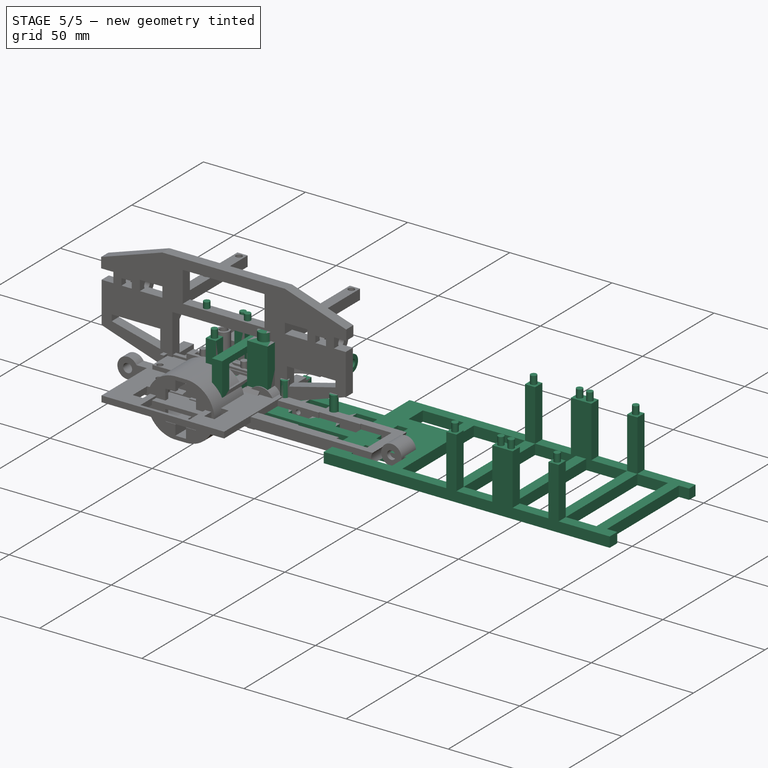
[diagram: stage 5 of 5 — iso view after this stage's code; geometry added in this stage tinted green]
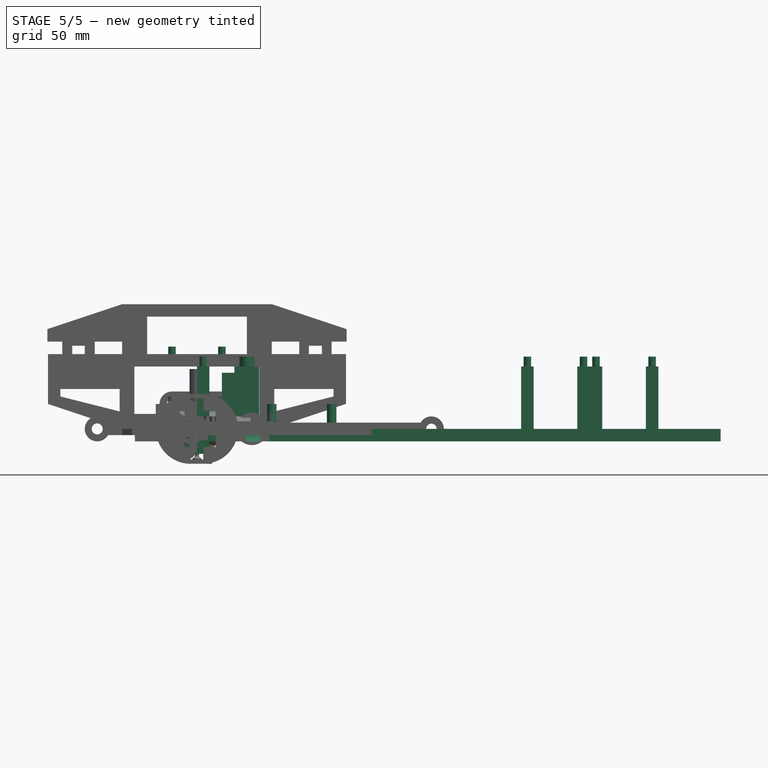
[diagram: stage 5 of 5 — front view after this stage's code; geometry added in this stage tinted green]
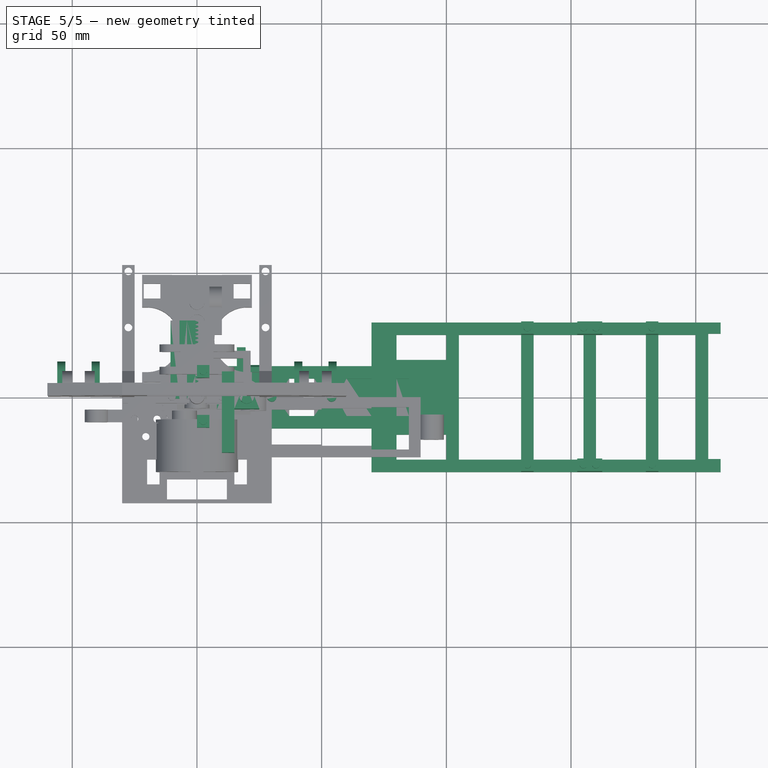
[diagram: stage 5 of 5 — top view after this stage's code; geometry added in this stage tinted green]
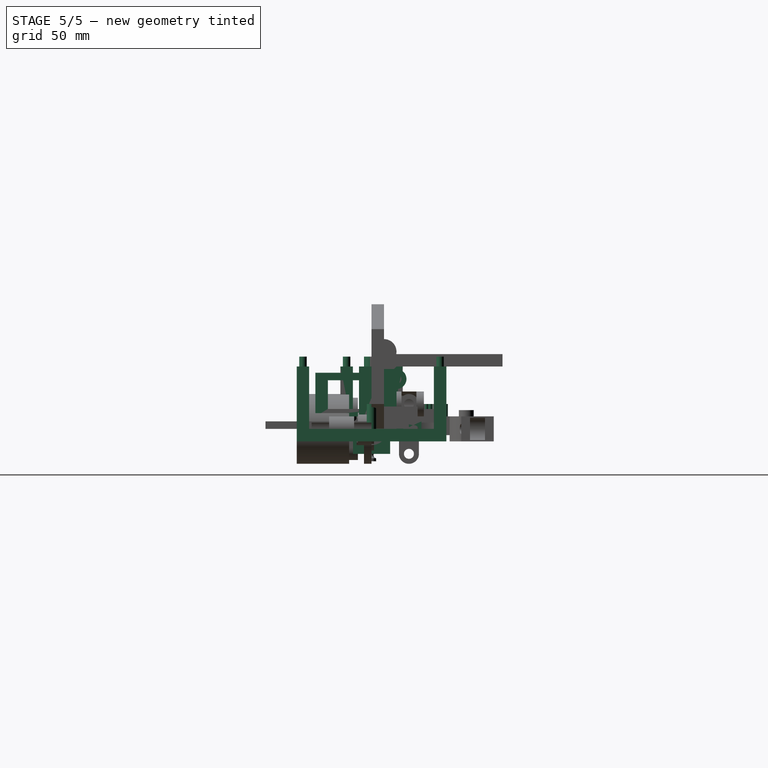
[diagram: stage 5 of 5 — right view after this stage's code; geometry added in this stage tinted green]
FEATURE [Sketcher::SketchObject] Sketch  label="BodyBottom"
  FullyConstrained = true
  MapMode = 5
  Support = -> [XY_Plane]
  sketch-geometry (36):
    g0: LineSegment StartX=0 StartY=12.5 StartZ=0 EndX=0 EndY=-12.5 EndZ=0
    g1: LineSegment StartX=0 StartY=-12.5 StartZ=0 EndX=70 EndY=-12.5 EndZ=0
    g2: LineSegment StartX=70 StartY=-12.5 StartZ=0 EndX=70 EndY=-30 EndZ=0
    g3: LineSegment StartX=70 StartY=-30 StartZ=0 EndX=210 EndY=-30 EndZ=0
    g4: LineSegment StartX=210 StartY=-30 StartZ=0 EndX=210 EndY=30 EndZ=0
    g5: LineSegment StartX=210 StartY=30 StartZ=0 EndX=70 EndY=30 EndZ=0
    g6: LineSegment StartX=70 StartY=30 StartZ=0 EndX=70 EndY=12.5 EndZ=0
    g7: LineSegment StartX=70 StartY=12.5 StartZ=0 EndX=0 EndY=12.5 EndZ=0
    g8: LineSegment StartX=5 StartY=7.5 StartZ=0 EndX=15 EndY=7.5 EndZ=0
    g9: LineSegment StartX=15 StartY=7.5 StartZ=0 EndX=15 EndY=-7.5 EndZ=0
    g10: LineSegment StartX=15 StartY=-7.5 StartZ=0 EndX=5 EndY=-7.5 EndZ=0
    g11: LineSegment StartX=5 StartY=-7.5 StartZ=0 EndX=5 EndY=7.5 EndZ=0
    g12: LineSegment StartX=80 StartY=25 StartZ=0 EndX=100 EndY=25 EndZ=0
    g13: LineSegment StartX=100 StartY=25 StartZ=0 EndX=100 EndY=-25 EndZ=0
    g14: LineSegment StartX=100 StartY=-25 StartZ=0 EndX=80 EndY=-25 EndZ=0
    g15: LineSegment StartX=80 StartY=-25 StartZ=0 EndX=80 EndY=25 EndZ=0
    g16: LineSegment StartX=105 StartY=25 StartZ=0 EndX=130 EndY=25 EndZ=0
    g17: LineSegment StartX=130 StartY=25 StartZ=0 EndX=130 EndY=-25 EndZ=0
    g18: LineSegment StartX=130 StartY=-25 StartZ=0 EndX=105 EndY=-25 EndZ=0
    g19: LineSegment StartX=105 StartY=-25 StartZ=0 EndX=105 EndY=25 EndZ=0
    g20: LineSegment StartX=135 StartY=25 StartZ=0 EndX=155 EndY=25 EndZ=0
    g21: LineSegment StartX=155 StartY=25 StartZ=0 EndX=155 EndY=-25 EndZ=0
    g22: LineSegment StartX=155 StartY=-25 StartZ=0 EndX=135 EndY=-25 EndZ=0
    g23: LineSegment StartX=135 StartY=-25 StartZ=0 EndX=135 EndY=25 EndZ=0
    g24: LineSegment StartX=37 StartY=7.5 StartZ=0 EndX=47 EndY=7.5 EndZ=0
    g25: LineSegment StartX=47 StartY=7.5 StartZ=0 EndX=47 EndY=-7.5 EndZ=0
    g26: LineSegment StartX=47 StartY=-7.5 StartZ=0 EndX=37 EndY=-7.5 EndZ=0
    g27: LineSegment StartX=37 StartY=-7.5 StartZ=0 EndX=37 EndY=7.5 EndZ=0
    g28: LineSegment StartX=160 StartY=25 StartZ=0 EndX=180 EndY=25 EndZ=0
    g29: LineSegment StartX=180 StartY=25 StartZ=0 EndX=180 EndY=-25 EndZ=0
    g30: LineSegment StartX=180 StartY=-25 StartZ=0 EndX=160 EndY=-25 EndZ=0
    g31: LineSegment StartX=160 StartY=-25 StartZ=0 EndX=160 EndY=25 EndZ=0
    g32: LineSegment StartX=185 StartY=25 StartZ=0 EndX=200 EndY=25 EndZ=0
    g33: LineSegment StartX=200 StartY=25 StartZ=0 EndX=200 EndY=-25 EndZ=0
    g34: LineSegment StartX=200 StartY=-25 StartZ=0 EndX=185 EndY=-25 EndZ=0
    g35: LineSegment StartX=185 StartY=-25 StartZ=0 EndX=185 EndY=25 EndZ=0
  constraints (108):
    c: Vertical(g0)
    c: Coincident(g0,g1)
    c: Horizontal(g1)
    c: Coincident(g1,g2)
    c: Vertical(g2)
    c: Coincident(g2,g3)
    c: Horizontal(g3)
    c: Coincident(g3,g4)
    c: Vertical(g4)
    c: Coincident(g4,g5)
    c: Horizontal(g5)
    c: Coincident(g5,g6)
    c: Vertical(g6)
    c: Coincident(g6,g7)
    c: Coincident(g7,g0)
    c: Horizontal(g7)
    c: DistanceX(g0,g-1) = 0
    c: DistanceY(g0,g-1) = 12.5
    c: DistanceY(g-1,g0) = 12.5
    c: DistanceX(g0,g1) = 70
    c: DistanceX(g7,g7) = 70
    c: DistanceX(g3,g3) = 140
    c: DistanceY(g2,g2) = 17.5
    c: DistanceY(g6,g6) = 17.5
    c: Coincident(g8,g9)
    c: Coincident(g9,g10)
    c: Coincident(g10,g11)
    c: Coincident(g11,g8)
    c: Horizontal(g8)
    c: Horizontal(g10)
    c: Vertical(g9)
    c: Vertical(g11)
    c: DistanceX(g-1,g8) = 5
    c: DistanceX(g8,g8) = 10
    c: DistanceY(g8,g0) = 5
    c: DistanceY(g0,g10) = 5
    c: Coincident(g12,g13)
    c: Coincident(g13,g14)
    c: Coincident(g14,g15)
    c: Coincident(g15,g12)
    c: Horizontal(g12)
    c: Horizontal(g14)
    c: Vertical(g13)
    c: Vertical(g15)
    c: DistanceX(g6,g12) = 10
    c: DistanceY(g12,g5) = 5
    c: DistanceY(g2,g14) = 5
    c: DistanceX(g12,g12) = 20
    c: Coincident(g16,g17)
    c: Coincident(g17,g18)
    c: Coincident(g18,g19)
    c: Coincident(g19,g16)
    c: Horizontal(g16)
    c: Horizontal(g18)
    c: Vertical(g17)
    c: Vertical(g19)
    c: Coincident(g20,g21)
    c: Coincident(g21,g22)
    c: Coincident(g22,g23)
    c: Coincident(g23,g20)
    c: Horizontal(g20)
    c: Horizontal(g22)
    c: Vertical(g21)
    c: Vertical(g23)
    c: DistanceX(g12,g16) = 5
    c: DistanceY(g16,g5) = 5
    c: DistanceY(g2,g18) = 5
    c: DistanceX(g18,g17) = 25
    c: DistanceX(g17,g22) = 5
    c: DistanceY(g3,g21) = 5
    c: DistanceY(g20,g4) = 5
    c: Coincident(g24,g25)
    c: Coincident(g25,g26)
    c: Coincident(g26,g27)
    c: Coincident(g27,g24)
    c: Horizontal(g24)
    c: Horizontal(g26)
    c: Vertical(g25)
    c: Vertical(g27)
    c: DistanceX(g8,g24) = 22
    c: DistanceY(g26,g24) = 15
    c: DistanceX(g24,g24) = 10
    c: DistanceY(g24,g0) = 5
    c: DistanceX(g22,g22) = 20
    c: Coincident(g28,g29)
    c: Coincident(g29,g30)
    c: Coincident(g30,g31)
    c: Coincident(g31,g28)
    c: Horizontal(g28)
    c: Horizontal(g30)
    c: Vertical(g29)
    c: Vertical(g31)
    c: DistanceX(g21,g30) = 5
    c: DistanceY(g28,g4) = 5
    c: DistanceY(g3,g30) = 5
    c: Coincident(g32,g33)
    c: Coincident(g33,g34)
    c: Coincident(g34,g35)
    c: Coincident(g35,g32)
    c: Horizontal(g32)
    c: Horizontal(g34)
    c: Vertical(g33)
    c: Vertical(g35)
    c: DistanceX(g29,g34) = 5
    c: DistanceX(g30,g29) = 20
    c: DistanceY(g3,g33) = 5
    c: DistanceX(g33,g3) = 10
    c: DistanceY(g32,g4) = 5
FEATURE [PartDesign::Pad] Pad
  Direction = (1,1,1)
  Length = 5
  Length2 = 100
  Profile = -> Sketch
  Refine = true
  Reversed = true
  Type = 0
FEATURE [Sketcher::SketchObject] Sketch003  label="Left_Connector"
  AttachmentOffset = pos=(0,0,-5) rot=(0,0,1;0rad)
  FullyConstrained = true
  MapMode = 5
  Placement = pos=(0,0,-5) rot=(0,0,1;0rad)
  Support = -> [XY_Plane]
  sketch-geometry (4):
    g0: LineSegment StartX=16 StartY=-10 StartZ=0 EndX=29 EndY=-10 EndZ=0
    g1: LineSegment StartX=29 StartY=-10 StartZ=0 EndX=29 EndY=-20 EndZ=0
    g2: LineSegment StartX=29 StartY=-20 StartZ=0 EndX=16 EndY=-20 EndZ=0
    g3: LineSegment StartX=16 StartY=-20 StartZ=0 EndX=16 EndY=-10 EndZ=0
  constraints (12):
    c: Coincident(g0,g1)
    c: Coincident(g1,g2)
    c: Coincident(g2,g3)
    c: Coincident(g3,g0)
    c: Horizontal(g0)
    c: Horizontal(g2)
    c: Vertical(g1)
    c: Vertical(g3)
    c: DistanceY(g0,g-1) = 10
    c: DistanceX(g0,g0) = 13
    c: DistanceX(g-1,g0) = 16
    c: DistanceY(g2,g0) = 10
FEATURE [Sketcher::SketchObject] Sketch004  label="Right_Connector"
  AttachmentOffset = pos=(0,0,-5) rot=(0,0,1;0rad)
  FullyConstrained = true
  MapMode = 5
  Placement = pos=(0,0,-5) rot=(0,0,1;0rad)
  Support = -> [XY_Plane]
  sketch-geometry (4):
    g0: LineSegment StartX=16 StartY=20 StartZ=0 EndX=29 EndY=20 EndZ=0
    g1: LineSegment StartX=29 StartY=20 StartZ=0 EndX=29 EndY=10 EndZ=0
    g2: LineSegment StartX=29 StartY=10 StartZ=0 EndX=16 EndY=10 EndZ=0
    g3: LineSegment StartX=16 StartY=10 StartZ=0 EndX=16 EndY=20 EndZ=0
  constraints (12):
    c: Coincident(g0,g1)
    c: Coincident(g1,g2)
    c: Coincident(g2,g3)
    c: Coincident(g3,g0)
    c: Horizontal(g0)
    c: Horizontal(g2)
    c: Vertical(g1)
    c: Vertical(g3)
    c: DistanceX(g-1,g2) = 16
    c: DistanceX(g0,g0) = 13
    c: DistanceY(g-1,g2) = 10
    c: DistanceY(g2,g0) = 10
FEATURE [PartDesign::Pad] Pad001
  BaseFeature = -> Pad
  Direction = (1,1,1)
  Length = 8
  Length2 = 100
  Profile = -> Sketch004
  Refine = true
  Type = 0
FEATURE [PartDesign::Pad] Pad002
  BaseFeature = -> Pad001
  Direction = (1,1,1)
  Length = 8
  Length2 = 100
  Profile = -> Sketch003
  Refine = true
  Type = 0
FEATURE [Sketcher::SketchObject] Sketch008  label="Front_Right_pillar"
  FullyConstrained = true
  MapMode = 5
  Support = -> [XY_Plane]
  sketch-geometry (4):
    g0: LineSegment StartX=0 StartY=12.5 StartZ=0 EndX=5 EndY=12.5 EndZ=0
    g1: LineSegment StartX=5 StartY=12.5 StartZ=0 EndX=5 EndY=7.5 EndZ=0
    g2: LineSegment StartX=5 StartY=7.5 StartZ=0 EndX=0 EndY=7.5 EndZ=0
    g3: LineSegment StartX=0 StartY=7.5 StartZ=0 EndX=0 EndY=12.5 EndZ=0
  constraints (12):
    c: Coincident(g0,g1)
    c: Coincident(g1,g2)
    c: Coincident(g2,g3)
    c: Coincident(g3,g0)
    c: Horizontal(g0)
    c: Horizontal(g2)
    c: Vertical(g1)
    c: Vertical(g3)
    c: DistanceX(g2,g1) = 5
    c: DistanceY(g2,g0) = 5
    c: DistanceY(g-1,g2) = 7.5
    c: DistanceX(g2,g-1) = 0
FEATURE [Sketcher::SketchObject] Sketch006  label="MainPillar"
  FullyConstrained = true
  MapMode = 5
  Support = -> [XY_Plane]
  sketch-geometry (4):
    g0: LineSegment StartX=15 StartY=5 StartZ=0 EndX=25 EndY=5 EndZ=0
    g1: LineSegment StartX=25 StartY=5 StartZ=0 EndX=25 EndY=-5 EndZ=0
    g2: LineSegment StartX=25 StartY=-5 StartZ=0 EndX=15 EndY=-5 EndZ=0
    g3: LineSegment StartX=15 StartY=-5 StartZ=0 EndX=15 EndY=5 EndZ=0
  constraints (12):
    c: Coincident(g0,g1)
    c: Coincident(g1,g2)
    c: Coincident(g2,g3)
    c: Coincident(g3,g0)
    c: Horizontal(g0)
    c: Horizontal(g2)
    c: Vertical(g1)
    c: Vertical(g3)
    c: DistanceX(g-1,g0) = 15
    c: DistanceX(g0,g0) = 10
    c: DistanceY(g1,g0) = 10
    c: DistanceY(g-1,g0) = 5
FEATURE [Sketcher::SketchObject] Sketch007  label="Front_Left_pillar"
  FullyConstrained = true
  MapMode = 5
  Support = -> [XY_Plane]
  sketch-geometry (4):
    g0: LineSegment StartX=0 StartY=-12.5 StartZ=0 EndX=5 EndY=-12.5 EndZ=0
    g1: LineSegment StartX=5 StartY=-12.5 StartZ=0 EndX=5 EndY=-7.5 EndZ=0
    g2: LineSegment StartX=5 StartY=-7.5 StartZ=0 EndX=0 EndY=-7.5 EndZ=0
    g3: LineSegment StartX=0 StartY=-7.5 StartZ=0 EndX=0 EndY=-12.5 EndZ=0
  constraints (12):
    c: Coincident(g0,g1)
    c: Coincident(g1,g2)
    c: Coincident(g2,g3)
    c: Coincident(g3,g0)
    c: Horizontal(g0)
    c: Horizontal(g2)
    c: Vertical(g1)
    c: Vertical(g3)
    c: DistanceX(g2,g-1) = 0
    c: DistanceY(g2,g-1) = 7.5
    c: DistanceY(g0,g2) = 5
    c: DistanceX(g0,g0) = 5
FEATURE [Sketcher::SketchObject] Sketch005  label="RackMount_Pin"
  FullyConstrained = true
  MapMode = 5
  Support = -> [XY_Plane]
  sketch-geometry (1):
    g0: Circle CenterX=30 CenterY=0 CenterZ=0 NormalX=0 NormalY=0 NormalZ=1 AngleXU=0 Radius=1.9
  constraints (3):
    c: PointOnObject(g0,g-1)
    c: Radius(g0) = 1.9
    c: DistanceX(g-1,g0) = 30
FEATURE [Sketcher::SketchObject] Sketch014  label="Rear_Left_Circle2"
  FullyConstrained = true
  MapMode = 5
  Support = -> [XY_Plane]
  sketch-geometry (1):
    g0: Circle CenterX=182.5 CenterY=-27.5 CenterZ=0 NormalX=0 NormalY=0 NormalZ=1 AngleXU=0 Radius=1.5
  constraints (3):
    c: Radius(g0) = 1.5
    c: DistanceY(g0,g-1) = 27.5
    c: DistanceX(g-1,g0) = 182.5
FEATURE [Sketcher::SketchObject] Sketch009  label="RackMount_pil2"
  FullyConstrained = true
  MapMode = 5
  Support = -> [XY_Plane]
  sketch-geometry (1):
    g0: Circle CenterX=54 CenterY=0 CenterZ=0 NormalX=0 NormalY=0 NormalZ=1 AngleXU=0 Radius=1.9
  constraints (3):
    c: PointOnObject(g0,g-1)
    c: Radius(g0) = 1.9
    c: DistanceX(g-1,g0) = 54
FEATURE [Sketcher::SketchObject] Sketch015  label="Rear_Left_Circle3"
  FullyConstrained = true
  MapMode = 5
  Support = -> [XY_Plane]
  sketch-geometry (1):
    g0: Circle CenterX=155 CenterY=-27.5 CenterZ=0 NormalX=0 NormalY=0 NormalZ=1 AngleXU=0 Radius=1.5
  constraints (3):
    c: DistanceY(g0,g-1) = 27.5
    c: Radius(g0) = 1.5
    c: DistanceX(g-1,g0) = 155
FEATURE [Sketcher::SketchObject] Sketch016  label="Rear_Right_Circle2"
  FullyConstrained = true
  MapMode = 5
  Support = -> [XY_Plane]
  sketch-geometry (1):
    g0: Circle CenterX=182.5 CenterY=27.5 CenterZ=0 NormalX=0 NormalY=0 NormalZ=1 AngleXU=0 Radius=1.5
  constraints (3):
    c: Radius(g0) = 1.5
    c: DistanceY(g-1,g0) = 27.5
    c: DistanceX(g-1,g0) = 182.5
FEATURE [Sketcher::SketchObject] Sketch017  label="Rear_Right_Circle3_1"
  FullyConstrained = true
  MapMode = 5
  Support = -> [XY_Plane]
  sketch-geometry (1):
    g0: Circle CenterX=155 CenterY=27.5 CenterZ=0 NormalX=0 NormalY=0 NormalZ=1 AngleXU=0 Radius=1.5
  constraints (3):
    c: Radius(g0) = 1.5
    c: DistanceY(g-1,g0) = 27.5
    c: DistanceX(g-1,g0) = 155
FEATURE [Sketcher::SketchObject] Sketch018  label="Rear_Right_Sq2"
  FullyConstrained = true
  MapMode = 5
  Support = -> [XY_Plane]
  sketch-geometry (4):
    g0: LineSegment StartX=180 StartY=25 StartZ=0 EndX=185 EndY=25 EndZ=0
    g1: LineSegment StartX=185 StartY=25 StartZ=0 EndX=185 EndY=30 EndZ=0
    g2: LineSegment StartX=185 StartY=30 StartZ=0 EndX=180 EndY=30 EndZ=0
    g3: LineSegment StartX=180 StartY=30 StartZ=0 EndX=180 EndY=25 EndZ=0
  constraints (12):
    c: Coincident(g0,g1)
    c: Coincident(g1,g2)
    c: Coincident(g2,g3)
    c: Coincident(g3,g0)
    c: Horizontal(g0)
    c: Horizontal(g2)
    c: Vertical(g1)
    c: Vertical(g3)
    c: DistanceY(g1,g1) = 5
    c: DistanceX(g2,g1) = 5
    c: DistanceY(g-1,g0) = 25
    c: DistanceX(g-1,g0) = 180
FEATURE [Sketcher::SketchObject] Sketch023  label="Rear_Right_Circle4"
  FullyConstrained = true
  MapMode = 5
  Support = -> [XY_Plane]
  sketch-geometry (1):
    g0: Circle CenterX=132.5 CenterY=27.5 CenterZ=0 NormalX=0 NormalY=0 NormalZ=1 AngleXU=0 Radius=1.5
  constraints (3):
    c: Radius(g0) = 1.5
    c: DistanceX(g-1,g0) = 132.5
    c: DistanceY(g-1,g0) = 27.5
FEATURE [Sketcher::SketchObject] Sketch021  label="Rear_Left_Sq3"
  FullyConstrained = true
  MapMode = 5
  Support = -> [XY_Plane]
  sketch-geometry (4):
    g0: LineSegment StartX=152.5 StartY=-25 StartZ=0 EndX=162.5 EndY=-25 EndZ=0
    g1: LineSegment StartX=162.5 StartY=-25 StartZ=0 EndX=162.5 EndY=-30 EndZ=0
    g2: LineSegment StartX=162.5 StartY=-30 StartZ=0 EndX=152.5 EndY=-30 EndZ=0
    g3: LineSegment StartX=152.5 StartY=-30 StartZ=0 EndX=152.5 EndY=-25 EndZ=0
  constraints (12):
    c: Coincident(g0,g1)
    c: Coincident(g1,g2)
    c: Coincident(g2,g3)
    c: Coincident(g3,g0)
    c: Horizontal(g0)
    c: Horizontal(g2)
    c: Vertical(g1)
    c: Vertical(g3)
    c: DistanceY(g1,g1) = 5
    c: DistanceX(g2,g2) = 10
    c: DistanceX(g-1,g0) = 152.5
    c: DistanceY(g0,g-1) = 25
FEATURE [Sketcher::SketchObject] Sketch020  label="Rear_Left_Sq2"
  FullyConstrained = true
  MapMode = 5
  Support = -> [XY_Plane]
  sketch-geometry (4):
    g0: LineSegment StartX=180 StartY=-25 StartZ=0 EndX=185 EndY=-25 EndZ=0
    g1: LineSegment StartX=185 StartY=-25 StartZ=0 EndX=185 EndY=-30 EndZ=0
    g2: LineSegment StartX=185 StartY=-30 StartZ=0 EndX=180 EndY=-30 EndZ=0
    g3: LineSegment StartX=180 StartY=-30 StartZ=0 EndX=180 EndY=-25 EndZ=0
  constraints (12):
    c: Coincident(g0,g1)
    c: Coincident(g1,g2)
    c: Coincident(g2,g3)
    c: Coincident(g3,g0)
    c: Horizontal(g0)
    c: Horizontal(g2)
    c: Vertical(g1)
    c: Vertical(g3)
    c: DistanceY(g1,g1) = 5
    c: DistanceX(g2,g2) = 5
    c: DistanceX(g-1,g0) = 180
    c: DistanceY(g0,g-1) = 25
FEATURE [Sketcher::SketchObject] Sketch022  label="Rear_Left_Circle4"
  FullyConstrained = true
  MapMode = 5
  Support = -> [XY_Plane]
  sketch-geometry (1):
    g0: Circle CenterX=132.5 CenterY=-27.5 CenterZ=0 NormalX=0 NormalY=0 NormalZ=1 AngleXU=0 Radius=1.5
  constraints (3):
    c: Radius(g0) = 1.5
    c: DistanceY(g0,g-1) = 27.5
    c: DistanceX(g-1,g0) = 132.5
FEATURE [Sketcher::SketchObject] Sketch019  label="Rear_Right_Sq3"
  FullyConstrained = true
  MapMode = 5
  Support = -> [XY_Plane]
  sketch-geometry (4):
    g0: LineSegment StartX=152.5 StartY=25 StartZ=0 EndX=162.5 EndY=25 EndZ=0
    g1: LineSegment StartX=162.5 StartY=25 StartZ=0 EndX=162.5 EndY=30 EndZ=0
    g2: LineSegment StartX=162.5 StartY=30 StartZ=0 EndX=152.5 EndY=30 EndZ=0
    g3: LineSegment StartX=152.5 StartY=30 StartZ=0 EndX=152.5 EndY=25 EndZ=0
  constraints (12):
    c: Coincident(g0,g1)
    c: Coincident(g1,g2)
    c: Coincident(g2,g3)
    c: Coincident(g3,g0)
    c: Horizontal(g0)
    c: Horizontal(g2)
    c: Vertical(g1)
    c: Vertical(g3)
    c: DistanceY(g0,g1) = 5
    c: DistanceX(g2,g1) = 10
    c: DistanceX(g-1,g0) = 152.5
    c: DistanceY(g-1,g0) = 25
FEATURE [Sketcher::SketchObject] Sketch024  label="Rear_Left_Sq4"
  FullyConstrained = true
  MapMode = 5
  Support = -> [XY_Plane]
  sketch-geometry (4):
    g0: LineSegment StartX=130 StartY=-25 StartZ=0 EndX=135 EndY=-25 EndZ=0
    g1: LineSegment StartX=135 StartY=-25 StartZ=0 EndX=135 EndY=-30 EndZ=0
    g2: LineSegment StartX=135 StartY=-30 StartZ=0 EndX=130 EndY=-30 EndZ=0
    g3: LineSegment StartX=130 StartY=-30 StartZ=0 EndX=130 EndY=-25 EndZ=0
  constraints (12):
    c: Coincident(g0,g1)
    c: Coincident(g1,g2)
    c: Coincident(g2,g3)
    c: Coincident(g3,g0)
    c: Horizontal(g0)
    c: Horizontal(g2)
    c: Vertical(g1)
    c: Vertical(g3)
    c: DistanceX(g2,g2) = 5
    c: DistanceY(g1,g1) = 5
    c: DistanceY(g0,g-1) = 25
    c: DistanceX(g-1,g0) = 130
FEATURE [Sketcher::SketchObject] Sketch026  label="Rear_Left_Circle3_2"
  FullyConstrained = true
  MapMode = 5
  Support = -> [XY_Plane]
  sketch-geometry (1):
    g0: Circle CenterX=160 CenterY=-27.5 CenterZ=0 NormalX=0 NormalY=0 NormalZ=1 AngleXU=0 Radius=1.5
  constraints (3):
    c: Radius(g0) = 1.5
    c: DistanceY(g0,g-1) = 27.5
    c: DistanceX(g-1,g0) = 160
FEATURE [Sketcher::SketchObject] Sketch027  label="Rear_Right_Circle3_2"
  FullyConstrained = true
  MapMode = 5
  Support = -> [XY_Plane]
  sketch-geometry (1):
    g0: Circle CenterX=160 CenterY=27.5 CenterZ=0 NormalX=0 NormalY=0 NormalZ=1 AngleXU=0 Radius=1.5
  constraints (3):
    c: Radius(g0) = 1.5
    c: DistanceY(g-1,g0) = 27.5
    c: DistanceX(g-1,g0) = 160
FEATURE [Sketcher::SketchObject] Sketch025  label="Rear_Right_Sq4"
  FullyConstrained = true
  MapMode = 5
  Support = -> [XY_Plane]
  sketch-geometry (4):
    g0: LineSegment StartX=130 StartY=30 StartZ=0 EndX=135 EndY=30 EndZ=0
    g1: LineSegment StartX=135 StartY=30 StartZ=0 EndX=135 EndY=25 EndZ=0
    g2: LineSegment StartX=135 StartY=25 StartZ=0 EndX=130 EndY=25 EndZ=0
    g3: LineSegment StartX=130 StartY=25 StartZ=0 EndX=130 EndY=30 EndZ=0
  constraints (12):
    c: Coincident(g0,g1)
    c: Coincident(g1,g2)
    c: Coincident(g2,g3)
    c: Coincident(g3,g0)
    c: Horizontal(g0)
    c: Horizontal(g2)
    c: Vertical(g1)
    c: Vertical(g3)
    c: DistanceY(g1,g1) = 5
    c: DistanceX(g0,g0) = 5
    c: DistanceX(g-1,g2) = 130
    c: DistanceY(g-1,g2) = 25
FEATURE [Sketcher::SketchObject] Sketch028  label="Pocket"
  FullyConstrained = true
  MapMode = 5
  Support = -> [XY_Plane]
  sketch-geometry (4):
    g0: LineSegment StartX=205 StartY=25.5 StartZ=0 EndX=225 EndY=25.5 EndZ=0
    g1: LineSegment StartX=225 StartY=25.5 StartZ=0 EndX=225 EndY=-24.75 EndZ=0
    g2: LineSegment StartX=225 StartY=-24.75 StartZ=0 EndX=205 EndY=-24.75 EndZ=0
    g3: LineSegment StartX=205 StartY=-24.75 StartZ=0 EndX=205 EndY=25.5 EndZ=0
  constraints (12):
    c: Coincident(g0,g1)
    c: Coincident(g1,g2)
    c: Coincident(g2,g3)
    c: Coincident(g3,g0)
    c: Horizontal(g0)
    c: Horizontal(g2)
    c: Vertical(g1)
    c: Vertical(g3)
    c: DistanceX(g-1,g0) = 205
    c: DistanceY(g-1,g0) = 25.5
    c: DistanceX(g0,g0) = 20
    c: DistanceY(g2,g0) = 50.25
FEATURE [Sketcher::SketchObject] Sketch030  label="Circle_Pocket_2"
  FullyConstrained = true
  MapMode = 5
  Placement = pos=(0,0,0) rot=(0.57735,0.57735,0.57735;2.0944rad)
  Support = -> [YZ_Plane]
  sketch-geometry (1):
    g0: Circle CenterX=17 CenterY=-0.5 CenterZ=0 NormalX=0 NormalY=0 NormalZ=1 AngleXU=0 Radius=2
  constraints (3):
    c: Radius(g0) = 2
    c: DistanceX(g-1,g0) = 17
    c: DistanceY(g-1,g0) = -0.5
FEATURE [Sketcher::SketchObject] Sketch035
  FullyConstrained = true
  MapMode = 5
  Support = -> [XY_Plane]
  sketch-geometry (1):
    g0: Circle CenterX=20 CenterY=0 CenterZ=0 NormalX=0 NormalY=0 NormalZ=1 AngleXU=0 Radius=3
  constraints (3):
    c: DistanceY(g-1,g0) = 0
    c: DistanceX(g-1,g0) = 20
    c: Radius(g0) = 3
FEATURE [Sketcher::SketchObject] Sketch031  label="Left_Wheel_Rod_Connector"
  AttachmentOffset = pos=(0,0,22.5) rot=(0,0,1;0rad)
  FullyConstrained = true
  MapMode = 5
  Placement = pos=(22.5,-5e-15,5e-15) rot=(0.57735,0.57735,0.57735;2.0944rad)
  Support = -> [YZ_Plane]
  sketch-geometry (1):
    g0: Circle CenterX=-17 CenterY=-0.5 CenterZ=0 NormalX=0 NormalY=0 NormalZ=1 AngleXU=0 Radius=6
  constraints (3):
    c: Radius(g0) = 6
    c: DistanceX(g0,g-1) = 17
    c: DistanceY(g-1,g0) = -0.5
FEATURE [PartDesign::Pocket] Pocket  label="Pocket001"
  BaseFeature = -> Pad002
  Length = 6
  Length2 = 100
  Midplane = true
  Profile = -> Sketch031
  Refine = true
  Reversed = true
  Type = 0
FEATURE [Sketcher::SketchObject] Sketch029  label="Circle_Pocket"
  FullyConstrained = true
  MapMode = 5
  Placement = pos=(0,0,0) rot=(0.57735,0.57735,0.57735;2.0944rad)
  Support = -> [YZ_Plane]
  sketch-geometry (1):
    g0: Circle CenterX=-17 CenterY=-0.5 CenterZ=0 NormalX=0 NormalY=0 NormalZ=1 AngleXU=0 Radius=2
  constraints (3):
    c: Radius(g0) = 2
    c: DistanceY(g-1,g0) = -0.5
    c: DistanceX(g0,g-1) = 17
FEATURE [Sketcher::SketchObject] Sketch034  label="Front_Left_Circle"
  FullyConstrained = true
  MapMode = 5
  Support = -> [XY_Plane]
  sketch-geometry (1):
    g0: Circle CenterX=2.5 CenterY=-10 CenterZ=0 NormalX=0 NormalY=0 NormalZ=1 AngleXU=0 Radius=1.5
  constraints (3):
    c: Radius(g0) = 1.5
    c: DistanceX(g-1,g0) = 2.5
    c: DistanceY(g0,g-1) = 10
FEATURE [Sketcher::SketchObject] Sketch032
  AttachmentOffset = pos=(0,0,22.5) rot=(0,0,1;0rad)
  FullyConstrained = true
  MapMode = 5
  Placement = pos=(22.5,-5e-15,5e-15) rot=(0.57735,0.57735,0.57735;2.0944rad)
  Support = -> [YZ_Plane]
  sketch-geometry (1):
    g0: Circle CenterX=17 CenterY=-0.5 CenterZ=0 NormalX=0 NormalY=0 NormalZ=1 AngleXU=0 Radius=6
  constraints (3):
    c: DistanceY(g-1,g0) = -0.5
    c: DistanceX(g-1,g0) = 17
    c: Radius(g0) = 6
FEATURE [PartDesign::Pocket] Pocket001  label="Pocket002"
  BaseFeature = -> Pocket
  Length = 6
  Length2 = 100
  Midplane = true
  Profile = -> Sketch032
  Refine = true
  Reversed = true
  Type = 0
FEATURE [PartDesign::Pocket] Pocket002  label="Pocket003"
  BaseFeature = -> Pocket001
  Length = 80
  Length2 = 100
  Midplane = true
  Profile = -> Sketch029
  Refine = true
  Type = 0
FEATURE [PartDesign::Pocket] Pocket003  label="Pocket004"
  BaseFeature = -> Pocket002
  Length = 50
  Length2 = 100
  Profile = -> Sketch030
  Refine = true
  Reversed = true
  Type = 0
FEATURE [PartDesign::Pocket] Pocket004  label="Pocket005"
  BaseFeature = -> Pocket003
  Length = 5
  Length2 = 100
  Profile = -> Sketch028
  Refine = true
  Type = 0
FEATURE [PartDesign::Pad] Pad003
  BaseFeature = -> Pocket004
  Direction = (1,1,1)
  Length = 25
  Length2 = 100
  Profile = -> Sketch007
  Refine = true
  Type = 0
FEATURE [PartDesign::Pad] Pad004
  BaseFeature = -> Pad003
  Direction = (1,1,1)
  Length = 25
  Length2 = 100
  Profile = -> Sketch008
  Refine = true
  Type = 0
FEATURE [PartDesign::Pad] Pad005
  BaseFeature = -> Pad004
  Direction = (1,1,1)
  Length = 25
  Length2 = 100
  Profile = -> Sketch006
  Refine = true
  Type = 0
FEATURE [PartDesign::Pad] Pad006
  BaseFeature = -> Pad005
  Direction = (1,1,1)
  Length = 10
  Length2 = 100
  Profile = -> Sketch005
  Refine = true
  Type = 0
FEATURE [PartDesign::Pad] Pad007
  BaseFeature = -> Pad006
  Direction = (1,1,1)
  Length = 10
  Length2 = 100
  Profile = -> Sketch009
  Refine = true
  Type = 0
FEATURE [PartDesign::Pad] Pad008
  BaseFeature = -> Pad007
  Direction = (1,1,1)
  Length = 25
  Length2 = 100
  Profile = -> Sketch018
  Refine = true
  Type = 0
FEATURE [PartDesign::Pad] Pad009
  BaseFeature = -> Pad008
  Direction = (1,1,1)
  Length = 25
  Length2 = 100
  Profile = -> Sketch019
  Refine = true
  Type = 0
FEATURE [PartDesign::Pad] Pad010
  BaseFeature = -> Pad009
  Direction = (1,1,1)
  Length = 25
  Length2 = 100
  Profile = -> Sketch020
  Refine = true
  Type = 0
FEATURE [PartDesign::Pad] Pad011
  BaseFeature = -> Pad010
  Direction = (1,1,1)
  Length = 25
  Length2 = 100
  Profile = -> Sketch021
  Refine = true
  Type = 0
FEATURE [PartDesign::Pad] Pad012
  BaseFeature = -> Pad011
  Direction = (1,1,1)
  Length = 25
  Length2 = 100
  Profile = -> Sketch024
  Refine = true
  Type = 0
FEATURE [PartDesign::Pad] Pad013
  BaseFeature = -> Pad012
  Direction = (1,1,1)
  Length = 25
  Length2 = 100
  Profile = -> Sketch025
  Refine = true
  Type = 0
FEATURE [PartDesign::Pad] Pad014
  BaseFeature = -> Pad013
  Direction = (1,1,1)
  Length = 29
  Length2 = 100
  Profile = -> Sketch014
  Refine = true
  Type = 0
FEATURE [PartDesign::Pad] Pad015
  BaseFeature = -> Pad014
  Direction = (1,1,1)
  Length = 29
  Length2 = 100
  Profile = -> Sketch015
  Refine = true
  Type = 0
FEATURE [PartDesign::Pad] Pad016
  BaseFeature = -> Pad015
  Direction = (1,1,1)
  Length = 29
  Length2 = 100
  Profile = -> Sketch016
  Refine = true
  Type = 0
FEATURE [PartDesign::Pad] Pad017
  BaseFeature = -> Pad016
  Direction = (1,1,1)
  Length = 29
  Length2 = 100
  Profile = -> Sketch017
  Refine = true
  Type = 0
FEATURE [PartDesign::Pad] Pad018
  BaseFeature = -> Pad017
  Direction = (1,1,1)
  Length = 29
  Length2 = 100
  Profile = -> Sketch022
  Refine = true
  Type = 0
FEATURE [PartDesign::Pad] Pad019
  BaseFeature = -> Pad018
  Direction = (1,1,1)
  Length = 29
  Length2 = 100
  Profile = -> Sketch023
  Refine = true
  Type = 0
FEATURE [PartDesign::Pad] Pad020
  BaseFeature = -> Pad019
  Direction = (1,1,1)
  Length = 29
  Length2 = 100
  Profile = -> Sketch026
  Refine = true
  Type = 0
FEATURE [PartDesign::Pad] Pad021
  BaseFeature = -> Pad020
  Direction = (1,1,1)
  Length = 29
  Length2 = 100
  Profile = -> Sketch027
  Refine = true
  Type = 0
FEATURE [Sketcher::SketchObject] Sketch033  label="Front_Right_Circle"
  FullyConstrained = true
  MapMode = 5
  Support = -> [XY_Plane]
  sketch-geometry (1):
    g0: Circle CenterX=2.5 CenterY=10 CenterZ=0 NormalX=0 NormalY=0 NormalZ=1 AngleXU=0 Radius=1.5
  constraints (3):
    c: Radius(g0) = 1.5
    c: DistanceY(g-1,g0) = 10
    c: DistanceX(g-1,g0) = 2.5
FEATURE [PartDesign::Pad] Pad022
  BaseFeature = -> Pad021
  Direction = (1,1,1)
  Length = 29
  Length2 = 100
  Profile = -> Sketch033
  Refine = true
  Type = 0
FEATURE [PartDesign::Pad] Pad023
  BaseFeature = -> Pad022
  Direction = (1,1,1)
  Length = 29
  Length2 = 100
  Profile = -> Sketch034
  Refine = true
  Type = 0
FEATURE [PartDesign::Pad] Pad024
  BaseFeature = -> Pad023
  Direction = (1,1,1)
  Length = 29
  Length2 = 100
  Profile = -> Sketch035
  Refine = true
  Type = 0
FEATURE [Sketcher::SketchObject] Sketch039
  FullyConstrained = true
  MapMode = 5
  Support = -> [XY_Plane]
FEATURE [Sketcher::SketchObject] Sketch038
  FullyConstrained = true
  MapMode = 5
  Support = -> [XY_Plane]
  sketch-geometry (4):
    g0: LineSegment StartX=80 StartY=7.5 StartZ=0 EndX=85 EndY=7.5 EndZ=0
    g1: LineSegment StartX=85 StartY=7.5 StartZ=0 EndX=85 EndY=-7.5 EndZ=0
    g2: LineSegment StartX=85 StartY=-7.5 StartZ=0 EndX=80 EndY=-7.5 EndZ=0
    g3: LineSegment StartX=80 StartY=-7.5 StartZ=0 EndX=80 EndY=7.5 EndZ=0
  constraints (12):
    c: Coincident(g0,g1)
    c: Coincident(g1,g2)
    c: Coincident(g2,g3)
    c: Coincident(g3,g0)
    c: Horizontal(g0)
    c: Horizontal(g2)
    c: Vertical(g1)
    c: Vertical(g3)
    c: DistanceX(g-1,g0) = 80
    c: DistanceX(g0,g0) = 5
    c: DistanceY(g2,g0) = 15
    c: DistanceY(g-1,g0) = 7.5
FEATURE [Sketcher::SketchObject] Sketch037  label="Middle_Filler"
  FullyConstrained = true
  MapMode = 5
  Support = -> [XY_Plane]
  sketch-geometry (4):
    g0: LineSegment StartX=75 StartY=15 StartZ=0 EndX=101 EndY=15 EndZ=0
    g1: LineSegment StartX=101 StartY=15 StartZ=0 EndX=101 EndY=-15 EndZ=0
    g2: LineSegment StartX=101 StartY=-15 StartZ=0 EndX=75 EndY=-15 EndZ=0
    g3: LineSegment StartX=75 StartY=-15 StartZ=0 EndX=75 EndY=15 EndZ=0
  constraints (12):
    c: Coincident(g0,g1)
    c: Coincident(g1,g2)
    c: Coincident(g2,g3)
    c: Coincident(g3,g0)
    c: Horizontal(g0)
    c: Horizontal(g2)
    c: Vertical(g1)
    c: Vertical(g3)
    c: DistanceY(g-1,g0) = 15
    c: DistanceY(g2,g0) = 30
    c: DistanceX(g-1,g0) = 75
    c: DistanceX(g0,g0) = 26
FEATURE [Sketcher::SketchObject] Sketch036  label="Steering_Mount"
  FullyConstrained = true
  MapMode = 5
  Support = -> [XY_Plane]
  sketch-geometry (4):
    g0: LineSegment StartX=60 StartY=7.5 StartZ=0 EndX=70 EndY=7.5 EndZ=0
    g1: LineSegment StartX=70 StartY=7.5 StartZ=0 EndX=70 EndY=-7.5 EndZ=0
    g2: LineSegment StartX=70 StartY=-7.5 StartZ=0 EndX=60 EndY=-7.5 EndZ=0
    g3: LineSegment StartX=60 StartY=-7.5 StartZ=0 EndX=60 EndY=7.5 EndZ=0
  constraints (12):
    c: Coincident(g0,g1)
    c: Coincident(g1,g2)
    c: Coincident(g2,g3)
    c: Coincident(g3,g0)
    c: Horizontal(g0)
    c: Horizontal(g2)
    c: Vertical(g1)
    c: Vertical(g3)
    c: DistanceX(g-1,g0) = 60
    c: DistanceX(g0,g0) = 10
    c: DistanceY(g1,g0) = 15
    c: DistanceY(g-1,g0) = 7.5
FEATURE [PartDesign::Pocket] Pocket005  label="Pocket006"
  BaseFeature = -> Pad024
  Length = 2
  Length2 = 100
  Profile = -> Sketch036
  Refine = true
  Type = 0
FEATURE [PartDesign::Pad] Pad025
  BaseFeature = -> Pocket005
  Direction = (1,1,1)
  Length = 5
  Length2 = 100
  Profile = -> Sketch037
  Refine = true
  Reversed = true
  Type = 0
FEATURE [PartDesign::Pocket] Pocket006  label="Pocket007"
  BaseFeature = -> Pad025
  Length = 2
  Length2 = 100
  Profile = -> Sketch038
  Refine = true
  Type = 0
FEATURE [PartDesign::Body] Body
  Group = -> [Sketch,Sketch003,Sketch004,Sketch005,Sketch006,Sketch007,Sketch008,Sketch009,Sketch014,Sketch015,Sketch016,Sketch017,Sketch018,Sketch019,Sketch020,Sketch021,Sketch022,Sketch023,Sketch024,Sketch025,Sketch026,Sketch027,Sketch028,Sketch029,Sketch030,Sketch031,Sketch032,Pad,Pad001,Pad002,Pocket,Pocket001,Pocket002,Pocket003,Sketch033,Sketch034,Pocket004,Sketch035,Pad003,Pad004,Pad005,Pad006,Pad007,+24 more]
  Origin = -> Origin
  Tip = -> Pocket006
FEATURE [Sketcher::SketchObject] Sketch002  label="TopPocket"
  FullyConstrained = true
  MapMode = 5
  Placement = pos=(0,0,0) rot=(1,0,0;1.5708rad)
  Support = -> [XZ_Plane002]
  sketch-geometry (4):
    g0: LineSegment StartX=-3.5 StartY=6.5 StartZ=0 EndX=3.5 EndY=6.5 EndZ=0
    g1: LineSegment StartX=3.5 StartY=6.5 StartZ=0 EndX=3.5 EndY=1.5 EndZ=0
    g2: LineSegment StartX=3.5 StartY=1.5 StartZ=0 EndX=-3.5 EndY=1.5 EndZ=0
    g3: LineSegment StartX=-3.5 StartY=1.5 StartZ=0 EndX=-3.5 EndY=6.5 EndZ=0
  constraints (12):
    c: Coincident(g0,g1)
    c: Coincident(g1,g2)
    c: Coincident(g2,g3)
    c: Coincident(g3,g0)
    c: Horizontal(g0)
    c: Horizontal(g2)
    c: Vertical(g1)
    c: Vertical(g3)
    c: DistanceX(g-1,g1) = 3.5
    c: DistanceY(g-1,g1) = 1.5
    c: DistanceY(g1,g0) = 5
    c: DistanceX(g0,g0) = 7
FEATURE [Sketcher::SketchObject] Sketch074  label="Main"
  FullyConstrained = true
  MapMode = 5
  Placement = pos=(0,0,0) rot=(1,0,0;1.5708rad)
  Support = -> [XZ_Plane002]
  sketch-geometry (4):
    g0: LineSegment StartX=-8 StartY=5 StartZ=0 EndX=8 EndY=5 EndZ=0
    g1: LineSegment StartX=8 StartY=5 StartZ=0 EndX=8 EndY=-5 EndZ=0
    g2: LineSegment StartX=8 StartY=-5 StartZ=0 EndX=-8 EndY=-5 EndZ=0
    g3: LineSegment StartX=-8 StartY=-5 StartZ=0 EndX=-8 EndY=5 EndZ=0
  constraints (12):
    c: Coincident(g0,g1)
    c: Coincident(g1,g2)
    c: Coincident(g2,g3)
    c: Coincident(g3,g0)
    c: Horizontal(g0)
    c: Horizontal(g2)
    c: Vertical(g1)
    c: Vertical(g3)
    c: DistanceX(g-1,g0) = 8
    c: DistanceY(g-1,g0) = 5
    c: DistanceY(g1,g0) = 10
    c: DistanceX(g0,g0) = 16
FEATURE [Sketcher::SketchObject] Sketch001  label="BottomPocket"
  FullyConstrained = true
  MapMode = 5
  Placement = pos=(0,0,0) rot=(1,0,0;1.5708rad)
  Support = -> [XZ_Plane002]
  sketch-geometry (4):
    g0: LineSegment StartX=-5.25 StartY=2.5 StartZ=0 EndX=5.25 EndY=2.5 EndZ=0
    g1: LineSegment StartX=5.25 StartY=2.5 StartZ=0 EndX=5.25 EndY=-2.5 EndZ=0
    g2: LineSegment StartX=5.25 StartY=-2.5 StartZ=0 EndX=-5.25 EndY=-2.5 EndZ=0
    g3: LineSegment StartX=-5.25 StartY=-2.5 StartZ=0 EndX=-5.25 EndY=2.5 EndZ=0
  constraints (12):
    c: Coincident(g0,g1)
    c: Coincident(g1,g2)
    c: Coincident(g2,g3)
    c: Coincident(g3,g0)
    c: Horizontal(g0)
    c: Horizontal(g2)
    c: Vertical(g1)
    c: Vertical(g3)
    c: DistanceX(g0,g0) = 10.5
    c: DistanceX(g-1,g0) = 5.25
    c: DistanceY(g-1,g0) = 2.5
    c: DistanceY(g1,g0) = 5
FEATURE [Sketcher::SketchObject] Sketch075
  AttachmentOffset = pos=(0,0,-5) rot=(0,0,1;0rad)
  FullyConstrained = true
  MapMode = 5
  Placement = pos=(0,0,-5) rot=(0,0,1;0rad)
  Support = -> [XY_Plane002]
  sketch-geometry (6):
    g0: LineSegment StartX=-16 StartY=5 StartZ=0 EndX=16 EndY=5 EndZ=0
    g1: LineSegment StartX=16 StartY=5 StartZ=0 EndX=16 EndY=-5 EndZ=0
    g2: LineSegment StartX=16 StartY=-5 StartZ=0 EndX=-16 EndY=-5 EndZ=0
    g3: LineSegment StartX=-16 StartY=-5 StartZ=0 EndX=-16 EndY=5 EndZ=0
    g4: Circle CenterX=12 CenterY=0 CenterZ=0 NormalX=0 NormalY=0 NormalZ=1 AngleXU=0 Radius=2
    g5: Circle CenterX=-12 CenterY=0 CenterZ=0 NormalX=0 NormalY=0 NormalZ=1 AngleXU=0 Radius=2
  constraints (18):
    c: Coincident(g0,g1)
    c: Coincident(g1,g2)
    c: Coincident(g2,g3)
    c: Coincident(g3,g0)
    c: Horizontal(g0)
    c: Horizontal(g2)
    c: Vertical(g1)
    c: Vertical(g3)
    c: DistanceX(g-1,g0) = 16
    c: DistanceX(g0,g0) = 32
    c: DistanceY(g-1,g0) = 5
    c: DistanceY(g1,g0) = 10
    c: PointOnObject(g4,g-1)
    c: Radius(g4) = 2
    c: DistanceX(g-1,g4) = 12
    c: PointOnObject(g5,g-1)
    c: Radius(g5) = 2
    c: DistanceX(g5,g-1) = 12
FEATURE [Sketcher::SketchObject] Sketch076  label="SidePocket"
  FullyConstrained = true
  MapMode = 5
  Placement = pos=(0,0,0) rot=(0.57735,0.57735,0.57735;2.0944rad)
  Support = -> [YZ_Plane002]
  sketch-geometry (4):
    g0: LineSegment StartX=5 StartY=-8.5 StartZ=0 EndX=13 EndY=-8.5 EndZ=0
    g1: LineSegment StartX=13 StartY=-8.5 StartZ=0 EndX=13 EndY=1.5 EndZ=0
    g2: LineSegment StartX=13 StartY=1.5 StartZ=0 EndX=5 EndY=1.5 EndZ=0
    g3: LineSegment StartX=5 StartY=1.5 StartZ=0 EndX=5 EndY=-8.5 EndZ=0
  constraints (12):
    c: Coincident(g0,g1)
    c: Coincident(g1,g2)
    c: Coincident(g2,g3)
    c: Coincident(g3,g0)
    c: Horizontal(g0)
    c: Horizontal(g2)
    c: Vertical(g1)
    c: Vertical(g3)
    c: DistanceX(g-1,g0) = 5
    c: DistanceY(g1,g-1) = -1.5
    c: DistanceX(g0,g0) = 8
    c: DistanceY(g1,g1) = 10
FEATURE [Sketcher::SketchObject] Sketch077  label="SidePocket001"
  FullyConstrained = true
  MapMode = 5
  Placement = pos=(0,0,0) rot=(0.57735,0.57735,0.57735;2.0944rad)
  Support = -> [YZ_Plane002]
  sketch-geometry (4):
    g0: LineSegment StartX=-10 StartY=1.5 StartZ=0 EndX=-5 EndY=1.5 EndZ=0
    g1: LineSegment StartX=-5 StartY=1.5 StartZ=0 EndX=-5 EndY=-8.5 EndZ=0
    g2: LineSegment StartX=-5 StartY=-8.5 StartZ=0 EndX=-10 EndY=-8.5 EndZ=0
    g3: LineSegment StartX=-10 StartY=-8.5 StartZ=0 EndX=-10 EndY=1.5 EndZ=0
  constraints (12):
    c: Coincident(g0,g1)
    c: Coincident(g1,g2)
    c: Coincident(g2,g3)
    c: Coincident(g3,g0)
    c: Horizontal(g0)
    c: Horizontal(g2)
    c: Vertical(g1)
    c: Vertical(g3)
    c: DistanceX(g1,g-1) = 5
    c: DistanceY(g-1,g0) = 1.5
    c: DistanceX(g0,g0) = 5
    c: DistanceY(g2,g0) = 10
FEATURE [PartDesign::Pad] Pad055
  Direction = (1,1,1)
  Length = 20
  Length2 = 100
  Midplane = true
  Placement = pos=(0,0,0) rot=(1,0,0;1.5708rad)
  Profile = -> Sketch074
  Refine = true
  Type = 0
FEATURE [Sketcher::SketchObject] Sketch078  label="Servo_Mount"
  AttachmentOffset = pos=(0,0,15) rot=(0,0,1;0rad)
  FullyConstrained = true
  MapMode = 5
  Placement = pos=(15,-3.3e-15,3.3e-15) rot=(0.57735,0.57735,0.57735;2.0944rad)
  Support = -> [YZ_Plane002]
  sketch-geometry (8):
    g0: LineSegment StartX=-17.5 StartY=19.5 StartZ=0 EndX=5 EndY=19.5 EndZ=0
    g1: LineSegment StartX=5 StartY=19.5 StartZ=0 EndX=5 EndY=8 EndZ=0
    g2: LineSegment StartX=5 StartY=8 StartZ=0 EndX=-17.5 EndY=8 EndZ=0
    g3: LineSegment StartX=-17.5 StartY=8 StartZ=0 EndX=-17.5 EndY=19.5 EndZ=0
    g4: LineSegment StartX=-22.5 StartY=22.5 StartZ=0 EndX=10 EndY=22.5 EndZ=0
    g5: LineSegment StartX=10 StartY=22.5 StartZ=0 EndX=10 EndY=5 EndZ=0
    g6: LineSegment StartX=10 StartY=5 StartZ=0 EndX=-22.5 EndY=5 EndZ=0
    g7: LineSegment StartX=-22.5 StartY=5 StartZ=0 EndX=-22.5 EndY=22.5 EndZ=0
  constraints (24):
    c: Coincident(g0,g1)
    c: Coincident(g1,g2)
    c: Coincident(g2,g3)
    c: Coincident(g3,g0)
    c: Horizontal(g0)
    c: Horizontal(g2)
    c: Vertical(g1)
    c: Vertical(g3)
    c: DistanceX(g0,g0) = 22.5
    c: DistanceY(g1,g1) = 11.5
    c: Coincident(g4,g5)
    c: Coincident(g5,g6)
    c: Coincident(g6,g7)
    c: Coincident(g7,g4)
    c: Horizontal(g4)
    c: Horizontal(g6)
    c: Vertical(g5)
    c: Vertical(g7)
    c: DistanceX(g0,g4) = 5
    c: DistanceX(g4,g0) = 5
    c: DistanceY(g0,g4) = 3
    c: DistanceY(g5,g1) = 3
    c: DistanceY(g-1,g1) = 8
    c: DistanceX(g-1,g1) = 5
FEATURE [Sketcher::SketchObject] Sketch079  label="Pillar"
  AttachmentOffset = pos=(0,0,15) rot=(0,0,1;0rad)
  FullyConstrained = true
  MapMode = 5
  Placement = pos=(15,-3.3e-15,3.3e-15) rot=(0.57735,0.57735,0.57735;2.0944rad)
  Support = -> [YZ_Plane002]
  sketch-geometry (4):
    g0: LineSegment StartX=-5 StartY=7 StartZ=0 EndX=5 EndY=7 EndZ=0
    g1: LineSegment StartX=5 StartY=7 StartZ=0 EndX=5 EndY=-3 EndZ=0
    g2: LineSegment StartX=5 StartY=-3 StartZ=0 EndX=-5 EndY=-3 EndZ=0
    g3: LineSegment StartX=-5 StartY=-3 StartZ=0 EndX=-5 EndY=7 EndZ=0
  constraints (12):
    c: Coincident(g0,g1)
    c: Coincident(g1,g2)
    c: Coincident(g2,g3)
    c: Coincident(g3,g0)
    c: Horizontal(g0)
    c: Horizontal(g2)
    c: Vertical(g1)
    c: Vertical(g3)
    c: DistanceX(g0,g0) = 10
    c: DistanceY(g1,g1) = 10
    c: DistanceY(g-1,g2) = -3
    c: DistanceX(g0,g-1) = 5
FEATURE [Sketcher::SketchObject] Sketch080
  FullyConstrained = true
  MapMode = 5
  Support = -> [XY_Plane002]
  sketch-geometry (1):
    g0: Circle CenterX=12 CenterY=0 CenterZ=0 NormalX=0 NormalY=0 NormalZ=1 AngleXU=0 Radius=2
  constraints (3):
    c: Radius(g0) = 2
    c: DistanceX(g-1,g0) = 12
    c: DistanceY(g-1,g0) = 0
FEATURE [PartDesign::Pocket] Pocket014  label="Pocket016"
  BaseFeature = -> Pad055
  Length = 50
  Length2 = 100
  Midplane = true
  Placement = pos=(0,0,0) rot=(1,0,0;1.5708rad)
  Profile = -> Sketch002
  Refine = true
  Type = 0
FEATURE [PartDesign::Pad] Pad053
  BaseFeature = -> Pocket014
  Direction = (1,1,1)
  Length = 3
  Length2 = 100
  Placement = pos=(0,0,0) rot=(1,0,0;1.5708rad)
  Profile = -> Sketch075
  Refine = true
  Type = 0
FEATURE [PartDesign::Pocket] Pocket015  label="Pocket017"
  BaseFeature = -> Pad053
  Length = 50
  Length2 = 100
  Midplane = true
  Placement = pos=(0,0,0) rot=(1,0,0;1.5708rad)
  Profile = -> Sketch001
  Refine = true
  Type = 0
FEATURE [PartDesign::Pocket] Pocket016  label="Pocket018"
  BaseFeature = -> Pocket015
  Length = 20
  Length2 = 100
  Midplane = true
  Placement = pos=(0,0,0) rot=(1,0,0;1.5708rad)
  Profile = -> Sketch077
  Refine = true
  Type = 0
FEATURE [PartDesign::Pocket] Pocket018  label="Pocket020"
  BaseFeature = -> Pocket016
  Length = 20
  Length2 = 100
  Midplane = true
  Placement = pos=(0,0,0) rot=(1,0,0;1.5708rad)
  Profile = -> Sketch076
  Refine = true
  Type = 0
FEATURE [PartDesign::Pad] Pad054
  BaseFeature = -> Pocket018
  Direction = (1,1,1)
  Length = 7
  Length2 = 100
  Placement = pos=(0,0,0) rot=(1,0,0;1.5708rad)
  Profile = -> Sketch079
  Refine = true
  Reversed = true
  Type = 0
FEATURE [PartDesign::Pad] Pad052
  BaseFeature = -> Pad054
  Direction = (1,1,1)
  Length = 5
  Length2 = 100
  Placement = pos=(0,0,0) rot=(1,0,0;1.5708rad)
  Profile = -> Sketch078
  Refine = true
  Reversed = true
  Type = 0
FEATURE [PartDesign::Pocket] Pocket017  label="Pocket019"
  BaseFeature = -> Pad052
  Length = 14
  Length2 = 100
  Midplane = true
  Placement = pos=(0,0,0) rot=(1,0,0;1.5708rad)
  Profile = -> Sketch080
  Refine = true
  Type = 0
FEATURE [Sketcher::SketchObject] Sketch081  label="Bottom_Teeth"
  AttachmentOffset = pos=(0,0,-5) rot=(0,0,1;0rad)
  FullyConstrained = true
  MapMode = 5
  Placement = pos=(0,0,-5) rot=(0,0,1;0rad)
  Support = -> [XY_Plane002]
  sketch-geometry (4):
    g0: LineSegment StartX=-4.95 StartY=7.45 StartZ=0 EndX=4.95 EndY=7.45 EndZ=0
    g1: LineSegment StartX=4.95 StartY=7.45 StartZ=0 EndX=4.95 EndY=-7.45 EndZ=0
    g2: LineSegment StartX=4.95 StartY=-7.45 StartZ=0 EndX=-4.95 EndY=-7.45 EndZ=0
    g3: LineSegment StartX=-4.95 StartY=-7.45 StartZ=0 EndX=-4.95 EndY=7.45 EndZ=0
  constraints (12):
    c: Coincident(g0,g1)
    c: Coincident(g1,g2)
    c: Coincident(g2,g3)
    c: Coincident(g3,g0)
    c: Horizontal(g0)
    c: Horizontal(g2)
    c: Vertical(g1)
    c: Vertical(g3)
    c: DistanceX(g0,g0) = 9.9
    c: DistanceX(g-1,g0) = 4.95
    c: DistanceY(g1,g1) = 14.9
    c: DistanceY(g-1,g0) = 7.45
FEATURE [PartDesign::Pad] Pad056
  BaseFeature = -> Pocket017
  Direction = (1,1,1)
  Length = 5
  Length2 = 100
  Placement = pos=(0,0,0) rot=(1,0,0;1.5708rad)
  Profile = -> Sketch081
  Reversed = true
  Type = 0
FEATURE [PartDesign::Chamfer] Chamfer
  Angle = 45
  Base = -> Pad056 [Edge7,Edge34]
  BaseFeature = -> Pad056
  ChamferType = 0
  FlipDirection = false
  Placement = pos=(0,0,0) rot=(1,0,0;1.5708rad)
  Size = 2
  Size2 = 1
  SupportTransform = false
FEATURE [PartDesign::Body] Body002  label="ServoBraket"
  Group = -> [Sketch074,Sketch001,Sketch002,Pad055,Pocket014,Sketch075,Pad053,Pocket015,Sketch076,Sketch077,Pocket016,Pocket018,Sketch078,Sketch079,Pad054,Pad052,Sketch080,Pocket017,Sketch081,Pad056,Chamfer]
  Origin = -> Origin002
  Placement = pos=(41.9364,0.0476969,5) rot=(0,0,1;0rad)
  Tip = -> Chamfer
FEATURE [Part::FeaturePython] involuterack  # WARN: FeaturePython — macro-defined, semantics opaque (R4)
  AttacherType = Attacher::AttachEngine3D
  add_endings = true
  beta = 0
  clearance = 0.25
  double_helix = false
  head = 0
  height = 10
  module = 0.5
  pressure_angle = 20
  properties_from_tool = true
  simplified = false
  teeth = 20
  thickness = 10
  transverse_pitch = 1.5708
  version = 0.0.3
FEATURE [PartDesign::FeatureBase] BaseFeature
  BaseFeature = -> involuterack
FEATURE [Sketcher::SketchObject] Sketch082
  FullyConstrained = true
  MapMode = 5
  Placement = pos=(0,0,0) rot=(1,0,0;1.5708rad)
  Support = -> [XZ_Plane001]
  sketch-geometry (4):
    g0: LineSegment StartX=-7 StartY=2 StartZ=0 EndX=-4 EndY=2 EndZ=0
    g1: LineSegment StartX=-4 StartY=2 StartZ=0 EndX=-4 EndY=0 EndZ=0
    g2: LineSegment StartX=-4 StartY=0 StartZ=0 EndX=-7 EndY=0 EndZ=0
    g3: LineSegment StartX=-7 StartY=0 StartZ=0 EndX=-7 EndY=2 EndZ=0
  constraints (12):
    c: Coincident(g0,g1)
    c: Coincident(g1,g2)
    c: Coincident(g2,g3)
    c: Coincident(g3,g0)
    c: Horizontal(g0)
    c: Horizontal(g2)
    c: Vertical(g1)
    c: Vertical(g3)
    c: DistanceX(g0,g-1) = 4
    c: DistanceX(g0,g0) = 3
    c: DistanceY(g2,g0) = 2
    c: DistanceY(g0,g-1) = -2
FEATURE [Sketcher::SketchObject] Sketch083
  FullyConstrained = true
  MapMode = 5
  Placement = pos=(0,0,0) rot=(1,0,0;1.5708rad)
  Support = -> [XZ_Plane001]
  sketch-geometry (4):
    g0: LineSegment StartX=-7 StartY=10 StartZ=0 EndX=-4 EndY=10 EndZ=0
    g1: LineSegment StartX=-4 StartY=10 StartZ=0 EndX=-4 EndY=8 EndZ=0
    g2: LineSegment StartX=-4 StartY=8 StartZ=0 EndX=-7 EndY=8 EndZ=0
    g3: LineSegment StartX=-7 StartY=8 StartZ=0 EndX=-7 EndY=10 EndZ=0
  constraints (12):
    c: Coincident(g0,g1)
    c: Coincident(g1,g2)
    c: Coincident(g2,g3)
    c: Coincident(g3,g0)
    c: Horizontal(g0)
    c: Horizontal(g2)
    c: Vertical(g1)
    c: Vertical(g3)
    c: DistanceX(g0,g-1) = 4
    c: DistanceX(g0,g0) = 3
    c: DistanceY(g2,g0) = 2
    c: DistanceY(g0,g-1) = -10
FEATURE [Sketcher::SketchObject] Sketch084
  FullyConstrained = true
  MapMode = 5
  Placement = pos=(0,0,0) rot=(1,0,0;1.5708rad)
  Support = -> [XZ_Plane001]
  sketch-geometry (4):
    g0: LineSegment StartX=-12 StartY=7 StartZ=0 EndX=-9 EndY=7 EndZ=0
    g1: LineSegment StartX=-9 StartY=7 StartZ=0 EndX=-9 EndY=3 EndZ=0
    g2: LineSegment StartX=-9 StartY=3 StartZ=0 EndX=-12 EndY=3 EndZ=0
    g3: LineSegment StartX=-12 StartY=3 StartZ=0 EndX=-12 EndY=7 EndZ=0
  constraints (12):
    c: Coincident(g0,g1)
    c: Coincident(g1,g2)
    c: Coincident(g2,g3)
    c: Coincident(g3,g0)
    c: Horizontal(g0)
    c: Horizontal(g2)
    c: Vertical(g1)
    c: Vertical(g3)
    c: DistanceX(g1,g-1) = 9
    c: DistanceX(g2,g1) = 3
    c: DistanceY(g2,g0) = 4
    c: DistanceY(g-1,g1) = 3
FEATURE [PartDesign::Pocket] Pocket020  label="Pocket022"
  BaseFeature = -> BaseFeature
  Length = 500
  Length2 = 100
  Midplane = true
  Profile = -> Sketch082
  Refine = true
  Type = 0
FEATURE [PartDesign::Pocket] Pocket021  label="Pocket023"
  BaseFeature = -> Pocket020
  Length = 500
  Length2 = 100
  Midplane = true
  Profile = -> Sketch083
  Refine = true
  Type = 0
FEATURE [PartDesign::Pocket] Pocket019  label="Pocket021"
  BaseFeature = -> Pocket021
  Length = 200
  Length2 = 100
  Midplane = true
  Profile = -> Sketch084
  Refine = true
  Type = 0
FEATURE [Sketcher::SketchObject] Sketch107  label="MainBody"
  FullyConstrained = true
  MapMode = 5
  Support = -> [XY_Plane005]
  sketch-geometry (8):
    g0: LineSegment StartX=0 StartY=0 StartZ=0 EndX=3 EndY=0 EndZ=0
    g1: LineSegment StartX=3 StartY=0 StartZ=0 EndX=3 EndY=25 EndZ=0
    g2: LineSegment StartX=3 StartY=25 StartZ=0 EndX=10 EndY=25 EndZ=0
    g3: LineSegment StartX=10 StartY=25 StartZ=0 EndX=10 EndY=40 EndZ=0
    g4: LineSegment StartX=10 StartY=40 StartZ=0 EndX=5 EndY=40 EndZ=0
    g5: LineSegment StartX=5 StartY=40 StartZ=0 EndX=5 EndY=30 EndZ=0
    g6: LineSegment StartX=5 StartY=30 StartZ=0 EndX=0 EndY=30 EndZ=0
    g7: LineSegment StartX=0 StartY=30 StartZ=0 EndX=0 EndY=0 EndZ=0
  constraints (23):
    c: Coincident(g0,g-1)
    c: PointOnObject(g0,g-1)
    c: Coincident(g1,g0)
    c: Vertical(g1)
    c: Coincident(g2,g1)
    c: Horizontal(g2)
    c: Coincident(g3,g2)
    c: Vertical(g3)
    c: Coincident(g4,g3)
    c: Horizontal(g4)
    c: Coincident(g5,g4)
    c: Vertical(g5)
    c: Coincident(g6,g5)
    c: PointOnObject(g6,g-2)
    c: Horizontal(g6)
    c: Coincident(g7,g6)
    c: Coincident(g7,g0)
    c: DistanceX(g0,g0) = 3
    c: DistanceY(g0,g3) = 40
    c: DistanceY(g2,g3) = 15
    c: DistanceX(g6,g4) = 5
    c: DistanceY(g0,g6) = 30
    c: DistanceX(g4,g3) = 5
FEATURE [Sketcher::SketchObject] Sketch108  label="BodyRing"
  FullyConstrained = true
  MapMode = 5
  Placement = pos=(0,0,0) rot=(0.57735,0.57735,0.57735;2.0944rad)
  Support = -> [YZ_Plane005]
  sketch-geometry (2):
    g0: Circle CenterX=0 CenterY=0 CenterZ=0 NormalX=0 NormalY=0 NormalZ=1 AngleXU=0 Radius=5
    g1: Circle CenterX=0 CenterY=0 CenterZ=0 NormalX=0 NormalY=0 NormalZ=1 AngleXU=0 Radius=2
  constraints (4):
    c: Coincident(g0,g-1)
    c: Radius(g0) = 5
    c: Coincident(g1,g0)
    c: Radius(g1) = 2
FEATURE [Sketcher::SketchObject] Sketch109  label="KnuclePocket"
  FullyConstrained = true
  MapMode = 5
  Placement = pos=(0,0,0) rot=(0.57735,0.57735,0.57735;2.0944rad)
  Support = -> [YZ_Plane005]
  sketch-geometry (1):
    g0: Circle CenterX=40 CenterY=0 CenterZ=0 NormalX=0 NormalY=0 NormalZ=1 AngleXU=0 Radius=2
  constraints (3):
    c: PointOnObject(g0,g-1)
    c: Radius(g0) = 2
    c: DistanceX(g-1,g0) = 40
FEATURE [Sketcher::SketchObject] Sketch110  label="BodyPocket"
  FullyConstrained = true
  MapMode = 5
  Placement = pos=(0,0,0) rot=(0.57735,0.57735,0.57735;2.0944rad)
  Support = -> [YZ_Plane005]
  sketch-geometry (1):
    g0: Circle CenterX=0 CenterY=0 CenterZ=0 NormalX=0 NormalY=0 NormalZ=1 AngleXU=0 Radius=2
  constraints (2):
    c: Coincident(g0,g-1)
    c: Radius(g0) = 2
FEATURE [PartDesign::Pad] Pad065
  Direction = (1,1,1)
  Length = 5
  Length2 = 100
  Midplane = true
  Profile = -> Sketch107
  Refine = true
  Type = 0
FEATURE [PartDesign::Pad] Pad066
  BaseFeature = -> Pad065
  Direction = (1,1,1)
  Length = 3
  Length2 = 100
  Profile = -> Sketch108
  Refine = true
  Type = 0
FEATURE [Sketcher::SketchObject] Sketch111  label="Pocket034"
  FullyConstrained = true
  MapMode = 5
  Placement = pos=(0,0,0) rot=(1,0,0;1.5708rad)
  Support = -> [XZ_Plane005]
  sketch-geometry (4):
    g0: LineSegment StartX=0 StartY=0 StartZ=0 EndX=1 EndY=0 EndZ=0
    g1: LineSegment StartX=1 StartY=0 StartZ=0 EndX=1 EndY=5 EndZ=0
    g2: LineSegment StartX=1 StartY=5 StartZ=0 EndX=0 EndY=5 EndZ=0
    g3: LineSegment StartX=0 StartY=5 StartZ=0 EndX=0 EndY=0 EndZ=0
  constraints (12):
    c: Coincident(g0,g1)
    c: Coincident(g1,g2)
    c: Coincident(g2,g3)
    c: Coincident(g3,g0)
    c: Horizontal(g0)
    c: Horizontal(g2)
    c: Vertical(g1)
    c: Vertical(g3)
    c: PointOnObject(g0,g-2)
    c: DistanceX(g2,g1) = 1
    c: DistanceY(g-1,g0) = 0
    c: DistanceY(g0,g1) = 5
FEATURE [Sketcher::SketchObject] Sketch112
  AttachmentOffset = pos=(0,-2.5,3) rot=(0,0,1;0rad)
  FullyConstrained = true
  MapMode = 5
  Placement = pos=(3,-1.2e-15,-2.5) rot=(0.57735,0.57735,0.57735;2.0944rad)
  Support = -> [YZ_Plane005]
  sketch-geometry (5):
    g0: ArcOfCircle CenterX=15 CenterY=12.5 CenterZ=0 NormalX=0 NormalY=0 NormalZ=1 AngleXU=0 Radius=4 StartAngle=0 EndAngle=3.14159
    g1: LineSegment StartX=19 StartY=12.5 StartZ=0 EndX=19 EndY=0 EndZ=0
    g2: LineSegment StartX=11 StartY=12.5 StartZ=0 EndX=11 EndY=0 EndZ=0
    g3: Circle CenterX=15 CenterY=12.5 CenterZ=0 NormalX=0 NormalY=0 NormalZ=1 AngleXU=0 Radius=2
    g4: LineSegment StartX=19 StartY=0 StartZ=0 EndX=11 EndY=0 EndZ=0
  constraints (16):
    c: PointOnObject(g1,g-1)
    c: PointOnObject(g2,g-1)
    c: Vertical(g2)
    c: Tangent(g0,g1) = 1.5708
    c: Coincident(g0,g2)
    c: Radius(g0) = 4
    c: Vertical(g1)
    c: Coincident(g3,g0)
    c: Radius(g3) = 2
    c: DistanceY(g2,g2) = 12.5
    c: DistanceY(g1,g1) = 12.5
    c: PointOnObject(g4,g1)
    c: PointOnObject(g4,g-1)
    c: Horizontal(g4)
    c: DistanceX(g4,g4) = 8
    c: DistanceX(g-1,g0) = 15
FEATURE [Sketcher::SketchObject] Sketch113  label="KnucleRing"
  AttachmentOffset = pos=(0,0,7.5) rot=(0,0,1;0rad)
  FullyConstrained = true
  MapMode = 5
  Placement = pos=(7.5,-1.7e-15,1.7e-15) rot=(0.57735,0.57735,0.57735;2.0944rad)
  Support = -> [YZ_Plane005]
  sketch-geometry (2):
    g0: Circle CenterX=40 CenterY=0 CenterZ=0 NormalX=0 NormalY=0 NormalZ=1 AngleXU=0 Radius=5
    g1: Circle CenterX=40 CenterY=0 CenterZ=0 NormalX=0 NormalY=0 NormalZ=1 AngleXU=0 Radius=2
  constraints (5):
    c: PointOnObject(g0,g-1)
    c: Coincident(g1,g0)
    c: Radius(g0) = 5
    c: Radius(g1) = 2
    c: DistanceX(g-1,g0) = 40
FEATURE [PartDesign::Pad] Pad068
  BaseFeature = -> Pad066
  Direction = (1,1,1)
  Length = 5
  Length2 = 100
  Midplane = true
  Profile = -> Sketch113
  Refine = true
  Type = 0
FEATURE [PartDesign::Pocket] Pocket032  label="Pocket035"
  BaseFeature = -> Pad068
  Length = 10
  Length2 = 100
  Midplane = true
  Profile = -> Sketch110
  Refine = true
  Type = 0
FEATURE [PartDesign::Pocket] Pocket033  label="Pocket036"
  BaseFeature = -> Pocket032
  Length = 50
  Length2 = 100
  Midplane = true
  Profile = -> Sketch109
  Refine = true
  Type = 0
FEATURE [PartDesign::Pocket] Pocket034  label="Pocket037"
  BaseFeature = -> Pocket033
  Length = 200
  Length2 = 100
  Midplane = true
  Profile = -> Sketch111
  Refine = true
  Type = 0
FEATURE [PartDesign::Pad] Pad067
  BaseFeature = -> Pocket034
  Direction = (1,1,1)
  Length = 3
  Length2 = 100
  Profile = -> Sketch112
  Refine = true
  Type = 0
FEATURE [PartDesign::Body] Body005  label="FrontArm_Lower1_Left"
  Group = -> [Sketch107,Sketch108,Sketch113,Sketch110,Sketch109,Sketch111,Pad065,Pad066,Pad068,Pocket032,Pocket033,Pocket034,Sketch112,Pad067]
  Origin = -> Origin005
  Placement = pos=(23.0673,-16.7238,-0.8) rot=(0,0,1;3.14159rad)
  Tip = -> Pad067
FEATURE [Sketcher::SketchObject] Sketch114  label="BodyPocket001"
  FullyConstrained = true
  MapMode = 5
  Placement = pos=(0,0,0) rot=(0.57735,0.57735,0.57735;2.0944rad)
  Support = -> [YZ_Plane006]
  sketch-geometry (1):
    g0: Circle CenterX=0 CenterY=0 CenterZ=0 NormalX=0 NormalY=0 NormalZ=1 AngleXU=0 Radius=2
  constraints (2):
    c: Coincident(g0,g-1)
    c: Radius(g0) = 2
FEATURE [Sketcher::SketchObject] Sketch115  label="MainBody001"
  FullyConstrained = true
  MapMode = 5
  Support = -> [XY_Plane006]
  sketch-geometry (8):
    g0: LineSegment StartX=0 StartY=0 StartZ=0 EndX=3 EndY=0 EndZ=0
    g1: LineSegment StartX=3 StartY=0 StartZ=0 EndX=3 EndY=25 EndZ=0
    g2: LineSegment StartX=3 StartY=25 StartZ=0 EndX=10 EndY=25 EndZ=0
    g3: LineSegment StartX=10 StartY=25 StartZ=0 EndX=10 EndY=40 EndZ=0
    g4: LineSegment StartX=10 StartY=40 StartZ=0 EndX=5 EndY=40 EndZ=0
    g5: LineSegment StartX=5 StartY=40 StartZ=0 EndX=5 EndY=30 EndZ=0
    g6: LineSegment StartX=5 StartY=30 StartZ=0 EndX=0 EndY=30 EndZ=0
    g7: LineSegment StartX=0 StartY=30 StartZ=0 EndX=0 EndY=0 EndZ=0
  constraints (23):
    c: Coincident(g0,g-1)
    c: PointOnObject(g0,g-1)
    c: Coincident(g1,g0)
    c: Vertical(g1)
    c: Coincident(g2,g1)
    c: Horizontal(g2)
    c: Coincident(g3,g2)
    c: Vertical(g3)
    c: Coincident(g4,g3)
    c: Horizontal(g4)
    c: Coincident(g5,g4)
    c: Vertical(g5)
    c: Coincident(g6,g5)
    c: PointOnObject(g6,g-2)
    c: Horizontal(g6)
    c: Coincident(g7,g6)
    c: Coincident(g7,g0)
    c: DistanceX(g0,g0) = 3
    c: DistanceY(g0,g3) = 40
    c: DistanceY(g2,g3) = 15
    c: DistanceX(g6,g4) = 5
    c: DistanceY(g0,g6) = 30
    c: DistanceX(g4,g3) = 5
FEATURE [PartDesign::Pad] Pad069
  Direction = (1,1,1)
  Length = 5
  Length2 = 100
  Midplane = true
  Profile = -> Sketch115
  Refine = true
  Type = 0
FEATURE [Sketcher::SketchObject] Sketch116  label="BodyRing001"
  FullyConstrained = true
  MapMode = 5
  Placement = pos=(0,0,0) rot=(0.57735,0.57735,0.57735;2.0944rad)
  Support = -> [YZ_Plane006]
  sketch-geometry (2):
    g0: Circle CenterX=0 CenterY=0 CenterZ=0 NormalX=0 NormalY=0 NormalZ=1 AngleXU=0 Radius=5
    g1: Circle CenterX=0 CenterY=0 CenterZ=0 NormalX=0 NormalY=0 NormalZ=1 AngleXU=0 Radius=2
  constraints (4):
    c: Coincident(g0,g-1)
    c: Radius(g0) = 5
    c: Coincident(g1,g0)
    c: Radius(g1) = 2
FEATURE [PartDesign::Pad] Pad071
  BaseFeature = -> Pad069
  Direction = (1,1,1)
  Length = 3
  Length2 = 100
  Profile = -> Sketch116
  Refine = true
  Type = 0
FEATURE [Sketcher::SketchObject] Sketch117  label="KnucleRing001"
  AttachmentOffset = pos=(0,0,7.5) rot=(0,0,1;0rad)
  FullyConstrained = true
  MapMode = 5
  Placement = pos=(7.5,-1.7e-15,1.7e-15) rot=(0.57735,0.57735,0.57735;2.0944rad)
  Support = -> [YZ_Plane006]
  sketch-geometry (2):
    g0: Circle CenterX=40 CenterY=0 CenterZ=0 NormalX=0 NormalY=0 NormalZ=1 AngleXU=0 Radius=5
    g1: Circle CenterX=40 CenterY=0 CenterZ=0 NormalX=0 NormalY=0 NormalZ=1 AngleXU=0 Radius=2
  constraints (5):
    c: PointOnObject(g0,g-1)
    c: Coincident(g1,g0)
    c: Radius(g0) = 5
    c: Radius(g1) = 2
    c: DistanceX(g-1,g0) = 40
FEATURE [PartDesign::Pad] Pad070
  BaseFeature = -> Pad071
  Direction = (1,1,1)
  Length = 5
  Length2 = 100
  Midplane = true
  Profile = -> Sketch117
  Refine = true
  Type = 0
FEATURE [Sketcher::SketchObject] Sketch118  label="Pocket038"
  FullyConstrained = true
  MapMode = 5
  Placement = pos=(0,0,0) rot=(1,0,0;1.5708rad)
  Support = -> [XZ_Plane006]
  sketch-geometry (4):
    g0: LineSegment StartX=0 StartY=0 StartZ=0 EndX=1 EndY=0 EndZ=0
    g1: LineSegment StartX=1 StartY=0 StartZ=0 EndX=1 EndY=5 EndZ=0
    g2: LineSegment StartX=1 StartY=5 StartZ=0 EndX=0 EndY=5 EndZ=0
    g3: LineSegment StartX=0 StartY=5 StartZ=0 EndX=0 EndY=0 EndZ=0
  constraints (12):
    c: Coincident(g0,g1)
    c: Coincident(g1,g2)
    c: Coincident(g2,g3)
    c: Coincident(g3,g0)
    c: Horizontal(g0)
    c: Horizontal(g2)
    c: Vertical(g1)
    c: Vertical(g3)
    c: PointOnObject(g0,g-2)
    c: DistanceX(g2,g1) = 1
    c: DistanceY(g-1,g0) = 0
    c: DistanceY(g0,g1) = 5
FEATURE [Sketcher::SketchObject] Sketch119  label="KnuclePocket001"
  FullyConstrained = true
  MapMode = 5
  Placement = pos=(0,0,0) rot=(0.57735,0.57735,0.57735;2.0944rad)
  Support = -> [YZ_Plane006]
  sketch-geometry (1):
    g0: Circle CenterX=40 CenterY=0 CenterZ=0 NormalX=0 NormalY=0 NormalZ=1 AngleXU=0 Radius=2
  constraints (3):
    c: PointOnObject(g0,g-1)
    c: Radius(g0) = 2
    c: DistanceX(g-1,g0) = 40
FEATURE [Sketcher::SketchObject] Sketch120
  AttachmentOffset = pos=(0,2.5,3) rot=(1,0,0;3.14159rad)
  FullyConstrained = true
  MapMode = 5
  Placement = pos=(3,-1e-16,2.5) rot=(0.57735,0.57735,-0.57735;4.18879rad)
  Support = -> [YZ_Plane006]
  sketch-geometry (5):
    g0: ArcOfCircle CenterX=15 CenterY=12.5 CenterZ=0 NormalX=0 NormalY=0 NormalZ=1 AngleXU=0 Radius=4 StartAngle=0 EndAngle=3.14159
    g1: LineSegment StartX=19 StartY=12.5 StartZ=0 EndX=19 EndY=0 EndZ=0
    g2: LineSegment StartX=11 StartY=12.5 StartZ=0 EndX=11 EndY=0 EndZ=0
    g3: Circle CenterX=15 CenterY=12.5 CenterZ=0 NormalX=0 NormalY=0 NormalZ=1 AngleXU=0 Radius=2
    g4: LineSegment StartX=19 StartY=0 StartZ=0 EndX=11 EndY=0 EndZ=0
  constraints (16):
    c: PointOnObject(g1,g-1)
    c: PointOnObject(g2,g-1)
    c: Vertical(g2)
    c: Tangent(g0,g1) = 1.5708
    c: Coincident(g0,g2)
    c: Radius(g0) = 4
    c: Vertical(g1)
    c: Coincident(g3,g0)
    c: Radius(g3) = 2
    c: DistanceY(g2,g2) = 12.5
    c: DistanceY(g1,g1) = 12.5
    c: PointOnObject(g4,g1)
    c: PointOnObject(g4,g-1)
    c: Horizontal(g4)
    c: DistanceX(g4,g4) = 8
    c: DistanceX(g-1,g0) = 15
FEATURE [PartDesign::Pocket] Pocket035  label="Pocket039"
  BaseFeature = -> Pad070
  Length = 10
  Length2 = 100
  Midplane = true
  Profile = -> Sketch114
  Refine = true
  Type = 0
FEATURE [PartDesign::Pocket] Pocket036  label="Pocket040"
  BaseFeature = -> Pocket035
  Length = 50
  Length2 = 100
  Midplane = true
  Profile = -> Sketch119
  Refine = true
  Type = 0
FEATURE [PartDesign::Pocket] Pocket037  label="Pocket041"
  BaseFeature = -> Pocket036
  Length = 200
  Length2 = 100
  Midplane = true
  Profile = -> Sketch118
  Refine = true
  Type = 0
FEATURE [PartDesign::Pad] Pad072
  BaseFeature = -> Pocket037
  Direction = (1,1,1)
  Length = 3
  Length2 = 100
  Profile = -> Sketch120
  Refine = true
  Reversed = true
  Type = 0
FEATURE [PartDesign::Body] Body006  label="FrontArm_Lower2_Left"
  Group = -> [Sketch115,Sketch116,Sketch117,Sketch114,Sketch119,Sketch118,Pad069,Pad071,Pad070,Pocket035,Pocket036,Pocket037,Sketch120,Pad072]
  Origin = -> Origin006
  Placement = pos=(22.2,-17,-0.6) rot=(1,0,0;3.14159rad)
  Tip = -> Pad072
FEATURE [Sketcher::SketchObject] Sketch127  label="MainBody003"
  FullyConstrained = true
  MapMode = 5
  Support = -> [XY_Plane008]
  sketch-geometry (8):
    g0: LineSegment StartX=-26 StartY=-5 StartZ=0 EndX=-40 EndY=-5 EndZ=0
    g1: LineSegment StartX=-40 StartY=-5 StartZ=0 EndX=-40 EndY=-10 EndZ=0
    g2: LineSegment StartX=-40 StartY=-10 StartZ=0 EndX=-30 EndY=-10 EndZ=0
    g3: LineSegment StartX=-30 StartY=-10 StartZ=0 EndX=-26 EndY=-22.5 EndZ=0
    g4: LineSegment StartX=-26 StartY=-22.5 StartZ=0 EndX=0 EndY=-22.5 EndZ=0
    g5: LineSegment StartX=-26 StartY=-5 StartZ=0 EndX=-22 EndY=-17.5 EndZ=0
    g6: LineSegment StartX=-22 StartY=-17.5 StartZ=0 EndX=0 EndY=-17.5 EndZ=0
    g7: LineSegment StartX=0 StartY=-17.5 StartZ=0 EndX=0 EndY=-22.5 EndZ=0
  constraints (24):
    c: Horizontal(g0)
    c: Distance(g0) = 14
    c: DistanceY(g0,g-1) = 5
    c: DistanceX(g0,g-1) = 40
    c: Coincident(g1,g0)
    c: Vertical(g1)
    c: DistanceY(g1,g1) = 5
    c: Coincident(g2,g1)
    c: Horizontal(g2)
    c: DistanceX(g2,g2) = 10
    c: Coincident(g3,g2)
    c: Coincident(g4,g3)
    c: PointOnObject(g4,g-2)
    c: Horizontal(g4)
    c: Coincident(g5,g0)
    c: Coincident(g6,g5)
    c: PointOnObject(g6,g-2)
    c: Horizontal(g6)
    c: Coincident(g7,g6)
    c: Coincident(g7,g4)
    c: DistanceX(g4,g4) = 26
    c: DistanceX(g6,g6) = 22
    c: DistanceY(g4,g6) = 5
    c: DistanceY(g6,g-1) = 17.5
FEATURE [PartDesign::Pad] Pad077
  Direction = (1,1,1)
  Length = 5
  Length2 = 100
  Midplane = true
  Profile = -> Sketch127
  Refine = true
  Type = 0
FEATURE [Sketcher::SketchObject] Sketch128  label="KnucleRing003"
  AttachmentOffset = pos=(0,0,5) rot=(0,0,1;0rad)
  FullyConstrained = true
  MapMode = 5
  Placement = pos=(0,-5,-1.1e-15) rot=(1,0,0;1.5708rad)
  Support = -> [XZ_Plane008]
  sketch-geometry (2):
    g0: Circle CenterX=-40 CenterY=0 CenterZ=0 NormalX=0 NormalY=0 NormalZ=1 AngleXU=0 Radius=5
    g1: Circle CenterX=-40 CenterY=0 CenterZ=0 NormalX=0 NormalY=0 NormalZ=1 AngleXU=0 Radius=2
  constraints (5):
    c: PointOnObject(g0,g-1)
    c: Radius(g0) = 5
    c: Coincident(g1,g0)
    c: Radius(g1) = 2
    c: DistanceX(g0,g-1) = 40
FEATURE [PartDesign::Pad] Pad079
  BaseFeature = -> Pad077
  Direction = (1,1,1)
  Length = 5
  Length2 = 100
  Profile = -> Sketch128
  Refine = true
  Type = 0
FEATURE [Sketcher::SketchObject] Sketch129  label="RingPocket003"
  FullyConstrained = true
  MapMode = 5
  Placement = pos=(0,0,0) rot=(1,0,0;1.5708rad)
  Support = -> [XZ_Plane008]
  sketch-geometry (1):
    g0: Circle CenterX=-40 CenterY=0 CenterZ=0 NormalX=0 NormalY=0 NormalZ=1 AngleXU=0 Radius=2.2
  constraints (3):
    c: PointOnObject(g0,g-1)
    c: Radius(g0) = 2.2
    c: DistanceX(g0,g-1) = 40
FEATURE [Sketcher::SketchObject] Sketch130  label="BodyRing003"
  AttachmentOffset = pos=(0,0,17.5) rot=(0,0,1;0rad)
  FullyConstrained = true
  MapMode = 5
  Placement = pos=(0,-17.5,-3.9e-15) rot=(1,0,0;1.5708rad)
  Support = -> [XZ_Plane008]
  sketch-geometry (2):
    g0: Circle CenterX=0 CenterY=0 CenterZ=0 NormalX=0 NormalY=0 NormalZ=1 AngleXU=0 Radius=5
    g1: Circle CenterX=0 CenterY=0 CenterZ=0 NormalX=0 NormalY=0 NormalZ=1 AngleXU=0 Radius=2
  constraints (4):
    c: Coincident(g0,g-1)
    c: Radius(g0) = 5
    c: Coincident(g1,g0)
    c: Radius(g1) = 2
FEATURE [PartDesign::Pad] Pad078
  BaseFeature = -> Pad079
  Direction = (1,1,1)
  Length = 5
  Length2 = 100
  Profile = -> Sketch130
  Refine = true
  Type = 0
FEATURE [Sketcher::SketchObject] Sketch131  label="Middle001"
  AttachmentOffset = pos=(0,0,-26) rot=(0,0,1;0rad)
  FullyConstrained = true
  MapMode = 5
  Placement = pos=(-26,5.8e-15,-5.8e-15) rot=(0.57735,0.57735,0.57735;2.0944rad)
  Support = -> [YZ_Plane008]
  sketch-geometry (6):
    g0: LineSegment StartX=-15 StartY=2.5 StartZ=0 EndX=-15 EndY=-2.5 EndZ=0
    g1: LineSegment StartX=-15 StartY=2.5 StartZ=0 EndX=4.8 EndY=2.5 EndZ=0
    g2: LineSegment StartX=-5 StartY=-2.5 StartZ=0 EndX=-15 EndY=-2.5 EndZ=0
    g3: LineSegment StartX=-5 StartY=0.05 StartZ=0 EndX=-5 EndY=-2.5 EndZ=0
    g4: LineSegment StartX=4.8 StartY=2.5 StartZ=0 EndX=4.8 EndY=0.05 EndZ=0
    g5: LineSegment StartX=-5 StartY=0.05 StartZ=0 EndX=4.8 EndY=0.05 EndZ=0
  constraints (17):
    c: DistanceY(g-1,g0) = 2.5
    c: Symmetric(g0,g0,g-1)
    c: Coincident(g1,g0)
    c: Coincident(g2,g0)
    c: Coincident(g3,g2)
    c: Coincident(g4,g1)
    c: DistanceY(g4,g1) = 2.45
    c: Coincident(g5,g3)
    c: Coincident(g5,g4)
    c: Angle(g2,g0) = 1.5708
    c: Angle(g4,g5) = 1.5708
    c: Angle(g3,g5) = 1.5708
    c: Angle(g1,g4) = 1.5708
    c: DistanceX(g1,g1) = 19.8
    c: DistanceX(g2,g2) = 10
    c: DistanceX(g0,g-1) = 15
    c: DistanceY(g-1,g3) = 0.05
FEATURE [PartDesign::Pad] Pad080
  BaseFeature = -> Pad078
  Direction = (2,0,0)
  Length = 4.5
  Length2 = 100
  Midplane = true
  Profile = -> Sketch131
  Refine = true
  Reversed = true
  Type = 0
FEATURE [Sketcher::SketchObject] Sketch132  label="RingPocket004"
  FullyConstrained = true
  MapMode = 5
  Placement = pos=(0,0,0) rot=(1,0,0;1.5708rad)
  Support = -> [XZ_Plane008]
  sketch-geometry (1):
    g0: Circle CenterX=0 CenterY=0 CenterZ=0 NormalX=0 NormalY=0 NormalZ=1 AngleXU=0 Radius=2.2
  constraints (3):
    c: PointOnObject(g0,g-1)
    c: Radius(g0) = 2.2
    c: DistanceX(g0,g-1) = 0
FEATURE [PartDesign::Pocket] Pocket040  label="Pocket044"
  BaseFeature = -> Pad080
  Length = 50
  Length2 = 100
  Midplane = true
  Profile = -> Sketch129
  Refine = true
  Type = 0
FEATURE [PartDesign::Pocket] Pocket041  label="Pocket045"
  BaseFeature = -> Pocket040
  Length = 500
  Length2 = 100
  Midplane = true
  Profile = -> Sketch132
  Refine = true
  Type = 0
FEATURE [PartDesign::Body] Body008  label="FrontArm_Upper1_Left"
  Group = -> [Sketch127,Sketch130,Sketch128,Sketch129,Sketch131,Pad077,Pad079,Pad078,Pad080,Sketch132,Pocket040,Pocket041]
  Origin = -> Origin008
  Placement = pos=(23.2373,-18.4574,36.1871) rot=(0.003965,0.003633,-0.999986;4.71271rad)
  Tip = -> Pocket041
FEATURE [Sketcher::SketchObject] Sketch133  label="MainBody004"
  FullyConstrained = true
  MapMode = 5
  Support = -> [XY_Plane009]
  sketch-geometry (8):
    g0: LineSegment StartX=-26 StartY=-5 StartZ=0 EndX=-40 EndY=-5 EndZ=0
    g1: LineSegment StartX=-40 StartY=-5 StartZ=0 EndX=-40 EndY=-10 EndZ=0
    g2: LineSegment StartX=-40 StartY=-10 StartZ=0 EndX=-30 EndY=-10 EndZ=0
    g3: LineSegment StartX=-30 StartY=-10 StartZ=0 EndX=-26 EndY=-22.5 EndZ=0
    g4: LineSegment StartX=-26 StartY=-22.5 StartZ=0 EndX=0 EndY=-22.5 EndZ=0
    g5: LineSegment StartX=-26 StartY=-5 StartZ=0 EndX=-22 EndY=-17.5 EndZ=0
    g6: LineSegment StartX=-22 StartY=-17.5 StartZ=0 EndX=0 EndY=-17.5 EndZ=0
    g7: LineSegment StartX=0 StartY=-17.5 StartZ=0 EndX=0 EndY=-22.5 EndZ=0
  constraints (24):
    c: Horizontal(g0)
    c: Distance(g0) = 14
    c: DistanceY(g0,g-1) = 5
    c: DistanceX(g0,g-1) = 40
    c: Coincident(g1,g0)
    c: Vertical(g1)
    c: DistanceY(g1,g1) = 5
    c: Coincident(g2,g1)
    c: Horizontal(g2)
    c: DistanceX(g2,g2) = 10
    c: Coincident(g3,g2)
    c: Coincident(g4,g3)
    c: PointOnObject(g4,g-2)
    c: Horizontal(g4)
    c: Coincident(g5,g0)
    c: Coincident(g6,g5)
    c: PointOnObject(g6,g-2)
    c: Horizontal(g6)
    c: Coincident(g7,g6)
    c: Coincident(g7,g4)
    c: DistanceX(g4,g4) = 26
    c: DistanceX(g6,g6) = 22
    c: DistanceY(g4,g6) = 5
    c: DistanceY(g6,g-1) = 17.5
FEATURE [PartDesign::Pad] Pad082
  Direction = (1,1,1)
  Length = 5
  Length2 = 100
  Midplane = true
  Profile = -> Sketch133
  Refine = true
  Type = 0
FEATURE [Sketcher::SketchObject] Sketch134  label="KnucleRing004"
  AttachmentOffset = pos=(0,0,5) rot=(0,0,1;0rad)
  FullyConstrained = true
  MapMode = 5
  Placement = pos=(0,-5,-1.1e-15) rot=(1,0,0;1.5708rad)
  Support = -> [XZ_Plane009]
  sketch-geometry (2):
    g0: Circle CenterX=-40 CenterY=0 CenterZ=0 NormalX=0 NormalY=0 NormalZ=1 AngleXU=0 Radius=5
    g1: Circle CenterX=-40 CenterY=0 CenterZ=0 NormalX=0 NormalY=0 NormalZ=1 AngleXU=0 Radius=2
  constraints (5):
    c: PointOnObject(g0,g-1)
    c: Radius(g0) = 5
    c: Coincident(g1,g0)
    c: Radius(g1) = 2
    c: DistanceX(g0,g-1) = 40
FEATURE [PartDesign::Pad] Pad083
  BaseFeature = -> Pad082
  Direction = (1,1,1)
  Length = 5
  Length2 = 100
  Profile = -> Sketch134
  Refine = true
  Type = 0
FEATURE [Sketcher::SketchObject] Sketch135  label="Middle002"
  AttachmentOffset = pos=(0,0,-26) rot=(0,0,1;0rad)
  FullyConstrained = true
  MapMode = 5
  Placement = pos=(-26,5.8e-15,-5.8e-15) rot=(0.57735,0.57735,0.57735;2.0944rad)
  Support = -> [YZ_Plane009]
  sketch-geometry (6):
    g0: LineSegment StartX=-15 StartY=2.5 StartZ=0 EndX=-15 EndY=-2.5 EndZ=0
    g1: LineSegment StartX=-15 StartY=2.5 StartZ=0 EndX=4.8 EndY=2.5 EndZ=0
    g2: LineSegment StartX=-5 StartY=-2.5 StartZ=0 EndX=-15 EndY=-2.5 EndZ=0
    g3: LineSegment StartX=-5 StartY=0.05 StartZ=0 EndX=-5 EndY=-2.5 EndZ=0
    g4: LineSegment StartX=4.8 StartY=2.5 StartZ=0 EndX=4.8 EndY=0.05 EndZ=0
    g5: LineSegment StartX=-5 StartY=0.05 StartZ=0 EndX=4.8 EndY=0.05 EndZ=0
  constraints (17):
    c: DistanceY(g-1,g0) = 2.5
    c: Symmetric(g0,g0,g-1)
    c: Coincident(g1,g0)
    c: Coincident(g2,g0)
    c: Coincident(g3,g2)
    c: Coincident(g4,g1)
    c: DistanceY(g4,g1) = 2.45
    c: Coincident(g5,g3)
    c: Coincident(g5,g4)
    c: Angle(g2,g0) = 1.5708
    c: Angle(g4,g5) = 1.5708
    c: Angle(g3,g5) = 1.5708
    c: Angle(g1,g4) = 1.5708
    c: DistanceX(g1,g1) = 19.8
    c: DistanceX(g2,g2) = 10
    c: DistanceX(g0,g-1) = 15
    c: DistanceY(g-1,g3) = 0.05
FEATURE [Sketcher::SketchObject] Sketch136  label="RingPocket005"
  FullyConstrained = true
  MapMode = 5
  Placement = pos=(0,0,0) rot=(1,0,0;1.5708rad)
  Support = -> [XZ_Plane009]
  sketch-geometry (1):
    g0: Circle CenterX=-40 CenterY=0 CenterZ=0 NormalX=0 NormalY=0 NormalZ=1 AngleXU=0 Radius=2.2
  constraints (3):
    c: PointOnObject(g0,g-1)
    c: Radius(g0) = 2.2
    c: DistanceX(g0,g-1) = 40
FEATURE [Sketcher::SketchObject] Sketch137  label="BodyRing004"
  AttachmentOffset = pos=(0,0,17.5) rot=(0,0,1;0rad)
  FullyConstrained = true
  MapMode = 5
  Placement = pos=(0,-17.5,-3.9e-15) rot=(1,0,0;1.5708rad)
  Support = -> [XZ_Plane009]
  sketch-geometry (2):
    g0: Circle CenterX=0 CenterY=0 CenterZ=0 NormalX=0 NormalY=0 NormalZ=1 AngleXU=0 Radius=5
    g1: Circle CenterX=0 CenterY=0 CenterZ=0 NormalX=0 NormalY=0 NormalZ=1 AngleXU=0 Radius=2
  constraints (4):
    c: Coincident(g0,g-1)
    c: Radius(g0) = 5
    c: Coincident(g1,g0)
    c: Radius(g1) = 2
FEATURE [PartDesign::Pad] Pad081
  BaseFeature = -> Pad083
  Direction = (1,1,1)
  Length = 5
  Length2 = 100
  Profile = -> Sketch137
  Refine = true
  Type = 0
FEATURE [PartDesign::Pad] Pad084
  BaseFeature = -> Pad081
  Direction = (2,0,0)
  Length = 4.5
  Length2 = 100
  Midplane = true
  Profile = -> Sketch135
  Refine = true
  Reversed = true
  Type = 0
FEATURE [Sketcher::SketchObject] Sketch138  label="RingPocket006"
  FullyConstrained = true
  MapMode = 5
  Placement = pos=(0,0,0) rot=(1,0,0;1.5708rad)
  Support = -> [XZ_Plane009]
  sketch-geometry (1):
    g0: Circle CenterX=0 CenterY=0 CenterZ=0 NormalX=0 NormalY=0 NormalZ=1 AngleXU=0 Radius=2.2
  constraints (3):
    c: PointOnObject(g0,g-1)
    c: Radius(g0) = 2.2
    c: DistanceX(g0,g-1) = 0
FEATURE [PartDesign::Pocket] Pocket043
  BaseFeature = -> Pad084
  Length = 50
  Length2 = 100
  Midplane = true
  Profile = -> Sketch136
  Refine = true
  Type = 0
FEATURE [PartDesign::Pocket] Pocket042
  BaseFeature = -> Pocket043
  Length = 500
  Length2 = 100
  Midplane = true
  Profile = -> Sketch138
  Refine = true
  Type = 0
FEATURE [PartDesign::Pocket] Pocket047  label="Pocket049"
  BaseFeature = -> Pocket049
  Length = 50
  Length2 = 100
  Placement = pos=(0,0,0) rot=(1,0,0;1.5708rad)
  Profile = -> Sketch143
  Refine = true
  Reversed = true
  Type = 0
FEATURE [PartDesign::Pocket] Pocket048  label="Pocket050"
  BaseFeature = -> Pocket047
  Length = 50
  Length2 = 100
  Placement = pos=(0,0,0) rot=(1,0,0;1.5708rad)
  Profile = -> Sketch146
  Refine = true
  Reversed = true
  Type = 0
FEATURE [PartDesign::Pad] Pad089
  BaseFeature = -> Pocket048
  Direction = (1,1,1)
  Length = 3
  Length2 = 100
  Placement = pos=(0,0,0) rot=(1,0,0;1.5708rad)
  Profile = -> Sketch152
  Refine = true
  Type = 0
FEATURE [PartDesign::Pad] Pad091
  BaseFeature = -> Pad089
  Direction = (1,1,1)
  Length = 3
  Length2 = 100
  Placement = pos=(0,0,0) rot=(1,0,0;1.5708rad)
  Profile = -> Sketch153
  Refine = true
  Type = 0
FEATURE [PartDesign::Pad] Pad092
  BaseFeature = -> Pad091
  Direction = (1,1,1)
  Length = 17
  Length2 = 100
  Midplane = true
  Placement = pos=(0,0,0) rot=(1,0,0;1.5708rad)
  Profile = -> Sketch149
  Refine = true
  Type = 0
FEATURE [PartDesign::Pad] Pad090
  BaseFeature = -> Pad092
  Direction = (1,1,1)
  Length = 17
  Length2 = 100
  Midplane = true
  Placement = pos=(0,0,0) rot=(1,0,0;1.5708rad)
  Profile = -> Sketch148
  Refine = true
  Type = 0
FEATURE [PartDesign::Pocket] Pocket044  label="Pocket046"
  BaseFeature = -> Pad090
  Length = 10.5
  Length2 = 100
  Midplane = true
  Placement = pos=(0,0,0) rot=(1,0,0;1.5708rad)
  Profile = -> Sketch150
  Refine = true
  Type = 0
FEATURE [PartDesign::Pocket] Pocket045  label="Pocket047"
  BaseFeature = -> Pocket044
  Length = 10.5
  Length2 = 100
  Midplane = true
  Placement = pos=(0,0,0) rot=(1,0,0;1.5708rad)
  Profile = -> Sketch151
  Refine = true
  Type = 0
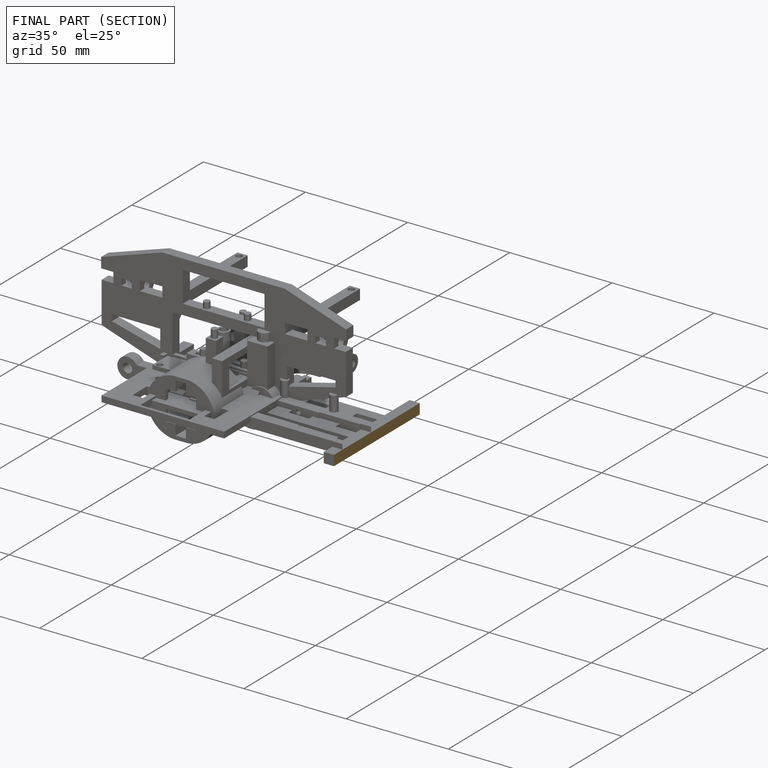
[diagram: finished part — half-section view (interior)]
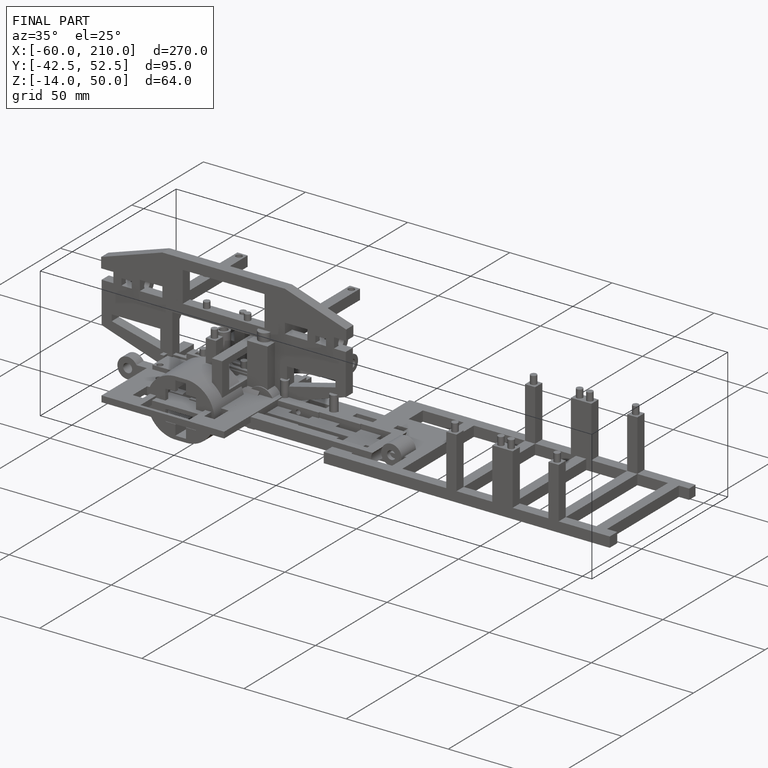
[diagram: finished part — iso view with bounding-box wireframe]
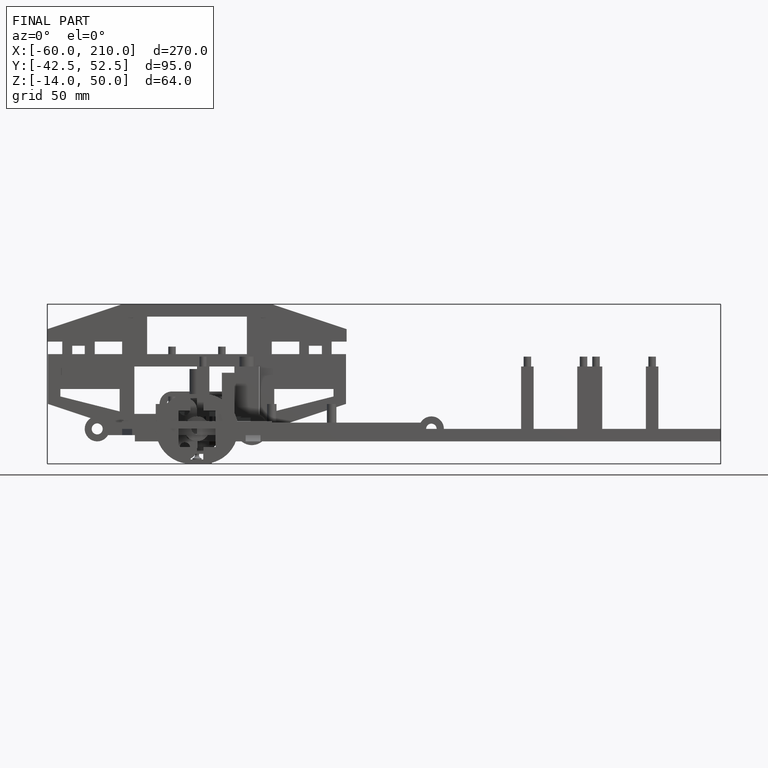
[diagram: finished part — front view with bounding-box wireframe]
